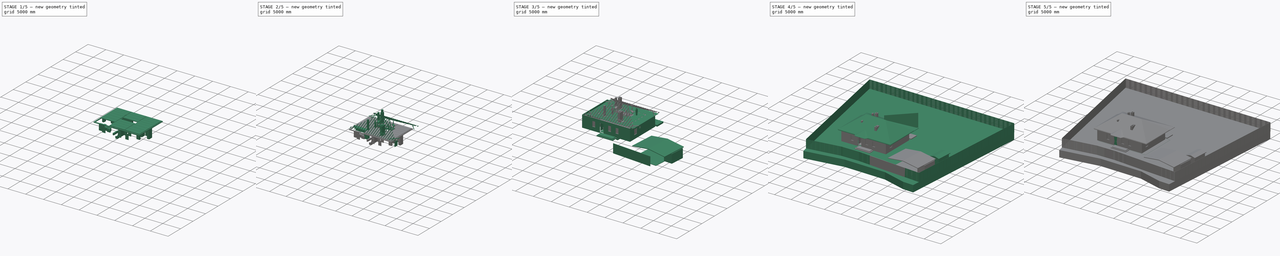
[diagram: build sequence overview — one tinted view per stage of 5, left to right]
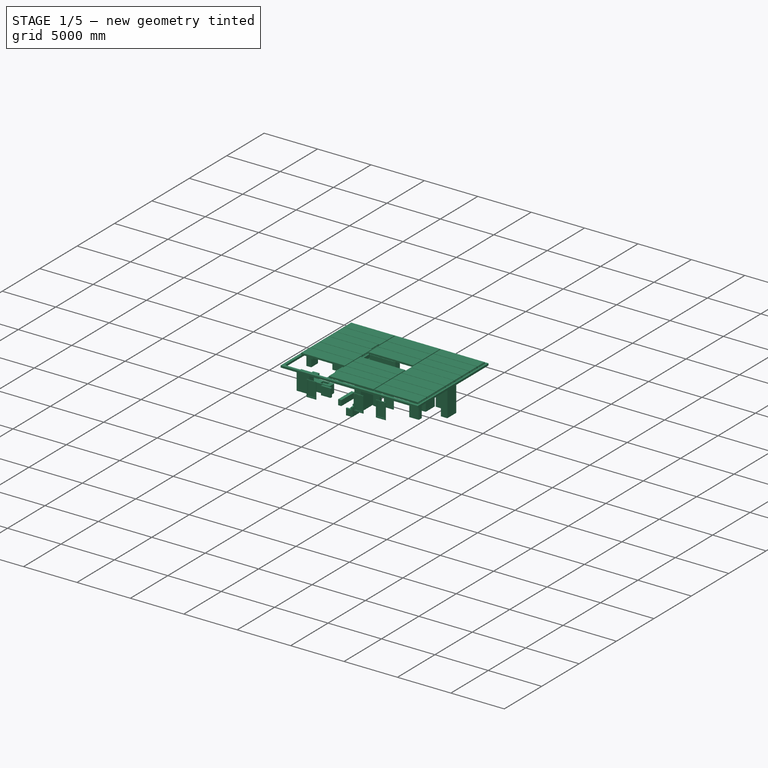
[diagram: stage 1 of 5 — iso view after this stage's code; geometry added in this stage tinted green]
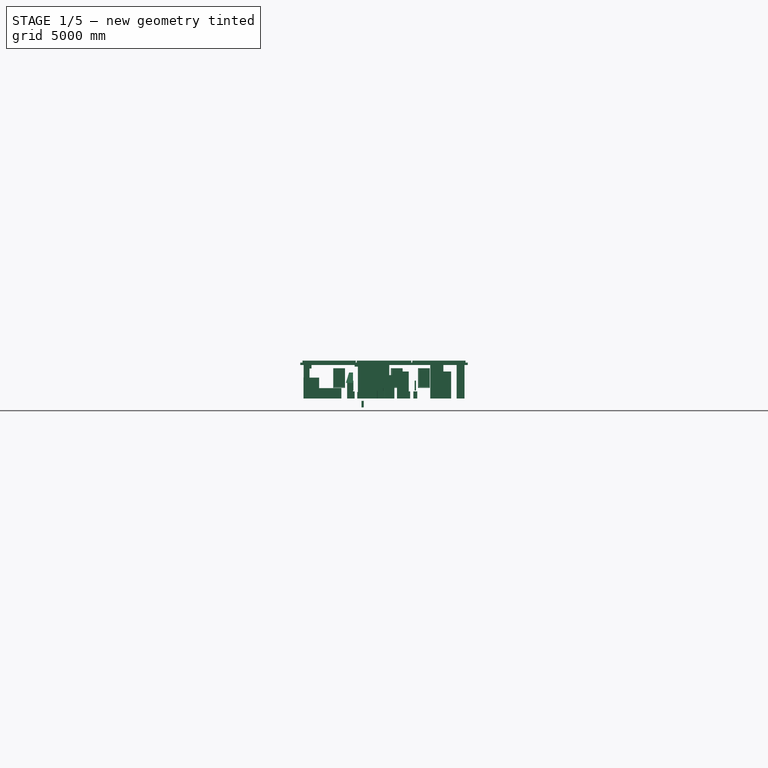
[diagram: stage 1 of 5 — front view after this stage's code; geometry added in this stage tinted green]
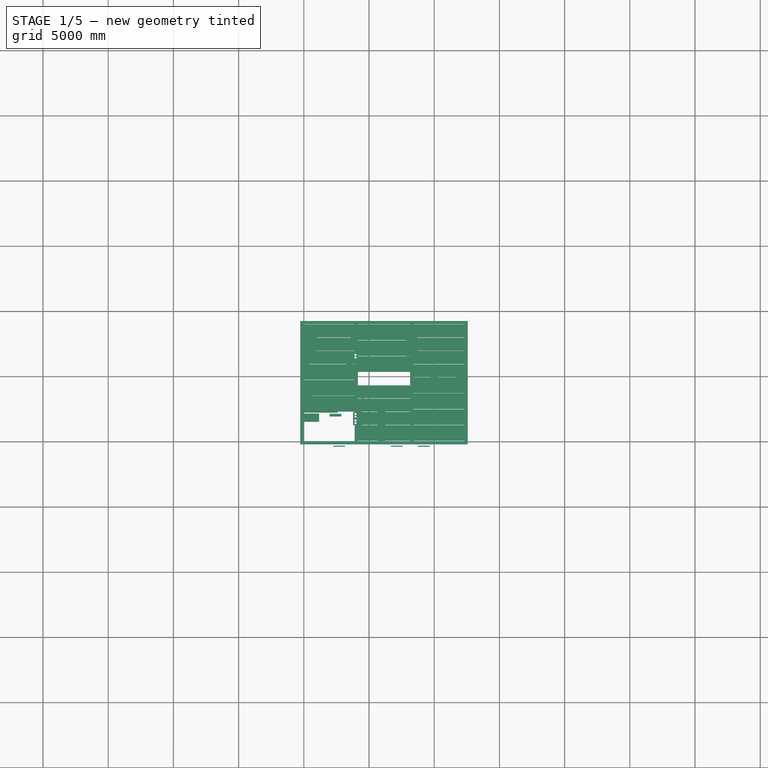
[diagram: stage 1 of 5 — top view after this stage's code; geometry added in this stage tinted green]
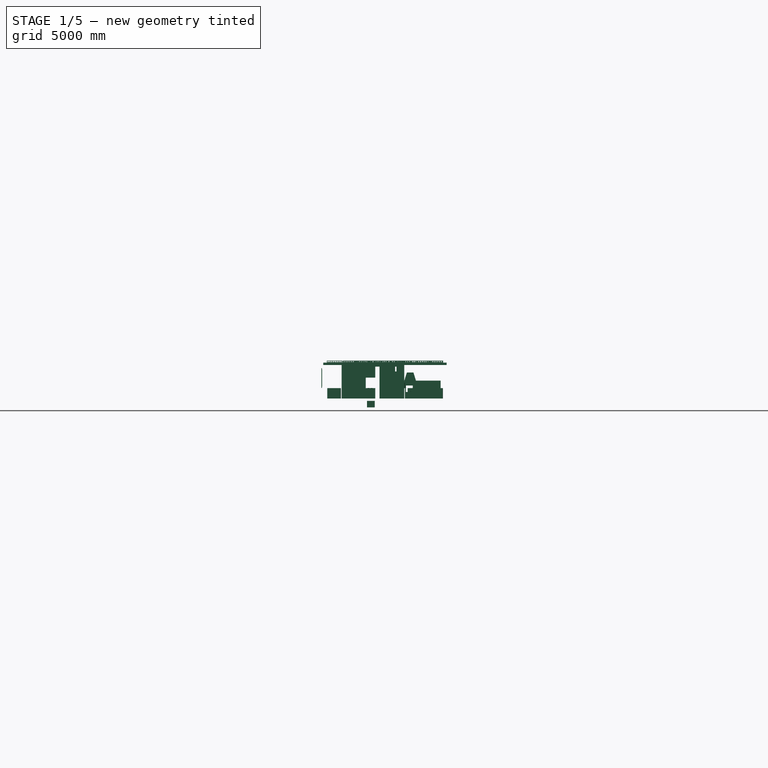
[diagram: stage 1 of 5 — right view after this stage's code; geometry added in this stage tinted green]
FCSTD DOCUMENT  (FreeCAD 0.18.4R)
Label: project_1fl_111m2_v2_121220
License: All rights reserved
LicenseURL: http://en.wikipedia.org/wiki/All_rights_reserved
objects: Part::Part2DObjectPython×702, Part::FeaturePython×269, Part::Feature×53, App::GeometryPython×42, Sketcher::SketchObject×39, Part::Box×32, Part::Extrusion×23, Part::MultiCommon×20, Part::Cut×13, App::FeaturePython×11, App::DocumentObjectGroup×8, Part::MultiFuse×7, Part::Loft×3, Part::Cylinder×2, Part::Mirroring×1, TechDraw::DrawSVGTemplate×1, Image::ImagePlane×1, TechDraw::DrawViewDraft×1, TechDraw::DrawPage×1
note: 1206 computed .brp shape members not serialized (recipe doc carries the construction recipe); baked Part::Feature solids carry a one-line shape summary decoded from their .brp

FEATURE [Part::FeaturePython] Wall012  label="балка продольная 001"  # Arch/BIM object (typed FeaturePython)
  Align = 2
  Base = -> Line1049
  BlockHeight = 0
  BlockLength = 0
  CountBroken = 0
  CountEntire = 0
  Face = 0
  Height = 180
  HorizontalArea = 2.365e+06
  IfcRole = 156
  Joint = 0
  Length = 9460
  MakeBlocks = false
  MoveWithHost = false
  Normal = (0,0,0)
  OffsetFirst = 0
  OffsetSecond = 0
  PerimeterLength = 19420
  Placement = pos=(0,0,2570) rot=(0,0,1;0rad)
  VerticalArea = 3495600
  Width = 250
FEATURE [Part::Part2DObjectPython] Rectangle2259  label="контур фундамента"  # Draft 2D object (typed FeaturePython)
  ChamferSize = 0
  Columns = 1
  FilletRadius = 0
  Height = 10910
  Length = 14420
  MakeFace = false
  Placement = pos=(-460,-455,0) rot=(0,0,1;0rad)
  Rows = 1
FEATURE [Sketcher::SketchObject] Sketch231  label="Профиль ПНО 120-8"
  Placement = pos=(0,0,0) rot=(1,0,0;1.5708rad)
  sketch-geometry (19):
    g0: LineSegment StartX=0 StartY=0 StartZ=0 EndX=1190 EndY=0 EndZ=0
    g1: LineSegment StartX=1190 StartY=0 StartZ=0 EndX=1190 EndY=160 EndZ=0
    g2: LineSegment StartX=1190 StartY=160 StartZ=0 EndX=0 EndY=160 EndZ=0
    g3: LineSegment StartX=0 StartY=160 StartZ=0 EndX=0 EndY=0 EndZ=0
    g4: Circle CenterX=100 CenterY=80 CenterZ=0 NormalX=0 NormalY=0 NormalZ=1 AngleXU=0 Radius=50
    g5: Circle CenterX=240 CenterY=80 CenterZ=0 NormalX=0 NormalY=0 NormalZ=1 AngleXU=0 Radius=50
    g6: LineSegment [constr] StartX=100 StartY=80 StartZ=0 EndX=240 EndY=80 EndZ=0
    g7: Circle CenterX=380 CenterY=80 CenterZ=0 NormalX=0 NormalY=0 NormalZ=1 AngleXU=0 Radius=50
    g8: LineSegment [constr] StartX=240 StartY=80 StartZ=0 EndX=380 EndY=80 EndZ=0
    g9: Circle CenterX=520 CenterY=80 CenterZ=0 NormalX=0 NormalY=0 NormalZ=1 AngleXU=0 Radius=50
    g10: LineSegment [constr] StartX=380 StartY=80 StartZ=0 EndX=520 EndY=80 EndZ=0
    g11: Circle CenterX=660 CenterY=80 CenterZ=0 NormalX=0 NormalY=0 NormalZ=1 AngleXU=0 Radius=50
    g12: LineSegment [constr] StartX=520 StartY=80 StartZ=0 EndX=660 EndY=80 EndZ=0
    g13: Circle CenterX=800 CenterY=80 CenterZ=0 NormalX=0 NormalY=0 NormalZ=1 AngleXU=0 Radius=50
    g14: LineSegment [constr] StartX=660 StartY=80 StartZ=0 EndX=800 EndY=80 EndZ=0
    g15: Circle CenterX=940 CenterY=80 CenterZ=0 NormalX=0 NormalY=0 NormalZ=1 AngleXU=0 Radius=50
    g16: LineSegment [constr] StartX=800 StartY=80 StartZ=0 EndX=940 EndY=80 EndZ=0
    g17: Circle CenterX=1080 CenterY=80 CenterZ=0 NormalX=0 NormalY=0 NormalZ=1 AngleXU=0 Radius=50
    g18: LineSegment [constr] StartX=940 StartY=80 StartZ=0 EndX=1080 EndY=80 EndZ=0
  constraints (49):
    c: Coincident(g0,g1)
    c: Coincident(g1,g2)
    c: Coincident(g2,g3)
    c: Coincident(g3,g0)
    c: Horizontal(g0)
    c: Horizontal(g2)
    c: Vertical(g1)
    c: Vertical(g3)
    c: Coincident(g0,g-1)
    c: DistanceY(g3,g3) = 160
    c: DistanceX(g2,g2) = 1190
    c: Diameter(g4) = 100
    c: DistanceY(g4,g2) = 80
    c: Diameter(g5) = 100
    c: Coincident(g4,g6)
    c: Coincident(g5,g6)
    c: Distance(g6) = 140
    c: Angle(g6) = 0
    c: Diameter(g7) = 100
    c: Coincident(g5,g8)
    c: Coincident(g7,g8)
    c: Equal(g6,g8)
    c: Parallel(g8,g6)
    c: Diameter(g9) = 100
    c: Coincident(g7,g10)
    c: Coincident(g9,g10)
    c: Equal(g6,g10)
    c: Parallel(g10,g6)
    c: Diameter(g11) = 100
    c: Coincident(g9,g12)
    c: Coincident(g11,g12)
    c: Equal(g6,g12)
    c: Parallel(g12,g6)
    c: Diameter(g13) = 100
    c: Coincident(g11,g14)
    c: Coincident(g13,g14)
    c: Equal(g6,g14)
    c: Parallel(g14,g6)
    c: Diameter(g15) = 100
    c: Coincident(g13,g16)
    c: Coincident(g15,g16)
    c: Equal(g6,g16)
    c: Parallel(g16,g6)
    c: Diameter(g17) = 100
    c: Coincident(g15,g18)
    c: Coincident(g17,g18)
    c: Equal(g6,g18)
    c: Parallel(g18,g6)
    c: DistanceX(g2,g4) = 100
FEATURE [Part::Extrusion] Extrude001  label="ПНО 41-12-8-001"
  Base = -> Sketch231
  Dir = (0,1,0)
  DirMode = 0
  FaceMakerClass = Part::FaceMakerBullseye
  LengthFwd = 4080
  LengthRev = 0
  Placement = pos=(3980,20,2750) rot=(0,0,1;1.5708rad)
  Solid = true
  Symmetric = false
FEATURE [Part::Part2DObjectPython] Wire450  # Draft 2D object (typed FeaturePython)
  ChamferSize = 0
  Closed = true
  End = (13500,5830,0)
  FilletRadius = 0
  Length = 13380
  MakeFace = true
  Placement = pos=(10540,6080,0) rot=(0,0,1;0rad)
  Points = (10) [(2960,-80,0),(2810,-80,0),(2810,20,0),(2960,20,0),(2960,3920,0),(990,3920,0),(990,4120,0),(3160,4120,0),(3160,-250,0),(2960,-250,0)]
  Start = (13500,6000,0)
  Subdivisions = 0
FEATURE [Part::Part2DObjectPython] Wire452  # Draft 2D object (typed FeaturePython)
  ChamferSize = 0
  Closed = true
  End = (8700,10000,0)
  FilletRadius = 0
  Length = 27250
  MakeFace = true
  Placement = pos=(7950,9940,0) rot=(0,0,1;0rad)
  Points = (20) [(-320,60,0),(-320,260,0),(2230,260,0),(2230,60,0),(950,60,0),(950,-3840,0),(1100,-3840,0),(1100,-3940,0),(950,-3940,0),(950,-4890,0),(750,-4890,0),+9 more]
  Start = (7630,10000,0)
  Subdivisions = 0
FEATURE [App::FeaturePython] Dimension002  # Draft dimension (typed FeaturePython)
  Diameter = false
  Dimline = (14200,-2000,0)
  Direction = (0,0,0)
  Distance = 14420
  End = (13960,-455,0)
  Normal = (0,0,1)
  Start = (-460,-455,0)
FEATURE [App::FeaturePython] Dimension003  # Draft dimension (typed FeaturePython)
  Diameter = false
  Dimline = (15500,-1000,0)
  Direction = (0,0,0)
  Distance = 10910
  End = (13960,10455,0)
  Normal = (0,0,1)
  Start = (13960,-455,0)
FEATURE [Part::Part2DObjectPython] Line1100  # Draft 2D object (typed FeaturePython)
  ChamferSize = 0
  Closed = false
  End = (8275,9210,0)
  FilletRadius = 0
  Length = 9460
  MakeFace = false
  Placement = pos=(20660,3850,0) rot=(0,0,1;0rad)
  Points = (2) [(-12385,-4100,0),(-12385,5360,0)]
  Start = (8275,-250,0)
  Subdivisions = 0
FEATURE [Part::Part2DObjectPython] Line1101  # Draft 2D object (typed FeaturePython)
  ChamferSize = 0
  Closed = false
  End = (4025,5910,0)
  FilletRadius = 0
  Length = 3680
  MakeFace = false
  Placement = pos=(4025,50,0) rot=(0,0,1;1.5708rad)
  Points = (2) [(2180,4.54747e-13,0),(5860,1.36424e-12,0)]
  Start = (4025,2230,0)
  Subdivisions = 0
FEATURE [Part::FeaturePython] Wall075  label="балка продольная 002"  # Arch/BIM object (typed FeaturePython)
  Align = 2
  Base = -> Line1101
  BlockHeight = 0
  BlockLength = 0
  CountBroken = 0
  CountEntire = 0
  Face = 0
  Height = 120
  HorizontalArea = 920000
  IfcRole = 156
  Joint = 0
  Length = 3680
  MakeBlocks = false
  MoveWithHost = false
  Normal = (0,0,-1)
  OffsetFirst = 0
  OffsetSecond = 0
  PerimeterLength = 7860
  Placement = pos=(0,0,2570) rot=(0,0,1;0rad)
  VerticalArea = 943200
  Width = 250
FEATURE [Part::FeaturePython] Wall125  label="балка продольная 003"  # Arch/BIM object (typed FeaturePython)
  Align = 2
  Base = -> Line1100
  BlockHeight = 0
  BlockLength = 0
  CountBroken = 0
  CountEntire = 0
  Face = 0
  Height = 180
  HorizontalArea = 2.365e+06
  IfcRole = 156
  Joint = 0
  Length = 9460
  MakeBlocks = false
  MoveWithHost = false
  Normal = (0,0,0)
  OffsetFirst = 0
  OffsetSecond = 0
  PerimeterLength = 19420
  Placement = pos=(0,0,2570) rot=(0,0,1;0rad)
  VerticalArea = 3495600
  Width = 250
FEATURE [Part::Part2DObjectPython] Rectangle2589  label="проём в перекрытии 005"  # Draft 2D object (typed FeaturePython)
  ChamferSize = 0
  Columns = 1
  FilletRadius = 0
  Height = 1000
  Length = 375
  MakeFace = false
  Placement = pos=(3775,1230,0) rot=(0,0,1;0rad)
  Rows = 1
FEATURE [Part::FeaturePython] Structure155  label="Вентстояк вычитаемы объём 001"  # Arch/BIM object (typed FeaturePython)
  Base = -> Rectangle2589
  FaceMaker = 0
  Height = 6750
  HorizontalArea = 375000
  IfcRole = 0
  Length = 0
  MoveWithHost = false
  Nodes = (2) [(3962.5,1730,0),(3962.5,1730,6750)]
  NodesOffset = 0
  Normal = (0,0,0)
  PerimeterLength = 2750
  Placement = pos=(0,0,-180) rot=(0,0,1;0rad)
  VerticalArea = 1.85625e+07
  Width = 100
FEATURE [Sketcher::SketchObject] Sketch262  label=" Вентстояк ГБ 375х500 001"
  Placement = pos=(-815.746,-5163.47,0) rot=(0,0,1;0rad)
  sketch-geometry (6):
    g0: LineSegment StartX=4590.75 StartY=6893.47 StartZ=0 EndX=4965.75 EndY=6893.47 EndZ=0
    g1: LineSegment StartX=4965.75 StartY=6893.47 StartZ=0 EndX=4965.75 EndY=7393.47 EndZ=0
    g2: LineSegment StartX=4965.75 StartY=7393.47 StartZ=0 EndX=4590.75 EndY=7393.47 EndZ=0
    g3: LineSegment StartX=4590.75 StartY=7393.47 StartZ=0 EndX=4590.75 EndY=6893.47 EndZ=0
    g4: Circle CenterX=4778.75 CenterY=7243.47 CenterZ=0 NormalX=0 NormalY=0 NormalZ=1 AngleXU=0 Radius=80
    g5: Circle CenterX=4778.75 CenterY=7043.47 CenterZ=0 NormalX=0 NormalY=0 NormalZ=1 AngleXU=0 Radius=80
  constraints (16):
    c: Coincident(g0,g1)
    c: Coincident(g1,g2)
    c: Coincident(g2,g3)
    c: Coincident(g3,g0)
    c: Horizontal(g0)
    c: Horizontal(g2)
    c: Vertical(g1)
    c: Vertical(g3)
    c: DistanceX(g2,g2) = 375
    c: DistanceY(g3,g3) = 500
    c: Equal(g4,g5)
    c: Diameter(g4) = 160
    c: DistanceX(g2,g4) = 188
    c: DistanceY(g4,g2) = 150
    c: DistanceY(g5,g4) = 200
    c: DistanceX(g4,g5) = 0
FEATURE [Sketcher::SketchObject] Sketch263  label=" Вентстояк ГБ 375х500 002"
  Placement = pos=(3934.25,-5393.47,0) rot=(0,0,1;0rad)
  sketch-geometry (6):
    g0: LineSegment StartX=4590.75 StartY=6893.47 StartZ=0 EndX=4965.75 EndY=6893.47 EndZ=0
    g1: LineSegment StartX=4965.75 StartY=6893.47 StartZ=0 EndX=4965.75 EndY=7393.47 EndZ=0
    g2: LineSegment StartX=4965.75 StartY=7393.47 StartZ=0 EndX=4590.75 EndY=7393.47 EndZ=0
    g3: LineSegment StartX=4590.75 StartY=7393.47 StartZ=0 EndX=4590.75 EndY=6893.47 EndZ=0
    g4: Circle CenterX=4778.75 CenterY=7243.47 CenterZ=0 NormalX=0 NormalY=0 NormalZ=1 AngleXU=0 Radius=80
    g5: Circle CenterX=4778.75 CenterY=7043.47 CenterZ=0 NormalX=0 NormalY=0 NormalZ=1 AngleXU=0 Radius=80
  constraints (16):
    c: Coincident(g0,g1)
    c: Coincident(g1,g2)
    c: Coincident(g2,g3)
    c: Coincident(g3,g0)
    c: Horizontal(g0)
    c: Horizontal(g2)
    c: Vertical(g1)
    c: Vertical(g3)
    c: DistanceX(g2,g2) = 375
    c: DistanceY(g3,g3) = 500
    c: Equal(g4,g5)
    c: Diameter(g4) = 160
    c: DistanceX(g2,g4) = 188
    c: DistanceY(g4,g2) = 150
    c: DistanceY(g5,g4) = 200
    c: DistanceX(g4,g5) = 0
FEATURE [Part::Extrusion] Extrude014  label="ПНО 40-10-6-002"
  Base = -> Sketch249
  Dir = (0,1,0)
  DirMode = 0
  FaceMakerClass = Part::FaceMakerBullseye
  LengthFwd = 3980
  LengthRev = 0
  Placement = pos=(3880,1240,2750) rot=(0,0,1;1.5708rad)
  Solid = true
  Symmetric = false
FEATURE [Part::Part2DObjectPython] Wire522  # Draft 2D object (typed FeaturePython)
  ChamferSize = 0
  Closed = false
  End = (7100,-3.1832e-12,0)
  FilletRadius = 0
  Length = 2243.91
  MakeFace = false
  Placement = pos=(7100,1800,0) rot=(0,0,1;0rad)
  Points = (5) [(0,0,0),(200,-4.54747e-13,0),(0,-900,0),(200,-900,0),(0,-1800,0)]
  Start = (7100,1800,0)
  Subdivisions = 0
FEATURE [Part::Part2DObjectPython] Rectangle2591  # Draft 2D object (typed FeaturePython)
  ChamferSize = 0
  Columns = 1
  FilletRadius = 0
  Height = 1800
  Length = 200
  MakeFace = false
  Placement = pos=(7100,-3.1832e-12,0) rot=(0,0,1;0rad)
  Rows = 1
FEATURE [Part::Part2DObjectPython] Line1210  label="Line1211"  # Draft 2D object (typed FeaturePython)
  ChamferSize = 0
  Closed = false
  End = (7000,-1.4779e-12,0)
  FilletRadius = 0
  Length = 670.82
  MakeFace = true
  Placement = pos=(6400,300,0) rot=(0,0,1;0rad)
  Points = (2) [(0,0,0),(600,-300,0)]
  Start = (6400,300,0)
  Subdivisions = 0
FEATURE [Part::Part2DObjectPython] Rectangle2590  # Draft 2D object (typed FeaturePython)
  ChamferSize = 0
  Columns = 1
  FilletRadius = 0
  Height = 300
  Length = 600
  MakeFace = false
  Placement = pos=(6400,-1.194e-12,0) rot=(0,0,1;0rad)
  Rows = 1
FEATURE [Sketcher::SketchObject] Sketch264  label=" Вентстояк ГБ 375х500 003"
  Placement = pos=(-165.746,441.129,0) rot=(0,0,1;0rad)
  sketch-geometry (6):
    g0: LineSegment StartX=4590.75 StartY=6158.87 StartZ=0 EndX=4965.75 EndY=6158.87 EndZ=0
    g1: LineSegment StartX=4965.75 StartY=6158.87 StartZ=0 EndX=4965.75 EndY=7158.87 EndZ=0
    g2: LineSegment StartX=4965.75 StartY=7158.87 StartZ=0 EndX=4590.75 EndY=7158.87 EndZ=0
    g3: LineSegment StartX=4590.75 StartY=7158.87 StartZ=0 EndX=4590.75 EndY=6158.87 EndZ=0
    g4: Circle CenterX=4778.75 CenterY=6858.87 CenterZ=0 NormalX=0 NormalY=0 NormalZ=1 AngleXU=0 Radius=80
    g5: Circle CenterX=4778.75 CenterY=6658.87 CenterZ=0 NormalX=0 NormalY=0 NormalZ=1 AngleXU=0 Radius=80
  constraints (16):
    c: Coincident(g0,g1)
    c: Coincident(g1,g2)
    c: Coincident(g2,g3)
    c: Coincident(g3,g0)
    c: Horizontal(g0)
    c: Horizontal(g2)
    c: Vertical(g1)
    c: Vertical(g3)
    c: DistanceX(g2,g2) = 375
    c: DistanceY(g3,g3) = 1000
    c: Equal(g4,g5)
    c: Diameter(g4) = 160
    c: DistanceX(g2,g4) = 188
    c: DistanceY(g4,g2) = 300
    c: DistanceY(g5,g4) = 200
    c: DistanceX(g4,g5) = 0
FEATURE [Part::Part2DObjectPython] Rectangle2597  label="проём в перекрытии 006"  # Draft 2D object (typed FeaturePython)
  ChamferSize = 0
  Columns = 1
  FilletRadius = 0
  Height = 1000
  Length = 375
  MakeFace = false
  Placement = pos=(3775,5910,0) rot=(0,0,1;0rad)
  Rows = 1
FEATURE [Part::FeaturePython] Structure158  label="Вентстояк вычитаемы объём 002"  # Arch/BIM object (typed FeaturePython)
  Base = -> Rectangle2597
  FaceMaker = 0
  Height = 6000
  HorizontalArea = 375000
  IfcRole = 0
  Length = 0
  MoveWithHost = false
  Nodes = (2) [(3962.5,6410,0),(3962.5,6410,6000)]
  NodesOffset = 0
  Normal = (0,0,0)
  PerimeterLength = 2750
  Placement = pos=(0,0,-180) rot=(0,0,1;0rad)
  VerticalArea = 16500000
  Width = 100
FEATURE [Part::FeaturePython] Wall011  label="армпояс детали"  # Arch/BIM object (typed FeaturePython)
  Additions = -> [Wall012,Wall075,Wall125]
  Align = 0
  Base = -> Rectangle2256
  BlockHeight = 0
  BlockLength = 0
  CountBroken = 0
  CountEntire = 0
  Face = 0
  Height = 180
  HorizontalArea = 1.156e+07
  IfcRole = 156
  Joint = 0
  Length = 42600
  MakeBlocks = false
  MoveWithHost = false
  Normal = (0,0,0)
  OffsetFirst = 0
  OffsetSecond = 0
  PerimeterLength = 48600
  Placement = pos=(0,0,2570) rot=(0,0,1;0rad)
  Subtractions = -> [Structure158,Structure155]
  VerticalArea = 2.2156e+07
  Width = 250
FEATURE [Part::Part2DObjectPython] Rectangle556  label="вытяжка осн мал"  # Draft 2D object (typed FeaturePython)
  ChamferSize = 0
  Columns = 1
  FilletRadius = 0
  Height = 400
  Length = 400
  MakeFace = false
  Placement = pos=(400,3500,1600) rot=(0,0,1;3.14159rad)
  Rows = 1
FEATURE [Part::Box] Box3144  label="тумба под ТВ"
  AttacherType = Attacher::AttachEngine3D
  Height = 550
  Length = 1800
  Placement = pos=(3600,8900,0) rot=(0,0,-1;1.5708rad)
  Width = 300
FEATURE [Part::Box] Box3145  label="ТВ"
  AttacherType = Attacher::AttachEngine3D
  Height = 750
  Length = 1500
  Placement = pos=(3700,8750,620) rot=(0,0,-1;1.5708rad)
  Width = 100
FEATURE [Part::Box] Box3143  label="шкаф книжн. 45"
  AttacherType = Attacher::AttachEngine3D
  Height = 2700
  Length = 900
  Placement = pos=(9800,2560,0) rot=(0,0,1;0rad)
  Width = 400
FEATURE [Part::Feature] Fillet001  label="стол обеденный"
  Placement = pos=(825,4144.44,0) rot=(0,0,1;0rad)
  shape: bbox 1500 x 750 x 750 mm, 30 faces (baked)
FEATURE [Part::Feature] Fusion013  label="стул005"
  Placement = pos=(825,4144.44,0) rot=(0,0,1;0rad)
  shape: bbox 480 x 520 x 910 mm, 35 faces (baked)
FEATURE [Part::Feature] Fusion014  label="стул006"
  Placement = pos=(825,4144.44,0) rot=(0,0,1;0rad)
  shape: bbox 480 x 520 x 910 mm, 35 faces (baked)
FEATURE [Part::Feature] Fusion015  label="стул007"
  Placement = pos=(825,4144.44,0) rot=(0,0,1;0rad)
  shape: bbox 480 x 520 x 910 mm, 35 faces (baked)
FEATURE [Part::Feature] Fusion016  label="стул008"
  Placement = pos=(825,4144.44,0) rot=(0,0,1;0rad)
  shape: bbox 480 x 520 x 910 mm, 35 faces (baked)
FEATURE [Part::Feature] Box  label="тумбочка 400х450 004"
  Placement = pos=(4200,8260,0) rot=(0,0,1;0rad)
  shape: bbox 500 x 400 x 650 mm, 6 faces (baked)
FEATURE [Part::Feature] Box3151  label="тумбочка 400х450 005"
  Placement = pos=(4200,6060,0) rot=(0,0,1;0rad)
  shape: bbox 500 x 400 x 650 mm, 6 faces (baked)
FEATURE [Part::Feature] Box3152  label="тумбочка 400х450 006"
  Placement = pos=(12250,6360,0) rot=(0,0,1;3.14159rad)
  shape: bbox 500 x 400 x 650 mm, 6 faces (baked)
FEATURE [Part::Feature] Box3153  label="тумбочка 400х450 007"
  Placement = pos=(12250,8560,0) rot=(0,0,1;3.14159rad)
  shape: bbox 500 x 400 x 650 mm, 6 faces (baked)
FEATURE [Part::Box] Box3154  label="шкаф 60 одежда 001"
  AttacherType = Attacher::AttachEngine3D
  Height = 2700
  Length = 1800
  Placement = pos=(6250,1160,0) rot=(0,0,1;1.5708rad)
  Width = 600
FEATURE [Part::Box] Box3155  label="шкаф 60 одежда 002"
  AttacherType = Attacher::AttachEngine3D
  Height = 2700
  Length = 1200
  Placement = pos=(10300,4060,0) rot=(0,0,1;1.5708rad)
  Width = 600
FEATURE [Part::Box] Box3156  label="шкаф 60 одежда 003"
  AttacherType = Attacher::AttachEngine3D
  Height = 2700
  Length = 1200
  Placement = pos=(12320,4060,0) rot=(0,0,1;1.5708rad)
  Width = 600
FEATURE [Part::Box] Box3157  label="шкаф 60 одежда 004"
  AttacherType = Attacher::AttachEngine3D
  Height = 2700
  Length = 2400
  Placement = pos=(4150,5360,0) rot=(0,0,1;0rad)
  Width = 600
FEATURE [Part::Box] Box3159  label="ТВ001"
  AttacherType = Attacher::AttachEngine3D
  Height = 750
  Length = 1300
  Placement = pos=(7950,8010,620) rot=(0,0,-1;1.5708rad)
  Width = 100
FEATURE [Part::Box] Box3160  label="тумба под ТВ001"
  AttacherType = Attacher::AttachEngine3D
  Height = 550
  Length = 1600
  Placement = pos=(7850,8160,0) rot=(0,0,-1;1.5708rad)
  Width = 300
FEATURE [Part::Box] Box3161  label="тумба под ТВ002"
  AttacherType = Attacher::AttachEngine3D
  Height = 550
  Length = 1600
  Placement = pos=(8400,8060,0) rot=(0,0,-1;1.5708rad)
  Width = 300
FEATURE [Part::Box] Box3162  label="ТВ002"
  AttacherType = Attacher::AttachEngine3D
  Height = 750
  Length = 1300
  Placement = pos=(8500,7910,620) rot=(0,0,-1;1.5708rad)
  Width = 100
FEATURE [Part::Box] Box3163  label="обувница"
  AttacherType = Attacher::AttachEngine3D
  Height = 500
  Length = 1800
  Placement = pos=(4400,1200,0) rot=(0,0,1;1.5708rad)
  Width = 300
FEATURE [Part::Box] Box3164  label="обувница001"
  AttacherType = Attacher::AttachEngine3D
  Height = 400
  Length = 1800
  Placement = pos=(4450,1160,2000) rot=(0,0,1;1.5708rad)
  Width = 300
FEATURE [Part::Box] Box3176  label="шкаф 60 кухонный 002"
  AttacherType = Attacher::AttachEngine3D
  Height = 800
  Length = 2600
  Placement = pos=(-10,2230,0) rot=(0,0,1;0rad)
  Width = 600
FEATURE [Part::Extrusion] Extrude057  label="мойка_вырез"
  Base = -> Rectangle2392
  Dir = (0,0,1)
  DirMode = 0
  FaceMakerClass = Part::FaceMakerBullseye
  LengthFwd = 150
  LengthRev = 0
  Placement = pos=(100,0,650) rot=(0,0,1;0rad)
  Solid = true
  Symmetric = false
FEATURE [Part::Cut] Cut011
  Base = -> Box3176
  Tool = -> Extrude057
FEATURE [Part::Extrusion] Extrude058
  Base = -> Array019
  Dir = (0,0,1)
  DirMode = 2
  FaceMakerClass = Part::FaceMakerBullseye
  LengthFwd = 50
  LengthRev = 0
  Placement = pos=(0,0,760) rot=(0,0,1;0rad)
  Solid = true
  Symmetric = false
FEATURE [Part::Feature] Fillet003  label="Столик журнальный"
  Placement = pos=(4871.97,648.932,0) rot=(0,0,1;0rad)
  shape: bbox 1000 x 1000 x 530 mm, 34 faces, 5 solids (baked)
FEATURE [Part::Box] Box3183  label="морозильник 60 см"
  AttacherType = Attacher::AttachEngine3D
  Height = 1600
  Length = 600
  Placement = pos=(-20,1530,0) rot=(0,0,1;0rad)
  Width = 600
FEATURE [Part::Box] Box3184  label="СМ"
  AttacherType = Attacher::AttachEngine3D
  Height = 800
  Length = 600
  Placement = pos=(580,1530,0) rot=(0,0,1;0rad)
  Width = 600
FEATURE [Part::Box] Box3185  label="СШМ"
  AttacherType = Attacher::AttachEngine3D
  Height = 800
  Length = 600
  Placement = pos=(580,1530,800) rot=(0,0,1;0rad)
  Width = 600
FEATURE [Part::Box] Box3186  label="полки 30см"
  AttacherType = Attacher::AttachEngine3D
  Height = 1800
  Length = 300
  Placement = pos=(6950,2660,0) rot=(0,0,1;1.5708rad)
  Width = 600
FEATURE [Part::Box] Box3187  label="Гребёнка пола и насосы"
  AttacherType = Attacher::AttachEngine3D
  Height = 800
  Length = 900
  Placement = pos=(1980,1930,0) rot=(0,0,1;0rad)
  Width = 200
FEATURE [Part::Feature] Fusion037  label="стул011"
  Placement = pos=(8091.57,304.09,0) rot=(0,0,-1;0.785398rad)
  shape: bbox 707.1 x 707.1 x 910 mm, 35 faces (baked)
FEATURE [Part::Part2DObjectPython] Rectangle2657  label="вытяжка осн мал001"  # Draft 2D object (typed FeaturePython)
  ChamferSize = 0
  Columns = 1
  FilletRadius = 0
  Height = 300
  Length = 500
  MakeFace = false
  Placement = pos=(3475,6660,2000) rot=(0,0,-1;1.5708rad)
  Rows = 1
FEATURE [Part::Part2DObjectPython] Rectangle2658  label="вытяжка осн бол001"  # Draft 2D object (typed FeaturePython)
  ChamferSize = 0
  Columns = 1
  FilletRadius = 0
  Height = 550
  Length = 1000
  MakeFace = false
  Placement = pos=(3225,6910,1200) rot=(0,0,-1;1.5708rad)
  Rows = 1
FEATURE [Part::Loft] Loft002  label="камин верх"
  Closed = false
  MaxDegree = 5
  Ruled = false
  Sections = -> [Rectangle2658,Rectangle2657]
  Solid = true
FEATURE [Part::Box] Box3188  label="камин топка"
  AttacherType = Attacher::AttachEngine3D
  Height = 500
  Length = 500
  Placement = pos=(3325,6085,500) rot=(0,0,1;0rad)
  Width = 650
FEATURE [Part::Box] Box3189  label="камин облицовка"
  AttacherType = Attacher::AttachEngine3D
  Height = 1200
  Length = 450
  Placement = pos=(3325,6010,0) rot=(0,0,1;0rad)
  Width = 800
FEATURE [Part::Cut] Cut012  label="камин низ"
  Base = -> Box3189
  Tool = -> Box3188
FEATURE [Part::MultiFuse] Fusion038  label="камин"
  Shapes = -> [Loft002,Cut012]
FEATURE [Part::Cylinder] Cylinder  label="бутыль воды"
  Angle = 360
  AttacherType = Attacher::AttachEngine3D
  Height = 500
  Placement = pos=(198.159,5914.61,800) rot=(0,0,1;0rad)
  Radius = 175
FEATURE [Part::Part2DObjectPython] Rectangle2659  # Draft 2D object (typed FeaturePython)
  ChamferSize = 0
  Columns = 1
  FilletRadius = 0
  Height = 400
  Length = 400
  MakeFace = false
  Placement = pos=(8300,8050,0) rot=(0,0,1;0rad)
  Rows = 1
FEATURE [Part::Part2DObjectPython] Rectangle2660  # Draft 2D object (typed FeaturePython)
  ChamferSize = 0
  Columns = 1
  FilletRadius = 0
  Height = 900
  Length = 400
  MakeFace = false
  Placement = pos=(8300,8450,0) rot=(0,0,1;0rad)
  Rows = 1
FEATURE [App::GeometryPython] BuildingPart046  label="Пылесборники"  # Arch/BIM object (typed FeaturePython)
  Area = 0
  Group = -> [Extrude059,Extrude060]
  Height = 0
  IfcRole = 0
  LevelOffset = 0
FEATURE [Part::Box] Box3192  label="кофеварка"
  AttacherType = Attacher::AttachEngine3D
  Height = 250
  Length = 200
  Placement = pos=(72.208,2321.25,800) rot=(0,0,1;0rad)
  Width = 250
FEATURE [Part::Cylinder] Cylinder001  label="чайник"
  Angle = 360
  AttacherType = Attacher::AttachEngine3D
  Height = 250
  Placement = pos=(224.714,2704.22,800) rot=(0,0,1;0rad)
  Radius = 75
FEATURE [Part::Part2DObjectPython] Rectangle2663  label="уширение фундамента 002"  # Draft 2D object (typed FeaturePython)
  ChamferSize = 0
  Columns = 1
  FilletRadius = 0
  Height = 600
  Length = 175
  MakeFace = false
  Placement = pos=(4425,3100,0) rot=(0,0,1;0rad)
  Rows = 1
FEATURE [Part::FeaturePython] Structure175  label="уширение фундамента002"  # Arch/BIM object (typed FeaturePython)
  Base = -> Rectangle2663
  FaceMaker = 0
  Height = 500
  HorizontalArea = 105000
  IfcRole = 0
  Length = 0
  MoveWithHost = false
  Nodes = (2) [(4512.5,3400,0),(4512.5,3400,-500)]
  NodesOffset = 0
  Normal = (0,0,-1)
  PerimeterLength = 1550
  Placement = pos=(0,0,-180) rot=(0,0,1;0rad)
  VerticalArea = 775000
  Width = 100
FEATURE [Part::Extrusion] Extrude017  label=" Вентстояк армпояс 008"
  Base = -> Sketch276
  Dir = (0,0,1)
  DirMode = 2
  FaceMakerClass = Part::FaceMakerBullseye
  LengthFwd = 180
  LengthRev = 0
  Placement = pos=(0,0,2750) rot=(0,0,1;0rad)
  Reversed = true
  Solid = true
  Symmetric = false
FEATURE [Part::Extrusion] Extrude016  label=" Вентстояк армпояс 001"
  Base = -> Sketch277
  Dir = (0,0,1)
  DirMode = 2
  FaceMakerClass = Part::FaceMakerBullseye
  LengthFwd = 180
  LengthRev = 0
  Placement = pos=(0,0,2750) rot=(0,0,1;0rad)
  Reversed = true
  Solid = true
  Symmetric = false
FEATURE [App::GeometryPython] BuildingPart  label="Вентстояки"  # Arch/BIM object (typed FeaturePython)
  Area = 0
  Group = -> [Extrude002,Extrude009,Extrude015]
  Height = 0
  IfcRole = 0
  LevelOffset = 0
FEATURE [Part::Extrusion] Extrude018  label=" Вентстояк армпояс 007"
  Base = -> Sketch278
  Dir = (0,0,1)
  DirMode = 2
  FaceMakerClass = Part::FaceMakerBullseye
  LengthFwd = 180
  LengthRev = 0
  Placement = pos=(0,0,2750) rot=(0,0,1;0rad)
  Reversed = true
  Solid = true
  Symmetric = false
FEATURE [Part::MultiFuse] Fusion043  label="армпояс_полный"
  Shapes = -> [Extrude017,Wall011,Extrude016,Extrude018]
FEATURE [App::GeometryPython] BuildingPart020  label="Утепление пола по грунту"  # Arch/BIM object (typed FeaturePython)
  Area = 0
  Group = -> [Wall049,Structure066,Structure067,Structure068,Structure069,Structure070,Structure071,Structure072,Wall127,Wall126]
  Height = 0
  IfcRole = 0
  LevelOffset = 0
FEATURE [App::GeometryPython] BuildingPart021  label="Пол по грунту стяжка"  # Arch/BIM object (typed FeaturePython)
  Area = 0
  Group = -> [Structure034,Structure035,Structure064,Structure063,Structure062,Structure154]
  Height = 0
  IfcRole = 0
  LevelOffset = 0
FEATURE [App::GeometryPython] BuildingPart014  label="Полы по грунту"  # Arch/BIM object (typed FeaturePython)
  Area = 0
  Group = -> [BuildingPart020,BuildingPart021]
  Height = 0
  IfcRole = 0
  LevelOffset = 0
FEATURE [Part::Part2DObjectPython] Line1256  label="Line1257"  # Draft 2D object (typed FeaturePython)
  ChamferSize = 0
  Closed = false
  End = (4150,1060,0)
  FilletRadius = 0
  Length = 900
  MakeFace = false
  Placement = pos=(5200,1060,0) rot=(0,0,-1;1.5708rad)
  Points = (2) [(0,-150,0),(0,-1050,0)]
  Start = (5050,1060,0)
  Subdivisions = 0
FEATURE [Part::Part2DObjectPython] Arc095  label="Arc098"  # Draft 2D object (typed FeaturePython)
  FirstAngle = 0
  LastAngle = 90
  MakeFace = false
  Placement = pos=(4150,1060,0) rot=(0,0,-1;1.5708rad)
  Radius = 900
FEATURE [Part::Feature] ShapeString147  label="надпись 150"
  Placement = pos=(711.881,1744.32,0) rot=(0,0,1;0rad)
  shape: bbox 283.8 x 188.9 x 2e-07 mm, 2 faces, 0 solids (baked)
FEATURE [Part::Part2DObjectPython] Rectangle2808  # Draft 2D object (typed FeaturePython)
  ChamferSize = 0
  Columns = 1
  FilletRadius = 0
  Height = 600
  Length = 600
  MakeFace = false
  Placement = pos=(580,1530,0) rot=(0,0,1;0rad)
  Rows = 1
FEATURE [Part::Feature] ShapeString149  label="надпись 152"
  Placement = pos=(111.881,1744.32,0) rot=(0,0,1;0rad)
  shape: bbox 283.8 x 188.9 x 2e-07 mm, 2 faces, 0 solids (baked)
FEATURE [Part::Part2DObjectPython] Rectangle2810  # Draft 2D object (typed FeaturePython)
  ChamferSize = 0
  Columns = 1
  FilletRadius = 0
  Height = 600
  Length = 600
  MakeFace = false
  Placement = pos=(-20,1530,0) rot=(0,0,1;0rad)
  Rows = 1
FEATURE [Part::Feature] ShapeString150  label="надпись 153"
  Placement = pos=(140.444,231.822,0) rot=(0,0,1;0rad)
  shape: bbox 295.7 x 188.9 x 2e-07 mm, 2 faces, 0 solids (baked)
FEATURE [Part::Part2DObjectPython] Rectangle2811  # Draft 2D object (typed FeaturePython)
  ChamferSize = 0
  Columns = 1
  FilletRadius = 0
  Height = 600
  Length = 600
  MakeFace = false
  Placement = pos=(-20,3.638e-12,0) rot=(0,0,1;0rad)
  Rows = 1
FEATURE [Part::Part2DObjectPython] Circle086  label="Circle088"  # Draft 2D object (typed FeaturePython)
  FirstAngle = 0
  LastAngle = 0
  MakeFace = false
  Placement = pos=(405,3305,0) rot=(0,0,1;0rad)
  Radius = 75
FEATURE [Part::FeaturePython] Array032  # Draft array (typed FeaturePython)
  Angle = 360
  ArrayType = 0
  Axis = (0,0,1)
  Base = -> Circle086
  Center = (0,0,0)
  Fuse = false
  IntervalAxis = (0,0,0)
  IntervalX = (250,0,0)
  IntervalY = (0,250,0)
  IntervalZ = (0,0,1)
  NumberPolar = 1
  NumberX = 2
  NumberY = 2
  NumberZ = 1
  Placement = pos=(-250,0,0) rot=(0,0,1;0rad)
FEATURE [Part::Feature] Ellipse055  label="Ellipse058"
  Placement = pos=(11100,2860,0) rot=(0,0,1;3.14159rad)
  shape: bbox 400 x 200 x 2e-07 mm, 0 faces, 0 solids (baked)
FEATURE [Part::Part2DObjectPython] Rectangle2815  label="Rectangle2813"  # Draft 2D object (typed FeaturePython)
  ChamferSize = 0
  Columns = 1
  FilletRadius = 0
  Height = 600
  Length = 400
  MakeFace = false
  Placement = pos=(11400,2660,0) rot=(0,0,1;1.5708rad)
  Rows = 1
FEATURE [Part::Part2DObjectPython] ShapeString151  label="надпись 154"  # Draft 2D object (typed FeaturePython)
  FontFile = <path>
  Placement = pos=(5205.45,3906.99,0) rot=(0,0,1;0rad)
  Size = 200
  String = общая: 110.6 м2
  Tracking = 0
FEATURE [Part::Part2DObjectPython] ShapeString152  label="надпись 155"  # Draft 2D object (typed FeaturePython)
  FontFile = <path>
  Placement = pos=(1610.76,900,0) rot=(0,0,1;0rad)
  Size = 200
  String = 8.3
  Tracking = 0
FEATURE [Part::Part2DObjectPython] ShapeString153  label="надпись 156"  # Draft 2D object (typed FeaturePython)
  FontFile = <path>
  Placement = pos=(1710.57,5862.31,0) rot=(0,0,1;0rad)
  Size = 200
  String = 26.6
  Tracking = 0
FEATURE [Part::Part2DObjectPython] ShapeString154  label="надпись 157"  # Draft 2D object (typed FeaturePython)
  FontFile = <path>
  Placement = pos=(6779.18,7275.43,0) rot=(0,0,1;0rad)
  Size = 200
  String = 14.7
  Tracking = 0
FEATURE [Part::Part2DObjectPython] ShapeString155  label="надпись 158"  # Draft 2D object (typed FeaturePython)
  FontFile = <path>
  Placement = pos=(10240.4,5912.37,0) rot=(0,0,1;0rad)
  Size = 200
  String = 17.5
  Tracking = 0
FEATURE [Part::Part2DObjectPython] ShapeString156  label="надпись 159"  # Draft 2D object (typed FeaturePython)
  FontFile = <path>
  Placement = pos=(6810.68,1375,0) rot=(0,0,1;0rad)
  Size = 200
  String = 5.3
  Tracking = 0
FEATURE [Part::Part2DObjectPython] ShapeString157  label="надпись 160"  # Draft 2D object (typed FeaturePython)
  FontFile = <path>
  Placement = pos=(9649.54,1717.82,0) rot=(0,0,1;0rad)
  Size = 200
  String = 11
  Tracking = 0
FEATURE [Part::Part2DObjectPython] ShapeString158  label="надпись 161"  # Draft 2D object (typed FeaturePython)
  FontFile = <path>
  Placement = pos=(10593.5,3419.87,0) rot=(0,0,1;0rad)
  Size = 200
  String = 2.9
  Tracking = 0
FEATURE [Part::Part2DObjectPython] ShapeString159  label="надпись 162"  # Draft 2D object (typed FeaturePython)
  FontFile = <path>
  Placement = pos=(8753.3,4107.81,0) rot=(0,0,1;0rad)
  Size = 200
  String = 2.6
  Tracking = 0
FEATURE [Part::Part2DObjectPython] ShapeString160  label="надпись 163"  # Draft 2D object (typed FeaturePython)
  FontFile = <path>
  Placement = pos=(4671.99,1292.01,0) rot=(0,0,1;0rad)
  Size = 200
  String = 6.2
  Tracking = 0
FEATURE [Part::Part2DObjectPython] ShapeString161  label="надпись 164"  # Draft 2D object (typed FeaturePython)
  FontFile = <path>
  Placement = pos=(6279.59,3459.91,0) rot=(0,0,1;0rad)
  Size = 200
  String = 8.8
  Tracking = 0
FEATURE [Part::Part2DObjectPython] Wire623  # Draft 2D object (typed FeaturePython)
  ChamferSize = 0
  Closed = true
  End = (9700,3060,0)
  FilletRadius = 0
  Length = 7840
  MakeFace = false
  Placement = pos=(9700,3960,0) rot=(0,0,1;0rad)
  Points = (6) [(0,0,0),(2620,2.27374e-12,0),(2620,-1300,0),(1100,-1300,0),(1100,-900,0),(-1.81899e-12,-900,0)]
  Start = (9700,3960,0)
  Subdivisions = 0
FEATURE [Part::Part2DObjectPython] Wire624  # Draft 2D object (typed FeaturePython)
  ChamferSize = 0
  Closed = true
  End = (8400,-6.8212e-12,0)
  FilletRadius = 0
  Length = 13760
  MakeFace = false
  Placement = pos=(8400,2960,0) rot=(0,0,1;0rad)
  Points = (6) [(0,0,0),(2300,-9.09495e-13,0),(2300,-400,0),(3920,-400,0),(3920,-2960,0),(0,-2960,0)]
  Start = (8400,2960,0)
  Subdivisions = 0
FEATURE [Part::Part2DObjectPython] Rectangle2816  label="Rectangle2814"  # Draft 2D object (typed FeaturePython)
  ChamferSize = 0
  Columns = 1
  FilletRadius = 0
  Height = 350
  Length = 150
  MakeFace = false
  Placement = pos=(9750,3685,0) rot=(0,0,1;3.14159rad)
  Rows = 1
FEATURE [Part::Part2DObjectPython] Rectangle2817  label="Rectangle2815"  # Draft 2D object (typed FeaturePython)
  ChamferSize = 0
  Columns = 1
  FilletRadius = 0
  Height = 800
  Length = 50
  MakeFace = false
  Placement = pos=(9750,3910,0) rot=(0,0,1;3.14159rad)
  Rows = 1
FEATURE [Part::Part2DObjectPython] Rectangle2818  label="Rectangle2816"  # Draft 2D object (typed FeaturePython)
  ChamferSize = 0
  Columns = 1
  FilletRadius = 0
  Height = 400
  Length = 500
  MakeFace = false
  Placement = pos=(9750,3310,0) rot=(0,0,1;0rad)
  Rows = 1
FEATURE [Part::Part2DObjectPython] Circle087  label="Circle089"  # Draft 2D object (typed FeaturePython)
  FirstAngle = 0
  LastAngle = 0
  MakeFace = false
  Placement = pos=(9950,3510,0) rot=(0,0,1;0rad)
  Radius = 100
FEATURE [Part::Part2DObjectPython] Wire625  # Draft 2D object (typed FeaturePython)
  ChamferSize = 0
  Closed = false
  End = (6400,2660,0)
  FilletRadius = 0
  Length = 2370.82
  MakeFace = true
  Placement = pos=(6350,2960,0) rot=(0,0,1;0rad)
  Points = (6) [(550,0,0),(0,0,0),(0,-300,0),(600,0,0),(600,-300,0),(50,-300,0)]
  Start = (6900,2960,0)
  Subdivisions = 0
FEATURE [Part::Part2DObjectPython] Wire626  # Draft 2D object (typed FeaturePython)
  ChamferSize = 0
  Closed = false
  End = (9850,2560,0)
  FilletRadius = 0
  Length = 3484.89
  MakeFace = true
  Placement = pos=(9800,2860,0) rot=(0,0,1;0rad)
  Points = (6) [(850,100,0),(0,100,0),(0,-300,0),(900,100,0),(900,-300,0),(50,-300,0)]
  Start = (10650,2960,0)
  Subdivisions = 0
FEATURE [Part::Part2DObjectPython] Rectangle2819  label="Rectangle2817"  # Draft 2D object (typed FeaturePython)
  ChamferSize = 0
  Columns = 1
  FilletRadius = 0
  Height = -300
  Length = 1600
  MakeFace = false
  Placement = pos=(8150,8160,0) rot=(0,0,-1;1.5708rad)
  Rows = 1
FEATURE [Part::Part2DObjectPython] Rectangle2820  label="Rectangle2818"  # Draft 2D object (typed FeaturePython)
  ChamferSize = 0
  Columns = 1
  FilletRadius = 0
  Height = 1200
  Length = 100
  MakeFace = false
  Placement = pos=(8050,7960,0) rot=(0,0,1;3.14159rad)
  Rows = 1
FEATURE [Part::Part2DObjectPython] Rectangle2821  label="Rectangle2819"  # Draft 2D object (typed FeaturePython)
  ChamferSize = 0
  Columns = 1
  FilletRadius = 0
  Height = 1200
  Length = 2620
  MakeFace = false
  Placement = pos=(9700,4060,0) rot=(0,0,1;0rad)
  Rows = 1
FEATURE [Part::Part2DObjectPython] Wire630  # Draft 2D object (typed FeaturePython)
  ChamferSize = 0
  Closed = false
  End = (4450,2410,0)
  FilletRadius = 0
  Length = 2370.82
  MakeFace = true
  Placement = pos=(4150,2360,0) rot=(0,0,1;1.5708rad)
  Points = (6) [(550,4.54747e-12,0),(0,0,0),(0,-300,0),(600,0,0),(600,-300,0),(50,-300,0)]
  Start = (4150,2910,0)
  Subdivisions = 0
FEATURE [Part::Part2DObjectPython] Wire631  # Draft 2D object (typed FeaturePython)
  ChamferSize = 0
  Closed = false
  End = (4450,1810,0)
  FilletRadius = 0
  Length = 2370.82
  MakeFace = true
  Placement = pos=(4150,1760,0) rot=(0,0,1;1.5708rad)
  Points = (6) [(550,1.00044e-11,0),(0,0,0),(0,-300,0),(600,0,0),(600,-300,0),(50,-300,0)]
  Start = (4150,2310,0)
  Subdivisions = 0
FEATURE [Part::Part2DObjectPython] Wire632  # Draft 2D object (typed FeaturePython)
  ChamferSize = 0
  Closed = false
  End = (4450,1210,0)
  FilletRadius = 0
  Length = 2370.82
  MakeFace = true
  Placement = pos=(4150,1160,0) rot=(0,0,1;1.5708rad)
  Points = (6) [(550,4.54747e-12,0),(0,0,0),(0,-300,0),(600,0,0),(600,-300,0),(50,-300,0)]
  Start = (4150,1710,0)
  Subdivisions = 0
FEATURE [Part::FeaturePython] Structure178  label="Проём-Д90-006"  # Arch/BIM object (typed FeaturePython)
  Base = -> Rectangle2783
  FaceMaker = 0
  Height = 2070
  HorizontalArea = 90000
  IfcRole = 0
  Length = 0
  MoveWithHost = false
  Nodes = (2) [(10150,5450,0),(10150,5450,2180)]
  NodesOffset = 0
  Normal = (0,0,0)
  PerimeterLength = 2000
  VerticalArea = 4.14e+06
  Width = 100
FEATURE [App::GeometryPython] BuildingPart005  label="Перегородки D600 100mm"  # Arch/BIM object (typed FeaturePython)
  Area = 0
  Group = -> [Wall013,Wall015,Wall014,Wall016,Wall018,Wall019,Wall020,Wall073,Wall100,Wall128]
  Height = 0
  IfcRole = 0
  LevelOffset = 0
FEATURE [App::DocumentObjectGroup] Group118  label="Контуры стен"
  Group = -> [Wire431,Rectangle2300,Rectangle2301,Wire430,Wire455,Rectangle2600,Rectangle2599,Wire456,Rectangle2297,Rectangle2298,Rectangle2598,Wire523,Wire524,Wire525,Wire452,Wire450,Wire526,Wire527,Wire528,Wire529,Wire530,Wire531]
FEATURE [Sketcher::SketchObject] Sketch279
  Placement = pos=(7150,2960,-180) rot=(1,0,0;1.5708rad)
  sketch-geometry (8):
    g0: LineSegment StartX=0 StartY=0 StartZ=0 EndX=900 EndY=0 EndZ=0
    g1: LineSegment StartX=900 StartY=0 StartZ=0 EndX=900 EndY=2070 EndZ=0
    g2: LineSegment StartX=900 StartY=2070 StartZ=0 EndX=0 EndY=2070 EndZ=0
    g3: LineSegment StartX=0 StartY=2070 StartZ=0 EndX=0 EndY=0 EndZ=0
    g4: LineSegment StartX=50 StartY=0 StartZ=0 EndX=850 EndY=0 EndZ=0
    g5: LineSegment StartX=850 StartY=0 StartZ=0 EndX=850 EndY=2020 EndZ=0
    g6: LineSegment StartX=850 StartY=2020 StartZ=0 EndX=50 EndY=2020 EndZ=0
    g7: LineSegment StartX=50 StartY=2020 StartZ=0 EndX=50 EndY=0 EndZ=0
  constraints (23):
    c: Coincident(g0,g1)
    c: Coincident(g1,g2)
    c: Coincident(g2,g3)
    c: Coincident(g3,g0)
    c: Horizontal(g0)
    c: Horizontal(g2)
    c: Vertical(g1)
    c: Vertical(g3)
    c: Coincident(g4,g5)
    c: Coincident(g5,g6)
    c: Coincident(g6,g7)
    c: Coincident(g7,g4)
    c: Horizontal(g4)
    c: Horizontal(g6)
    c: Vertical(g5)
    c: Vertical(g7)
    c: DistanceY(g1) = 2070  'Height'
    c: DistanceX(g0) = 900  'Width'
    c: DistanceY(g6,g2) = 50  'Frame1'
    c: DistanceX(g2,g6) = 50  'Frame2'
    c: DistanceX(g4,g0) = 50  'Frame3'
    c: DistanceY(g0,g4) = 0
    c: Coincident(g0,g-1)
FEATURE [Part::FeaturePython] Window033  label="Д-90-009"  # Arch/BIM object (typed FeaturePython)
  Area = 1863000
  Base = -> Sketch279
  Frame = 50
  Height = 2070
  HoleDepth = 0
  HoleWire = 0
  HorizontalArea = 0
  IfcRole = 42
  LouvreSpacing = 0
  LouvreWidth = 0
  MoveWithHost = true
  Normal = (0,1,-2e-16)
  Opening = 0
  PerimeterLength = 0
  Placement = pos=(0,0,180) rot=(0,0,1;0rad)
  Preset = 6
  SymbolElevation = false
  SymbolPlan = false
  VerticalArea = 0
  Width = 900
  WindowParts = OuterFrame | Frame | Wire0,Wire1 | 0.0+V | 0.00+V | Door | Solid panel | Wire1 | 50.0 | 0.0+V
FEATURE [Sketcher::SketchObject] Sketch280
  Placement = pos=(6675,-400,820) rot=(1,0,0;1.5708rad)
  sketch-geometry (16):
    g0: LineSegment StartX=0 StartY=0 StartZ=0 EndX=900 EndY=0 EndZ=0
    g1: LineSegment StartX=900 StartY=0 StartZ=0 EndX=900 EndY=1500 EndZ=0
    g2: LineSegment StartX=900 StartY=1500 StartZ=0 EndX=0 EndY=1500 EndZ=0
    g3: LineSegment StartX=0 StartY=1500 StartZ=0 EndX=0 EndY=0 EndZ=0
    g4: LineSegment StartX=50 StartY=50 StartZ=0 EndX=850 EndY=50 EndZ=0
    g5: LineSegment StartX=850 StartY=50 StartZ=0 EndX=850 EndY=1450 EndZ=0
    g6: LineSegment StartX=850 StartY=1450 StartZ=0 EndX=50 EndY=1450 EndZ=0
    g7: LineSegment StartX=50 StartY=1450 StartZ=0 EndX=50 EndY=50 EndZ=0
    g8: LineSegment StartX=55 StartY=55 StartZ=0 EndX=845 EndY=55 EndZ=0
    g9: LineSegment StartX=845 StartY=55 StartZ=0 EndX=845 EndY=1445 EndZ=0
    g10: LineSegment StartX=845 StartY=1445 StartZ=0 EndX=55 EndY=1445 EndZ=0
    g11: LineSegment StartX=55 StartY=1445 StartZ=0 EndX=55 EndY=55 EndZ=0
    g12: LineSegment StartX=105 StartY=105 StartZ=0 EndX=795 EndY=105 EndZ=0
    g13: LineSegment StartX=795 StartY=105 StartZ=0 EndX=795 EndY=1395 EndZ=0
    g14: LineSegment StartX=795 StartY=1395 StartZ=0 EndX=105 EndY=1395 EndZ=0
    g15: LineSegment StartX=105 StartY=1395 StartZ=0 EndX=105 EndY=105 EndZ=0
  constraints (47):
    c: Coincident(g0,g1)
    c: Coincident(g1,g2)
    c: Coincident(g2,g3)
    c: Coincident(g3,g0)
    c: Horizontal(g0)
    c: Horizontal(g2)
    c: Vertical(g1)
    c: Vertical(g3)
    c: Coincident(g4,g5)
    c: Coincident(g5,g6)
    c: Coincident(g6,g7)
    c: Coincident(g7,g4)
    c: Horizontal(g4)
    c: Horizontal(g6)
    c: Vertical(g5)
    c: Vertical(g7)
    c: DistanceY(g1) = 1500  'Height'
    c: DistanceX(g0) = 900  'Width'
    c: DistanceY(g6,g2) = 50  'Frame1'
    c: DistanceX(g2,g6) = 50  'Frame2'
    c: DistanceX(g4,g0) = 50  'Frame3'
    c: DistanceY(g0,g4) = 50  'Frame4'
    c: Coincident(g0,g-1)
    c: Coincident(g8,g9)
    c: Coincident(g9,g10)
    c: Coincident(g10,g11)
    c: Coincident(g11,g8)
    c: Horizontal(g8)
    c: Horizontal(g10)
    c: Vertical(g9)
    c: Vertical(g11)
    c: Coincident(g12,g13)
    c: Coincident(g13,g14)
    c: Coincident(g14,g15)
    c: Coincident(g15,g12)
    c: Horizontal(g12)
    c: Horizontal(g14)
    c: Vertical(g13)
    c: Vertical(g15)
    c: DistanceX(g8,g12) = 50  'Frame5'
    c: DistanceY(g8,g12) = 50  'Frame6'
    c: DistanceX(g14,g10) = 50  'Frame8'
    c: DistanceY(g14,g10) = 50  'Frame7'
    c: DistanceX(g4,g8) = 5
    c: DistanceY(g4,g8) = 5
    c: DistanceX(g10,g6) = 5
    c: DistanceY(g10,g6) = 5
FEATURE [Part::FeaturePython] Window034  label="ок-90-001"  # Arch/BIM object (typed FeaturePython)
  Area = 1350000
  Base = -> Sketch280
  Frame = 50
  Height = 1500
  HoleDepth = 0
  HoleWire = 0
  HorizontalArea = 0
  IfcRole = 160
  LouvreSpacing = 0
  LouvreWidth = 0
  MoveWithHost = true
  Normal = (0,1,-2e-16)
  Opening = 0
  PerimeterLength = 0
  Preset = 2
  SymbolElevation = false
  SymbolPlan = false
  VerticalArea = 0
  Width = 900
  WindowParts = OuterFrame | Frame | Wire0,Wire1 | 0.0+V | 0.00+V | InnerFrame | Frame | Wire2,Wire3 | 0.00+V | 0.0+V | InnerGlass | Glass panel | Wire3 | 10.0 | 50.0+V
FEATURE [Sketcher::SketchObject] Sketch281
  Placement = pos=(8755,-400,820) rot=(1,0,0;1.5708rad)
  sketch-geometry (16):
    g0: LineSegment StartX=0 StartY=0 StartZ=0 EndX=900 EndY=0 EndZ=0
    g1: LineSegment StartX=900 StartY=0 StartZ=0 EndX=900 EndY=1500 EndZ=0
    g2: LineSegment StartX=900 StartY=1500 StartZ=0 EndX=0 EndY=1500 EndZ=0
    g3: LineSegment StartX=0 StartY=1500 StartZ=0 EndX=0 EndY=0 EndZ=0
    g4: LineSegment StartX=50 StartY=50 StartZ=0 EndX=850 EndY=50 EndZ=0
    g5: LineSegment StartX=850 StartY=50 StartZ=0 EndX=850 EndY=1450 EndZ=0
    g6: LineSegment StartX=850 StartY=1450 StartZ=0 EndX=50 EndY=1450 EndZ=0
    g7: LineSegment StartX=50 StartY=1450 StartZ=0 EndX=50 EndY=50 EndZ=0
    g8: LineSegment StartX=55 StartY=55 StartZ=0 EndX=845 EndY=55 EndZ=0
    g9: LineSegment StartX=845 StartY=55 StartZ=0 EndX=845 EndY=1445 EndZ=0
    g10: LineSegment StartX=845 StartY=1445 StartZ=0 EndX=55 EndY=1445 EndZ=0
    g11: LineSegment StartX=55 StartY=1445 StartZ=0 EndX=55 EndY=55 EndZ=0
    g12: LineSegment StartX=105 StartY=105 StartZ=0 EndX=795 EndY=105 EndZ=0
    g13: LineSegment StartX=795 StartY=105 StartZ=0 EndX=795 EndY=1395 EndZ=0
    g14: LineSegment StartX=795 StartY=1395 StartZ=0 EndX=105 EndY=1395 EndZ=0
    g15: LineSegment StartX=105 StartY=1395 StartZ=0 EndX=105 EndY=105 EndZ=0
  constraints (47):
    c: Coincident(g0,g1)
    c: Coincident(g1,g2)
    c: Coincident(g2,g3)
    c: Coincident(g3,g0)
    c: Horizontal(g0)
    c: Horizontal(g2)
    c: Vertical(g1)
    c: Vertical(g3)
    c: Coincident(g4,g5)
    c: Coincident(g5,g6)
    c: Coincident(g6,g7)
    c: Coincident(g7,g4)
    c: Horizontal(g4)
    c: Horizontal(g6)
    c: Vertical(g5)
    c: Vertical(g7)
    c: DistanceY(g1) = 1500  'Height'
    c: DistanceX(g0) = 900  'Width'
    c: DistanceY(g6,g2) = 50  'Frame1'
    c: DistanceX(g2,g6) = 50  'Frame2'
    c: DistanceX(g4,g0) = 50  'Frame3'
    c: DistanceY(g0,g4) = 50  'Frame4'
    c: Coincident(g0,g-1)
    c: Coincident(g8,g9)
    c: Coincident(g9,g10)
    c: Coincident(g10,g11)
    c: Coincident(g11,g8)
    c: Horizontal(g8)
    c: Horizontal(g10)
    c: Vertical(g9)
    c: Vertical(g11)
    c: Coincident(g12,g13)
    c: Coincident(g13,g14)
    c: Coincident(g14,g15)
    c: Coincident(g15,g12)
    c: Horizontal(g12)
    c: Horizontal(g14)
    c: Vertical(g13)
    c: Vertical(g15)
    c: DistanceX(g8,g12) = 50  'Frame5'
    c: DistanceY(g8,g12) = 50  'Frame6'
    c: DistanceX(g14,g10) = 50  'Frame8'
    c: DistanceY(g14,g10) = 50  'Frame7'
    c: DistanceX(g4,g8) = 5
    c: DistanceY(g4,g8) = 5
    c: DistanceX(g10,g6) = 5
    c: DistanceY(g10,g6) = 5
FEATURE [Part::FeaturePython] Window035  label="ок-90-002"  # Arch/BIM object (typed FeaturePython)
  Area = 1350000
  Base = -> Sketch281
  Frame = 50
  Height = 1500
  HoleDepth = 0
  HoleWire = 0
  HorizontalArea = 0
  IfcRole = 160
  LouvreSpacing = 0
  LouvreWidth = 0
  MoveWithHost = true
  Normal = (0,1,-2e-16)
  Opening = 0
  PerimeterLength = 0
  Preset = 2
  SymbolElevation = false
  SymbolPlan = false
  VerticalArea = 0
  Width = 900
  WindowParts = OuterFrame | Frame | Wire0,Wire1 | 0.0+V | 0.00+V | InnerFrame | Frame | Wire2,Wire3 | 0.00+V | 0.0+V | InnerGlass | Glass panel | Wire3 | 10.0 | 50.0+V
FEATURE [Sketcher::SketchObject] Sketch282
  Placement = pos=(2255,-400,820) rot=(1,0,0;1.5708rad)
  sketch-geometry (16):
    g0: LineSegment StartX=0 StartY=0 StartZ=0 EndX=900 EndY=0 EndZ=0
    g1: LineSegment StartX=900 StartY=0 StartZ=0 EndX=900 EndY=1500 EndZ=0
    g2: LineSegment StartX=900 StartY=1500 StartZ=0 EndX=0 EndY=1500 EndZ=0
    g3: LineSegment StartX=0 StartY=1500 StartZ=0 EndX=0 EndY=0 EndZ=0
    g4: LineSegment StartX=50 StartY=50 StartZ=0 EndX=850 EndY=50 EndZ=0
    g5: LineSegment StartX=850 StartY=50 StartZ=0 EndX=850 EndY=1450 EndZ=0
    g6: LineSegment StartX=850 StartY=1450 StartZ=0 EndX=50 EndY=1450 EndZ=0
    g7: LineSegment StartX=50 StartY=1450 StartZ=0 EndX=50 EndY=50 EndZ=0
    g8: LineSegment StartX=55 StartY=55 StartZ=0 EndX=845 EndY=55 EndZ=0
    g9: LineSegment StartX=845 StartY=55 StartZ=0 EndX=845 EndY=1445 EndZ=0
    g10: LineSegment StartX=845 StartY=1445 StartZ=0 EndX=55 EndY=1445 EndZ=0
    g11: LineSegment StartX=55 StartY=1445 StartZ=0 EndX=55 EndY=55 EndZ=0
    g12: LineSegment StartX=105 StartY=105 StartZ=0 EndX=795 EndY=105 EndZ=0
    g13: LineSegment StartX=795 StartY=105 StartZ=0 EndX=795 EndY=1395 EndZ=0
    g14: LineSegment StartX=795 StartY=1395 StartZ=0 EndX=105 EndY=1395 EndZ=0
    g15: LineSegment StartX=105 StartY=1395 StartZ=0 EndX=105 EndY=105 EndZ=0
  constraints (47):
    c: Coincident(g0,g1)
    c: Coincident(g1,g2)
    c: Coincident(g2,g3)
    c: Coincident(g3,g0)
    c: Horizontal(g0)
    c: Horizontal(g2)
    c: Vertical(g1)
    c: Vertical(g3)
    c: Coincident(g4,g5)
    c: Coincident(g5,g6)
    c: Coincident(g6,g7)
    c: Coincident(g7,g4)
    c: Horizontal(g4)
    c: Horizontal(g6)
    c: Vertical(g5)
    c: Vertical(g7)
    c: DistanceY(g1) = 1500  'Height'
    c: DistanceX(g0) = 900  'Width'
    c: DistanceY(g6,g2) = 50  'Frame1'
    c: DistanceX(g2,g6) = 50  'Frame2'
    c: DistanceX(g4,g0) = 50  'Frame3'
    c: DistanceY(g0,g4) = 50  'Frame4'
    c: Coincident(g0,g-1)
    c: Coincident(g8,g9)
    c: Coincident(g9,g10)
    c: Coincident(g10,g11)
    c: Coincident(g11,g8)
    c: Horizontal(g8)
    c: Horizontal(g10)
    c: Vertical(g9)
    c: Vertical(g11)
    c: Coincident(g12,g13)
    c: Coincident(g13,g14)
    c: Coincident(g14,g15)
    c: Coincident(g15,g12)
    c: Horizontal(g12)
    c: Horizontal(g14)
    c: Vertical(g13)
    c: Vertical(g15)
    c: DistanceX(g8,g12) = 50  'Frame5'
    c: DistanceY(g8,g12) = 50  'Frame6'
    c: DistanceX(g14,g10) = 50  'Frame8'
    c: DistanceY(g14,g10) = 50  'Frame7'
    c: DistanceX(g4,g8) = 5
    c: DistanceY(g4,g8) = 5
    c: DistanceX(g10,g6) = 5
    c: DistanceY(g10,g6) = 5
FEATURE [Part::FeaturePython] Window036  label="ок-90-003"  # Arch/BIM object (typed FeaturePython)
  Area = 1350000
  Base = -> Sketch282
  Frame = 50
  Height = 1500
  HoleDepth = 0
  HoleWire = 0
  HorizontalArea = 0
  IfcRole = 160
  LouvreSpacing = 0
  LouvreWidth = 0
  MoveWithHost = true
  Normal = (0,1,-2e-16)
  Opening = 0
  PerimeterLength = 0
  Preset = 2
  SymbolElevation = false
  SymbolPlan = false
  VerticalArea = 0
  Width = 900
  WindowParts = OuterFrame | Frame | Wire0,Wire1 | 0.0+V | 0.00+V | InnerFrame | Frame | Wire2,Wire3 | 0.00+V | 0.0+V | InnerGlass | Glass panel | Wire3 | 10.0 | 50.0+V
FEATURE [App::GeometryPython] BuildingPart011  label="Окна и двери"  # Arch/BIM object (typed FeaturePython)
  Area = 0
  Group = -> [Window,Window002,Window009,Window011,Window018,Window019,Window020,Window021,Window022,Window026,Window027,Window028,Window033,Window034,Window035,Window036]
  Height = 0
  IfcRole = 0
  LevelOffset = 0
FEATURE [App::GeometryPython] BuildingPart004  label="Первый этаж"  # Arch/BIM object (typed FeaturePython)
  Area = 0
  Group = -> [BuildingPart002,Wall010,BuildingPart005,BuildingPart011,BuildingPart014,BuildingPart,BuildingPart037,BuildingPart039]
  Height = 0
  IfcRole = 15
  LevelOffset = 0
FEATURE [Part::Box] Box3197  label="шкаф 60 кухонный 005"
  AttacherType = Attacher::AttachEngine3D
  Height = 800
  Length = 600
  Placement = pos=(-10,2830,0) rot=(0,0,1;0rad)
  Width = 900
FEATURE [Part::MultiFuse] Fusion044
  Shapes = -> [Extrude058,Cut011,Box3197]
FEATURE [Part::Box] Box3198  label="шкаф 45 кухонный 004"
  AttacherType = Attacher::AttachEngine3D
  Height = 700
  Length = 450
  Placement = pos=(-10,2830,1600) rot=(0,0,1;0rad)
  Width = 900
FEATURE [Part::Box] Box3199  label="шкаф 45 кухонный 005"
  AttacherType = Attacher::AttachEngine3D
  Height = 400
  Length = 600
  Placement = pos=(-10,2830,2300) rot=(0,0,1;0rad)
  Width = 900
FEATURE [App::GeometryPython] BuildingPart045  label="Мебель кухонная"  # Arch/BIM object (typed FeaturePython)
  Area = 0
  Group = -> [Box3191,Cylinder,Fillet001,Fusion013,Fusion014,Fusion015,Fusion016,Fusion021,Fusion022,Box3175,Box3178,Box3179,Loft001,Box3111,Box3192,Cylinder001,Box3195,Box3196,Fusion044,Box3198,Box3199]
  Height = 0
  IfcRole = 0
  LevelOffset = 0
FEATURE [Part::FeaturePython] Array034  # Draft array (typed FeaturePython)
  Angle = 360
  ArrayType = 0
  Axis = (0,0,1)
  Base = -> Extrude001
  Center = (0,0,0)
  Fuse = false
  IntervalAxis = (0,0,0)
  IntervalX = (0,0,0)
  IntervalY = (0,1220,0)
  IntervalZ = (0,0,1)
  NumberPolar = 1
  NumberX = 1
  NumberY = 3
  NumberZ = 1
  Placement = pos=(0,2240,0) rot=(0,0,1;0rad)
FEATURE [Part::FeaturePython] Array036  # Draft array (typed FeaturePython)
  Angle = 360
  ArrayType = 0
  Axis = (0,0,1)
  Base = -> Extrude014
  Center = (0,0,0)
  Fuse = false
  IntervalAxis = (0,0,0)
  IntervalX = (0,0,0)
  IntervalY = (0,1000,0)
  IntervalZ = (0,0,1)
  NumberPolar = 1
  NumberX = 1
  NumberY = 1
  NumberZ = 1
  Placement = pos=(0,4680,0) rot=(0,0,1;0rad)
FEATURE [Part::Part2DObjectPython] Rectangle2822  # Draft 2D object (typed FeaturePython)
  ChamferSize = 0
  Columns = 1
  FilletRadius = 0
  Height = 520
  Length = 520
  MakeFace = true
  Placement = pos=(12320,8960,0) rot=(0,0,1;0rad)
  Rows = 1
FEATURE [Part::Part2DObjectPython] Rectangle2829  # Draft 2D object (typed FeaturePython)
  ChamferSize = 0
  Columns = 1
  FilletRadius = 0
  Height = 10000
  Length = 13380
  MakeFace = false
  Placement = pos=(-540,-520,0) rot=(0,0,1;0rad)
  Rows = 1
FEATURE [Part::Part2DObjectPython] Rectangle  label="контур по облицовке"  # Draft 2D object (typed FeaturePython)
  ChamferSize = 0
  Columns = 1
  FilletRadius = 0
  Height = 10000
  Length = 13380
  MakeFace = false
  Placement = pos=(-540,-520,0) rot=(0,0,1;0rad)
  Rows = 1
FEATURE [Part::Extrusion] Extrude061  label="ПНО 41-10-6-003"
  Base = -> Sketch249
  Dir = (0,1,0)
  DirMode = 0
  FaceMakerClass = Part::FaceMakerBullseye
  LengthFwd = 4080
  LengthRev = 0
  Placement = pos=(3980,7950,2750) rot=(0,0,1;1.5708rad)
  Solid = true
  Symmetric = false
FEATURE [Part::FeaturePython] Array037  # Draft array (typed FeaturePython)
  Angle = 360
  ArrayType = 0
  Axis = (0,0,1)
  Base = -> Extrude061
  Center = (0,0,0)
  Fuse = false
  IntervalAxis = (0,0,0)
  IntervalX = (0,0,0)
  IntervalY = (0,-1015,0)
  IntervalZ = (0,0,1)
  NumberPolar = 1
  NumberX = 1
  NumberY = 2
  NumberZ = 1
FEATURE [Part::Extrusion] Extrude062  label="ПНО 42-12-8-002"
  Base = -> Sketch231
  Dir = (0,1,0)
  DirMode = 0
  FaceMakerClass = Part::FaceMakerBullseye
  LengthFwd = 4180
  LengthRev = 0
  Placement = pos=(8240,20,2750) rot=(0,0,1;1.5708rad)
  Solid = true
  Symmetric = false
FEATURE [Part::FeaturePython] Array038  # Draft array (typed FeaturePython)
  Angle = 360
  ArrayType = 0
  Axis = (0,0,1)
  Base = -> Extrude062
  Center = (0,0,0)
  Fuse = false
  IntervalAxis = (0,0,0)
  IntervalX = (0,0,0)
  IntervalY = (0,1220,0)
  IntervalZ = (0,0,1)
  NumberPolar = 1
  NumberX = 1
  NumberY = 1
  NumberZ = 1
FEATURE [Part::Extrusion] Extrude063  label="ПНО 42-10-6-004"
  Base = -> Sketch249
  Dir = (0,1,0)
  DirMode = 0
  FaceMakerClass = Part::FaceMakerBullseye
  LengthFwd = 4180
  LengthRev = 0
  Placement = pos=(8240,7950,2750) rot=(0,0,1;1.5708rad)
  Solid = true
  Symmetric = false
FEATURE [Part::FeaturePython] Array039  # Draft array (typed FeaturePython)
  Angle = 360
  ArrayType = 0
  Axis = (0,0,1)
  Base = -> Extrude063
  Center = (0,0,0)
  Fuse = false
  IntervalAxis = (0,0,0)
  IntervalX = (0,0,0)
  IntervalY = (0,-1020,0)
  IntervalZ = (0,0,1)
  NumberPolar = 1
  NumberX = 1
  NumberY = 3
  NumberZ = 1
  Placement = pos=(0,-4670,0) rot=(0,0,1;0rad)
FEATURE [Part::FeaturePython] Array040  # Draft array (typed FeaturePython)
  Angle = 360
  ArrayType = 0
  Axis = (0,0,1)
  Base = -> Extrude062
  Center = (0,0,0)
  Fuse = false
  IntervalAxis = (0,0,0)
  IntervalX = (0,0,0)
  IntervalY = (0,1220,0)
  IntervalZ = (0,0,1)
  NumberPolar = 1
  NumberX = 1
  NumberY = 3
  NumberZ = 1
  Placement = pos=(0,5290,0) rot=(0,0,1;0rad)
FEATURE [Part::FeaturePython] Array041  # Draft array (typed FeaturePython)
  Angle = 360
  ArrayType = 0
  Axis = (0,0,1)
  Base = -> Extrude001
  Center = (0,0,0)
  Fuse = false
  IntervalAxis = (0,0,0)
  IntervalX = (0,0,0)
  IntervalY = (0,1220,0)
  IntervalZ = (0,0,1)
  NumberPolar = 1
  NumberX = 1
  NumberY = 4
  NumberZ = 1
  Placement = pos=(8420,5.151e-13,0) rot=(0,0,1;0rad)
FEATURE [Part::FeaturePython] Array042  # Draft array (typed FeaturePython)
  Angle = 360
  ArrayType = 0
  Axis = (0,0,1)
  Base = -> Extrude061
  Center = (0,0,0)
  Fuse = false
  IntervalAxis = (0,0,0)
  IntervalX = (0,0,0)
  IntervalY = (0,-1020,0)
  IntervalZ = (0,0,1)
  NumberPolar = 1
  NumberX = 1
  NumberY = 4
  NumberZ = 1
  Placement = pos=(8420,0,0) rot=(0,0,1;0rad)
FEATURE [App::GeometryPython] BuildingPart006  label="Перекрытие плитами ПНО"  # Arch/BIM object (typed FeaturePython)
  Area = 0
  Group = -> [Array006,Array029,Array034,Array036,Array037,Array038,Array039,Array040,Array041,Array042]
  Height = 0
  IfcRole = 0
  LevelOffset = 0
FEATURE [App::GeometryPython] BuildingPart016  label="Конструкции перекрытия"  # Arch/BIM object (typed FeaturePython)
  Area = 0
  Group = -> [BuildingPart006,Wall027,Wall054,Structure038,Structure046,Wall098,Wall099,Wall131,Wall132,BuildingPart040,Wall142]
  Height = 0
  IfcRole = 0
  LevelOffset = 0
FEATURE [Part::Part2DObjectPython] Rectangle2830  # Draft 2D object (typed FeaturePython)
  ChamferSize = 0
  Columns = 1
  FilletRadius = 0
  Height = 600
  Length = 650
  MakeFace = false
  Placement = pos=(2600,2230,0) rot=(0,0,1;0rad)
  Rows = 1
FEATURE [Part::Part2DObjectPython] Line1258  label="Line1259"  # Draft 2D object (typed FeaturePython)
  ChamferSize = 0
  Closed = false
  End = (3250,2830,0)
  FilletRadius = 0
  Length = 643.558
  MakeFace = false
  Placement = pos=(2733.33,3135.04,0) rot=(0,0,1;0rad)
  Points = (2) [(-50,7.77513e-05,0),(516.673,-305.039,0)]
  Start = (2683.33,3135.04,0)
  Subdivisions = 0
FEATURE [Part::Part2DObjectPython] Arc098  label="Arc100"  # Draft 2D object (typed FeaturePython)
  FirstAngle = 149.443
  LastAngle = 180
  MakeFace = false
  Placement = pos=(3200,2830,0) rot=(0,0,1;0rad)
  Radius = 600
FEATURE [App::DocumentObjectGroup] Group121  label="110.7 m2"
  Group = -> [Rectangle2805,Line1250,Arc091,Rectangle2795,Rectangle2791,Rectangle2796,Rectangle2794,Rectangle2793,Rectangle2798,Line1251,Arc092,Line1256,Rectangle2789,Rectangle2787,Sketch277,Array033,Rectangle2792,ShapeString147,Rectangle2790,Wire616,Wire615,Wire614,Line1253,Arc094,Polygon004,Line1254,Rectangle2810,ShapeString146,Rectangle2808,Arc095,Rectangle2807,Sketch278,ShapeString150,ShapeString155,+128 more]
FEATURE [Part::Part2DObjectPython] Rectangle2831  # Draft 2D object (typed FeaturePython)
  ChamferSize = 0
  Columns = 1
  FilletRadius = 0
  Height = 250
  Length = 250
  MakeFace = false
  Placement = pos=(-270,-250,0) rot=(0,0,1;0rad)
  Rows = 1
FEATURE [Part::Part2DObjectPython] Rectangle2832  # Draft 2D object (typed FeaturePython)
  ChamferSize = 0
  Columns = 1
  FilletRadius = 0
  Height = 250
  Length = 250
  MakeFace = false
  Placement = pos=(12320,-250,0) rot=(0,0,1;0rad)
  Rows = 1
FEATURE [Part::Part2DObjectPython] Rectangle2833  # Draft 2D object (typed FeaturePython)
  ChamferSize = 0
  Columns = 1
  FilletRadius = 0
  Height = 250
  Length = 250
  MakeFace = false
  Placement = pos=(12320,8960,0) rot=(0,0,1;0rad)
  Rows = 1
FEATURE [Part::Part2DObjectPython] Rectangle2834  # Draft 2D object (typed FeaturePython)
  ChamferSize = 0
  Columns = 1
  FilletRadius = 0
  Height = 250
  Length = 250
  MakeFace = false
  Placement = pos=(-270,8960,0) rot=(0,0,1;0rad)
  Rows = 1
FEATURE [Part::Part2DObjectPython] Rectangle2835  # Draft 2D object (typed FeaturePython)
  ChamferSize = 0
  Columns = 1
  FilletRadius = 0
  Height = 150
  Length = 150
  MakeFace = false
  Placement = pos=(-420,-400,0) rot=(0,0,1;0rad)
  Rows = 1
FEATURE [Part::Part2DObjectPython] Rectangle2836  # Draft 2D object (typed FeaturePython)
  ChamferSize = 0
  Columns = 1
  FilletRadius = 0
  Height = 150
  Length = 150
  MakeFace = false
  Placement = pos=(12570,9210,0) rot=(0,0,1;0rad)
  Rows = 1
FEATURE [App::DocumentObjectGroup] Construction
  Group = -> [Rectangle2265,Rectangle2266,Rectangle2272,Wire422,Line1079,Line1081,Rectangle2276,Line1082,Rectangle2279,mirror,Wire423,Wire424,Wire425,Wire426,Line1083,Rectangle2289,Polygon,Polygon001,Rectangle2243,Rectangle2237,Rectangle2238,Rectangle2239,Rectangle2242,Rectangle2241,Rectangle2240,Wire413,Wire414,Wire418,Line1098,Rectangle2356,Rectangle2357,Rectangle2358,Rectangle2359,Rectangle2360,+35 more]
FEATURE [Part::Part2DObjectPython] Rectangle544  # Draft 2D object (typed FeaturePython)
  ChamferSize = 0
  Columns = 1
  FilletRadius = 25
  Height = 300
  Length = 2700
  MakeFace = false
  Placement = pos=(30,8920,0) rot=(0,0,-1;1.5708rad)
  Rows = 1
FEATURE [Part::Part2DObjectPython] Rectangle545  # Draft 2D object (typed FeaturePython)
  ChamferSize = 0
  Columns = 1
  FilletRadius = 25
  Height = 950
  Length = 2700
  MakeFace = false
  Placement = pos=(30,8920,0) rot=(0,0,-1;1.5708rad)
  Rows = 1
  Support = -> [Rectangle544]
FEATURE [Part::Part2DObjectPython] Rectangle546  # Draft 2D object (typed FeaturePython)
  ChamferSize = 0
  Columns = 1
  FilletRadius = 25
  Height = 1800
  Length = 250
  MakeFace = false
  Placement = pos=(30,8920,0) rot=(0,0,-1;1.5708rad)
  Rows = 1
FEATURE [Part::FeaturePython] Structure277  label="Structure020"  # Arch/BIM object (typed FeaturePython)
  Base = -> Rectangle546
  FaceMaker = 0
  Height = 200
  HorizontalArea = 449463
  IfcRole = 0
  Length = 0
  MoveWithHost = false
  Nodes = (2) [(1656.58,7240.7,0),(1656.58,7240.7,200)]
  NodesOffset = 0
  Normal = (0,0,0)
  PerimeterLength = 4057.08
  Placement = pos=(0,0,400) rot=(0,0,1;0rad)
  VerticalArea = 811416
  Width = 100
FEATURE [Part::FeaturePython] Structure275  label="Structure018"  # Arch/BIM object (typed FeaturePython)
  Base = -> Rectangle544
  FaceMaker = 0
  Height = 400
  HorizontalArea = 809463
  IfcRole = 0
  Length = 0
  MoveWithHost = false
  Nodes = (2) [(182.895,-1383.89,0),(182.895,-1383.89,400)]
  NodesOffset = 0
  Normal = (0,0,0)
  PerimeterLength = 5957.08
  Placement = pos=(0,0,400) rot=(0,0,1;0rad)
  VerticalArea = 2.38283e+06
  Width = 100
FEATURE [Part::Part2DObjectPython] Rectangle547  # Draft 2D object (typed FeaturePython)
  ChamferSize = 0
  Columns = 1
  FilletRadius = 25
  Height = 950
  Length = 250
  MakeFace = false
  Placement = pos=(30,6470,0) rot=(0,0,-1;1.5708rad)
  Rows = 1
FEATURE [Part::FeaturePython] Structure278  label="Structure021"  # Arch/BIM object (typed FeaturePython)
  Base = -> Rectangle547
  FaceMaker = 0
  Height = 200
  HorizontalArea = 236963
  IfcRole = 0
  Length = 0
  MoveWithHost = false
  Nodes = (2) [(156.577,7240.7,0),(156.577,7240.7,200)]
  NodesOffset = 0
  Normal = (0,0,0)
  PerimeterLength = 2357.08
  Placement = pos=(0,0,400) rot=(0,0,1;0rad)
  VerticalArea = 471416
  Width = 100
FEATURE [Part::FeaturePython] Structure276  label="Structure019"  # Arch/BIM object (typed FeaturePython)
  Base = -> Rectangle545
  FaceMaker = 0
  Height = 400
  HorizontalArea = 2.56446e+06
  IfcRole = 0
  Length = 0
  MoveWithHost = false
  Nodes = (2) [(906.577,7240.7,0),(906.577,7240.7,400)]
  NodesOffset = 0
  Normal = (0,0,0)
  PerimeterLength = 7257.08
  VerticalArea = 2.90283e+06
  Width = 100
FEATURE [Part::Part2DObjectPython] Rectangle2837  # Draft 2D object (typed FeaturePython)
  ChamferSize = 0
  Columns = 1
  FilletRadius = 25
  Height = 850
  Length = 900
  MakeFace = false
  Placement = pos=(980,8920,0) rot=(0,0,-1;1.5708rad)
  Rows = 1
FEATURE [Part::FeaturePython] Structure279  label="Structure143"  # Arch/BIM object (typed FeaturePython)
  Base = -> Rectangle2837
  FaceMaker = 0
  Height = 400
  HorizontalArea = 764463
  IfcRole = 0
  Length = 0
  MoveWithHost = false
  Nodes = (2) [(906.577,7240.7,0),(906.577,7240.7,400)]
  NodesOffset = 0
  Normal = (0,0,0)
  PerimeterLength = 3457.08
  VerticalArea = 1.38283e+06
  Width = 100
FEATURE [App::GeometryPython] BuildingPart065  label="Диван "  # Arch/BIM object (typed FeaturePython)
  Area = 0
  Group = -> [Structure275,Structure278,Structure276,Structure277,Structure279]
  Height = 0
  IfcRole = 0
  LevelOffset = 0
FEATURE [Part::Part2DObjectPython] Rectangle2840  # Draft 2D object (typed FeaturePython)
  ChamferSize = 0
  Columns = 1
  FilletRadius = 25
  Height = 600
  Length = 150
  MakeFace = false
  Placement = pos=(6225,50,0) rot=(0,0,1;1.5708rad)
  Rows = 1
FEATURE [Part::Part2DObjectPython] Rectangle2841  # Draft 2D object (typed FeaturePython)
  ChamferSize = 0
  Columns = 1
  FilletRadius = 25
  Height = 600
  Length = 150
  MakeFace = false
  Placement = pos=(6225,950,0) rot=(0,0,1;1.5708rad)
  Rows = 1
FEATURE [Part::FeaturePython] Structure280  label="Structure144"  # Arch/BIM object (typed FeaturePython)
  Base = -> Rectangle2841
  FaceMaker = 0
  Height = 200
  HorizontalArea = 89463.5
  IfcRole = 0
  Length = 0
  MoveWithHost = false
  Nodes = (2) [(156.577,7240.7,0),(156.577,7240.7,200)]
  NodesOffset = 0
  Normal = (0,0,0)
  PerimeterLength = 1457.08
  Placement = pos=(0,0,400) rot=(0,0,1;0rad)
  VerticalArea = 291416
  Width = 100
FEATURE [Part::FeaturePython] Structure284  label="Structure148"  # Arch/BIM object (typed FeaturePython)
  Base = -> Rectangle2840
  FaceMaker = 0
  Height = 200
  HorizontalArea = 89463.5
  IfcRole = 0
  Length = 0
  MoveWithHost = false
  Nodes = (2) [(1656.58,7240.7,0),(1656.58,7240.7,200)]
  NodesOffset = 0
  Normal = (0,0,0)
  PerimeterLength = 1457.08
  Placement = pos=(0,0,400) rot=(0,0,1;0rad)
  VerticalArea = 291416
  Width = 100
FEATURE [Part::Part2DObjectPython] Rectangle2842  # Draft 2D object (typed FeaturePython)
  ChamferSize = 0
  Columns = 1
  FilletRadius = 25
  Height = 150
  Length = 1050
  MakeFace = false
  Placement = pos=(6225,50,0) rot=(0,0,1;1.5708rad)
  Rows = 1
FEATURE [Part::Part2DObjectPython] Rectangle2838  # Draft 2D object (typed FeaturePython)
  ChamferSize = 0
  Columns = 1
  FilletRadius = 25
  Height = 600
  Length = 1050
  MakeFace = false
  Placement = pos=(6225,50,0) rot=(0,0,1;1.5708rad)
  Rows = 1
  Support = -> [Rectangle2842]
FEATURE [Part::FeaturePython] Structure282  label="Structure146"  # Arch/BIM object (typed FeaturePython)
  Base = -> Rectangle2842
  FaceMaker = 0
  Height = 400
  HorizontalArea = 156963
  IfcRole = 0
  Length = 0
  MoveWithHost = false
  Nodes = (2) [(182.895,-1383.89,0),(182.895,-1383.89,400)]
  NodesOffset = 0
  Normal = (0,0,0)
  PerimeterLength = 2357.08
  Placement = pos=(0,0,400) rot=(0,0,1;0rad)
  VerticalArea = 942832
  Width = 100
FEATURE [Part::FeaturePython] Structure283  label="Structure147"  # Arch/BIM object (typed FeaturePython)
  Base = -> Rectangle2838
  FaceMaker = 0
  Height = 400
  HorizontalArea = 629463
  IfcRole = 0
  Length = 0
  MoveWithHost = false
  Nodes = (2) [(906.577,7240.7,0),(906.577,7240.7,400)]
  NodesOffset = 0
  Normal = (0,0,0)
  PerimeterLength = 3257.08
  VerticalArea = 1.30283e+06
  Width = 100
FEATURE [App::GeometryPython] BuildingPart066  label="Диван прихожая"  # Arch/BIM object (typed FeaturePython)
  Area = 0
  Group = -> [Structure282,Structure280,Structure283,Structure284]
  Height = 0
  IfcRole = 0
  LevelOffset = 0
FEATURE [App::GeometryPython] BuildingPart047  label="Мебель другая"  # Arch/BIM object (typed FeaturePython)
  Area = 0
  Group = -> [Fusion038,Box3156,Box3144,Box3143,Box3145,Box,Box3151,Box3152,Box3153,Box3154,Box3155,Box3157,Box3159,Box3160,Box3161,Box3162,Box3163,Box3164,Fusion019,Fusion020,Fusion024,Fusion027,Fillet003,Box3183,Box3184,Box3185,Box3186,Fusion037,BuildingPart065,BuildingPart066]
  Height = 0
  IfcRole = 0
  LevelOffset = 0
FEATURE [App::GeometryPython] BuildingPart049  label="Обстановка"  # Arch/BIM object (typed FeaturePython)
  Area = 0
  Group = -> [BuildingPart045,BuildingPart047,BuildingPart048]
  Height = 0
  IfcRole = 0
  LevelOffset = 0
FEATURE [App::GeometryPython] BuildingPart003  label="Одноэтажный жилой дом"  # Arch/BIM object (typed FeaturePython)
  Area = 0
  BuildingType = 0
  Group = -> [BuildingPart004,BuildingPart010,BuildingPart016,BuildingPart007,BuildingPart035,BuildingPart036,Stairs,BuildingPart041,BuildingPart049]
  Height = 0
  IfcRole = 11
  LevelOffset = 0
FEATURE [Part::FeaturePython] Site  label="Местоположение"  # Arch/BIM object (typed FeaturePython)
  AdditionVolume = 0
  Area = 0
  Declination = 0
  Elevation = 0
  ExtrusionVector = (0,0,-100000)
  Group = -> [BuildingPart003,BuildingPart032,BuildingPart033]
  Height = 0
  IfcRole = 115
  Latitude = 0
  Longitude = 0
  OriginOffset = (0,0,0)
  Perimeter = 0
  ProjectedArea = 0
  RemoveSplitter = false
  SubtractionVolume = 0
note: 41 file-system paths scrubbed to <path> (originals preserved in the JSON sidecar)
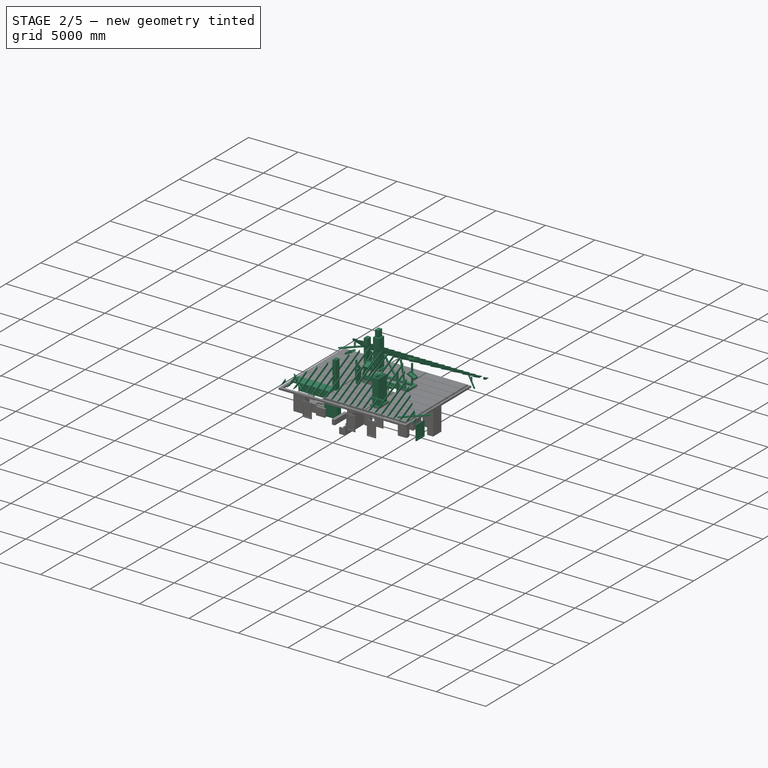
[diagram: stage 2 of 5 — iso view after this stage's code; geometry added in this stage tinted green]
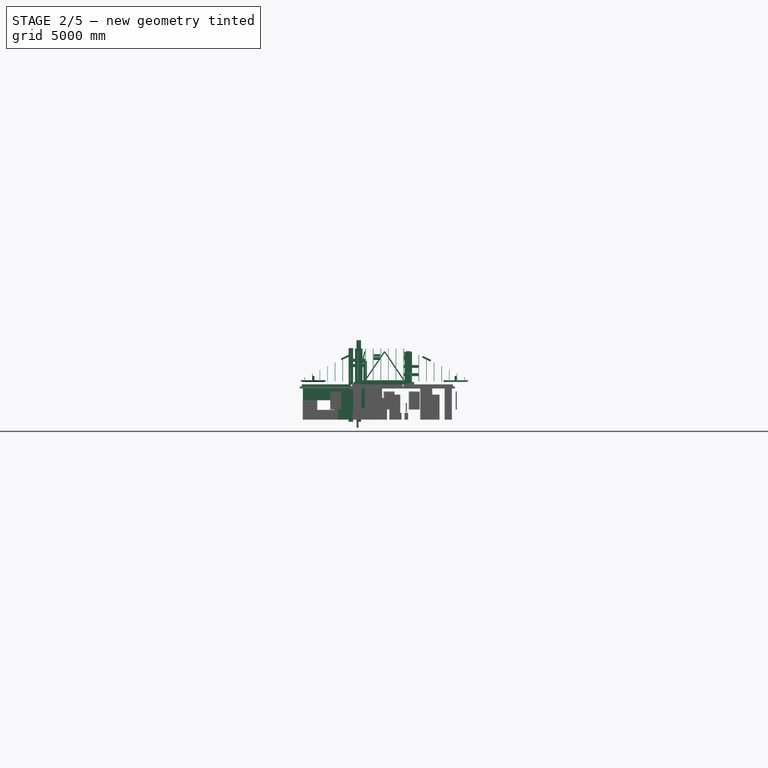
[diagram: stage 2 of 5 — front view after this stage's code; geometry added in this stage tinted green]
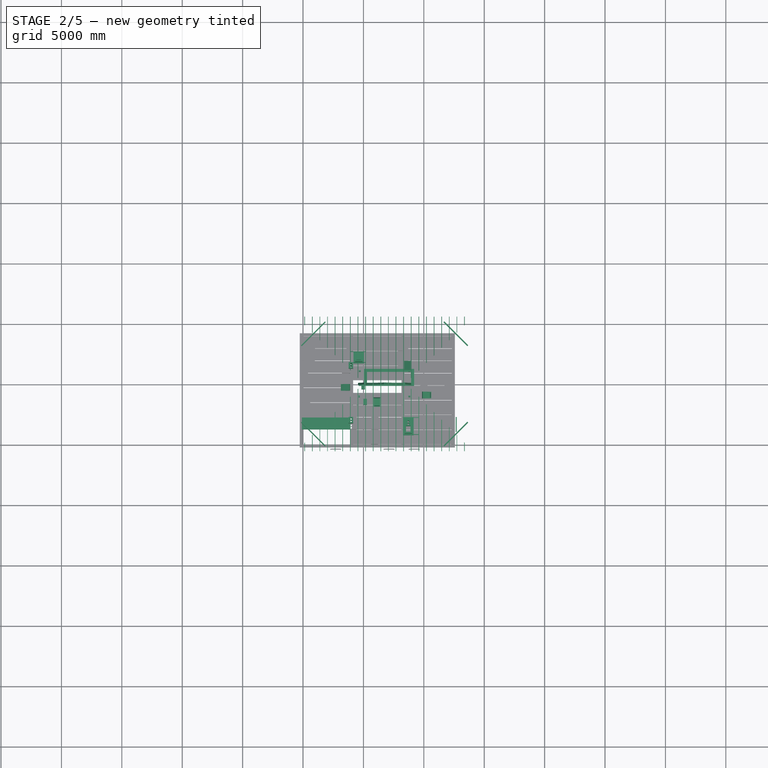
[diagram: stage 2 of 5 — top view after this stage's code; geometry added in this stage tinted green]
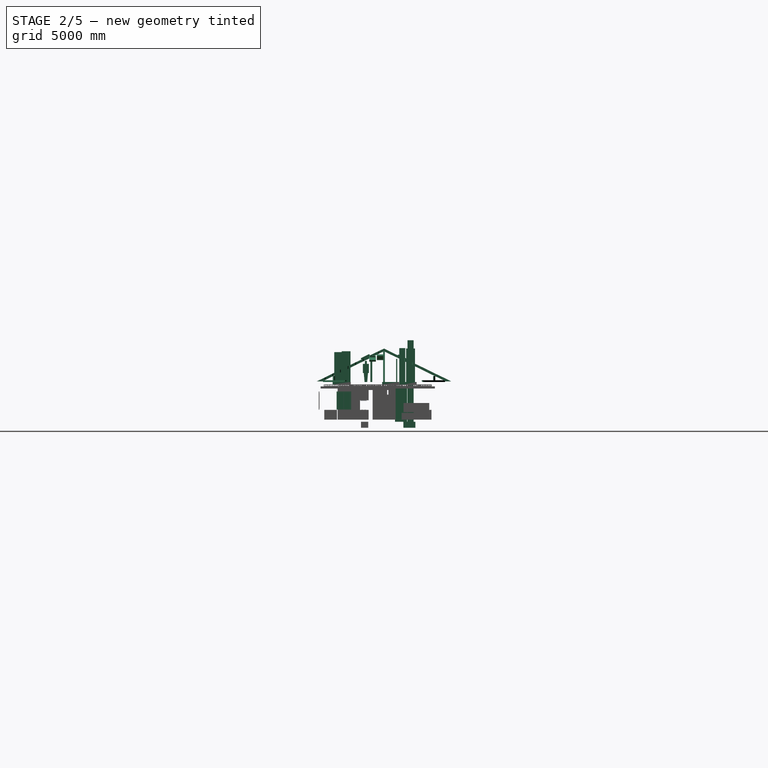
[diagram: stage 2 of 5 — right view after this stage's code; geometry added in this stage tinted green]
FEATURE [Part::Part2DObjectPython] Line1076  # Draft 2D object (typed FeaturePython)
  ChamferSize = 0
  Closed = false
  End = (-20,-4.9e-15,0)
  FilletRadius = 0
  Length = 3920
  MakeFace = false
  Placement = pos=(12080,9.09e-13,0) rot=(0,0,1;0rad)
  Points = (2) [(-8180,-3.35583e-12,0),(-12100,-9.13899e-13,0)]
  Start = (3900,-2.4468e-12,0)
  Subdivisions = 0
FEATURE [Part::Part2DObjectPython] Circle071  # Draft 2D object (typed FeaturePython)
  FirstAngle = 0
  LastAngle = 0
  MakeFace = false
  Placement = pos=(8500,900,0) rot=(0,0,1;0rad)
  Radius = 580
FEATURE [Part::Part2DObjectPython] Circle072  # Draft 2D object (typed FeaturePython)
  FirstAngle = 0
  LastAngle = 0
  MakeFace = false
  Placement = pos=(8500,900,0) rot=(0,0,1;0rad)
  Radius = 500
FEATURE [Part::Part2DObjectPython] Circle073  label="люк_контур 001"  # Draft 2D object (typed FeaturePython)
  FirstAngle = 0
  LastAngle = 0
  MakeFace = false
  Placement = pos=(8500,1000,0) rot=(0,0,1;0rad)
  Radius = 350
FEATURE [Part::Part2DObjectPython] Rectangle2269  label="проём в перекрытии 002"  # Draft 2D object (typed FeaturePython)
  ChamferSize = 0
  Columns = 1
  FilletRadius = 0
  Height = 1000
  Length = 375
  MakeFace = false
  Placement = pos=(8525,1000,0) rot=(0,0,1;0rad)
  Rows = 1
FEATURE [Part::FeaturePython] Structure037  label="проём в перекрытии 004"  # Arch/BIM object (typed FeaturePython)
  Base = -> Rectangle1992
  FaceMaker = 0
  Height = 4500
  HorizontalArea = 3.285e+06
  IfcRole = 0
  Length = 0
  MoveWithHost = false
  Nodes = (2) [(7125,5550,0),(7125,5550,4500)]
  NodesOffset = 0
  Normal = (0,0,0)
  PerimeterLength = 9100
  VerticalArea = 4.095e+07
  Width = 100
FEATURE [App::GeometryPython] BuildingPart017  label="Опциональная мансарда"  # Arch/BIM object (typed FeaturePython)
  Area = 0
  Group = -> [Loft]
  Height = 0
  IfcRole = 0
  LevelOffset = 0
FEATURE [Part::FeaturePython] Wall057  label="мауэрлат"  # Arch/BIM object (typed FeaturePython)
  Align = 0
  Base = -> Rectangle2265
  BlockHeight = 0
  BlockLength = 0
  CountBroken = 0
  CountEntire = 0
  Face = 0
  Height = 50
  HorizontalArea = 7.2e+06
  IfcRole = 156
  Joint = 0
  Length = 47000
  MakeBlocks = false
  MoveWithHost = false
  Normal = (0,0,0)
  Offset = 50
  OffsetFirst = 0
  OffsetSecond = 0
  PerimeterLength = 48600
  Placement = pos=(0,0,3110) rot=(0,0,1;0rad)
  VerticalArea = 4800000
  Width = 150
FEATURE [Part::FeaturePython] Structure047  label="Плоскость стропила"  # Arch/BIM object (typed FeaturePython)
  FaceMaker = 0
  Height = 5000
  HorizontalArea = 700000
  IfcRole = 8
  Length = 14000
  MoveWithHost = false
  Nodes = (2) [(0,1.81899e-16,-8.88178e-15),(0,1.81899e-16,14000)]
  NodesOffset = 0
  Normal = (0,0,0)
  PerimeterLength = 28100
  Placement = pos=(135,-2000,4500) rot=(0,0,1;1.5708rad)
  VerticalArea = 140500000
  Width = 50
FEATURE [Part::Part2DObjectPython] Wire423  # Draft 2D object (typed FeaturePython)
  ChamferSize = 0
  Closed = true
  End = (5000,5000,0)
  FilletRadius = 0
  Length = 35970.6
  MakeFace = false
  Placement = pos=(-1160,8830,0) rot=(0,0,1;0rad)
  Points = (4) [(160,2170,0),(15660,2170,0),(9660,-3830,0),(6160,-3830,0)]
  Start = (-1000,11000,0)
  Subdivisions = 0
FEATURE [Part::Part2DObjectPython] Wire424  # Draft 2D object (typed FeaturePython)
  ChamferSize = 0
  Closed = true
  End = (-1000,-1000,0)
  FilletRadius = 0
  Length = 28970.6
  MakeFace = false
  Placement = pos=(-1160,8830,0) rot=(0,0,1;0rad)
  Points = (3) [(160,2170,0),(6160,-3830,0),(160,-9830,0)]
  Start = (-1000,11000,0)
  Subdivisions = 0
FEATURE [Part::FeaturePython] Structure048  label="вычитаемый объём 001"  # Arch/BIM object (typed FeaturePython)
  Base = -> Wire423
  FaceMaker = 0
  Height = 4000
  HorizontalArea = 57000000
  IfcRole = 0
  Length = 0
  MoveWithHost = false
  Nodes = (2) [(6750,8631.58,0),(6750,8631.58,4000)]
  NodesOffset = 0
  Normal = (0,0,1)
  PerimeterLength = 35970.6
  Placement = pos=(0,0,3160) rot=(0,0,1;0rad)
  VerticalArea = 1.43882e+08
  Width = 100
FEATURE [Part::Part2DObjectPython] Wire425  # Draft 2D object (typed FeaturePython)
  ChamferSize = 0
  Closed = true
  End = (14500,-1000,0)
  FilletRadius = 0
  Length = 35970.6
  MakeFace = false
  Placement = pos=(-1160,-1170,0) rot=(0,0,1;0rad)
  Points = (4) [(160,170,0),(6160,6170,0),(9660,6170,0),(15660,170,0)]
  Start = (-1000,-1000,0)
  Subdivisions = 0
  Support = -> [Structure048]
FEATURE [Part::Part2DObjectPython] Wire426  # Draft 2D object (typed FeaturePython)
  ChamferSize = 0
  Closed = true
  End = (14500,-1000,0)
  FilletRadius = 0
  Length = 28970.6
  MakeFace = false
  Placement = pos=(9680,3830,0) rot=(0,0,1;0rad)
  Points = (3) [(-1180,1170,0),(4820,7170,0),(4820,-4830,0)]
  Start = (8500,5000,0)
  Subdivisions = 0
FEATURE [Part::FeaturePython] Structure050  label="вычитаемый объём 004"  # Arch/BIM object (typed FeaturePython)
  Base = -> Wire425
  FaceMaker = 0
  Height = 4000
  HorizontalArea = 57000000
  IfcRole = 0
  Length = 0
  MoveWithHost = false
  Nodes = (2) [(6040,886.738,0),(6040,886.738,4000)]
  NodesOffset = 0
  Normal = (0,0,1)
  PerimeterLength = 35970.6
  Placement = pos=(0,0,3160) rot=(0,0,1;0rad)
  VerticalArea = 1.43882e+08
  Width = 100
FEATURE [Part::FeaturePython] Array013  # Draft array (typed FeaturePython)
  Angle = 360
  ArrayType = 0
  Axis = (0,0,1)
  Base = -> Structure047
  Center = (0,0,0)
  Fuse = false
  IntervalAxis = (0,0,0)
  IntervalX = (630,0,0)
  IntervalY = (0,1,0)
  IntervalZ = (0,0,1)
  NumberPolar = 1
  NumberX = 22
  NumberY = 1
  NumberZ = 1
FEATURE [Part::MultiCommon] Common
  Shapes = -> [Array013,Structure048]
FEATURE [Part::MultiCommon] Common003
  Shapes = -> [Array013,Structure050]
FEATURE [Part::Part2DObjectPython] Wire459  label="контур кровли"  # Draft 2D object (typed FeaturePython)
  ChamferSize = 0
  Closed = true
  End = (-1000,11000,0)
  FilletRadius = 0
  Length = 55000
  MakeFace = false
  Placement = pos=(-1000,-1000,0) rot=(0,0,1;0rad)
  Points = (4) [(0,0,0),(15500,1.13687e-13,0),(15500,12000,0),(0,12000,0)]
  Start = (-1000,-1000,0)
  Subdivisions = 0
FEATURE [Part::FeaturePython] Roof005  label="Крыша объём стропильной системы"  # Arch/BIM object (typed FeaturePython)
  Angles = [26,26,26,26]
  Base = -> Wire459
  BorderLength = 55000
  Face = 0
  Flip = false
  Heights = [2926.4,2926.4,2926.4,2926.4]
  HorizontalArea = 186000000
  IdRel = [0,0,0,0]
  IfcRole = 111
  MoveWithHost = false
  Overhang = [0,0,0,0]
  PerimeterLength = 0
  Placement = pos=(0,0,2730) rot=(0,0,1;0rad)
  RidgeLength = 39402.9
  Runs = [6000,6000,6000,6000]
  Thickness = [200,200,200,200]
  VerticalArea = 1.22386e+07
FEATURE [Part::MultiCommon] Common004
  Shapes = -> [Common,Roof005]
FEATURE [Part::MultiCommon] Common005
  Shapes = -> [Roof005,Common003]
FEATURE [Part::Cut] Cut001
  Base = -> Common005
  Tool = -> Wall057
FEATURE [Part::Cut] Cut003  label="стропильная система 011"
  Base = -> Common004
  Tool = -> Wall057
FEATURE [Part::Part2DObjectPython] Line1202  label="Line1203"  # Draft 2D object (typed FeaturePython)
  ChamferSize = 0
  Closed = false
  End = (5000,5000,0)
  FilletRadius = 0
  Length = 8485.28
  MakeFace = true
  Placement = pos=(-1000,11000,0) rot=(0,0,1;0rad)
  Points = (2) [(0,0,0),(6000,-6000,0)]
  Start = (-1000,11000,0)
  Subdivisions = 0
FEATURE [Part::Part2DObjectPython] Line1203  label="Line1204"  # Draft 2D object (typed FeaturePython)
  ChamferSize = 0
  Closed = false
  End = (8500,5000,0)
  FilletRadius = 0
  Length = 8485.28
  MakeFace = true
  Placement = pos=(14500,11000,0) rot=(0,0,1;0rad)
  Points = (2) [(0,0,0),(-6000,-6000,0)]
  Start = (14500,11000,0)
  Subdivisions = 0
FEATURE [Part::Part2DObjectPython] Line1204  label="Line1205"  # Draft 2D object (typed FeaturePython)
  ChamferSize = 0
  Closed = false
  End = (8500,5000,0)
  FilletRadius = 0
  Length = 8485.28
  MakeFace = true
  Placement = pos=(14500,-1000,0) rot=(0,0,1;0rad)
  Points = (2) [(0,0,0),(-6000,6000,0)]
  Start = (14500,-1000,0)
  Subdivisions = 0
FEATURE [Part::Part2DObjectPython] Line1205  label="Line1206"  # Draft 2D object (typed FeaturePython)
  ChamferSize = 0
  Closed = false
  End = (5000,5000,0)
  FilletRadius = 0
  Length = 8485.28
  MakeFace = true
  Placement = pos=(-1000,-1000,0) rot=(0,0,1;0rad)
  Points = (2) [(0,0,0),(6000,6000,0)]
  Start = (-1000,-1000,0)
  Subdivisions = 0
FEATURE [Part::Part2DObjectPython] Line1206  label="Line1207"  # Draft 2D object (typed FeaturePython)
  ChamferSize = 0
  Closed = false
  End = (2250,5000,0)
  FilletRadius = 0
  Length = 3250
  MakeFace = true
  Placement = pos=(-1000,5000,0) rot=(0,0,1;0rad)
  Points = (2) [(0,0,0),(3250,0,0)]
  Start = (-1000,5000,0)
  Subdivisions = 0
FEATURE [Part::Part2DObjectPython] Rectangle2586  # Draft 2D object (typed FeaturePython)
  ChamferSize = 0
  Columns = 1
  FilletRadius = 0
  Height = 3250
  Length = 3250
  MakeFace = false
  Placement = pos=(-1000,-1000,0) rot=(0,0,1;0rad)
  Rows = 1
FEATURE [Part::Part2DObjectPython] Rectangle2587  # Draft 2D object (typed FeaturePython)
  ChamferSize = 0
  Columns = 1
  FilletRadius = 0
  Height = 3250
  Length = 3250
  MakeFace = false
  Placement = pos=(11250,7750,0) rot=(0,0,1;0rad)
  Rows = 1
FEATURE [Part::Extrusion] Extrude012  label="Габарит человека 003"
  Base = -> Sketch250
  Dir = (0,-1,2e-16)
  DirMode = 2
  FaceMakerClass = Part::FaceMakerBullseye
  LengthFwd = 290
  LengthRev = 0
  Placement = pos=(4832.07,4819.38,950) rot=(0,0,1;1.5708rad)
  Solid = true
  Symmetric = false
FEATURE [Part::FeaturePython] Wall134  label="вичитаемый объём 001"  # Arch/BIM object (typed FeaturePython)
  Align = 1
  Base = -> Rectangle2269
  BlockHeight = 200
  BlockLength = 625
  CountBroken = 3
  CountEntire = 0
  Face = 0
  Height = 200
  HorizontalArea = 937500
  IfcRole = 156
  Joint = 0
  Length = 2750
  MakeBlocks = false
  MoveWithHost = false
  Normal = (0,0,-1)
  OffsetFirst = 250
  OffsetSecond = 0
  PerimeterLength = 4750
  Placement = pos=(0,0,3110) rot=(0,0,1;0rad)
  Subtractions = -> [Structure037]
  VerticalArea = 1500000
  Width = 250
FEATURE [Part::Part2DObjectPython] Line1208  label="Line1209"  # Draft 2D object (typed FeaturePython)
  ChamferSize = 0
  Closed = false
  End = (8900,5000,3110)
  FilletRadius = 0
  Length = 4300
  MakeFace = true
  Placement = pos=(5050,5000,0) rot=(0,0,1;0rad)
  Points = (2) [(-450,0,3110),(3850,0,3110)]
  Start = (4600,5000,3110)
  Subdivisions = 0
FEATURE [Part::FeaturePython] Wall135  label="опорная доска стоек конька"  # Arch/BIM object (typed FeaturePython)
  Align = 2
  Base = -> Line1208
  BlockHeight = 0
  BlockLength = 0
  CountBroken = 0
  CountEntire = 0
  Face = 0
  Height = 150
  HorizontalArea = 645000
  IfcRole = 156
  Joint = 0
  Length = 4300
  MakeBlocks = false
  MoveWithHost = false
  Normal = (0,0,0)
  OffsetFirst = 0
  OffsetSecond = 0
  PerimeterLength = 8900
  VerticalArea = 1335000
  Width = 150
FEATURE [Part::Part2DObjectPython] Rectangle2588  label="Проём в стропилной системе 001"  # Draft 2D object (typed FeaturePython)
  ChamferSize = 0
  Columns = 1
  FilletRadius = 0
  Height = 1340
  Length = 715
  MakeFace = false
  Placement = pos=(8355,830,0) rot=(0,0,1;0rad)
  Rows = 1
FEATURE [Part::FeaturePython] Structure036  label="проём в перекрытии 003"  # Arch/BIM object (typed FeaturePython)
  Base = -> Rectangle2588
  FaceMaker = 0
  Height = 6750
  HorizontalArea = 958100
  IfcRole = 0
  Length = 0
  MoveWithHost = false
  Nodes = (2) [(8450,1450,0),(8450,1450,6750)]
  NodesOffset = 0
  Normal = (0,0,0)
  PerimeterLength = 4110
  VerticalArea = 27742500
  Width = 100
FEATURE [Part::FeaturePython] Wall133  label="вичитаемый объём 002"  # Arch/BIM object (typed FeaturePython)
  Align = 1
  Base = -> Rectangle1992
  BlockHeight = 200
  BlockLength = 625
  CountBroken = 4
  CountEntire = 11
  Face = 0
  Height = 200
  HorizontalArea = 2525000
  IfcRole = 156
  Joint = 0
  Length = 9100
  MakeBlocks = false
  MoveWithHost = false
  Normal = (0,0,-1)
  OffsetFirst = 250
  OffsetSecond = 0
  PerimeterLength = 11100
  Placement = pos=(0,0,3110) rot=(0,0,1;0rad)
  Subtractions = -> [Structure036,Structure037]
  VerticalArea = 4040000
  Width = 250
FEATURE [Part::Part2DObjectPython] Line1209  label="Line1210"  # Draft 2D object (typed FeaturePython)
  ChamferSize = 0
  Closed = false
  End = (9560,2170,0)
  FilletRadius = 0
  Length = 1210
  MakeFace = true
  Placement = pos=(8430,2170,0) rot=(0,0,1;0rad)
  Points = (2) [(-80,-4.54747e-13,0),(1130,0,0)]
  Start = (8350,2170,0)
  Subdivisions = 0
FEATURE [Part::FeaturePython] Wall  label="Wall008"  # Arch/BIM object (typed FeaturePython)
  Align = 1
  Base = -> Line1209
  BlockHeight = 0
  BlockLength = 0
  CountBroken = 0
  CountEntire = 0
  Face = 0
  Height = 6000
  HorizontalArea = 60500
  IfcRole = 156
  Joint = 0
  Length = 1210
  MakeBlocks = false
  MoveWithHost = false
  Normal = (0,0,0)
  OffsetFirst = 0
  OffsetSecond = 0
  PerimeterLength = 2520
  VerticalArea = 1.512e+07
  Width = 50
FEATURE [Part::FeaturePython] Array027  # Draft array (typed FeaturePython)
  Angle = 360
  ArrayType = 0
  Axis = (0,0,1)
  Base = -> Wall
  Center = (0,0,0)
  Fuse = false
  IntervalAxis = (0,0,0)
  IntervalX = (1,0,0)
  IntervalY = (0,-1390,0)
  IntervalZ = (0,0,1)
  NumberPolar = 1
  NumberX = 1
  NumberY = 2
  NumberZ = 1
FEATURE [Part::MultiCommon] Common018  label="Поперечины 001"
  Shapes = -> [Array027,Roof005]
FEATURE [Part::FeaturePython] Array029  # Draft array (typed FeaturePython)
  Angle = 360
  ArrayType = 0
  Axis = (0,0,1)
  Base = -> Extrude014
  Center = (0,0,0)
  Fuse = false
  IntervalAxis = (0,0,0)
  IntervalX = (0,0,0)
  IntervalY = (0,1000,0)
  IntervalZ = (0,0,1)
  NumberPolar = 1
  NumberX = 1
  NumberY = 1
  NumberZ = 1
FEATURE [Sketcher::SketchObject] Sketch265  label=" Вентстояк ГБ 375х500 004"
  Placement = pos=(-815.746,-633.466,0) rot=(0,0,1;0rad)
  sketch-geometry (6):
    g0: LineSegment StartX=4590.75 StartY=6893.47 StartZ=0 EndX=4965.75 EndY=6893.47 EndZ=0
    g1: LineSegment StartX=4965.75 StartY=6893.47 StartZ=0 EndX=4965.75 EndY=7393.47 EndZ=0
    g2: LineSegment StartX=4965.75 StartY=7393.47 StartZ=0 EndX=4590.75 EndY=7393.47 EndZ=0
    g3: LineSegment StartX=4590.75 StartY=7393.47 StartZ=0 EndX=4590.75 EndY=6893.47 EndZ=0
    g4: Circle CenterX=4778.75 CenterY=7243.47 CenterZ=0 NormalX=0 NormalY=0 NormalZ=1 AngleXU=0 Radius=80
    g5: Circle CenterX=4778.75 CenterY=7043.47 CenterZ=0 NormalX=0 NormalY=0 NormalZ=1 AngleXU=0 Radius=80
  constraints (16):
    c: Coincident(g0,g1)
    c: Coincident(g1,g2)
    c: Coincident(g2,g3)
    c: Coincident(g3,g0)
    c: Horizontal(g0)
    c: Horizontal(g2)
    c: Vertical(g1)
    c: Vertical(g3)
    c: DistanceX(g2,g2) = 375
    c: DistanceY(g3,g3) = 500
    c: Equal(g4,g5)
    c: Diameter(g4) = 160
    c: DistanceX(g2,g4) = 188
    c: DistanceY(g4,g2) = 150
    c: DistanceY(g5,g4) = 200
    c: DistanceX(g4,g5) = 0
FEATURE [Part::Extrusion] Extrude019  label=" Вентстояк верхняя часть 001"
  Base = -> Sketch262
  Dir = (0,0,1)
  DirMode = 2
  FaceMakerClass = Part::FaceMakerBullseye
  LengthFwd = 2750
  LengthRev = 0
  Placement = pos=(0,0,2910) rot=(0,0,1;0rad)
  Solid = true
  Symmetric = false
FEATURE [Part::Extrusion] Extrude020  label=" Вентстояк верхняя часть 002"
  Base = -> Sketch263
  Dir = (0,0,1)
  DirMode = 2
  FaceMakerClass = Part::FaceMakerBullseye
  LengthFwd = 2750
  LengthRev = 0
  Placement = pos=(0,0,2910) rot=(0,0,1;0rad)
  Solid = true
  Symmetric = false
FEATURE [Part::Extrusion] Extrude021  label=" Вентстояк верхняя часть 003"
  Base = -> Sketch265
  Dir = (0,0,1)
  DirMode = 2
  FaceMakerClass = Part::FaceMakerBullseye
  LengthFwd = 3000
  LengthRev = 0
  Placement = pos=(0,0,2910) rot=(0,0,1;0rad)
  Solid = true
  Symmetric = false
FEATURE [Part::Cut] Cut004  label="стропильная система 012"
  Base = -> Cut001
  Tool = -> Structure036
FEATURE [Sketcher::SketchObject] Sketch266
  Placement = pos=(12720,1075,820) rot=(0.57735,0.57735,0.57735;2.0944rad)
  sketch-geometry (24):
    g0: LineSegment StartX=0 StartY=0 StartZ=0 EndX=1200 EndY=0 EndZ=0
    g1: LineSegment StartX=1200 StartY=0 StartZ=0 EndX=1200 EndY=1500 EndZ=0
    g2: LineSegment StartX=1200 StartY=1500 StartZ=0 EndX=0 EndY=1500 EndZ=0
    g3: LineSegment StartX=0 StartY=1500 StartZ=0 EndX=0 EndY=0 EndZ=0
    g4: LineSegment StartX=50 StartY=50 StartZ=0 EndX=1150 EndY=50 EndZ=0
    g5: LineSegment StartX=1150 StartY=50 StartZ=0 EndX=1150 EndY=1450 EndZ=0
    g6: LineSegment StartX=1150 StartY=1450 StartZ=0 EndX=50 EndY=1450 EndZ=0
    g7: LineSegment StartX=50 StartY=1450 StartZ=0 EndX=50 EndY=50 EndZ=0
    g8: LineSegment StartX=55 StartY=55 StartZ=0 EndX=597.5 EndY=55 EndZ=0
    g9: LineSegment StartX=597.5 StartY=55 StartZ=0 EndX=597.5 EndY=1445 EndZ=0
    g10: LineSegment StartX=597.5 StartY=1445 StartZ=0 EndX=55 EndY=1445 EndZ=0
    g11: LineSegment StartX=55 StartY=1445 StartZ=0 EndX=55 EndY=55 EndZ=0
    g12: LineSegment StartX=105 StartY=105 StartZ=0 EndX=547.5 EndY=105 EndZ=0
    g13: LineSegment StartX=547.5 StartY=105 StartZ=0 EndX=547.5 EndY=1395 EndZ=0
    g14: LineSegment StartX=547.5 StartY=1395 StartZ=0 EndX=105 EndY=1395 EndZ=0
    g15: LineSegment StartX=105 StartY=1395 StartZ=0 EndX=105 EndY=105 EndZ=0
    g16: LineSegment StartX=602.5 StartY=55 StartZ=0 EndX=1145 EndY=55 EndZ=0
    g17: LineSegment StartX=1145 StartY=55 StartZ=0 EndX=1145 EndY=1445 EndZ=0
    g18: LineSegment StartX=1145 StartY=1445 StartZ=0 EndX=602.5 EndY=1445 EndZ=0
    g19: LineSegment StartX=602.5 StartY=1445 StartZ=0 EndX=602.5 EndY=55 EndZ=0
    g20: LineSegment StartX=652.5 StartY=105 StartZ=0 EndX=1095 EndY=105 EndZ=0
    g21: LineSegment StartX=1095 StartY=105 StartZ=0 EndX=1095 EndY=1395 EndZ=0
    g22: LineSegment StartX=1095 StartY=1395 StartZ=0 EndX=652.5 EndY=1395 EndZ=0
    g23: LineSegment StartX=652.5 StartY=1395 StartZ=0 EndX=652.5 EndY=105 EndZ=0
  constraints (71):
    c: Coincident(g0,g1)
    c: Coincident(g1,g2)
    c: Coincident(g2,g3)
    c: Coincident(g3,g0)
    c: Horizontal(g0)
    c: Horizontal(g2)
    c: Vertical(g1)
    c: Vertical(g3)
    c: Coincident(g4,g5)
    c: Coincident(g5,g6)
    c: Coincident(g6,g7)
    c: Coincident(g7,g4)
    c: Horizontal(g4)
    c: Horizontal(g6)
    c: Vertical(g5)
    c: Vertical(g7)
    c: DistanceY(g1) = 1500  'Height'
    c: DistanceX(g0) = 1200  'Width'
    c: DistanceY(g6,g2) = 50  'Frame1'
    c: DistanceX(g2,g6) = 50  'Frame2'
    c: DistanceX(g4,g0) = 50  'Frame3'
    c: DistanceY(g0,g4) = 50  'Frame4'
    c: Coincident(g0,g-1)
    c: Coincident(g8,g9)
    c: Coincident(g9,g10)
    c: Coincident(g10,g11)
    c: Coincident(g11,g8)
    c: Horizontal(g8)
    c: Horizontal(g10)
    c: Vertical(g9)
    c: Vertical(g11)
    c: Coincident(g12,g13)
    c: Coincident(g13,g14)
    c: Coincident(g14,g15)
    c: Coincident(g15,g12)
    c: Horizontal(g12)
    c: Horizontal(g14)
    c: Vertical(g13)
    c: Vertical(g15)
    c: Coincident(g16,g17)
    c: Coincident(g17,g18)
    c: Coincident(g18,g19)
    c: Coincident(g19,g16)
    c: Horizontal(g16)
    c: Horizontal(g18)
    c: Vertical(g17)
    c: Vertical(g19)
    c: Coincident(g20,g21)
    c: Coincident(g21,g22)
    c: Coincident(g22,g23)
    c: Coincident(g23,g20)
    c: Horizontal(g20)
    c: Horizontal(g22)
    c: Vertical(g21)
    c: Vertical(g23)
    c: DistanceY(g8,g12) = 50  'Frame5'
    c: DistanceX(g8,g12) = 50  'Frame6'
    c: DistanceX(g21,g17) = 50  'Frame7'
    c: DistanceY(g21,g17) = 50  'Frame8'
    c: DistanceX(g16,g20) = 50  'Frame9'
    c: DistanceX(g14,g10) = 50  'Frame10'
    c: Equal(g22,g14)
    c: DistanceY(g8,g16) = 0
    c: DistanceY(g10,g18) = 0
    c: DistanceX(g4,g8) = 5
    c: DistanceY(g4,g8) = 5
    c: DistanceX(g6,g18) = -5
    c: DistanceY(g6,g18) = -5
    c: DistanceX(g9,g19) = 5
    c: PointOnObject(g13,g22)
    c: PointOnObject(g20,g12)
FEATURE [Part::FeaturePython] Window028  label="ОК-110-01"  # Arch/BIM object (typed FeaturePython)
  Area = 1800000
  Base = -> Sketch266
  Frame = 50
  Height = 1500
  HoleDepth = 0
  HoleWire = 0
  HorizontalArea = 0
  IfcRole = 160
  LouvreSpacing = 0
  LouvreWidth = 0
  MoveWithHost = true
  Normal = (-1,0,0)
  Opening = 0
  PerimeterLength = 0
  Preset = 3
  SymbolElevation = false
  SymbolPlan = false
  VerticalArea = 0
  Width = 1200
  WindowParts = <same value as first occurrence — deduplicated (x3 in doc)>
FEATURE [Part::FeaturePython] Wall140  label="Облицовка_вентстояка_01"  # Arch/BIM object (typed FeaturePython)
  Align = 1
  Base = -> Rectangle2588
  BlockHeight = 65
  BlockLength = 250
  CountBroken = 51
  CountEntire = 0
  Face = 0
  Height = 2475
  HorizontalArea = 387600
  IfcRole = 156
  Joint = 8
  Length = 4110
  MakeBlocks = false
  MoveWithHost = false
  Normal = (0,0,0)
  Offset = 50
  OffsetFirst = 0
  OffsetSecond = 130
  PerimeterLength = 3710
  Placement = pos=(0,0,3110) rot=(0,0,1;0rad)
  VerticalArea = 15988500
  Width = 120
FEATURE [Part::Part2DObjectPython] Circle080  label="Circle081"  # Draft 2D object (typed FeaturePython)
  FirstAngle = 0
  LastAngle = 0
  MakeFace = false
  Placement = pos=(12150,4405,0) rot=(0,0,1;0rad)
  Radius = 60
FEATURE [Part::Part2DObjectPython] Rectangle2598  label="Rectangle2595"  # Draft 2D object (typed FeaturePython)
  ChamferSize = 0
  Columns = 1
  FilletRadius = 0
  Height = 120
  Length = 2070
  MakeFace = true
  Placement = pos=(8380,-455,0) rot=(0,0,1;0rad)
  Rows = 1
FEATURE [Part::Part2DObjectPython] Rectangle2599  label="Rectangle2596"  # Draft 2D object (typed FeaturePython)
  ChamferSize = 0
  Columns = 1
  FilletRadius = 0
  Height = 2070
  Length = 120
  MakeFace = true
  Placement = pos=(-460,2275,0) rot=(0,0,1;0rad)
  Rows = 1
FEATURE [Part::Part2DObjectPython] Rectangle2600  label="Rectangle2597"  # Draft 2D object (typed FeaturePython)
  ChamferSize = 0
  Columns = 1
  FilletRadius = 0
  Height = 2070
  Length = 120
  MakeFace = true
  Placement = pos=(-460,5395,0) rot=(0,0,1;0rad)
  Rows = 1
FEATURE [Part::Part2DObjectPython] Wire523  # Draft 2D object (typed FeaturePython)
  ChamferSize = 0
  Closed = true
  End = (4600,10000,0)
  FilletRadius = 0
  Length = 6700
  MakeFace = true
  Placement = pos=(3850,9940,0) rot=(0,0,1;0rad)
  Points = (8) [(-640,60,0),(-640,260,0),(1910,260,0),(1910,60,0),(950,60,0),(950,-540,0),(750,-540,0),(750,60,0)]
  Start = (3210,10000,0)
  Subdivisions = 0
FEATURE [Part::Part2DObjectPython] Wire524  # Draft 2D object (typed FeaturePython)
  ChamferSize = 0
  Closed = true
  End = (-200,10200,0)
  FilletRadius = 0
  Length = 6930
  MakeFace = true
  Placement = pos=(-950,9940,0) rot=(0,0,1;0rad)
  Points = (6) [(2810,260,0),(2810,60,0),(950,60,0),(950,-1145,0),(750,-1145,0),(750,260,0)]
  Start = (1860,10200,0)
  Subdivisions = 0
FEATURE [Part::Part2DObjectPython] Wire525  # Draft 2D object (typed FeaturePython)
  ChamferSize = 0
  Closed = true
  End = (-200,7445,0)
  FilletRadius = 0
  Length = 4450
  MakeFace = true
  Placement = pos=(-950,6565,0) rot=(0,0,1;0rad)
  Points = (4) [(950,880,0),(950,-1145,0),(750,-1145,0),(750,880,0)]
  Start = (0,7445,0)
  Subdivisions = 0
FEATURE [Part::Part2DObjectPython] Wire526  # Draft 2D object (typed FeaturePython)
  ChamferSize = 0
  Closed = true
  End = (-200,4320,0)
  FilletRadius = 0
  Length = 15550
  MakeFace = true
  Placement = pos=(-950,3440,0) rot=(0,0,1;0rad)
  Points = (12) [(950,880,0),(950,-340,0),(5375,-340,0),(5375,260,0),(5750,260,0),(5750,-590,0),(5550,-590,0),(5550,-440,0),(950,-440,0),(950,-1145,0),(750,-1145,0),+1 more]
  Start = (-3.411e-13,4320,0)
  Subdivisions = 0
FEATURE [Part::Part2DObjectPython] Wire527  # Draft 2D object (typed FeaturePython)
  ChamferSize = 0
  Closed = true
  End = (0,-3.9222e-12,0)
  FilletRadius = 0
  Length = 6390
  MakeFace = true
  Placement = pos=(-960,-260,0) rot=(0,0,1;0rad)
  Points = (6) [(2810,260,0),(2810,60,0),(760,60,0),(760,1205,0),(960,1205,0),(960,260,0)]
  Start = (1850,-7.958e-13,0)
  Subdivisions = 0
FEATURE [Part::Part2DObjectPython] Wire528  # Draft 2D object (typed FeaturePython)
  ChamferSize = 0
  Closed = true
  End = (5275,-200,0)
  FilletRadius = 0
  Length = 9050
  MakeFace = true
  Placement = pos=(3840,-260,0) rot=(0,0,1;0rad)
  Points = (12) [(-640,60,0),(-640,260,0),(760,260,0),(760,2210,0),(960,2210,0),(960,2060,0),(1260,2060,0),(1260,1960,0),(960,1960,0),(960,260,0),(1435,260,0),+1 more]
  Start = (3200,-200,0)
  Subdivisions = 0
FEATURE [Part::Part2DObjectPython] Wire529  # Draft 2D object (typed FeaturePython)
  ChamferSize = 0
  Closed = true
  End = (13700,-200,0)
  FilletRadius = 0
  Length = 34200
  MakeFace = true
  Placement = pos=(12740,-260,0) rot=(0,0,1;0rad)
  Points = (30) [(-960,60,0),(-960,260,0),(760,260,0),(760,3860,0),(-2790,3860,0),(-2790,3960,0),(-2640,3960,0),(-2640,5310,0),(-2540,5310,0),(-2540,3960,0),+20 more]
  Start = (11780,-200,0)
  Subdivisions = 0
FEATURE [Part::Part2DObjectPython] Wire530  # Draft 2D object (typed FeaturePython)
  ChamferSize = 0
  Closed = true
  End = (10430,-200,0)
  FilletRadius = 0
  Length = 14300
  MakeFace = true
  Placement = pos=(7940,-260,0) rot=(0,0,1;0rad)
  Points = (20) [(415,60,0),(415,260,0),(760,260,0),(760,1260,0),(585,1260,0),(585,2260,0),(760,2260,0),(760,3860,0),(60,3860,0),(60,3960,0),(760,3960,0),(760,4110,0),+8 more]
  Start = (8355,-200,0)
  Subdivisions = 0
FEATURE [Part::Part2DObjectPython] Wire531  # Draft 2D object (typed FeaturePython)
  ChamferSize = 0
  Closed = true
  End = (7355,-200,0)
  FilletRadius = 0
  Length = 13560
  MakeFace = true
  Placement = pos=(6240,-260,0) rot=(0,0,1;0rad)
  Points = (18) [(35,60,0),(35,260,0),(760,260,0),(760,1960,0),(-140,1960,0),(-140,2060,0),(560,2060,0),(560,3860,0),(-40,3860,0),(-40,3960,0),(960,3960,0),+7 more]
  Start = (6275,-200,0)
  Subdivisions = 0
FEATURE [Part::Part2DObjectPython] Rectangle2601  # Draft 2D object (typed FeaturePython)
  ChamferSize = 0
  Columns = 1
  FilletRadius = 0
  Height = 800
  Length = 50
  MakeFace = false
  Placement = pos=(11650,5200,0) rot=(0,0,1;0rad)
  Rows = 1
FEATURE [Part::Part2DObjectPython] Rectangle2602  # Draft 2D object (typed FeaturePython)
  ChamferSize = 0
  Columns = 1
  FilletRadius = 0
  Height = 800
  Length = 50
  MakeFace = false
  Placement = pos=(11800,4600,0) rot=(0,0,1;0rad)
  Rows = 1
FEATURE [Part::Part2DObjectPython] Rectangle2603  label="Проём в стропилной системе 002"  # Draft 2D object (typed FeaturePython)
  ChamferSize = 0
  Columns = 1
  FilletRadius = 0
  Height = 840
  Length = 715
  MakeFace = false
  Placement = pos=(4255,6780,0) rot=(0,0,1;0rad)
  Rows = 1
FEATURE [Part::FeaturePython] Wall141  label="Облицовка_вентстояка_002"  # Arch/BIM object (typed FeaturePython)
  Align = 1
  Base = -> Rectangle2603
  BlockHeight = 65
  BlockLength = 250
  CountBroken = 58
  CountEntire = 0
  Face = 0
  Height = 2775
  HorizontalArea = 267600
  IfcRole = 156
  Joint = 8
  Length = 3110
  MakeBlocks = false
  MoveWithHost = false
  Normal = (0,0,0)
  Offset = 50
  OffsetFirst = 0
  OffsetSecond = 130
  PerimeterLength = 2710
  Placement = pos=(0,0,3110) rot=(0,0,1;0rad)
  VerticalArea = 12376500
  Width = 120
FEATURE [App::GeometryPython] BuildingPart040  label="Вентстояки верх.часть"  # Arch/BIM object (typed FeaturePython)
  Area = 0
  Group = -> [Extrude019,Extrude020,Extrude021,Wall141,Wall140]
  Height = 0
  IfcRole = 0
  LevelOffset = 0
FEATURE [Part::Part2DObjectPython] Rectangle2604  label="проём в перекрытии 007"  # Draft 2D object (typed FeaturePython)
  ChamferSize = 0
  Columns = 1
  FilletRadius = 0
  Height = 500
  Length = 375
  MakeFace = false
  Placement = pos=(4425,6950,0) rot=(0,0,1;0rad)
  Rows = 1
FEATURE [Part::FeaturePython] Structure165  label="Вентстояк вычитаемы объём 003"  # Arch/BIM object (typed FeaturePython)
  Base = -> Rectangle2604
  FaceMaker = 0
  Height = 6750
  HorizontalArea = 187500
  IfcRole = 0
  Length = 0
  MoveWithHost = false
  Nodes = (2) [(4612.5,7200,0),(4612.5,7200,6750)]
  NodesOffset = 0
  Normal = (0,0,0)
  PerimeterLength = 1750
  Placement = pos=(0,0,-180) rot=(0,0,1;0rad)
  VerticalArea = 11812500
  Width = 100
FEATURE [Part::FeaturePython] Wall142  label="опорный ряд ГБ003"  # Arch/BIM object (typed FeaturePython)
  Align = 1
  Base = -> Rectangle2604
  BlockHeight = 200
  BlockLength = 625
  CountBroken = 2
  CountEntire = 0
  Face = 0
  Height = 200
  HorizontalArea = 687500
  IfcRole = 156
  Joint = 0
  Length = 1750
  MakeBlocks = true
  MoveWithHost = false
  Normal = (0,0,-1)
  OffsetFirst = 250
  OffsetSecond = 0
  PerimeterLength = 3750
  Placement = pos=(0,0,3110) rot=(0,0,1;0rad)
  VerticalArea = 1300000
  Width = 250
FEATURE [Part::FeaturePython] Wall143  label="вичитаемый объём 003"  # Arch/BIM object (typed FeaturePython)
  Align = 1
  Base = -> Rectangle2604
  BlockHeight = 200
  BlockLength = 625
  CountBroken = 3
  CountEntire = 0
  Face = 0
  Height = 200
  HorizontalArea = 687500
  IfcRole = 156
  Joint = 0
  Length = 1750
  MakeBlocks = false
  MoveWithHost = false
  Normal = (0,0,-1)
  OffsetFirst = 250
  OffsetSecond = 0
  PerimeterLength = 3750
  Placement = pos=(0,0,3110) rot=(0,0,1;0rad)
  VerticalArea = 1.1e+06
  Width = 250
FEATURE [Part::FeaturePython] Structure166  label="проём в перекрытии 008"  # Arch/BIM object (typed FeaturePython)
  Base = -> Rectangle2603
  FaceMaker = 0
  Height = 6750
  HorizontalArea = 600600
  IfcRole = 0
  Length = 0
  MoveWithHost = false
  Nodes = (2) [(8450,1450,0),(8450,1450,6750)]
  NodesOffset = 0
  Normal = (0,0,0)
  PerimeterLength = 3110
  VerticalArea = 2.09925e+07
  Width = 100
FEATURE [Part::Cut] Cut010  label="стропильная система 013"
  Base = -> Cut003
  Tool = -> Structure166
FEATURE [Part::Part2DObjectPython] Line1213  label="Line1214"  # Draft 2D object (typed FeaturePython)
  ChamferSize = 0
  Closed = false
  End = (5150,7620,0)
  FilletRadius = 0
  Length = 1210
  MakeFace = true
  Placement = pos=(4020,7620,0) rot=(0,0,1;0rad)
  Points = (2) [(-80,0,0),(1130,0,0)]
  Start = (3940,7620,0)
  Subdivisions = 0
FEATURE [Part::FeaturePython] Wall144  label="Wall009"  # Arch/BIM object (typed FeaturePython)
  Align = 1
  Base = -> Line1213
  BlockHeight = 0
  BlockLength = 0
  CountBroken = 0
  CountEntire = 0
  Face = 0
  Height = 6000
  HorizontalArea = 60500
  IfcRole = 156
  Joint = 0
  Length = 1210
  MakeBlocks = false
  MoveWithHost = false
  Normal = (0,0,0)
  OffsetFirst = 0
  OffsetSecond = 0
  PerimeterLength = 2520
  VerticalArea = 1.512e+07
  Width = 50
FEATURE [Part::FeaturePython] Array030  # Draft array (typed FeaturePython)
  Angle = 360
  ArrayType = 0
  Axis = (0,0,1)
  Base = -> Wall144
  Center = (0,0,0)
  Fuse = false
  IntervalAxis = (0,0,0)
  IntervalX = (1,0,0)
  IntervalY = (0,-890,0)
  IntervalZ = (0,0,1)
  NumberPolar = 1
  NumberX = 1
  NumberY = 2
  NumberZ = 1
FEATURE [Part::MultiCommon] Common019  label="Поперечины 002"
  Shapes = -> [Array030,Roof005]
FEATURE [Part::Part2DObjectPython] Rectangle2151  label="Д90-003"  # Draft 2D object (typed FeaturePython)
  ChamferSize = 0
  Columns = 1
  FilletRadius = 0
  Height = 900
  Length = 100
  MakeFace = true
  Placement = pos=(4950,5200,3110) rot=(0,0,1;0rad)
  Rows = 1
FEATURE [Part::Feature] ShapeString093  label="надпись 095"
  Placement = pos=(5181.88,3755.56,3110) rot=(0,0,1;0rad)
  shape: bbox 283.8 x 188.9 x 2e-07 mm, 2 faces, 0 solids (baked)
FEATURE [Part::Feature] Ellipse041  label="Ellipse042"
  Placement = pos=(10550,4100,3110) rot=(0,0,-1;1.5708rad)
  shape: bbox 600 x 1400 x 2e-07 mm, 0 faces, 0 solids (baked)
FEATURE [Part::Feature] ShapeString091  label="надпись 093"
  Placement = pos=(5268.05,4453.05,3110) rot=(0,0,1;0rad)
  shape: bbox 140.3 x 188.9 x 2e-07 mm, 1 faces, 0 solids (baked)
FEATURE [Part::Feature] Ellipse042  label="Ellipse043"
  Placement = pos=(11850,2700,3110) rot=(0,0,1;1.5708rad)
  shape: bbox 200 x 400 x 2e-07 mm, 0 faces, 0 solids (baked)
FEATURE [Part::Feature] ShapeString094  label="надпись 096"
  Placement = pos=(6577.36,3587.77,3110) rot=(0,0,1;0rad)
  shape: bbox 390.5 x 188.9 x 2e-07 mm, 3 faces, 0 solids (baked)
FEATURE [Part::Feature] ShapeString090  label="надпись 092"
  Placement = pos=(5788.34,7955.56,3110) rot=(0,0,1;0rad)
  shape: bbox 273.1 x 188.9 x 2e-07 mm, 2 faces, 0 solids (baked)
FEATURE [Part::Feature] ShapeString092  label="надпись 094"
  Placement = pos=(5119.33,3160.94,3110) rot=(0,0,1;0rad)
  shape: bbox 444.9 x 188.9 x 2e-07 mm, 3 faces, 0 solids (baked)
FEATURE [Part::Part2DObjectPython] Rectangle1994  label="Rectangle1993"  # Draft 2D object (typed FeaturePython)
  ChamferSize = 0
  Columns = 1
  FilletRadius = 0
  Height = 1500
  Length = 100
  MakeFace = false
  Placement = pos=(11350,7290,3110) rot=(0,0,1;0rad)
  Rows = 1
FEATURE [Part::Part2DObjectPython] Rectangle1997  label="Rectangle1996"  # Draft 2D object (typed FeaturePython)
  ChamferSize = 0
  Columns = 1
  FilletRadius = 50
  Height = 900
  Length = 900
  MakeFace = false
  Placement = pos=(9110,6690,3110) rot=(0,0,1;0rad)
  Rows = 1
FEATURE [Part::Part2DObjectPython] Rectangle1996  label="Rectangle1995"  # Draft 2D object (typed FeaturePython)
  ChamferSize = 0
  Columns = 1
  FilletRadius = 50
  Height = 900
  Length = 900
  MakeFace = false
  Placement = pos=(9110,7590,3110) rot=(0,0,1;0rad)
  Rows = 1
FEATURE [Part::Part2DObjectPython] Rectangle1993  label="Rectangle1992"  # Draft 2D object (typed FeaturePython)
  ChamferSize = 0
  Columns = 1
  FilletRadius = 0
  Height = 1800
  Length = 300
  MakeFace = false
  Placement = pos=(11250,7140,3110) rot=(0,0,1;0rad)
  Rows = 1
FEATURE [Part::Part2DObjectPython] Rectangle2089  label="Rectangle2072"  # Draft 2D object (typed FeaturePython)
  ChamferSize = 0
  Columns = 1
  FilletRadius = 0
  Height = 300
  Length = 500
  MakeFace = false
  Placement = pos=(8250,8550,3110) rot=(0,0,-1;1.5708rad)
  Rows = 1
FEATURE [Part::Part2DObjectPython] Rectangle2091  label="Rectangle2074"  # Draft 2D object (typed FeaturePython)
  ChamferSize = 0
  Columns = 1
  FilletRadius = 0
  Height = 300
  Length = 500
  MakeFace = false
  Placement = pos=(8100,7900,3110) rot=(0,0,1;3.14159rad)
  Rows = 1
FEATURE [Part::Part2DObjectPython] Rectangle2092  label="Rectangle2075"  # Draft 2D object (typed FeaturePython)
  ChamferSize = 0
  Columns = 1
  FilletRadius = 100
  Height = 800
  Length = 1400
  MakeFace = false
  Placement = pos=(7450,9300,3110) rot=(0,0,-1;1.5708rad)
  Rows = 1
FEATURE [Part::Part2DObjectPython] Rectangle2227  # Draft 2D object (typed FeaturePython)
  ChamferSize = 0
  Columns = 1
  FilletRadius = 0
  Height = 2700
  Length = 300
  MakeFace = true
  Placement = pos=(9750,2250,3110) rot=(0,0,1;0rad)
  Rows = 1
FEATURE [Part::Part2DObjectPython] Rectangle2090  label="Rectangle2073"  # Draft 2D object (typed FeaturePython)
  ChamferSize = 0
  Columns = 1
  FilletRadius = 0
  Height = 300
  Length = 500
  MakeFace = false
  Placement = pos=(8250,9150,3110) rot=(0,0,-1;1.5708rad)
  Rows = 1
FEATURE [Part::Part2DObjectPython] Rectangle2161  # Draft 2D object (typed FeaturePython)
  ChamferSize = 0
  Columns = 1
  FilletRadius = 0
  Height = 600
  Length = 950
  MakeFace = true
  Placement = pos=(7450,4350,3110) rot=(0,0,1;0rad)
  Rows = 1
FEATURE [Part::Part2DObjectPython] Rectangle2160  # Draft 2D object (typed FeaturePython)
  ChamferSize = 0
  Columns = 1
  FilletRadius = 0
  Height = 1500
  Length = 500
  MakeFace = true
  Placement = pos=(7450,2850,3110) rot=(0,0,1;0rad)
  Rows = 1
FEATURE [Part::Part2DObjectPython] Rectangle2163  # Draft 2D object (typed FeaturePython)
  ChamferSize = 0
  Columns = 1
  FilletRadius = 0
  Height = 600
  Length = 800
  MakeFace = false
  Placement = pos=(6250,6450,3110) rot=(0,0,1;0rad)
  Rows = 1
FEATURE [Part::Part2DObjectPython] Rectangle2170  # Draft 2D object (typed FeaturePython)
  ChamferSize = 0
  Columns = 1
  FilletRadius = 50
  Height = 353.553
  Length = 400
  MakeFace = false
  Placement = pos=(6123.22,7350,3110) rot=(0,0,1;1.5708rad)
  Rows = 1
FEATURE [Part::Part2DObjectPython] Circle067  # Draft 2D object (typed FeaturePython)
  FirstAngle = 0
  LastAngle = 0
  MakeFace = false
  Placement = pos=(6085,8890,3110) rot=(0,0,1;0rad)
  Radius = 75
FEATURE [Part::Part2DObjectPython] Rectangle2194  # Draft 2D object (typed FeaturePython)
  ChamferSize = 0
  Columns = 1
  FilletRadius = 0
  Height = 300
  Length = 500
  MakeFace = false
  Placement = pos=(8100,9600,3110) rot=(0,0,1;3.14159rad)
  Rows = 1
FEATURE [Part::Part2DObjectPython] Rectangle2224  # Draft 2D object (typed FeaturePython)
  ChamferSize = 0
  Columns = 1
  FilletRadius = 0
  Height = 600
  Length = 400
  MakeFace = false
  Placement = pos=(4350,2950,3110) rot=(0,0,-1;1.5708rad)
  Rows = 1
FEATURE [Part::Part2DObjectPython] Rectangle2197  # Draft 2D object (typed FeaturePython)
  ChamferSize = 0
  Columns = 1
  FilletRadius = 0
  Height = 800
  Length = 600
  MakeFace = false
  Placement = pos=(5050,4150,3110) rot=(0,0,1;0rad)
  Rows = 1
FEATURE [Part::Part2DObjectPython] Rectangle2196  # Draft 2D object (typed FeaturePython)
  ChamferSize = 0
  Columns = 1
  FilletRadius = 0
  Height = 600
  Length = 600
  MakeFace = false
  Placement = pos=(5050,3550,3110) rot=(0,0,1;0rad)
  Rows = 1
FEATURE [Sketcher::SketchObject] Sketch229  label="стол угловой009"
  Placement = pos=(3087.5,4925,3110) rot=(0,0,1;0rad)
  sketch-geometry (9):
    g0: LineSegment StartX=1400 StartY=0 StartZ=0 EndX=0 EndY=0 EndZ=0
    g1: LineSegment StartX=0 StartY=0 StartZ=0 EndX=0 EndY=1500 EndZ=0
    g2: LineSegment StartX=0 StartY=1500 StartZ=0 EndX=450 EndY=1500 EndZ=0
    g3: LineSegment StartX=550 StartY=1400 StartZ=0 EndX=550 EndY=850 EndZ=0
    g4: LineSegment StartX=1400 StartY=0 StartZ=0 EndX=1400 EndY=450 EndZ=0
    g5: LineSegment StartX=1300 StartY=550 StartZ=0 EndX=850 EndY=550 EndZ=0
    g6: ArcOfCircle CenterX=850 CenterY=850 CenterZ=0 NormalX=0 NormalY=0 NormalZ=1 AngleXU=0 Radius=300 StartAngle=3.14159 EndAngle=4.71239
    g7: ArcOfCircle CenterX=1300 CenterY=450 CenterZ=0 NormalX=0 NormalY=0 NormalZ=1 AngleXU=0 Radius=100 StartAngle=1e-16 EndAngle=1.5708
    g8: ArcOfCircle CenterX=450 CenterY=1400 CenterZ=0 NormalX=0 NormalY=0 NormalZ=1 AngleXU=0 Radius=100 StartAngle=0 EndAngle=1.5708
  constraints (25):
    c: Horizontal(g0)
    c: Coincident(g0,g1)
    c: Vertical(g1)
    c: Coincident(g1,g2)
    c: Horizontal(g2)
    c: Coincident(g0,g4)
    c: Horizontal(g5)
    c: Coincident(g6,g3)
    c: Coincident(g6,g5)
    c: Parallel(g3,g1)
    c: Distance(g1) = 1500
    c: Distance(g0) = 1400
    c: Vertical(g4)
    c: Coincident(g0,g-1)
    c: Radius(g6) = 300
    c: DistanceY(g5,g6) = 300
    c: DistanceY(g6,g3) = 0
    c: Tangent(g5,g7) = -1.5708
    c: Tangent(g4,g7) = -1.5708
    c: Radius(g7) = 100
    c: DistanceY(g0,g5) = 550
    c: Tangent(g2,g8) = 1.5708
    c: Tangent(g3,g8) = 1.5708
    c: Radius(g8) = 100
    c: DistanceX(g1,g3) = 550
FEATURE [Part::Part2DObjectPython] Rectangle2195  # Draft 2D object (typed FeaturePython)
  ChamferSize = 0
  Columns = 1
  FilletRadius = 0
  Height = 600
  Length = 600
  MakeFace = false
  Placement = pos=(5050,2950,3110) rot=(0,0,1;0rad)
  Rows = 1
FEATURE [Part::Part2DObjectPython] Rectangle2198  # Draft 2D object (typed FeaturePython)
  ChamferSize = 0
  Columns = 1
  FilletRadius = 0
  Height = 400
  Length = 500
  MakeFace = false
  Placement = pos=(6550,3450,3110) rot=(0,0,1;0rad)
  Rows = 1
FEATURE [Part::Part2DObjectPython] Line1032  # Draft 2D object (typed FeaturePython)
  ChamferSize = 0
  Closed = false
  End = (5950,6100,3110)
  FilletRadius = 0
  Length = 900
  MakeFace = false
  Placement = pos=(5050,6100,3110) rot=(0,0,1;0rad)
  Points = (2) [(0,0,0),(900,0,0)]
  Start = (5050,6100,3110)
  Subdivisions = 0
FEATURE [Part::Part2DObjectPython] Rectangle2201  # Draft 2D object (typed FeaturePython)
  ChamferSize = 0
  Columns = 1
  FilletRadius = 0
  Height = 1200
  Length = 100
  MakeFace = false
  Placement = pos=(5450,8750,3110) rot=(0,0,1;3.14159rad)
  Rows = 1
FEATURE [Part::Part2DObjectPython] Circle069  # Draft 2D object (typed FeaturePython)
  FirstAngle = 0
  LastAngle = 0
  MakeFace = false
  Placement = pos=(4550,2750,3110) rot=(0,0,-1;1.5708rad)
  Radius = 100
FEATURE [Part::Part2DObjectPython] Rectangle2202  # Draft 2D object (typed FeaturePython)
  ChamferSize = 0
  Columns = 1
  FilletRadius = 0
  Height = -300
  Length = 2660
  MakeFace = false
  Placement = pos=(12950,10110,3110) rot=(0,0,-1;1.5708rad)
  Rows = 1
FEATURE [Part::Part2DObjectPython] Rectangle2204  # Draft 2D object (typed FeaturePython)
  ChamferSize = 0
  Columns = 1
  FilletRadius = 0
  Height = 600
  Length = 2110
  MakeFace = true
  Placement = pos=(13850,5050,3110) rot=(0,0,1;0rad)
  Rows = 1
FEATURE [Part::Part2DObjectPython] Rectangle2207  # Draft 2D object (typed FeaturePython)
  ChamferSize = 0
  Columns = 1
  FilletRadius = 0
  Height = 1600
  Length = 2100
  MakeFace = false
  Placement = pos=(4400,8950,3110) rot=(0,0,1;3.14159rad)
  Rows = 1
FEATURE [Part::Part2DObjectPython] Rectangle2203  # Draft 2D object (typed FeaturePython)
  ChamferSize = 0
  Columns = 1
  FilletRadius = 0
  Height = 600
  Length = 500
  MakeFace = true
  Placement = pos=(13850,5650,3110) rot=(0,0,1;0rad)
  Rows = 1
FEATURE [Part::Part2DObjectPython] Line1041  # Draft 2D object (typed FeaturePython)
  ChamferSize = 0
  Closed = false
  End = (11950,4050,3110)
  FilletRadius = 0
  Length = 900
  MakeFace = false
  Placement = pos=(11950,4950,3110) rot=(0,0,1;0rad)
  Points = (2) [(0,0,0),(0,-900,0)]
  Start = (11950,4950,3110)
  Subdivisions = 0
FEATURE [Part::Part2DObjectPython] Line1035  # Draft 2D object (typed FeaturePython)
  ChamferSize = 0
  Closed = false
  End = (9605,4950,3110)
  FilletRadius = 0
  Length = 1000
  MakeFace = false
  Placement = pos=(9605,3950,3110) rot=(0,0,1;0rad)
  Points = (2) [(0,0,0),(0,1000,0)]
  Start = (9605,3950,3110)
  Subdivisions = 0
FEATURE [Part::Part2DObjectPython] Line1031  # Draft 2D object (typed FeaturePython)
  ChamferSize = 0
  Closed = false
  End = (12750,4950,3110)
  FilletRadius = 0
  Length = 900
  MakeFace = false
  Placement = pos=(12750,4050,3110) rot=(0,0,1;0rad)
  Points = (2) [(0,0,0),(0,900,0)]
  Start = (12750,4050,3110)
  Subdivisions = 0
FEATURE [Part::Part2DObjectPython] Rectangle2208  # Draft 2D object (typed FeaturePython)
  ChamferSize = 0
  Columns = 1
  FilletRadius = 0
  Height = 400
  Length = 400
  MakeFace = false
  Placement = pos=(2700,7300,3110) rot=(0,0,1;3.14159rad)
  Rows = 1
FEATURE [Part::Part2DObjectPython] Rectangle2209  # Draft 2D object (typed FeaturePython)
  ChamferSize = 0
  Columns = 1
  FilletRadius = 0
  Height = 400
  Length = 400
  MakeFace = false
  Placement = pos=(2700,9400,3110) rot=(0,0,1;3.14159rad)
  Rows = 1
FEATURE [Part::Feature] ShapeString095  label="надпись 097"
  Placement = pos=(6556.02,6661.36,3110) rot=(0,0,1;0rad)
  shape: bbox 140.3 x 188.9 x 2e-07 mm, 1 faces, 0 solids (baked)
FEATURE [Part::Part2DObjectPython] Rectangle2211  # Draft 2D object (typed FeaturePython)
  ChamferSize = 0
  Columns = 1
  FilletRadius = 0
  Height = 1600
  Length = 2100
  MakeFace = false
  Placement = pos=(13820,7350,3110) rot=(0,0,1;0rad)
  Rows = 1
FEATURE [Part::Part2DObjectPython] Rectangle2212  # Draft 2D object (typed FeaturePython)
  ChamferSize = 0
  Columns = 1
  FilletRadius = 0
  Height = 400
  Length = 400
  MakeFace = false
  Placement = pos=(15520,9000,3110) rot=(0,0,1;0rad)
  Rows = 1
FEATURE [Part::Part2DObjectPython] Rectangle2213  # Draft 2D object (typed FeaturePython)
  ChamferSize = 0
  Columns = 1
  FilletRadius = 0
  Height = 400
  Length = 400
  MakeFace = false
  Placement = pos=(15520,6900,3110) rot=(0,0,1;0rad)
  Rows = 1
FEATURE [Part::Part2DObjectPython] Arc049  # Draft 2D object (typed FeaturePython)
  FirstAngle = 90
  LastAngle = 180
  MakeFace = true
  Placement = pos=(12750,6450,3110) rot=(0,0,-1;1.5708rad)
  Radius = 900
FEATURE [Part::Part2DObjectPython] Rectangle2218  # Draft 2D object (typed FeaturePython)
  ChamferSize = 0
  Columns = 1
  FilletRadius = 0
  Height = 1500
  Length = 2100
  MakeFace = false
  Placement = pos=(15750,2800,3110) rot=(0,0,1;1.5708rad)
  Rows = 1
FEATURE [Part::Part2DObjectPython] Rectangle2222  # Draft 2D object (typed FeaturePython)
  ChamferSize = 0
  Columns = 1
  FilletRadius = 0
  Height = 800
  Length = 1800
  MakeFace = false
  Placement = pos=(10150,4950,3110) rot=(0,0,-1;1.5708rad)
  Rows = 1
FEATURE [Part::Part2DObjectPython] Rectangle2219  # Draft 2D object (typed FeaturePython)
  ChamferSize = 0
  Columns = 1
  FilletRadius = 0
  Height = 450
  Length = 1200
  MakeFace = true
  Placement = pos=(12150,4950,3110) rot=(0,0,-1;1.5708rad)
  Rows = 1
FEATURE [Sketcher::SketchObject] Sketch230  label="кресло 45'009"
  Placement = pos=(3840.01,5727.51,3110) rot=(0,0,-1;0.785398rad)
  sketch-geometry (11):
    g0: LineSegment StartX=-280 StartY=-350 StartZ=0 EndX=280 EndY=-350 EndZ=0
    g1: LineSegment StartX=330 StartY=-300 StartZ=0 EndX=330 EndY=300 EndZ=0
    g2: LineSegment StartX=280 StartY=350 StartZ=0 EndX=-280 EndY=350 EndZ=0
    g3: LineSegment StartX=-330 StartY=300 StartZ=0 EndX=-330 EndY=-300 EndZ=0
    g4: ArcOfCircle CenterX=-280 CenterY=300 CenterZ=0 NormalX=0 NormalY=0 NormalZ=1 AngleXU=0 Radius=50 StartAngle=1.5708 EndAngle=3.14159
    g5: ArcOfCircle CenterX=280 CenterY=300 CenterZ=0 NormalX=0 NormalY=0 NormalZ=1 AngleXU=0 Radius=50 StartAngle=-9e-16 EndAngle=1.5708
    g6: ArcOfCircle CenterX=280 CenterY=-300 CenterZ=0 NormalX=0 NormalY=0 NormalZ=1 AngleXU=0 Radius=50 StartAngle=4.71239 EndAngle=6.28319
    g7: ArcOfCircle CenterX=-280 CenterY=-300 CenterZ=0 NormalX=0 NormalY=0 NormalZ=1 AngleXU=0 Radius=50 StartAngle=3.14159 EndAngle=4.71239
    g8: LineSegment StartX=-330 StartY=200 StartZ=0 EndX=330 EndY=200 EndZ=0
    g9: LineSegment StartX=-230 StartY=200 StartZ=0 EndX=-230 EndY=-350 EndZ=0
    g10: LineSegment StartX=230 StartY=200 StartZ=0 EndX=230 EndY=-350 EndZ=0
  constraints (29):
    c: Horizontal(g0)
    c: Vertical(g1)
    c: Vertical(g3)
    c: Tangent(g2,g4) = -1.5708
    c: Tangent(g3,g4) = -1.5708
    c: Tangent(g2,g5) = -1.5708
    c: Tangent(g1,g5) = -1.5708
    c: Tangent(g0,g6) = -1.5708
    c: Tangent(g1,g6) = -1.5708
    c: Tangent(g3,g7) = -1.5708
    c: Tangent(g0,g7) = -1.5708
    c: DistanceY(g0,g2) = 700
    c: DistanceX(g3,g1) = 660
    c: Equal(g4,g5)
    c: Equal(g7,g6)
    c: Radius(g5) = 50
    c: Symmetric(g2,g2,g-2)
    c: Symmetric(g2,g0,g-1)
    c: PointOnObject(g8,g3)
    c: PointOnObject(g8,g1)
    c: Horizontal(g8)
    c: DistanceY(g8,g2) = 150
    c: PointOnObject(g9,g8)
    c: PointOnObject(g9,g0)
    c: Vertical(g9)
    c: PointOnObject(g10,g0)
    c: Vertical(g10)
    c: DistanceX(g10,g8) = 100
    c: Symmetric(g10,g9,g-2)
FEATURE [Part::Part2DObjectPython] Rectangle2217  # Draft 2D object (typed FeaturePython)
  ChamferSize = 0
  Columns = 1
  FilletRadius = 0
  Height = 1800
  Length = 900
  MakeFace = false
  Placement = pos=(15900,4000,3110) rot=(0,0,1;1.5708rad)
  Rows = 1
FEATURE [Part::Part2DObjectPython] Arc051  # Draft 2D object (typed FeaturePython)
  FirstAngle = -180
  LastAngle = -90
  MakeFace = true
  Placement = pos=(5050,6100,3110) rot=(0,0,1;1.5708rad)
  Radius = 900
FEATURE [Part::Part2DObjectPython] Rectangle2223  # Draft 2D object (typed FeaturePython)
  ChamferSize = 0
  Columns = 1
  FilletRadius = 0
  Height = 600
  Length = 400
  MakeFace = false
  Placement = pos=(11650,2400,3110) rot=(0,0,1;0rad)
  Rows = 1
FEATURE [Part::Part2DObjectPython] Line1033  # Draft 2D object (typed FeaturePython)
  ChamferSize = 0
  Closed = false
  End = (12750,6450,3110)
  FilletRadius = 0
  Length = 900
  MakeFace = false
  Placement = pos=(12750,7350,3110) rot=(0,0,1;0rad)
  Points = (2) [(0,0,0),(0,-900,0)]
  Start = (12750,7350,3110)
  Subdivisions = 0
FEATURE [Part::Part2DObjectPython] Arc052  # Draft 2D object (typed FeaturePython)
  FirstAngle = 90
  LastAngle = 180
  MakeFace = false
  Placement = pos=(9605,4950,3110) rot=(0,0,1;1.5708rad)
  Radius = 1000
FEATURE [Part::Part2DObjectPython] Wire397  # Draft 2D object (typed FeaturePython)
  ChamferSize = 0
  Closed = false
  End = (12150,3750,3110)
  FilletRadius = 0
  Length = 3013.2
  MakeFace = false
  Placement = pos=(12150,2550,3110) rot=(0,0,1;1.5708rad)
  Points = (4) [(1200,-450,0),(2400,0,0),(2400,-450,0),(1200,0,0)]
  Start = (12600,3750,3110)
  Subdivisions = 0
FEATURE [Part::Part2DObjectPython] Arc050  # Draft 2D object (typed FeaturePython)
  FirstAngle = -90
  LastAngle = 0
  MakeFace = true
  Placement = pos=(12750,4950,3110) rot=(0,0,1;0rad)
  Radius = 900
FEATURE [Part::Part2DObjectPython] Arc054  # Draft 2D object (typed FeaturePython)
  FirstAngle = 90
  LastAngle = 180
  MakeFace = false
  Placement = pos=(11950,4950,3110) rot=(0,0,1;1.5708rad)
  Radius = 900
FEATURE [Part::Part2DObjectPython] ShapeString106  label="надпись 108"  # Draft 2D object (typed FeaturePython)
  FontFile = <path>
  Placement = pos=(3366.43,3221.55,3110) rot=(0,0,1;0rad)
  Size = 200
  String = 4.9 м2
  Tracking = 0
FEATURE [Part::Part2DObjectPython] Arc055  # Draft 2D object (typed FeaturePython)
  FirstAngle = -90
  LastAngle = 0
  MakeFace = false
  Placement = pos=(4550,4150,3110) rot=(0,0,1;3.14159rad)
  Radius = 900
FEATURE [Part::Part2DObjectPython] Line1038  # Draft 2D object (typed FeaturePython)
  ChamferSize = 0
  Closed = false
  End = (4550,5050,3110)
  FilletRadius = 0
  Length = 900
  MakeFace = false
  Placement = pos=(4550,4150,3110) rot=(0,0,1;1.5708rad)
  Points = (2) [(0,0,0),(900,3.63798e-12,0)]
  Start = (4550,4150,3110)
  Subdivisions = 0
FEATURE [Part::Part2DObjectPython] ShapeString096  label="надпись 098"  # Draft 2D object (typed FeaturePython)
  FontFile = <path>
  Placement = pos=(10987.2,3662.87,3110) rot=(0,0,1;0rad)
  Size = 200
  String = 5.1 м2
  Tracking = 0
FEATURE [Part::Part2DObjectPython] ShapeString097  label="надпись 099"  # Draft 2D object (typed FeaturePython)
  FontFile = <path>
  Placement = pos=(7223.09,5694.44,3110) rot=(0,0,1;0rad)
  Size = 200
  String = общая: 107.8 м2
  Tracking = 0
FEATURE [Part::Part2DObjectPython] ShapeString101  label="надпись 103"  # Draft 2D object (typed FeaturePython)
  FontFile = <path>
  Placement = pos=(3291.75,9287.33,3110) rot=(0,0,1;0rad)
  Size = 200
  String = 12.1 м2
  Tracking = 0
FEATURE [Part::Part2DObjectPython] ShapeString099  label="надпись 101"  # Draft 2D object (typed FeaturePython)
  FontFile = <path>
  Placement = pos=(5805.72,4101.92,3110) rot=(0,0,1;0rad)
  Size = 200
  String = 6.2 м2
  Tracking = 0
FEATURE [Part::Part2DObjectPython] ShapeString098  label="надпись 100"  # Draft 2D object (typed FeaturePython)
  FontFile = <path>
  Placement = pos=(8593.3,3541.96,3110) rot=(0,0,1;0rad)
  Size = 200
  String = 7.0 м2
  Tracking = 0
FEATURE [Part::Part2DObjectPython] ShapeString100  label="надпись 102"  # Draft 2D object (typed FeaturePython)
  FontFile = <path>
  Placement = pos=(13668.1,9362.37,3110) rot=(0,0,1;0rad)
  Size = 200
  String = 12.1 м2
  Tracking = 0
FEATURE [Part::Part2DObjectPython] ShapeString103  label="надпись 105"  # Draft 2D object (typed FeaturePython)
  FontFile = <path>
  Placement = pos=(3642.65,5264.29,3110) rot=(0,0,1;0rad)
  Size = 200
  String = 5.7 м2
  Tracking = 0
FEATURE [Part::Part2DObjectPython] ShapeString102  label="надпись 104"  # Draft 2D object (typed FeaturePython)
  FontFile = <path>
  Placement = pos=(8947.13,9630.93,3110) rot=(0,0,1;0rad)
  Size = 200
  String = 25.2 м2
  Tracking = 0
FEATURE [Part::Part2DObjectPython] ShapeString104  label="надпись 106"  # Draft 2D object (typed FeaturePython)
  FontFile = <path>
  Placement = pos=(12875.1,3660.33,3110) rot=(0,0,1;0rad)
  Size = 200
  String = 10.3 м2
  Tracking = 0
FEATURE [Part::Part2DObjectPython] Rectangle2232  label="Rectangle2230"  # Draft 2D object (typed FeaturePython)
  ChamferSize = 0
  Columns = 1
  FilletRadius = 50
  Height = 900
  Length = 900
  MakeFace = false
  Placement = pos=(9110,8490,3110) rot=(0,0,1;0rad)
  Rows = 1
FEATURE [Part::Part2DObjectPython] Rectangle2386  # Draft 2D object (typed FeaturePython)
  ChamferSize = 0
  Columns = 1
  FilletRadius = 0
  Height = 600
  Length = 600
  MakeFace = false
  Placement = pos=(5650,9510,3110) rot=(0,0,1;0rad)
  Rows = 1
FEATURE [Part::Part2DObjectPython] Circle075  # Draft 2D object (typed FeaturePython)
  FirstAngle = 0
  LastAngle = 0
  MakeFace = false
  Placement = pos=(6075.44,6757.31,3110) rot=(0,0,1;0.785398rad)
  Radius = 100
FEATURE [Part::Feature] Ellipse  label="Ellipse044"
  Placement = pos=(4750,3700,3110) rot=(0,0,1;1.5708rad)
  shape: bbox 200 x 400 x 2e-07 mm, 0 faces, 0 solids (baked)
FEATURE [Part::Part2DObjectPython] Rectangle2309  # Draft 2D object (typed FeaturePython)
  ChamferSize = 0
  Columns = 1
  FilletRadius = 0
  Height = 600
  Length = 950
  MakeFace = true
  Placement = pos=(7450,2250,3110) rot=(0,0,1;0rad)
  Rows = 1
FEATURE [Part::Part2DObjectPython] Rectangle2314  # Draft 2D object (typed FeaturePython)
  ChamferSize = 0
  Columns = 1
  FilletRadius = 0
  Height = 400
  Length = 600
  MakeFace = false
  Placement = pos=(10150,2500,3110) rot=(0,0,1;0rad)
  Rows = 1
FEATURE [Part::Part2DObjectPython] Circle  label="Circle073"  # Draft 2D object (typed FeaturePython)
  FirstAngle = 0
  LastAngle = 0
  MakeFace = false
  Placement = pos=(10550,2700,3110) rot=(0,0,1;0rad)
  Radius = 100
FEATURE [Part::Part2DObjectPython] Rectangle2318  # Draft 2D object (typed FeaturePython)
  ChamferSize = 0
  Columns = 1
  FilletRadius = 0
  Height = 2700
  Length = 3810
  MakeFace = false
  Placement = pos=(12150,2250,3110) rot=(0,0,1;0rad)
  Rows = 1
FEATURE [Part::Part2DObjectPython] Rectangle2320  # Draft 2D object (typed FeaturePython)
  ChamferSize = 0
  Columns = 1
  FilletRadius = 0
  Height = 1200
  Length = 2110
  MakeFace = false
  Placement = pos=(13850,5050,3110) rot=(0,0,1;0rad)
  Rows = 1
FEATURE [Part::Part2DObjectPython] Rectangle2324  # Draft 2D object (typed FeaturePython)
  ChamferSize = 0
  Columns = 1
  FilletRadius = 0
  Height = 1200
  Length = 8700
  MakeFace = false
  Placement = pos=(5050,5050,3110) rot=(0,0,1;0rad)
  Rows = 1
FEATURE [Part::Part2DObjectPython] Rectangle2325  # Draft 2D object (typed FeaturePython)
  ChamferSize = 0
  Columns = 1
  FilletRadius = 0
  Height = 3660
  Length = 3310
  MakeFace = false
  Placement = pos=(12650,6450,3110) rot=(0,0,1;0rad)
  Rows = 1
FEATURE [Part::Part2DObjectPython] Rectangle2328  # Draft 2D object (typed FeaturePython)
  ChamferSize = 0
  Columns = 1
  FilletRadius = 0
  Height = 3660
  Length = 600
  MakeFace = false
  Placement = pos=(5650,6450,3110) rot=(0,0,1;0rad)
  Rows = 1
FEATURE [Part::Part2DObjectPython] Rectangle2334  # Draft 2D object (typed FeaturePython)
  ChamferSize = 0
  Columns = 1
  FilletRadius = 0
  Height = 1800
  Length = 2700
  MakeFace = false
  Placement = pos=(2250,2250,3110) rot=(0,0,1;0rad)
  Rows = 1
FEATURE [Part::Part2DObjectPython] Rectangle2335  # Draft 2D object (typed FeaturePython)
  ChamferSize = 0
  Columns = 1
  FilletRadius = 0
  Height = 2100
  Length = 2700
  MakeFace = false
  Placement = pos=(2250,4150,3110) rot=(0,0,1;0rad)
  Rows = 1
FEATURE [Part::Part2DObjectPython] Rectangle2336  # Draft 2D object (typed FeaturePython)
  ChamferSize = 0
  Columns = 1
  FilletRadius = 0
  Height = 600
  Length = 400
  MakeFace = false
  Placement = pos=(4550,3400,3110) rot=(0,0,1;0rad)
  Rows = 1
FEATURE [Part::Part2DObjectPython] Rectangle2338  # Draft 2D object (typed FeaturePython)
  ChamferSize = 0
  Columns = 1
  FilletRadius = 0
  Height = 1200
  Length = 100
  MakeFace = false
  Placement = pos=(12850,8750,3110) rot=(0,0,1;3.14159rad)
  Rows = 1
FEATURE [Part::Part2DObjectPython] Rectangle2339  # Draft 2D object (typed FeaturePython)
  ChamferSize = 0
  Columns = 1
  FilletRadius = 0
  Height = -300
  Length = 3660
  MakeFace = false
  Placement = pos=(5550,10110,3110) rot=(0,0,-1;1.5708rad)
  Rows = 1
FEATURE [Part::Part2DObjectPython] Rectangle2340  # Draft 2D object (typed FeaturePython)
  ChamferSize = 0
  Columns = 1
  FilletRadius = 0
  Height = 2700
  Length = 2300
  MakeFace = false
  Placement = pos=(5050,2250,3110) rot=(0,0,1;0rad)
  Rows = 1
FEATURE [Part::Part2DObjectPython] Rectangle2345  # Draft 2D object (typed FeaturePython)
  ChamferSize = 0
  Columns = 1
  FilletRadius = 0
  Height = 50
  Length = 800
  MakeFace = false
  Placement = pos=(10150,3100,3110) rot=(0,0,1;0rad)
  Rows = 1
FEATURE [Part::Part2DObjectPython] Rectangle2346  # Draft 2D object (typed FeaturePython)
  ChamferSize = 0
  Columns = 1
  FilletRadius = 0
  Height = 900
  Length = 300
  MakeFace = true
  Placement = pos=(4650,4150,3110) rot=(0,0,1;0rad)
  Rows = 1
FEATURE [Part::Part2DObjectPython] Rectangle2347  # Draft 2D object (typed FeaturePython)
  ChamferSize = 0
  Columns = 1
  FilletRadius = 0
  Height = 2100
  Length = 100
  MakeFace = false
  Placement = pos=(3450,4150,3110) rot=(0,0,1;0rad)
  Rows = 1
FEATURE [Part::Part2DObjectPython] Rectangle2348  # Draft 2D object (typed FeaturePython)
  ChamferSize = 0
  Columns = 1
  FilletRadius = 0
  Height = 2700
  Length = 100
  MakeFace = false
  Placement = pos=(8400,2250,3110) rot=(0,0,1;0rad)
  Rows = 1
FEATURE [Part::Part2DObjectPython] Circle074  # Draft 2D object (typed FeaturePython)
  FirstAngle = 0
  LastAngle = 0
  MakeFace = false
  Placement = pos=(5350,2550,3110) rot=(0,0,1;0rad)
  Radius = 250
FEATURE [Part::Part2DObjectPython] Rectangle2349  # Draft 2D object (typed FeaturePython)
  ChamferSize = 0
  Columns = 1
  FilletRadius = 0
  Height = 500
  Length = 1600
  MakeFace = false
  Placement = pos=(5750,2250,3110) rot=(0,0,1;0rad)
  Rows = 1
FEATURE [Part::Part2DObjectPython] Wire441  # Draft 2D object (typed FeaturePython)
  ChamferSize = 0
  Closed = false
  End = (8400,2850,3110)
  FilletRadius = 0
  Length = 11056.7
  MakeFace = false
  Placement = pos=(8400,4350,3110) rot=(0,0,1;0rad)
  Points = (10) [(0,0,0),(-950,600,0),(0,600,0),(-950,-2.27374e-13,0),(-450,-1500,0),(-450,0,0),(-950,-1500,0),(0,-2100,0),(-950,-2100,0),(0,-1500,0)]
  Start = (8400,4350,3110)
  Subdivisions = 0
FEATURE [Part::Part2DObjectPython] Wire442  # Draft 2D object (typed FeaturePython)
  ChamferSize = 0
  Closed = false
  End = (10050,4950,3110)
  FilletRadius = 0
  Length = 5733.23
  MakeFace = false
  Placement = pos=(9750,4950,3110) rot=(0,0,1;0rad)
  Points = (4) [(0,0,0),(300,-2700,0),(0,-2700,0),(300,-1.81899e-12,0)]
  Start = (9750,4950,3110)
  Subdivisions = 0
FEATURE [Part::Part2DObjectPython] Wire443  # Draft 2D object (typed FeaturePython)
  ChamferSize = 0
  Closed = true
  End = (4950,4150,3110)
  FilletRadius = 0
  Length = 2497.37
  MakeFace = false
  Placement = pos=(4650,5050,3110) rot=(0,0,1;0rad)
  Points = (4) [(0,0,0),(300,0,0),(0,-900,0),(300,-900,0)]
  Start = (4650,5050,3110)
  Subdivisions = 0
FEATURE [Part::Part2DObjectPython] Rectangle2351  # Draft 2D object (typed FeaturePython)
  ChamferSize = 0
  Columns = 1
  FilletRadius = 0
  Height = 800
  Length = 1800
  MakeFace = false
  Placement = pos=(2250,4050,3110) rot=(0,0,-1;1.5708rad)
  Rows = 1
FEATURE [Part::Feature] Ellipse043  label="Ellipse045"
  Placement = pos=(2650,3200,3110) rot=(0,0,-1;1.5708rad)
  shape: bbox 600 x 1400 x 2e-07 mm, 0 faces, 0 solids (baked)
FEATURE [Part::Part2DObjectPython] Wire453  # Draft 2D object (typed FeaturePython)
  ChamferSize = 0
  Closed = false
  End = (2850,4150,3110)
  FilletRadius = 0
  Length = 13092.2
  MakeFace = true
  Placement = pos=(3450,5750,3110) rot=(0,0,1;0rad)
  Points = (13) [(0,0,0),(-600,500,0),(0,500,0),(-600,0,0),(-600,500,0),(-1200,-1600,0),(-600,-1600,0),(-1200,500,0),(-1200,-1600,0),(4.54747e-13,-1600,0),+3 more]
  Start = (3450,5750,3110)
  Subdivisions = 0
FEATURE [Part::Part2DObjectPython] Rectangle2355  # Draft 2D object (typed FeaturePython)
  ChamferSize = 0
  Columns = 1
  FilletRadius = 0
  Height = 600
  Length = 500
  MakeFace = true
  Placement = pos=(15460,5650,3110) rot=(0,0,1;0rad)
  Rows = 1
FEATURE [Part::Part2DObjectPython] Wire454  # Draft 2D object (typed FeaturePython)
  ChamferSize = 0
  Closed = false
  End = (15460,5650,3110)
  FilletRadius = 0
  Length = 10721.4
  MakeFace = true
  Placement = pos=(13850,6250,3110) rot=(0,0,1;0rad)
  Points = (10) [(0,0,0),(500,-600,0),(500,0,0),(0,-600,0),(2110,-1200,0),(0,-1200,0),(2110,-600,0),(1610,0,0),(2110,0,0),(1610,-600,0)]
  Start = (13850,6250,3110)
  Subdivisions = 0
FEATURE [Part::Part2DObjectPython] Line1121  # Draft 2D object (typed FeaturePython)
  ChamferSize = 0
  Closed = false
  End = (6250,5950,3110)
  FilletRadius = 0
  Length = 900
  MakeFace = true
  Placement = pos=(6250,5050,3110) rot=(0,0,1;0rad)
  Points = (2) [(0,0,0),(0,900,0)]
  Start = (6250,5050,3110)
  Subdivisions = 0
FEATURE [Part::Part2DObjectPython] Arc  # Draft 2D object (typed FeaturePython)
  FirstAngle = 0
  LastAngle = 90
  MakeFace = true
  Placement = pos=(6250,5050,3110) rot=(0,0,1;0rad)
  Radius = 900
FEATURE [Part::Part2DObjectPython] Line1122  # Draft 2D object (typed FeaturePython)
  ChamferSize = 0
  Closed = false
  End = (11850,6100,3110)
  FilletRadius = 0
  Length = 900
  MakeFace = false
  Placement = pos=(10950,6100,3110) rot=(0,0,1;0rad)
  Points = (2) [(0,0,0),(900,0,0)]
  Start = (10950,6100,3110)
  Subdivisions = 0
FEATURE [Part::Part2DObjectPython] Arc056  # Draft 2D object (typed FeaturePython)
  FirstAngle = -180
  LastAngle = -90
  MakeFace = true
  Placement = pos=(10950,6100,3110) rot=(0,0,1;1.5708rad)
  Radius = 900
FEATURE [Part::Part2DObjectPython] Rectangle2384  label="Rectangle2382"  # Draft 2D object (typed FeaturePython)
  ChamferSize = 0
  Columns = 1
  FilletRadius = 0
  Height = 300
  Length = 500
  MakeFace = false
  Placement = pos=(7150,9150,3110) rot=(0,0,-1;1.5708rad)
  Rows = 1
FEATURE [Part::Part2DObjectPython] Rectangle2385  label="Rectangle2383"  # Draft 2D object (typed FeaturePython)
  ChamferSize = 0
  Columns = 1
  FilletRadius = 0
  Height = 300
  Length = 500
  MakeFace = false
  Placement = pos=(7150,8550,3110) rot=(0,0,-1;1.5708rad)
  Rows = 1
FEATURE [Part::Part2DObjectPython] ShapeString107  label="надпись 109"  # Draft 2D object (typed FeaturePython)
  FontFile = <path>
  Placement = pos=(5799.23,9741.21,3110) rot=(0,0,1;0rad)
  Size = 200
  String = Дш
  Tracking = 0
FEATURE [Part::Part2DObjectPython] Rectangle2387  # Draft 2D object (typed FeaturePython)
  ChamferSize = 0
  Columns = 1
  FilletRadius = 25
  Height = 250
  Length = 250
  MakeFace = false
  Placement = pos=(5828.43,6695,3110) rot=(0,0,1;0.785398rad)
  Rows = 1
FEATURE [App::DocumentObjectGroup] Group114  label="планировка и размещение мебели"
  Group = -> [Rectangle2151,Rectangle2160,Rectangle2161,Rectangle2163,Rectangle2170,ShapeString090,Rectangle2194,Rectangle2195,Rectangle2196,Rectangle2197,ShapeString091,ShapeString092,ShapeString093,Rectangle2198,ShapeString094,Rectangle2201,Rectangle2202,Rectangle2203,Rectangle2204,Rectangle2207,Rectangle2208,Rectangle2209,Rectangle2211,Rectangle2212,Rectangle2213,Arc049,ShapeString095,Sketch229,Sketch230,+81 more]
FEATURE [TechDraw::DrawViewDraft] DraftView
  Direction = (0,0,1)
  FontSize = 12
  LineSpacing = 1
  LineStyle = Solid
  LineWidth = 0.35
  LockPosition = false
  Rotation = 0
  Scale = 0.02
  ScaleType = 2
  Source = -> Group114
  Symbol = <blob: 115791 chars omitted>
  X = 254.569
  Y = 261.148
FEATURE [TechDraw::DrawPage] Page  label="лист 1 - планировка"
  KeepUpdated = true
  ProjectionType = 0
  Scale = 0.02
  Template = -> Template
  Views = -> [DraftView]
FEATURE [Part::Part2DObjectPython] Line1214  label="Line1215"  # Draft 2D object (typed FeaturePython)
  ChamferSize = 0
  Closed = false
  End = (8450,5000,3110)
  FilletRadius = 0
  Length = 3400
  MakeFace = true
  Placement = pos=(5500,5000,0) rot=(0,0,1;0rad)
  Points = (2) [(-450,0,3110),(2950,0,3110)]
  Start = (5050,5000,3110)
  Subdivisions = 0
FEATURE [Part::FeaturePython] Wall137  label="стойки конька"  # Arch/BIM object (typed FeaturePython)
  Align = 2
  Base = -> Line1214
  BlockHeight = 2500
  BlockLength = 100
  CountBroken = 3
  CountEntire = 0
  Face = 0
  Height = 2460
  HorizontalArea = 45000
  IfcRole = 156
  Joint = 1550
  Length = 3400
  MakeBlocks = true
  MoveWithHost = false
  Normal = (0,0,0)
  OffsetFirst = 100
  OffsetSecond = 0
  PerimeterLength = 7360
  Placement = pos=(0,0,50) rot=(0,0,1;0rad)
  VerticalArea = 3690000
  Width = 150
FEATURE [Part::Part2DObjectPython] Rectangle2605  label="Rectangle2603"  # Draft 2D object (typed FeaturePython)
  ChamferSize = 0
  Columns = 1
  FilletRadius = 0
  Height = 600
  Length = 800
  MakeFace = false
  Placement = pos=(5850,6100,0) rot=(0,0,1;0rad)
  Rows = 1
FEATURE [Part::Part2DObjectPython] Rectangle2609  # Draft 2D object (typed FeaturePython)
  ChamferSize = 0
  Columns = 1
  FilletRadius = 0
  Height = 5500
  Length = 9000
  MakeFace = false
  Placement = pos=(2250,2250,0) rot=(0,0,1;0rad)
  Rows = 1
FEATURE [Part::Part2DObjectPython] Rectangle2610  # Draft 2D object (typed FeaturePython)
  ChamferSize = 0
  Columns = 1
  FilletRadius = 0
  Height = 740
  Length = 615
  MakeFace = false
  Placement = pos=(4305,6830,0) rot=(0,0,1;0rad)
  Rows = 1
FEATURE [Part::Part2DObjectPython] Rectangle2611  # Draft 2D object (typed FeaturePython)
  ChamferSize = 0
  Columns = 1
  FilletRadius = 0
  Height = 900
  Length = 3385.29
  MakeFace = false
  Placement = pos=(5300,5100,0) rot=(0,0,1;0rad)
  Rows = 1
FEATURE [Part::Part2DObjectPython] Rectangle2612  # Draft 2D object (typed FeaturePython)
  ChamferSize = 0
  Columns = 1
  FilletRadius = 0
  Height = 100
  Length = 4300
  MakeFace = false
  Placement = pos=(4600,5000,0) rot=(0,0,1;0rad)
  Rows = 1
  Support = -> [Rectangle2609]
FEATURE [Part::Part2DObjectPython] Rectangle2613  # Draft 2D object (typed FeaturePython)
  ChamferSize = 0
  Columns = 1
  FilletRadius = 0
  Height = 950
  Length = 100
  MakeFace = true
  Placement = pos=(5200,6800,0) rot=(0,0,1;0rad)
  Rows = 1
FEATURE [Part::Part2DObjectPython] Rectangle2615  # Draft 2D object (typed FeaturePython)
  ChamferSize = 0
  Columns = 1
  FilletRadius = 0
  Height = 1200
  Length = 1250
  MakeFace = false
  Placement = pos=(8950,4900,0) rot=(0,0,1;0rad)
  Rows = 1
FEATURE [Part::Part2DObjectPython] Rectangle2617  # Draft 2D object (typed FeaturePython)
  ChamferSize = 0
  Columns = 1
  FilletRadius = 0
  Height = 100
  Length = 950
  MakeFace = true
  Placement = pos=(10300,5000,0) rot=(0,0,1;0rad)
  Rows = 1
FEATURE [Part::Part2DObjectPython] Line1216  label="Line1217"  # Draft 2D object (typed FeaturePython)
  ChamferSize = 0
  Closed = false
  End = (7800,5600,0)
  FilletRadius = 0
  Length = 2300
  MakeFace = false
  Placement = pos=(5100,5600,0) rot=(0,0,1;0rad)
  Points = (2) [(400,1.81899e-12,0),(2700,0,0)]
  Start = (5500,5600,0)
  Subdivisions = 0
FEATURE [Part::Part2DObjectPython] Polygon003  # Draft 2D object (typed FeaturePython)
  ChamferSize = 0
  DrawMode = 0
  FacesNumber = 3
  FilletRadius = 0
  MakeFace = false
  Placement = pos=(7800,5600,0) rot=(0,0,1;0rad)
  Radius = 141.421
FEATURE [Part::Part2DObjectPython] Rectangle2621  # Draft 2D object (typed FeaturePython)
  ChamferSize = 0
  Columns = 1
  FilletRadius = 0
  Height = 1000
  Length = 900
  MakeFace = false
  Placement = pos=(4700,3100,0) rot=(0,0,1;0rad)
  Rows = 1
FEATURE [Part::Part2DObjectPython] Rectangle2622  # Draft 2D object (typed FeaturePython)
  ChamferSize = 0
  Columns = 1
  FilletRadius = 0
  Height = 400
  Length = 600
  MakeFace = false
  Placement = pos=(5750,3100,0) rot=(0,0,1;0rad)
  Rows = 1
FEATURE [Part::Part2DObjectPython] Rectangle2623  # Draft 2D object (typed FeaturePython)
  ChamferSize = 0
  Columns = 1
  FilletRadius = 0
  Height = 400
  Length = 600
  MakeFace = false
  Placement = pos=(6500,3550,0) rot=(0,0,1;0rad)
  Rows = 1
FEATURE [Part::Part2DObjectPython] Rectangle2625  # Draft 2D object (typed FeaturePython)
  ChamferSize = 0
  Columns = 1
  FilletRadius = 0
  Height = 1900
  Length = 2400
  MakeFace = false
  Placement = pos=(4700,3100,0) rot=(0,0,1;0rad)
  Rows = 1
FEATURE [Part::Part2DObjectPython] Rectangle2626  label="Д70-014"  # Draft 2D object (typed FeaturePython)
  ChamferSize = 0
  Columns = 1
  FilletRadius = 0
  Height = 700
  Length = 100
  MakeFace = true
  Placement = pos=(4600,4200,0) rot=(0,0,1;0rad)
  Rows = 1
FEATURE [Part::Part2DObjectPython] Line1218  label="Line1219"  # Draft 2D object (typed FeaturePython)
  ChamferSize = 0
  Closed = false
  End = (5400,4900,0)
  FilletRadius = 0
  Length = 700
  MakeFace = false
  Placement = pos=(4700,5050,0) rot=(0,0,1;0rad)
  Points = (2) [(0,-150,0),(700,-150,0)]
  Start = (4700,4900,0)
  Subdivisions = 0
FEATURE [Part::Part2DObjectPython] Arc081  label="Arc082"  # Draft 2D object (typed FeaturePython)
  FirstAngle = -90
  LastAngle = 0
  MakeFace = false
  Placement = pos=(4700,4900,0) rot=(0,0,1;0rad)
  Radius = 700
FEATURE [Part::Part2DObjectPython] Rectangle2627  label="Rectangle2626"  # Draft 2D object (typed FeaturePython)
  ChamferSize = 0
  Columns = 1
  FilletRadius = 0
  Height = 1950
  Length = 100
  MakeFace = true
  Placement = pos=(4600,2250,0) rot=(0,0,1;0rad)
  Rows = 1
FEATURE [Part::Part2DObjectPython] Rectangle2628  label="Rectangle2627"  # Draft 2D object (typed FeaturePython)
  ChamferSize = 0
  Columns = 1
  FilletRadius = 0
  Height = 1950
  Length = 100
  MakeFace = true
  Placement = pos=(7100,2250,0) rot=(0,0,1;0rad)
  Rows = 1
FEATURE [Part::Part2DObjectPython] Rectangle2629  label="Д70-013"  # Draft 2D object (typed FeaturePython)
  ChamferSize = 0
  Columns = 1
  FilletRadius = 0
  Height = 700
  Length = 100
  MakeFace = true
  Placement = pos=(7100,4200,0) rot=(0,0,1;0rad)
  Rows = 1
FEATURE [Part::Part2DObjectPython] Line1219  label="Line1220"  # Draft 2D object (typed FeaturePython)
  ChamferSize = 0
  Closed = false
  End = (7100,4900,0)
  FilletRadius = 0
  Length = 700
  MakeFace = false
  Placement = pos=(6400,5050,0) rot=(0,0,1;0rad)
  Points = (2) [(0,-150,0),(700,-150,0)]
  Start = (6400,4900,0)
  Subdivisions = 0
FEATURE [Part::Part2DObjectPython] Arc082  label="Arc083"  # Draft 2D object (typed FeaturePython)
  FirstAngle = -90
  LastAngle = 0
  MakeFace = false
  Placement = pos=(7100,4900,0) rot=(0,0,-1;1.5708rad)
  Radius = 700
FEATURE [Part::Part2DObjectPython] Wire532  # Draft 2D object (typed FeaturePython)
  ChamferSize = 0
  Closed = false
  End = (5350,7000,0)
  FilletRadius = 0
  Length = 3148.53
  MakeFace = true
  Placement = pos=(5300,7600,0) rot=(0,0,1;0rad)
  Points = (6) [(550,0,0),(0,0,0),(0,-600,0),(600,0,0),(600,-600,0),(50,-600,0)]
  Start = (5850,7600,0)
  Subdivisions = 0
FEATURE [Part::Extrusion] Extrude022  label="Габарит человека 004"
  Base = -> Sketch250
  Dir = (0,-1,2e-16)
  DirMode = 2
  FaceMakerClass = Part::FaceMakerBullseye
  LengthFwd = 290
  LengthRev = 0
  Placement = pos=(4994.3,3500,3110) rot=(0,0,1;1.5708rad)
  Solid = true
  Symmetric = false
FEATURE [App::GeometryPython] BuildingPart036  label="Эргономика"  # Arch/BIM object (typed FeaturePython)
  Area = 0
  Group = -> [Extrude007,Extrude008,Extrude012,Extrude022]
  Height = 0
  IfcRole = 0
  LevelOffset = 0
FEATURE [Part::Part2DObjectPython] Wire534  # Draft 2D object (typed FeaturePython)
  ChamferSize = 0
  Closed = false
  End = (5950,7000,0)
  FilletRadius = 0
  Length = 3148.53
  MakeFace = true
  Placement = pos=(5900,7600,0) rot=(0,0,1;0rad)
  Points = (6) [(550,0,0),(0,0,0),(0,-600,0),(600,0,0),(600,-600,0),(50,-600,0)]
  Start = (6450,7600,0)
  Subdivisions = 0
FEATURE [Part::Part2DObjectPython] Wire535  # Draft 2D object (typed FeaturePython)
  ChamferSize = 0
  Closed = false
  End = (6550,7000,0)
  FilletRadius = 0
  Length = 3148.53
  MakeFace = true
  Placement = pos=(6500,7600,0) rot=(0,0,1;0rad)
  Points = (6) [(550,0,0),(0,0,0),(0,-600,0),(600,0,0),(600,-600,0),(50,-600,0)]
  Start = (7050,7600,0)
  Subdivisions = 0
FEATURE [Part::Part2DObjectPython] Wire536  # Draft 2D object (typed FeaturePython)
  ChamferSize = 0
  Closed = false
  End = (7150,7000,0)
  FilletRadius = 0
  Length = 3148.53
  MakeFace = true
  Placement = pos=(7100,7600,0) rot=(0,0,1;0rad)
  Points = (6) [(550,0,0),(0,0,0),(0,-600,0),(600,0,0),(600,-600,0),(50,-600,0)]
  Start = (7650,7600,0)
  Subdivisions = 0
FEATURE [Part::Part2DObjectPython] Wire537  # Draft 2D object (typed FeaturePython)
  ChamferSize = 0
  Closed = false
  End = (7750,7000,0)
  FilletRadius = 0
  Length = 3148.53
  MakeFace = true
  Placement = pos=(7700,7600,0) rot=(0,0,1;0rad)
  Points = (6) [(550,0,0),(0,0,0),(0,-600,0),(600,0,0),(600,-600,0),(50,-600,0)]
  Start = (8250,7600,0)
  Subdivisions = 0
FEATURE [Part::Part2DObjectPython] Wire538  # Draft 2D object (typed FeaturePython)
  ChamferSize = 0
  Closed = false
  End = (8350,7000,0)
  FilletRadius = 0
  Length = 3148.53
  MakeFace = true
  Placement = pos=(8300,7600,0) rot=(0,0,1;0rad)
  Points = (6) [(550,0,0),(0,0,0),(0,-600,0),(600,0,0),(600,-600,0),(50,-600,0)]
  Start = (8850,7600,0)
  Subdivisions = 0
FEATURE [Part::Part2DObjectPython] Wire539  # Draft 2D object (typed FeaturePython)
  ChamferSize = 0
  Closed = false
  End = (8950,7000,0)
  FilletRadius = 0
  Length = 3148.53
  MakeFace = true
  Placement = pos=(8900,7600,0) rot=(0,0,1;0rad)
  Points = (6) [(550,0,0),(0,0,0),(0,-600,0),(600,0,0),(600,-600,0),(50,-600,0)]
  Start = (9450,7600,0)
  Subdivisions = 0
FEATURE [Part::Part2DObjectPython] Wire540  # Draft 2D object (typed FeaturePython)
  ChamferSize = 0
  Closed = false
  End = (9550,7000,0)
  FilletRadius = 0
  Length = 3148.53
  MakeFace = true
  Placement = pos=(9500,7600,0) rot=(0,0,1;0rad)
  Points = (6) [(550,0,0),(0,0,0),(0,-600,0),(600,0,0),(600,-600,0),(50,-600,0)]
  Start = (10050,7600,0)
  Subdivisions = 0
FEATURE [Part::Part2DObjectPython] Wire541  # Draft 2D object (typed FeaturePython)
  ChamferSize = 0
  Closed = false
  End = (10150,7000,0)
  FilletRadius = 0
  Length = 3148.53
  MakeFace = true
  Placement = pos=(10100,7600,0) rot=(0,0,1;0rad)
  Points = (6) [(550,0,0),(0,0,0),(0,-600,0),(600,0,0),(600,-600,0),(50,-600,0)]
  Start = (10650,7600,0)
  Subdivisions = 0
FEATURE [Part::Part2DObjectPython] Wire542  # Draft 2D object (typed FeaturePython)
  ChamferSize = 0
  Closed = false
  End = (10550,6400,0)
  FilletRadius = 0
  Length = 3148.53
  MakeFace = true
  Placement = pos=(10500,7000,0) rot=(0,0,1;0rad)
  Points = (6) [(550,0,0),(0,0,0),(0,-600,0),(600,0,0),(600,-600,0),(50,-600,0)]
  Start = (11050,7000,0)
  Subdivisions = 0
FEATURE [Part::Part2DObjectPython] Wire543  # Draft 2D object (typed FeaturePython)
  ChamferSize = 0
  Closed = false
  End = (10550,5800,0)
  FilletRadius = 0
  Length = 3148.53
  MakeFace = true
  Placement = pos=(10500,6400,0) rot=(0,0,1;0rad)
  Points = (6) [(550,0,0),(0,0,0),(0,-600,0),(600,0,0),(600,-600,0),(50,-600,0)]
  Start = (11050,6400,0)
  Subdivisions = 0
FEATURE [Part::Part2DObjectPython] Wire544  # Draft 2D object (typed FeaturePython)
  ChamferSize = 0
  Closed = false
  End = (10550,5200,0)
  FilletRadius = 0
  Length = 3148.53
  MakeFace = true
  Placement = pos=(10500,5800,0) rot=(0,0,1;0rad)
  Points = (6) [(550,0,0),(0,0,0),(0,-600,0),(600,0,0),(600,-600,0),(50,-600,0)]
  Start = (11050,5800,0)
  Subdivisions = 0
FEATURE [Part::Part2DObjectPython] Circle081  label="Circle082"  # Draft 2D object (typed FeaturePython)
  FirstAngle = 0
  LastAngle = 0
  MakeFace = false
  Placement = pos=(6700,3750,0) rot=(0,0,1;0rad)
  Radius = 100
  Support = -> [Extrude012]
FEATURE [Part::Part2DObjectPython] Rectangle2631  # Draft 2D object (typed FeaturePython)
  ChamferSize = 0
  Columns = 1
  FilletRadius = 0
  Height = 900
  Length = 600
  MakeFace = false
  Placement = pos=(7200,3100,0) rot=(0,0,1;0rad)
  Rows = 1
FEATURE [Part::Part2DObjectPython] Rectangle2633  # Draft 2D object (typed FeaturePython)
  ChamferSize = 0
  Columns = 1
  FilletRadius = 0
  Height = 1200
  Length = 2000
  MakeFace = false
  Placement = pos=(9100,2400,0) rot=(0,0,1;0rad)
  Rows = 1
FEATURE [Part::Part2DObjectPython] Wire545  # Draft 2D object (typed FeaturePython)
  ChamferSize = 0
  Closed = false
  End = (10550,3700,0)
  FilletRadius = 0
  Length = 3148.53
  MakeFace = true
  Placement = pos=(10500,4300,0) rot=(0,0,1;0rad)
  Points = (6) [(550,0,0),(0,0,0),(0,-600,0),(600,0,0),(600,-600,0),(50,-600,0)]
  Start = (11050,4300,0)
  Subdivisions = 0
FEATURE [Part::Part2DObjectPython] Wire546  # Draft 2D object (typed FeaturePython)
  ChamferSize = 0
  Closed = false
  End = (10550,4300,0)
  FilletRadius = 0
  Length = 3148.53
  MakeFace = true
  Placement = pos=(10500,4900,0) rot=(0,0,1;0rad)
  Points = (6) [(550,0,0),(0,0,0),(0,-600,0),(600,0,0),(600,-600,0),(50,-600,0)]
  Start = (11050,4900,0)
  Subdivisions = 0
FEATURE [Part::Part2DObjectPython] Wire548  # Draft 2D object (typed FeaturePython)
  ChamferSize = 0
  Closed = false
  End = (7850,2400,0)
  FilletRadius = 0
  Length = 3148.53
  MakeFace = true
  Placement = pos=(7800,3000,0) rot=(0,0,1;0rad)
  Points = (6) [(550,0,0),(0,0,0),(0,-600,0),(600,0,0),(600,-600,0),(50,-600,0)]
  Start = (8350,3000,0)
  Subdivisions = 0
FEATURE [Part::Part2DObjectPython] Wire549  # Draft 2D object (typed FeaturePython)
  ChamferSize = 0
  Closed = false
  End = (7250,2400,0)
  FilletRadius = 0
  Length = 3148.53
  MakeFace = true
  Placement = pos=(7200,3000,0) rot=(0,0,1;0rad)
  Points = (6) [(550,0,0),(0,0,0),(0,-600,0),(600,0,0),(600,-600,0),(50,-600,0)]
  Start = (7750,3000,0)
  Subdivisions = 0
FEATURE [Part::Part2DObjectPython] Rectangle2634  # Draft 2D object (typed FeaturePython)
  ChamferSize = 0
  Columns = 1
  FilletRadius = 0
  Height = 900
  Length = 600
  MakeFace = false
  Placement = pos=(4000,3100,0) rot=(0,0,1;0rad)
  Rows = 1
FEATURE [Part::Part2DObjectPython] Wire553  # Draft 2D object (typed FeaturePython)
  ChamferSize = 0
  Closed = false
  End = (2850,2400,0)
  FilletRadius = 0
  Length = 3148.53
  MakeFace = true
  Placement = pos=(2800,3000,0) rot=(0,0,1;0rad)
  Points = (6) [(550,0,0),(0,0,0),(0,-600,0),(600,0,0),(600,-600,0),(50,-600,0)]
  Start = (3350,3000,0)
  Subdivisions = 0
FEATURE [Part::Part2DObjectPython] Wire554  # Draft 2D object (typed FeaturePython)
  ChamferSize = 0
  Closed = false
  End = (3450,2400,0)
  FilletRadius = 0
  Length = 3148.53
  MakeFace = true
  Placement = pos=(3400,3000,0) rot=(0,0,1;0rad)
  Points = (6) [(550,0,0),(0,0,0),(0,-600,0),(600,0,0),(600,-600,0),(50,-600,0)]
  Start = (3950,3000,0)
  Subdivisions = 0
FEATURE [Part::Part2DObjectPython] Wire555  # Draft 2D object (typed FeaturePython)
  ChamferSize = 0
  Closed = false
  End = (4050,2400,0)
  FilletRadius = 0
  Length = 3148.53
  MakeFace = true
  Placement = pos=(4000,3000,0) rot=(0,0,1;0rad)
  Points = (6) [(550,0,0),(0,0,0),(0,-600,0),(600,0,0),(600,-600,0),(50,-600,0)]
  Start = (4550,3000,0)
  Subdivisions = 0
FEATURE [Part::Part2DObjectPython] Wire556  # Draft 2D object (typed FeaturePython)
  ChamferSize = 0
  Closed = false
  End = (2450,4200,0)
  FilletRadius = 0
  Length = 3148.53
  MakeFace = true
  Placement = pos=(2400,4800,0) rot=(0,0,1;0rad)
  Points = (6) [(550,0,0),(0,0,0),(0,-600,0),(600,0,0),(600,-600,0),(50,-600,0)]
  Start = (2950,4800,0)
  Subdivisions = 0
FEATURE [Part::Part2DObjectPython] Wire557  # Draft 2D object (typed FeaturePython)
  ChamferSize = 0
  Closed = false
  End = (2450,3600,0)
  FilletRadius = 0
  Length = 3148.53
  MakeFace = true
  Placement = pos=(2400,4200,0) rot=(0,0,1;0rad)
  Points = (6) [(550,0,0),(0,0,0),(0,-600,0),(600,0,0),(600,-600,0),(50,-600,0)]
  Start = (2950,4200,0)
  Subdivisions = 0
FEATURE [Part::Part2DObjectPython] Wire558  # Draft 2D object (typed FeaturePython)
  ChamferSize = 0
  Closed = false
  End = (2450,3000,0)
  FilletRadius = 0
  Length = 3148.53
  MakeFace = true
  Placement = pos=(2400,3600,0) rot=(0,0,1;0rad)
  Points = (6) [(550,0,0),(0,0,0),(0,-600,0),(600,0,0),(600,-600,0),(50,-600,0)]
  Start = (2950,3600,0)
  Subdivisions = 0
FEATURE [Sketcher::SketchObject] Sketch267  label="кресло 45'011"
  Placement = pos=(7997.49,3552.51,0) rot=(0,0,-1;1.5708rad)
  sketch-geometry (11):
    g0: LineSegment StartX=-280 StartY=-350 StartZ=0 EndX=280 EndY=-350 EndZ=0
    g1: LineSegment StartX=330 StartY=-300 StartZ=0 EndX=330 EndY=300 EndZ=0
    g2: LineSegment StartX=280 StartY=350 StartZ=0 EndX=-280 EndY=350 EndZ=0
    g3: LineSegment StartX=-330 StartY=300 StartZ=0 EndX=-330 EndY=-300 EndZ=0
    g4: ArcOfCircle CenterX=-280 CenterY=300 CenterZ=0 NormalX=0 NormalY=0 NormalZ=1 AngleXU=0 Radius=50 StartAngle=1.5708 EndAngle=3.14159
    g5: ArcOfCircle CenterX=280 CenterY=300 CenterZ=0 NormalX=0 NormalY=0 NormalZ=1 AngleXU=0 Radius=50 StartAngle=-9e-16 EndAngle=1.5708
    g6: ArcOfCircle CenterX=280 CenterY=-300 CenterZ=0 NormalX=0 NormalY=0 NormalZ=1 AngleXU=0 Radius=50 StartAngle=4.71239 EndAngle=6.28319
    g7: ArcOfCircle CenterX=-280 CenterY=-300 CenterZ=0 NormalX=0 NormalY=0 NormalZ=1 AngleXU=0 Radius=50 StartAngle=3.14159 EndAngle=4.71239
    g8: LineSegment StartX=-330 StartY=200 StartZ=0 EndX=330 EndY=200 EndZ=0
    g9: LineSegment StartX=-230 StartY=200 StartZ=0 EndX=-230 EndY=-350 EndZ=0
    g10: LineSegment StartX=230 StartY=200 StartZ=0 EndX=230 EndY=-350 EndZ=0
  constraints (29):
    c: Horizontal(g0)
    c: Vertical(g1)
    c: Vertical(g3)
    c: Tangent(g2,g4) = -1.5708
    c: Tangent(g3,g4) = -1.5708
    c: Tangent(g2,g5) = -1.5708
    c: Tangent(g1,g5) = -1.5708
    c: Tangent(g0,g6) = -1.5708
    c: Tangent(g1,g6) = -1.5708
    c: Tangent(g3,g7) = -1.5708
    c: Tangent(g0,g7) = -1.5708
    c: DistanceY(g0,g2) = 700
    c: DistanceX(g3,g1) = 660
    c: Equal(g4,g5)
    c: Equal(g7,g6)
    c: Radius(g5) = 50
    c: Symmetric(g2,g2,g-2)
    c: Symmetric(g2,g0,g-1)
    c: PointOnObject(g8,g3)
    c: PointOnObject(g8,g1)
    c: Horizontal(g8)
    c: DistanceY(g8,g2) = 150
    c: PointOnObject(g9,g8)
    c: PointOnObject(g9,g0)
    c: Vertical(g9)
    c: PointOnObject(g10,g0)
    c: Vertical(g10)
    c: DistanceX(g10,g8) = 100
    c: Symmetric(g10,g9,g-2)
FEATURE [Sketcher::SketchObject] Sketch  label="кресло 45'012"
  Placement = pos=(3850,3575,0) rot=(0,0,1;1.5708rad)
  sketch-geometry (11):
    g0: LineSegment StartX=-280 StartY=-350 StartZ=0 EndX=280 EndY=-350 EndZ=0
    g1: LineSegment StartX=330 StartY=-300 StartZ=0 EndX=330 EndY=300 EndZ=0
    g2: LineSegment StartX=280 StartY=350 StartZ=0 EndX=-280 EndY=350 EndZ=0
    g3: LineSegment StartX=-330 StartY=300 StartZ=0 EndX=-330 EndY=-300 EndZ=0
    g4: ArcOfCircle CenterX=-280 CenterY=300 CenterZ=0 NormalX=0 NormalY=0 NormalZ=1 AngleXU=0 Radius=50 StartAngle=1.5708 EndAngle=3.14159
    g5: ArcOfCircle CenterX=280 CenterY=300 CenterZ=0 NormalX=0 NormalY=0 NormalZ=1 AngleXU=0 Radius=50 StartAngle=-9e-16 EndAngle=1.5708
    g6: ArcOfCircle CenterX=280 CenterY=-300 CenterZ=0 NormalX=0 NormalY=0 NormalZ=1 AngleXU=0 Radius=50 StartAngle=4.71239 EndAngle=6.28319
    g7: ArcOfCircle CenterX=-280 CenterY=-300 CenterZ=0 NormalX=0 NormalY=0 NormalZ=1 AngleXU=0 Radius=50 StartAngle=3.14159 EndAngle=4.71239
    g8: LineSegment StartX=-330 StartY=200 StartZ=0 EndX=330 EndY=200 EndZ=0
    g9: LineSegment StartX=-230 StartY=200 StartZ=0 EndX=-230 EndY=-350 EndZ=0
    g10: LineSegment StartX=230 StartY=200 StartZ=0 EndX=230 EndY=-350 EndZ=0
  constraints (29):
    c: Horizontal(g0)
    c: Vertical(g1)
    c: Vertical(g3)
    c: Tangent(g2,g4) = -1.5708
    c: Tangent(g3,g4) = -1.5708
    c: Tangent(g2,g5) = -1.5708
    c: Tangent(g1,g5) = -1.5708
    c: Tangent(g0,g6) = -1.5708
    c: Tangent(g1,g6) = -1.5708
    c: Tangent(g3,g7) = -1.5708
    c: Tangent(g0,g7) = -1.5708
    c: DistanceY(g0,g2) = 700
    c: DistanceX(g3,g1) = 660
    c: Equal(g4,g5)
    c: Equal(g7,g6)
    c: Radius(g5) = 50
    c: Symmetric(g2,g2,g-2)
    c: Symmetric(g2,g0,g-1)
    c: PointOnObject(g8,g3)
    c: PointOnObject(g8,g1)
    c: Horizontal(g8)
    c: DistanceY(g8,g2) = 150
    c: PointOnObject(g9,g8)
    c: PointOnObject(g9,g0)
    c: Vertical(g9)
    c: PointOnObject(g10,g0)
    c: Vertical(g10)
    c: DistanceX(g10,g8) = 100
    c: Symmetric(g10,g9,g-2)
FEATURE [Part::Part2DObjectPython] Line1220  label="Line1221"  # Draft 2D object (typed FeaturePython)
  ChamferSize = 0
  Closed = false
  End = (6000,6800,0)
  FilletRadius = 0
  Length = 700
  MakeFace = false
  Placement = pos=(5300,6950,0) rot=(0,0,1;0rad)
  Points = (2) [(0,-150,0),(700,-150,0)]
  Start = (5300,6800,0)
  Subdivisions = 0
FEATURE [Part::Part2DObjectPython] Arc083  label="Arc084"  # Draft 2D object (typed FeaturePython)
  FirstAngle = -90
  LastAngle = 0
  MakeFace = false
  Placement = pos=(5300,6800,0) rot=(0,0,1;0rad)
  Radius = 700
FEATURE [Part::Part2DObjectPython] Rectangle2636  label="Д70-015"  # Draft 2D object (typed FeaturePython)
  ChamferSize = 0
  Columns = 1
  FilletRadius = 0
  Height = 700
  Length = 100
  MakeFace = true
  Placement = pos=(5200,6100,0) rot=(0,0,1;0rad)
  Rows = 1
FEATURE [Part::Part2DObjectPython] Line1221  label="Line1222"  # Draft 2D object (typed FeaturePython)
  ChamferSize = 0
  Closed = false
  End = (10300,5100,0)
  FilletRadius = 0
  Length = 700
  MakeFace = false
  Placement = pos=(10450,5800,0) rot=(0,0,-1;1.5708rad)
  Points = (2) [(0,-150,0),(700,-150,0)]
  Start = (10300,5800,0)
  Subdivisions = 0
FEATURE [Part::Part2DObjectPython] Arc084  label="Arc085"  # Draft 2D object (typed FeaturePython)
  FirstAngle = -90
  LastAngle = 0
  MakeFace = false
  Placement = pos=(10300,5100,0) rot=(0,0,1;3.14159rad)
  Radius = 700
FEATURE [Part::Part2DObjectPython] Rectangle2637  label="Д70-016"  # Draft 2D object (typed FeaturePython)
  ChamferSize = 0
  Columns = 1
  FilletRadius = 0
  Height = 700
  Length = 100
  MakeFace = true
  Placement = pos=(9600,5100,0) rot=(0,0,-1;1.5708rad)
  Rows = 1
FEATURE [Part::Feature] Ellipse051  label="Ellipse054"
  Placement = pos=(6050,3300,0) rot=(0,0,1;3.14159rad)
  shape: bbox 400 x 200 x 2e-07 mm, 0 faces, 0 solids (baked)
FEATURE [Part::Part2DObjectPython] Rectangle2638  # Draft 2D object (typed FeaturePython)
  ChamferSize = 0
  Columns = 1
  FilletRadius = 0
  Height = 100
  Length = 2400
  MakeFace = true
  Placement = pos=(4700,3000,0) rot=(0,0,1;0rad)
  Rows = 1
FEATURE [Sketcher::SketchObject] Sketch268  label=" Вентстояк ГБ 375х500 005"
  Placement = pos=(3934.25,-5393.47,0) rot=(0,0,1;0rad)
  sketch-geometry (6):
    g0: LineSegment StartX=4590.75 StartY=6893.47 StartZ=0 EndX=4965.75 EndY=6893.47 EndZ=0
    g1: LineSegment StartX=4965.75 StartY=6893.47 StartZ=0 EndX=4965.75 EndY=7393.47 EndZ=0
    g2: LineSegment StartX=4965.75 StartY=7393.47 StartZ=0 EndX=4590.75 EndY=7393.47 EndZ=0
    g3: LineSegment StartX=4590.75 StartY=7393.47 StartZ=0 EndX=4590.75 EndY=6893.47 EndZ=0
    g4: Circle CenterX=4778.75 CenterY=7243.47 CenterZ=0 NormalX=0 NormalY=0 NormalZ=1 AngleXU=0 Radius=80
    g5: Circle CenterX=4778.75 CenterY=7043.47 CenterZ=0 NormalX=0 NormalY=0 NormalZ=1 AngleXU=0 Radius=80
  constraints (16):
    c: Coincident(g0,g1)
    c: Coincident(g1,g2)
    c: Coincident(g2,g3)
    c: Coincident(g3,g0)
    c: Horizontal(g0)
    c: Horizontal(g2)
    c: Vertical(g1)
    c: Vertical(g3)
    c: DistanceX(g2,g2) = 375
    c: DistanceY(g3,g3) = 500
    c: Equal(g4,g5)
    c: Diameter(g4) = 160
    c: DistanceX(g2,g4) = 188
    c: DistanceY(g4,g2) = 150
    c: DistanceY(g5,g4) = 200
    c: DistanceX(g4,g5) = 0
FEATURE [Part::Part2DObjectPython] ShapeString126  label="надпись 129"  # Draft 2D object (typed FeaturePython)
  FontFile = <path>
  Placement = pos=(9564.44,2947.23,0) rot=(0,0,1;0rad)
  Size = 200
  String = 200x120
  Tracking = 0
FEATURE [Part::Part2DObjectPython] ShapeString127  label="надпись 130"  # Draft 2D object (typed FeaturePython)
  FontFile = <path>
  Placement = pos=(5398.61,4205.64,0) rot=(0,0,1;0rad)
  Size = 200
  String = 4.5 м2
  Tracking = 0
FEATURE [Part::Part2DObjectPython] ShapeString128  label="надпись 131"  # Draft 2D object (typed FeaturePython)
  FontFile = <path>
  Placement = pos=(3952.42,6324.67,0) rot=(0,0,1;0rad)
  Size = 200
  String = 12.5 м2
  Tracking = 0
FEATURE [Sketcher::SketchObject] Sketch269  label=" Вентстояк ГБ 375х500 006"
  Placement = pos=(-165.746,56.5335,0) rot=(0,0,1;0rad)
  sketch-geometry (6):
    g0: LineSegment StartX=4590.75 StartY=6893.47 StartZ=0 EndX=4965.75 EndY=6893.47 EndZ=0
    g1: LineSegment StartX=4965.75 StartY=6893.47 StartZ=0 EndX=4965.75 EndY=7393.47 EndZ=0
    g2: LineSegment StartX=4965.75 StartY=7393.47 StartZ=0 EndX=4590.75 EndY=7393.47 EndZ=0
    g3: LineSegment StartX=4590.75 StartY=7393.47 StartZ=0 EndX=4590.75 EndY=6893.47 EndZ=0
    g4: Circle CenterX=4778.75 CenterY=7243.47 CenterZ=0 NormalX=0 NormalY=0 NormalZ=1 AngleXU=0 Radius=80
    g5: Circle CenterX=4778.75 CenterY=7043.47 CenterZ=0 NormalX=0 NormalY=0 NormalZ=1 AngleXU=0 Radius=80
  constraints (16):
    c: Coincident(g0,g1)
    c: Coincident(g1,g2)
    c: Coincident(g2,g3)
    c: Coincident(g3,g0)
    c: Horizontal(g0)
    c: Horizontal(g2)
    c: Vertical(g1)
    c: Vertical(g3)
    c: DistanceX(g2,g2) = 375
    c: DistanceY(g3,g3) = 500
    c: Equal(g4,g5)
    c: Diameter(g4) = 160
    c: DistanceX(g2,g4) = 188
    c: DistanceY(g4,g2) = 150
    c: DistanceY(g5,g4) = 200
    c: DistanceX(g4,g5) = 0
FEATURE [Part::Part2DObjectPython] Wire559  # Draft 2D object (typed FeaturePython)
  ChamferSize = 0
  Closed = true
  End = (5600,3100,0)
  FilletRadius = 0
  Length = 4490.72
  MakeFace = false
  Placement = pos=(4700,4100,0) rot=(0,0,1;0rad)
  Points = (4) [(0,0,0),(900,0,0),(0,-1000,0),(900,-1000,0)]
  Start = (4700,4100,0)
  Subdivisions = 0
FEATURE [Part::Part2DObjectPython] Rectangle2639  # Draft 2D object (typed FeaturePython)
  ChamferSize = 0
  Columns = 1
  FilletRadius = 0
  Height = 1240
  Length = 615
  MakeFace = false
  Placement = pos=(8405,880,0) rot=(0,0,1;0rad)
  Rows = 1
FEATURE [Part::Part2DObjectPython] Wire560  # Draft 2D object (typed FeaturePython)
  ChamferSize = 0
  Closed = true
  End = (4700,4900,0)
  FilletRadius = 0
  Length = 12600
  MakeFace = true
  Placement = pos=(5240,4940,0) rot=(0,0,1;0rad)
  Points = (14) [(-640,-40,0),(-640,160,0),(-40,160,0),(-40,1160,0),(60,1160,0),(60,160,0),(4360,160,0),(4360,60,0),(1960,60,0),(1960,-40,0),(1860,-40,0),(1860,60,0),+2 more]
  Start = (4600,4900,0)
  Subdivisions = 0
FEATURE [Part::Part2DObjectPython] Rectangle2640  # Draft 2D object (typed FeaturePython)
  ChamferSize = 0
  Columns = 1
  FilletRadius = 0
  Height = 2000
  Length = 1200
  MakeFace = false
  Placement = pos=(2400,4900,0) rot=(0,0,1;0rad)
  Rows = 1
FEATURE [Part::Part2DObjectPython] ShapeString129  label="надпись 132"  # Draft 2D object (typed FeaturePython)
  FontFile = <path>
  Placement = pos=(9148.73,4330.34,0) rot=(0,0,1;0rad)
  Size = 200
  String = 11.1 м2
  Tracking = 0
FEATURE [Part::Part2DObjectPython] ShapeString130  label="надпись 133"  # Draft 2D object (typed FeaturePython)
  FontFile = <path>
  Placement = pos=(3068.31,5428.9,0) rot=(0,0,1;1.5708rad)
  Size = 200
  String = 200x120
  Tracking = 0
FEATURE [Sketcher::SketchObject] Sketch270
  Placement = pos=(5846.08,3081.83,5079.85) rot=(1,0,0;0.453786rad)
  sketch-geometry (8):
    g0: LineSegment StartX=0 StartY=0 StartZ=0 EndX=550 EndY=0 EndZ=0
    g1: LineSegment StartX=550 StartY=0 StartZ=0 EndX=550 EndY=780 EndZ=0
    g2: LineSegment StartX=550 StartY=780 StartZ=0 EndX=0 EndY=780 EndZ=0
    g3: LineSegment StartX=0 StartY=780 StartZ=0 EndX=0 EndY=0 EndZ=0
    g4: LineSegment StartX=50 StartY=50 StartZ=0 EndX=500 EndY=50 EndZ=0
    g5: LineSegment StartX=500 StartY=50 StartZ=0 EndX=500 EndY=730 EndZ=0
    g6: LineSegment StartX=500 StartY=730 StartZ=0 EndX=50 EndY=730 EndZ=0
    g7: LineSegment StartX=50 StartY=730 StartZ=0 EndX=50 EndY=50 EndZ=0
  constraints (23):
    c: Coincident(g0,g1)
    c: Coincident(g1,g2)
    c: Coincident(g2,g3)
    c: Coincident(g3,g0)
    c: Horizontal(g0)
    c: Horizontal(g2)
    c: Vertical(g1)
    c: Vertical(g3)
    c: Coincident(g4,g5)
    c: Coincident(g5,g6)
    c: Coincident(g6,g7)
    c: Coincident(g7,g4)
    c: Horizontal(g4)
    c: Horizontal(g6)
    c: Vertical(g5)
    c: Vertical(g7)
    c: DistanceY(g1) = 780  'Height'
    c: DistanceX(g0) = 550  'Width'
    c: DistanceY(g6,g2) = 50  'Frame1'
    c: DistanceX(g2,g6) = 50  'Frame2'
    c: DistanceX(g4,g0) = 50  'Frame3'
    c: DistanceY(g0,g4) = 50  'Frame4'
    c: Coincident(g0,g-1)
FEATURE [Part::FeaturePython] Window029  label="Window"  # Arch/BIM object (typed FeaturePython)
  Area = 429000
  Base = -> Sketch270
  Frame = 50
  Height = 780
  HoleDepth = 0
  HoleWire = 0
  HorizontalArea = 0
  IfcRole = 160
  LouvreSpacing = 0
  LouvreWidth = 0
  MoveWithHost = true
  Normal = (0,0.438371,-0.898794)
  Opening = 0
  PerimeterLength = 0
  Preset = 1
  SymbolElevation = false
  SymbolPlan = false
  VerticalArea = 0
  Width = 550
  WindowParts = OuterFrame | Frame | Wire0,Wire1 | 100.0+V | 0.00+V | Glass | Glass panel | Wire1 | 20.0 | 100.0+V
FEATURE [Sketcher::SketchObject] Sketch271
  Placement = pos=(8368.43,6176.35,5391.66) rot=(-1,0,0;0.453786rad)
  sketch-geometry (8):
    g0: LineSegment StartX=0 StartY=0 StartZ=0 EndX=550 EndY=0 EndZ=0
    g1: LineSegment StartX=550 StartY=0 StartZ=0 EndX=550 EndY=780 EndZ=0
    g2: LineSegment StartX=550 StartY=780 StartZ=0 EndX=0 EndY=780 EndZ=0
    g3: LineSegment StartX=0 StartY=780 StartZ=0 EndX=0 EndY=0 EndZ=0
    g4: LineSegment StartX=50 StartY=50 StartZ=0 EndX=500 EndY=50 EndZ=0
    g5: LineSegment StartX=500 StartY=50 StartZ=0 EndX=500 EndY=730 EndZ=0
    g6: LineSegment StartX=500 StartY=730 StartZ=0 EndX=50 EndY=730 EndZ=0
    g7: LineSegment StartX=50 StartY=730 StartZ=0 EndX=50 EndY=50 EndZ=0
  constraints (23):
    c: Coincident(g0,g1)
    c: Coincident(g1,g2)
    c: Coincident(g2,g3)
    c: Coincident(g3,g0)
    c: Horizontal(g0)
    c: Horizontal(g2)
    c: Vertical(g1)
    c: Vertical(g3)
    c: Coincident(g4,g5)
    c: Coincident(g5,g6)
    c: Coincident(g6,g7)
    c: Coincident(g7,g4)
    c: Horizontal(g4)
    c: Horizontal(g6)
    c: Vertical(g5)
    c: Vertical(g7)
    c: DistanceY(g1) = 780  'Height'
    c: DistanceX(g0) = 550  'Width'
    c: DistanceY(g6,g2) = 50  'Frame1'
    c: DistanceX(g2,g6) = 50  'Frame2'
    c: DistanceX(g4,g0) = 50  'Frame3'
    c: DistanceY(g0,g4) = 50  'Frame4'
    c: Coincident(g0,g-1)
FEATURE [Part::FeaturePython] Window030  label="Window001"  # Arch/BIM object (typed FeaturePython)
  Area = 429000
  Base = -> Sketch271
  Frame = 50
  Height = 780
  HoleDepth = 0
  HoleWire = 0
  HorizontalArea = 0
  IfcRole = 160
  LouvreSpacing = 0
  LouvreWidth = 0
  MoveWithHost = true
  Normal = (0,-0.438371,-0.898794)
  Opening = 0
  PerimeterLength = 0
  Preset = 1
  SymbolElevation = false
  SymbolPlan = false
  VerticalArea = 0
  Width = 550
  WindowParts = OuterFrame | Frame | Wire0,Wire1 | 100.0+V | 0.00+V | Glass | Glass panel | Wire1 | 20.0 | 100.0+V
FEATURE [Sketcher::SketchObject] Sketch272
  Placement = pos=(9913.11,3776.09,5276.19) rot=(0,1,0;0.453786rad)
  sketch-geometry (8):
    g0: LineSegment StartX=0 StartY=0 StartZ=0 EndX=780 EndY=0 EndZ=0
    g1: LineSegment StartX=780 StartY=0 StartZ=0 EndX=780 EndY=550 EndZ=0
    g2: LineSegment StartX=780 StartY=550 StartZ=0 EndX=0 EndY=550 EndZ=0
    g3: LineSegment StartX=0 StartY=550 StartZ=0 EndX=0 EndY=0 EndZ=0
    g4: LineSegment StartX=50 StartY=50 StartZ=0 EndX=730 EndY=50 EndZ=0
    g5: LineSegment StartX=730 StartY=50 StartZ=0 EndX=730 EndY=500 EndZ=0
    g6: LineSegment StartX=730 StartY=500 StartZ=0 EndX=50 EndY=500 EndZ=0
    g7: LineSegment StartX=50 StartY=500 StartZ=0 EndX=50 EndY=50 EndZ=0
  constraints (23):
    c: Coincident(g0,g1)
    c: Coincident(g1,g2)
    c: Coincident(g2,g3)
    c: Coincident(g3,g0)
    c: Horizontal(g0)
    c: Horizontal(g2)
    c: Vertical(g1)
    c: Vertical(g3)
    c: Coincident(g4,g5)
    c: Coincident(g5,g6)
    c: Coincident(g6,g7)
    c: Coincident(g7,g4)
    c: Horizontal(g4)
    c: Horizontal(g6)
    c: Vertical(g5)
    c: Vertical(g7)
    c: DistanceY(g1) = 550  'Height'
    c: DistanceX(g0) = 780  'Width'
    c: DistanceY(g6,g2) = 50  'Frame1'
    c: DistanceX(g2,g6) = 50  'Frame2'
    c: DistanceX(g4,g0) = 50  'Frame3'
    c: DistanceY(g0,g4) = 50  'Frame4'
    c: Coincident(g0,g-1)
FEATURE [Part::FeaturePython] Window031  label="Window002"  # Arch/BIM object (typed FeaturePython)
  Area = 429000
  Base = -> Sketch272
  Frame = 50
  Height = 550
  HoleDepth = 0
  HoleWire = 0
  HorizontalArea = 0
  IfcRole = 160
  LouvreSpacing = 0
  LouvreWidth = 0
  MoveWithHost = true
  Normal = (-0.438371,0,-0.898794)
  Opening = 0
  PerimeterLength = 0
  Preset = 1
  SymbolElevation = false
  SymbolPlan = false
  VerticalArea = 0
  Width = 780
  WindowParts = OuterFrame | Frame | Wire0,Wire1 | 100.0+V | 0.00+V | Glass | Glass panel | Wire1 | 20.0 | 100.0+V
FEATURE [Sketcher::SketchObject] Sketch273
  Placement = pos=(3128.99,4406.49,5052.85) rot=(0,-1,0;0.453786rad)
  sketch-geometry (8):
    g0: LineSegment StartX=0 StartY=0 StartZ=0 EndX=780 EndY=0 EndZ=0
    g1: LineSegment StartX=780 StartY=0 StartZ=0 EndX=780 EndY=550 EndZ=0
    g2: LineSegment StartX=780 StartY=550 StartZ=0 EndX=0 EndY=550 EndZ=0
    g3: LineSegment StartX=0 StartY=550 StartZ=0 EndX=0 EndY=0 EndZ=0
    g4: LineSegment StartX=50 StartY=50 StartZ=0 EndX=730 EndY=50 EndZ=0
    g5: LineSegment StartX=730 StartY=50 StartZ=0 EndX=730 EndY=500 EndZ=0
    g6: LineSegment StartX=730 StartY=500 StartZ=0 EndX=50 EndY=500 EndZ=0
    g7: LineSegment StartX=50 StartY=500 StartZ=0 EndX=50 EndY=50 EndZ=0
  constraints (23):
    c: Coincident(g0,g1)
    c: Coincident(g1,g2)
    c: Coincident(g2,g3)
    c: Coincident(g3,g0)
    c: Horizontal(g0)
    c: Horizontal(g2)
    c: Vertical(g1)
    c: Vertical(g3)
    c: Coincident(g4,g5)
    c: Coincident(g5,g6)
    c: Coincident(g6,g7)
    c: Coincident(g7,g4)
    c: Horizontal(g4)
    c: Horizontal(g6)
    c: Vertical(g5)
    c: Vertical(g7)
    c: DistanceY(g1) = 550  'Height'
    c: DistanceX(g0) = 780  'Width'
    c: DistanceY(g6,g2) = 50  'Frame1'
    c: DistanceX(g2,g6) = 50  'Frame2'
    c: DistanceX(g4,g0) = 50  'Frame3'
    c: DistanceY(g0,g4) = 50  'Frame4'
    c: Coincident(g0,g-1)
FEATURE [Part::FeaturePython] Window032  label="Window003"  # Arch/BIM object (typed FeaturePython)
  Area = 429000
  Base = -> Sketch273
  Frame = 50
  Height = 550
  HoleDepth = 0
  HoleWire = 0
  HorizontalArea = 0
  IfcRole = 160
  LouvreSpacing = 0
  LouvreWidth = 0
  MoveWithHost = true
  Normal = (0.438371,0,-0.898794)
  Opening = 0
  PerimeterLength = 0
  Preset = 1
  SymbolElevation = false
  SymbolPlan = false
  VerticalArea = 0
  Width = 780
  WindowParts = OuterFrame | Frame | Wire0,Wire1 | 100.0+V | 0.00+V | Glass | Glass panel | Wire1 | 20.0 | 100.0+V
FEATURE [App::GeometryPython] BuildingPart041  label="Мансардные окна 550х780 Velux"  # Arch/BIM object (typed FeaturePython)
  Area = 0
  Group = -> [Window029,Window032,Window030,Window031]
  Height = 0
  IfcRole = 0
  LevelOffset = 0
FEATURE [Part::Part2DObjectPython] Rectangle2641  label="табуретка001"  # Draft 2D object (typed FeaturePython)
  ChamferSize = 0
  Columns = 1
  FilletRadius = 0
  Height = 2000
  Length = 5500
  MakeFace = false
  Placement = pos=(4000,4000,0) rot=(0,0,1;0rad)
  Rows = 1
FEATURE [Part::FeaturePython] Wall145  label="табуретка"  # Arch/BIM object (typed FeaturePython)
  Align = 0
  Base = -> Rectangle2641
  BlockHeight = 0
  BlockLength = 0
  CountBroken = 0
  CountEntire = 0
  Face = 0
  Height = 150
  HorizontalArea = 1540000
  IfcRole = 156
  Joint = 0
  Length = 15000
  MakeBlocks = false
  MoveWithHost = false
  Normal = (0,0,0)
  OffsetFirst = 0
  OffsetSecond = 0
  PerimeterLength = 15800
  Placement = pos=(0,0,5020) rot=(0,0,1;0rad)
  VerticalArea = 4620000
  Width = 100
FEATURE [Part::Part2DObjectPython] Rectangle2642  label="стойки табуретки 001"  # Draft 2D object (typed FeaturePython)
  ChamferSize = 0
  Columns = 1
  FilletRadius = 0
  Height = 150
  Length = 100
  MakeFace = true
  Placement = pos=(4600,3875,0) rot=(0,0,1;0rad)
  Rows = 1
  Support = -> [Wall145]
FEATURE [Part::Part2DObjectPython] Rectangle2643  label="стойки табуретки 012"  # Draft 2D object (typed FeaturePython)
  ChamferSize = 0
  Columns = 1
  FilletRadius = 0
  Height = 100
  Length = 150
  MakeFace = true
  Placement = pos=(4625,6000,0) rot=(0,0,1;0rad)
  Rows = 1
  Support = -> [Wall145]
FEATURE [Part::Part2DObjectPython] Rectangle2644  label="стойки табуретки 010"  # Draft 2D object (typed FeaturePython)
  ChamferSize = 0
  Columns = 1
  FilletRadius = 0
  Height = 100
  Length = 150
  MakeFace = true
  Placement = pos=(8725,6000,0) rot=(0,0,1;0rad)
  Rows = 1
  Support = -> [Wall145]
FEATURE [Part::Part2DObjectPython] Rectangle2645  label="стойки табуретки 011"  # Draft 2D object (typed FeaturePython)
  ChamferSize = 0
  Columns = 1
  FilletRadius = 0
  Height = 100
  Length = 150
  MakeFace = true
  Placement = pos=(8725,3900,0) rot=(0,0,1;0rad)
  Rows = 1
  Support = -> [Wall145]
FEATURE [App::DocumentObjectGroup] Group119  label="Планировка мансарды 49.5m2"
  Group = -> [Rectangle2609,Rectangle2610,Rectangle2611,Rectangle2612,Line1216,Polygon003,Rectangle2617,Rectangle2613,Rectangle2627,Rectangle2621,Rectangle2622,Rectangle2623,Circle081,Rectangle2625,Rectangle2628,Wire532,Wire534,Wire535,Wire536,Wire537,Wire538,Wire539,Wire540,Wire541,Wire542,Wire543,Wire544,Rectangle2629,Line1219,Arc082,Line1218,Arc081,Rectangle2626,Rectangle2631,Rectangle2636,Wire558,Wire555,+35 more]
FEATURE [Part::FeaturePython] Structure167  label="Structure139"  # Arch/BIM object (typed FeaturePython)
  Base = -> Rectangle2642
  FaceMaker = 0
  Height = 1910
  HorizontalArea = 15000
  IfcRole = 0
  Length = 0
  MoveWithHost = false
  Nodes = (2) [(4650,3950,0),(4650,3950,1910)]
  NodesOffset = 0
  Normal = (0,0,0)
  PerimeterLength = 500
  Placement = pos=(0,0,3110) rot=(0,0,1;0rad)
  VerticalArea = 955000
  Width = 100
FEATURE [Part::FeaturePython] Structure168  label="Structure140"  # Arch/BIM object (typed FeaturePython)
  Base = -> Rectangle2644
  FaceMaker = 0
  Height = 1910
  HorizontalArea = 15000
  IfcRole = 0
  Length = 0
  MoveWithHost = false
  Nodes = (2) [(8800,6050,0),(8800,6050,1910)]
  NodesOffset = 0
  Normal = (0,0,0)
  PerimeterLength = 500
  Placement = pos=(0,0,3110) rot=(0,0,1;0rad)
  VerticalArea = 955000
  Width = 100
FEATURE [Part::FeaturePython] Structure169  label="Structure141"  # Arch/BIM object (typed FeaturePython)
  Base = -> Rectangle2645
  FaceMaker = 0
  Height = 1910
  HorizontalArea = 15000
  IfcRole = 0
  Length = 0
  MoveWithHost = false
  Nodes = (2) [(8800,3950,0),(8800,3950,1910)]
  NodesOffset = 0
  Normal = (0,0,0)
  PerimeterLength = 500
  Placement = pos=(0,0,3110) rot=(0,0,1;0rad)
  VerticalArea = 955000
  Width = 100
FEATURE [Part::FeaturePython] Structure170  label="Structure142"  # Arch/BIM object (typed FeaturePython)
  Base = -> Rectangle2643
  FaceMaker = 0
  Height = 1910
  HorizontalArea = 15000
  IfcRole = 0
  Length = 0
  MoveWithHost = false
  Nodes = (2) [(4700,6050,0),(4700,6050,1910)]
  NodesOffset = 0
  Normal = (0,0,0)
  PerimeterLength = 500
  Placement = pos=(0,0,3110) rot=(0,0,1;0rad)
  VerticalArea = 955000
  Width = 100
FEATURE [App::GeometryPython] BuildingPart042  label="Табуретка кровельная"  # Arch/BIM object (typed FeaturePython)
  Area = 0
  Group = -> [Structure167,Structure170,Structure168,Structure169,Wall145]
  Height = 0
  IfcRole = 0
  LevelOffset = 0
FEATURE [Part::Part2DObjectPython] Line1222  label="Line1223"  # Draft 2D object (typed FeaturePython)
  ChamferSize = 0
  Closed = false
  End = (8400,5000,5620)
  FilletRadius = 0
  Length = 2559.32
  MakeFace = false
  Placement = pos=(8900,5000,3110) rot=(0.57735,0.57735,0.57735;2.0944rad)
  Points = (2) [(0,0,0),(0,2510,-500)]
  Start = (8900,5000,3110)
  Subdivisions = 0
FEATURE [Part::Part2DObjectPython] Line1223  label="Line1224"  # Draft 2D object (typed FeaturePython)
  ChamferSize = 0
  Closed = false
  End = (5100,5000,5620)
  FilletRadius = 0
  Length = 2559.32
  MakeFace = false
  Placement = pos=(4600,5000,3110) rot=(0,0,1;0rad)
  Points = (2) [(0,0,0),(500,0,2510)]
  Start = (4600,5000,3110)
  Subdivisions = 0
  Support = -> [Wall137]
FEATURE [Part::Part2DObjectPython] Line1224  label="Line1225"  # Draft 2D object (typed FeaturePython)
  ChamferSize = 0
  Closed = false
  End = (5050,5000,3110)
  FilletRadius = 0
  Length = 3031.52
  MakeFace = false
  Placement = pos=(6750,5300,3160) rot=(0,0,1;0rad)
  Points = (2) [(0,-300,2460),(-1700,-300,-50)]
  Start = (6750,5000,5620)
  Subdivisions = 0
FEATURE [Part::Part2DObjectPython] Line1225  label="Line1226"  # Draft 2D object (typed FeaturePython)
  ChamferSize = 0
  Closed = false
  End = (6750,5000,5620)
  FilletRadius = 0
  Length = 3031.52
  MakeFace = false
  Placement = pos=(6750,5300,3160) rot=(0,0,1;0rad)
  Points = (2) [(1700,-300,-50),(0,-300,2460)]
  Start = (8450,5000,3110)
  Subdivisions = 0
  Support = -> [Wall137]
FEATURE [Part::Part2DObjectPython] Rectangle2646  label="профиль"  # Draft 2D object (typed FeaturePython)
  ChamferSize = 0
  Columns = 1
  FilletRadius = 0
  Height = 150
  Length = 100
  MakeFace = false
  Placement = pos=(6700,4925,5620) rot=(0,0,1;0rad)
  Rows = 1
FEATURE [Part::FeaturePython] Pipe  # Arch/BIM object (typed FeaturePython)
  Base = -> Line1222
  Diameter = 50
  HorizontalArea = 0
  IfcRole = 98
  Length = 2559.32
  MoveWithHost = false
  OffsetEnd = 0
  OffsetStart = 0
  PerimeterLength = 0
  Profile = -> Rectangle2646
  VerticalArea = 0
FEATURE [Part::FeaturePython] Pipe001  # Arch/BIM object (typed FeaturePython)
  Base = -> Line1225
  Diameter = 50
  HorizontalArea = 0
  IfcRole = 98
  Length = 3031.52
  MoveWithHost = false
  OffsetEnd = 0
  OffsetStart = 0
  PerimeterLength = 0
  Profile = -> Rectangle2646
  VerticalArea = 0
FEATURE [Part::FeaturePython] Pipe002  # Arch/BIM object (typed FeaturePython)
  Base = -> Line1224
  Diameter = 50
  HorizontalArea = 0
  IfcRole = 98
  Length = 3031.52
  MoveWithHost = false
  OffsetEnd = 0
  OffsetStart = 0
  PerimeterLength = 0
  Profile = -> Rectangle2646
  VerticalArea = 0
FEATURE [Part::FeaturePython] Pipe003  # Arch/BIM object (typed FeaturePython)
  Base = -> Line1223
  Diameter = 50
  HorizontalArea = 0
  IfcRole = 98
  Length = 2559.32
  MoveWithHost = false
  OffsetEnd = 0
  OffsetStart = 0
  PerimeterLength = 0
  Profile = -> Rectangle2646
  VerticalArea = 0
FEATURE [Part::Part2DObjectPython] Rectangle2647  # Draft 2D object (typed FeaturePython)
  ChamferSize = 0
  Columns = 1
  FilletRadius = 0
  Height = 850
  Length = 850
  MakeFace = false
  Placement = pos=(0,7.96e-13,0) rot=(0,0,1;0rad)
  Rows = 1
FEATURE [Part::Part2DObjectPython] Line1226  label="Line1227"  # Draft 2D object (typed FeaturePython)
  ChamferSize = 0
  Closed = false
  End = (1839.95,-139.949,0)
  FilletRadius = 0
  Length = 2800
  MakeFace = false
  Placement = pos=(-139.949,1839.95,0) rot=(0,0,1;0rad)
  Points = (2) [(0,0,0),(1979.9,-1979.9,0)]
  Start = (-139.949,1839.95,0)
  Subdivisions = 0
FEATURE [Part::FeaturePython] Wall146  label="Wall010"  # Arch/BIM object (typed FeaturePython)
  Align = 2
  Base = -> Line1226
  BlockHeight = 0
  BlockLength = 0
  CountBroken = 0
  CountEntire = 0
  Face = 0
  Height = 150
  HorizontalArea = 280000
  IfcRole = 156
  Joint = 0
  Length = 2800
  MakeBlocks = false
  MoveWithHost = true
  Normal = (0,0,0)
  OffsetFirst = 0
  OffsetSecond = 0
  PerimeterLength = 5800
  Placement = pos=(0,0,3110) rot=(0,0,1;0rad)
  VerticalArea = 870000
  Width = 100
FEATURE [Part::Part2DObjectPython] Line1227  label="Line1228"  # Draft 2D object (typed FeaturePython)
  ChamferSize = 0
  Closed = false
  End = (850,850,0)
  FilletRadius = 0
  Length = 1202.08
  MakeFace = false
  Placement = pos=(0,7.96e-13,0) rot=(0,0,1;0rad)
  Points = (2) [(0,0,0),(850,850,0)]
  Start = (0,7.96e-13,0)
  Subdivisions = 0
FEATURE [Part::Part2DObjectPython] Line1228  label="Line1229"  # Draft 2D object (typed FeaturePython)
  ChamferSize = 0
  Closed = false
  End = (903.033,796.967,0)
  FilletRadius = 0
  Length = 150
  MakeFace = false
  Placement = pos=(796.967,903.033,0) rot=(0,0,1;0rad)
  Points = (2) [(0,0,0),(106.066,-106.066,0)]
  Start = (796.967,903.033,0)
  Subdivisions = 0
FEATURE [Part::FeaturePython] Wall147  label="шпренгель 001"  # Arch/BIM object (typed FeaturePython)
  Additions = -> [Wall146]
  Align = 2
  Base = -> Line1228
  BlockHeight = 0
  BlockLength = 0
  CountBroken = 0
  CountEntire = 0
  Face = 0
  Height = 500
  HorizontalArea = 280000
  IfcRole = 156
  Joint = 0
  Length = 150
  MakeBlocks = false
  MoveWithHost = false
  Normal = (0,0,0)
  OffsetFirst = 0
  OffsetSecond = 0
  PerimeterLength = 500
  Placement = pos=(0,0,3110) rot=(0,0,1;0rad)
  Subtractions = -> [Wall057]
  VerticalArea = 1.0237e+06
  Width = 100
FEATURE [Part::Part2DObjectPython] Rectangle2648  # Draft 2D object (typed FeaturePython)
  ChamferSize = 0
  Columns = 1
  FilletRadius = 0
  Height = 850
  Length = 850
  MakeFace = false
  Placement = pos=(1.819e-12,9150,0) rot=(0,0,1;0rad)
  Rows = 1
FEATURE [Part::Part2DObjectPython] Rectangle2649  # Draft 2D object (typed FeaturePython)
  ChamferSize = 0
  Columns = 1
  FilletRadius = 0
  Height = 850
  Length = 850
  MakeFace = false
  Placement = pos=(12650,9150,0) rot=(0,0,1;0rad)
  Rows = 1
FEATURE [Part::Part2DObjectPython] Rectangle2650  # Draft 2D object (typed FeaturePython)
  ChamferSize = 0
  Columns = 1
  FilletRadius = 0
  Height = 850
  Length = 850
  MakeFace = false
  Placement = pos=(12650,0,0) rot=(0,0,1;0rad)
  Rows = 1
FEATURE [Part::Part2DObjectPython] Line1229  label="Line1230"  # Draft 2D object (typed FeaturePython)
  ChamferSize = 0
  Closed = false
  End = (12703,9096.97,0)
  FilletRadius = 0
  Length = 150
  MakeFace = false
  Placement = pos=(12597,9203.03,0) rot=(0,0,1;0rad)
  Points = (2) [(0,0,0),(106.066,-106.066,0)]
  Start = (12597,9203.03,0)
  Subdivisions = 0
FEATURE [Part::Part2DObjectPython] Line1230  label="Line1231"  # Draft 2D object (typed FeaturePython)
  ChamferSize = 0
  Closed = false
  End = (13639.9,8160.05,0)
  FilletRadius = 0
  Length = 2800
  MakeFace = false
  Placement = pos=(11660.1,10139.9,0) rot=(0,0,1;0rad)
  Points = (2) [(0,0,0),(1979.9,-1979.9,0)]
  Start = (11660.1,10139.9,0)
  Subdivisions = 0
FEATURE [Part::FeaturePython] Wall149  label="Wall012"  # Arch/BIM object (typed FeaturePython)
  Align = 2
  Base = -> Line1230
  BlockHeight = 0
  BlockLength = 0
  CountBroken = 0
  CountEntire = 0
  Face = 0
  Height = 150
  HorizontalArea = 280000
  IfcRole = 156
  Joint = 0
  Length = 2800
  MakeBlocks = false
  MoveWithHost = true
  Normal = (0,0,0)
  OffsetFirst = 0
  OffsetSecond = 0
  PerimeterLength = 5800
  Placement = pos=(0,0,3110) rot=(0,0,1;0rad)
  VerticalArea = 870000
  Width = 100
FEATURE [Part::FeaturePython] Wall150  label="шпренгель 010"  # Arch/BIM object (typed FeaturePython)
  Additions = -> [Wall149]
  Align = 2
  Base = -> Line1229
  BlockHeight = 0
  BlockLength = 0
  CountBroken = 0
  CountEntire = 0
  Face = 0
  Height = 500
  HorizontalArea = 280000
  IfcRole = 156
  Joint = 0
  Length = 150
  MakeBlocks = false
  MoveWithHost = false
  Normal = (0,0,0)
  OffsetFirst = 0
  OffsetSecond = 0
  PerimeterLength = 500
  Placement = pos=(0,0,3110) rot=(0,0,1;0rad)
  Subtractions = -> [Wall057]
  VerticalArea = 1.0237e+06
  Width = 100
FEATURE [Part::Part2DObjectPython] Line1231  label="Line1232"  # Draft 2D object (typed FeaturePython)
  ChamferSize = 0
  Closed = false
  End = (903.033,9203.03,0)
  FilletRadius = 0
  Length = 150
  MakeFace = false
  Placement = pos=(796.967,9096.97,0) rot=(0,0,1;1.5708rad)
  Points = (2) [(0,0,0),(106.066,-106.066,0)]
  Start = (796.967,9096.97,0)
  Subdivisions = 0
FEATURE [Part::Part2DObjectPython] Line1232  label="Line1233"  # Draft 2D object (typed FeaturePython)
  ChamferSize = 0
  Closed = false
  End = (1839.95,10139.9,0)
  FilletRadius = 0
  Length = 2800
  MakeFace = false
  Placement = pos=(-139.949,8160.05,0) rot=(0,0,1;1.5708rad)
  Points = (2) [(0,0,0),(1979.9,-1979.9,0)]
  Start = (-139.949,8160.05,0)
  Subdivisions = 0
FEATURE [Part::FeaturePython] Wall152  label="Wall014"  # Arch/BIM object (typed FeaturePython)
  Align = 2
  Base = -> Line1232
  BlockHeight = 0
  BlockLength = 0
  CountBroken = 0
  CountEntire = 0
  Face = 0
  Height = 150
  HorizontalArea = 280000
  IfcRole = 156
  Joint = 0
  Length = 2800
  MakeBlocks = false
  MoveWithHost = true
  Normal = (0,0,0)
  OffsetFirst = 0
  OffsetSecond = 0
  PerimeterLength = 5800
  Placement = pos=(0,0,3110) rot=(0,0,1;0rad)
  VerticalArea = 870000
  Width = 100
FEATURE [Part::FeaturePython] Wall153  label="шпренгель 011"  # Arch/BIM object (typed FeaturePython)
  Additions = -> [Wall152]
  Align = 2
  Base = -> Line1231
  BlockHeight = 0
  BlockLength = 0
  CountBroken = 0
  CountEntire = 0
  Face = 0
  Height = 500
  HorizontalArea = 280000
  IfcRole = 156
  Joint = 0
  Length = 150
  MakeBlocks = false
  MoveWithHost = false
  Normal = (0,0,0)
  OffsetFirst = 0
  OffsetSecond = 0
  PerimeterLength = 500
  Placement = pos=(0,0,3110) rot=(0,0,1;0rad)
  Subtractions = -> [Wall057]
  VerticalArea = 1.0237e+06
  Width = 100
FEATURE [Part::Part2DObjectPython] Line1233  label="Line1234"  # Draft 2D object (typed FeaturePython)
  ChamferSize = 0
  Closed = false
  End = (12703,903.033,0)
  FilletRadius = 0
  Length = 150
  MakeFace = false
  Placement = pos=(12597,796.967,0) rot=(0,0,1;1.5708rad)
  Points = (2) [(0,0,0),(106.066,-106.066,0)]
  Start = (12597,796.967,0)
  Subdivisions = 0
FEATURE [Part::Part2DObjectPython] Line1234  label="Line1235"  # Draft 2D object (typed FeaturePython)
  ChamferSize = 0
  Closed = false
  End = (13639.9,1839.95,0)
  FilletRadius = 0
  Length = 2800
  MakeFace = false
  Placement = pos=(11660.1,-139.949,0) rot=(0,0,1;1.5708rad)
  Points = (2) [(0,0,0),(1979.9,-1979.9,0)]
  Start = (11660.1,-139.949,0)
  Subdivisions = 0
FEATURE [Part::FeaturePython] Wall155  label="Wall016"  # Arch/BIM object (typed FeaturePython)
  Align = 2
  Base = -> Line1234
  BlockHeight = 0
  BlockLength = 0
  CountBroken = 0
  CountEntire = 0
  Face = 0
  Height = 150
  HorizontalArea = 280000
  IfcRole = 156
  Joint = 0
  Length = 2800
  MakeBlocks = false
  MoveWithHost = true
  Normal = (0,0,0)
  OffsetFirst = 0
  OffsetSecond = 0
  PerimeterLength = 5800
  Placement = pos=(0,0,3110) rot=(0,0,1;0rad)
  VerticalArea = 870000
  Width = 100
FEATURE [Part::FeaturePython] Wall156  label="шпренгель 012"  # Arch/BIM object (typed FeaturePython)
  Additions = -> [Wall155]
  Align = 2
  Base = -> Line1233
  BlockHeight = 0
  BlockLength = 0
  CountBroken = 0
  CountEntire = 0
  Face = 0
  Height = 500
  HorizontalArea = 280000
  IfcRole = 156
  Joint = 0
  Length = 150
  MakeBlocks = false
  MoveWithHost = false
  Normal = (0,0,0)
  OffsetFirst = 0
  OffsetSecond = 0
  PerimeterLength = 500
  Placement = pos=(0,0,3110) rot=(0,0,1;0rad)
  Subtractions = -> [Wall057]
  VerticalArea = 1.0237e+06
  Width = 100
FEATURE [App::GeometryPython] BuildingPart044  label="Шпренгельные стойки"  # Arch/BIM object (typed FeaturePython)
  Area = 0
  Group = -> [Wall147,Wall153,Wall156,Wall150]
  Height = 0
  IfcRole = 0
  LevelOffset = 0
FEATURE [App::GeometryPython] BuildingPart018  label="Стропильная система"  # Arch/BIM object (typed FeaturePython)
  Area = 0
  Group = -> [Cut,Cut002,Common013,Common015,Wall057,Cut007,Cut008,Wall064,Common018,Cut004,Cut010,Common019,BuildingPart044]
  Height = 0
  IfcRole = 0
  LevelOffset = 0
FEATURE [App::GeometryPython] BuildingPart007  label="Чердак и кровля"  # Arch/BIM object (typed FeaturePython)
  Area = 0
  Group = -> [Roof008,BuildingPart018,BuildingPart042]
  Height = 0
  IfcRole = 15
  LevelOffset = 0
FEATURE [Part::Part2DObjectPython] Line1235  label="Line1236"  # Draft 2D object (typed FeaturePython)
  ChamferSize = 0
  Closed = false
  End = (5200,5100,0)
  FilletRadius = 0
  Length = 600
  MakeFace = false
  Placement = pos=(4600,5100,0) rot=(0,0,1;0rad)
  Points = (2) [(0,0,0),(600,0,0)]
  Start = (4600,5100,0)
  Subdivisions = 0
FEATURE [Part::FeaturePython] Wall157  label="опорный ряд ГБ004"  # Arch/BIM object (typed FeaturePython)
  Align = 1
  Base = -> Line1235
  BlockHeight = 200
  BlockLength = 625
  CountBroken = 1
  CountEntire = 0
  Face = 0
  Height = 200
  HorizontalArea = 150000
  IfcRole = 156
  Joint = 0
  Length = 600
  MakeBlocks = true
  MoveWithHost = false
  Normal = (0,0,-1)
  OffsetFirst = 250
  OffsetSecond = 0
  PerimeterLength = 1700
  Placement = pos=(0,0,3110) rot=(0,0,1;0rad)
  VerticalArea = 340000
  Width = 250
FEATURE [Part::Part2DObjectPython] Line1236  label="Line1237"  # Draft 2D object (typed FeaturePython)
  ChamferSize = 0
  Closed = false
  End = (8900,5100,0)
  FilletRadius = 0
  Length = 600
  MakeFace = false
  Placement = pos=(8300,5100,0) rot=(0,0,1;0rad)
  Points = (2) [(0,0,0),(600,0,0)]
  Start = (8300,5100,0)
  Subdivisions = 0
FEATURE [Part::FeaturePython] Wall158  label="опорный ряд ГБ005"  # Arch/BIM object (typed FeaturePython)
  Align = 1
  Base = -> Line1236
  BlockHeight = 200
  BlockLength = 625
  CountBroken = 1
  CountEntire = 0
  Face = 0
  Height = 200
  HorizontalArea = 150000
  IfcRole = 156
  Joint = 0
  Length = 600
  MakeBlocks = true
  MoveWithHost = false
  Normal = (0,0,-1)
  OffsetFirst = 250
  OffsetSecond = 0
  PerimeterLength = 1700
  Placement = pos=(0,0,3110) rot=(0,0,1;0rad)
  VerticalArea = 340000
  Width = 250
FEATURE [App::GeometryPython] BuildingPart043  label="Коньковая ферма"  # Arch/BIM object (typed FeaturePython)
  Area = 0
  Group = -> [Pipe,Pipe003,Pipe002,Pipe001,Wall137,Wall135,Wall157,Wall158]
  Height = 0
  IfcRole = 0
  LevelOffset = 0
FEATURE [App::GeometryPython] BuildingPart019  label="Ненужное"  # Arch/BIM object (typed FeaturePython)
  Area = 0
  Group = -> [BuildingPart008,BuildingPart009,Structure044,BuildingPart015,BuildingPart017,Cut009,Common017,Common016,BuildingPart043]
  Height = 0
  IfcRole = 0
  LevelOffset = 0
FEATURE [Part::Part2DObjectPython] Rectangle2651  label="уширение фундамента 001"  # Draft 2D object (typed FeaturePython)
  ChamferSize = 0
  Columns = 1
  FilletRadius = 0
  Height = 1000
  Length = 175
  MakeFace = false
  Placement = pos=(4425,6600,0) rot=(0,0,1;0rad)
  Rows = 1
FEATURE [Part::FeaturePython] Structure172  label="уширение фундамента001"  # Arch/BIM object (typed FeaturePython)
  Base = -> Rectangle2651
  FaceMaker = 0
  Height = 500
  HorizontalArea = 175000
  IfcRole = 0
  Length = 0
  MoveWithHost = false
  Nodes = (2) [(4512.5,7100,0),(4512.5,7100,-500)]
  NodesOffset = 0
  Normal = (0,0,-1)
  PerimeterLength = 2350
  Placement = pos=(0,0,-180) rot=(0,0,1;0rad)
  VerticalArea = 1.175e+06
  Width = 100
FEATURE [Part::Part2DObjectPython] Rectangle555  label="вытяжка осн бол"  # Draft 2D object (typed FeaturePython)
  ChamferSize = 0
  Columns = 1
  FilletRadius = 0
  Height = 600
  Length = 500
  MakeFace = false
  Placement = pos=(500,3600,1550) rot=(0,0,1;3.14159rad)
  Rows = 1
FEATURE [Part::Box] Box3111  label="холодильник"
  AttacherType = Attacher::AttachEngine3D
  Height = 1600
  Length = 650
  Placement = pos=(3240,2230,0) rot=(0,0,1;0rad)
  Width = 600
FEATURE [Part::Loft] Loft001  label="вытяжка"
  Closed = false
  MaxDegree = 5
  Ruled = false
  Sections = -> [Rectangle555,Rectangle556]
  Solid = true
FEATURE [Part::Feature] Fusion019  label="кровать 2 спальная 210х170 002"
  Placement = pos=(9700,9660,0) rot=(0,0,-1;1.5708rad)
  shape: bbox 2100 x 1700 x 800 mm, 53 faces (baked)
FEATURE [Part::Feature] Fusion020  label="кровать 2 спальная 210х170 001"
  Placement = pos=(6750,4960,0) rot=(0,0,1;1.5708rad)
  shape: bbox 2100 x 1700 x 800 mm, 53 faces (baked)
FEATURE [Part::Feature] Fusion021  label="стул009"
  Placement = pos=(1959.98,4503.31,0) rot=(0,0,1;1.5708rad)
  shape: bbox 520 x 480 x 910 mm, 35 faces (baked)
FEATURE [Part::Feature] Fusion022  label="стул010"
  Placement = pos=(1209.53,5308.78,0) rot=(0,0,-1;1.5708rad)
  shape: bbox 520 x 480 x 910 mm, 35 faces (baked)
FEATURE [Part::Feature] Fusion024  label="стол угловой"
  Placement = pos=(8400,4600,0) rot=(0,0,-1;1.5708rad)
  shape: bbox 1400 x 1500 x 740 mm, 36 faces (baked)
FEATURE [Part::Feature] Fusion027  label="Диван кабинет"
  Placement = pos=(12700,3050,0) rot=(0,0,1;3.14159rad)
  shape: bbox 1950 x 950 x 800 mm, 23 faces (baked)
FEATURE [Part::Box] Box3175  label="шкаф 60 кухонный 001"
  AttacherType = Attacher::AttachEngine3D
  Height = 2700
  Length = 650
  Placement = pos=(2590,2230,0) rot=(0,0,1;0rad)
  Width = 600
FEATURE [Part::Box] Box3178  label="шкаф 45 кухонный 002"
  AttacherType = Attacher::AttachEngine3D
  Height = 700
  Length = 2600
  Placement = pos=(-10,2230,1600) rot=(0,0,1;0rad)
  Width = 450
FEATURE [Part::Box] Box3179  label="шкаф 60 кухонный 003"
  AttacherType = Attacher::AttachEngine3D
  Height = 700
  Length = 650
  Placement = pos=(3240,2230,1600) rot=(0,0,1;0rad)
  Width = 600
FEATURE [Part::Feature] Cut015  label="Ванна001"
  Placement = pos=(5150,4050,0) rot=(0,0,-1;1.5708rad)
  shape: bbox 1800 x 800 x 650 mm, 8 faces (baked)
FEATURE [Part::Feature] Cut017  label="Умывальник 35х60 001"
  Placement = pos=(9200,7560,0) rot=(0,0,-1;1.5708rad)
  shape: bbox 600 x 353.2 x 800 mm, 15 faces (baked)
FEATURE [Part::Feature] Cut018  label="Умывальник 35х60 008"
  Placement = pos=(3430,-2770,0) rot=(0,0,1;1.5708rad)
  shape: bbox 600 x 353.2 x 800 mm, 15 faces (baked)
FEATURE [Part::Feature] Cut019  label="Умывальник 35х60 007"
  Placement = pos=(3250,-674.751,0) rot=(0,0,1;0rad)
  shape: bbox 353.2 x 600 x 800 mm, 15 faces (baked)
FEATURE [Part::Feature] Fusion041  label="унитаз с инсталляцией 002"
  Placement = pos=(18150,7610,0) rot=(0,0,1;3.14159rad)
  shape: bbox 700 x 400 x 1150 mm, 15 faces (baked)
FEATURE [Part::Feature] Fusion042  label="унитаз с инсталляцией 001"
  Placement = pos=(21500,9110,0) rot=(0,0,1;3.14159rad)
  shape: bbox 700 x 400 x 1150 mm, 15 faces (baked)
FEATURE [Part::Part2DObjectPython] Wire561  # Draft 2D object (typed FeaturePython)
  ChamferSize = 0
  Closed = false
  End = (12109,6160.34,0)
  FilletRadius = 50
  Length = 4579.98
  MakeFace = true
  Placement = pos=(12109,9960.34,0) rot=(0,0,1;0rad)
  Points = (39) [(0,0,0),(100,-100,0),(0,-200,0),(100,-300,0),(0,-400,0),(100,-500,0),(0,-600,0),(100,-700,0),(0,-800,0),(100,-900,0),(0,-1000,0),(100,-1100,0),+27 more]
  Start = (12109,9960.34,0)
  Subdivisions = 0
FEATURE [Part::Extrusion] Extrude059  label="Гардина 001"
  Base = -> Wire561
  Dir = (0,0,1)
  DirMode = 2
  FaceMakerClass = Part::FaceMakerBullseye
  LengthFwd = 2750
  LengthRev = 0
  Solid = false
  Symmetric = false
FEATURE [Part::Part2DObjectPython] Wire562  # Draft 2D object (typed FeaturePython)
  ChamferSize = 0
  Closed = false
  End = (12219.9,75.6267,0)
  FilletRadius = 50
  Length = 4220.1
  MakeFace = true
  Placement = pos=(12119.9,3575.63,0) rot=(0,0,1;0rad)
  Points = (36) [(0,0,0),(100,-100,0),(0,-200,0),(100,-300,0),(0,-400,0),(100,-500,0),(0,-600,0),(100,-700,0),(0,-800,0),(100,-900,0),(0,-1000,0),(100,-1100,0),+24 more]
  Start = (12119.9,3575.63,0)
  Subdivisions = 0
FEATURE [Part::Extrusion] Extrude060  label="Гардина 002"
  Base = -> Wire562
  Dir = (0,0,1)
  DirMode = 2
  FaceMakerClass = Part::FaceMakerBullseye
  LengthFwd = 2750
  LengthRev = 0
  Solid = false
  Symmetric = false
FEATURE [Part::Box] Box3191  label="кулер"
  AttacherType = Attacher::AttachEngine3D
  Height = 800
  Length = 400
  Placement = pos=(-1.84067,5714.61,0) rot=(0,0,1;0rad)
  Width = 400
FEATURE [App::GeometryPython] BuildingPart048  label="Сантехника"  # Arch/BIM object (typed FeaturePython)
  Area = 0
  Group = -> [Cut015,Box3187,Cut017,Cut018,Cut019,Fusion041,Fusion042]
  Height = 0
  IfcRole = 0
  LevelOffset = 0
FEATURE [Part::Part2DObjectPython] Rectangle2661  # Draft 2D object (typed FeaturePython)
  ChamferSize = 0
  Columns = 1
  FilletRadius = 0
  Height = 650
  Length = 600
  MakeFace = false
  Placement = pos=(8100,9350,0) rot=(0,0,1;0rad)
  Rows = 1
FEATURE [Part::Box] Box3195  label="шкаф 45 кухонный 003"
  AttacherType = Attacher::AttachEngine3D
  Height = 400
  Length = 2600
  Placement = pos=(-10,2230,2300) rot=(0,0,1;0rad)
  Width = 600
FEATURE [Part::Box] Box3196  label="шкаф 60 кухонный 004"
  AttacherType = Attacher::AttachEngine3D
  Height = 400
  Length = 650
  Placement = pos=(3240,2230,2300) rot=(0,0,1;0rad)
  Width = 600
FEATURE [Part::Part2DObjectPython] Rectangle2790  # Draft 2D object (typed FeaturePython)
  ChamferSize = 0
  Columns = 1
  FilletRadius = 0
  Height = 900
  Length = 250
  MakeFace = false
  Placement = pos=(3900,4360,0) rot=(0,0,1;0rad)
  Rows = 1
FEATURE [Part::FeaturePython] Array033  # Draft array (typed FeaturePython)
  Angle = 360
  ArrayType = 0
  Axis = (0,0,1)
  Base = -> Rectangle2790
  Center = (0,0,0)
  Fuse = false
  IntervalAxis = (0,0,0)
  IntervalX = (250,0,0)
  IntervalY = (0,1,0)
  IntervalZ = (0,0,1)
  NumberPolar = 1
  NumberX = 17
  NumberY = 1
  NumberZ = 1
FEATURE [Part::Part2DObjectPython] Rectangle2791  # Draft 2D object (typed FeaturePython)
  ChamferSize = 0
  Columns = 1
  FilletRadius = 0
  Height = 600
  Length = 3320
  MakeFace = false
  Placement = pos=(580,2230,0) rot=(0,0,1;0rad)
  Rows = 1
FEATURE [Part::Part2DObjectPython] Rectangle2792  # Draft 2D object (typed FeaturePython)
  ChamferSize = 0
  Columns = 1
  FilletRadius = 0
  Height = 1500
  Length = 600
  MakeFace = false
  Placement = pos=(-20,2230,0) rot=(0,0,1;0rad)
  Rows = 1
FEATURE [Part::Part2DObjectPython] Rectangle2793  label="Каминокомплект «Лира 600» + «Эльба 609»002"  # Draft 2D object (typed FeaturePython)
  ChamferSize = 0
  Columns = 1
  FilletRadius = 0
  Height = 1000
  Length = 550
  MakeFace = false
  Placement = pos=(3225,5910,0) rot=(0,0,1;0rad)
  Rows = 1
FEATURE [Part::Part2DObjectPython] Rectangle2794  # Draft 2D object (typed FeaturePython)
  ChamferSize = 0
  Columns = 1
  FilletRadius = 0
  Height = 500
  Length = 300
  MakeFace = false
  Placement = pos=(3475,6160,0) rot=(0,0,1;0rad)
  Rows = 1
FEATURE [Sketcher::SketchObject] Sketch277  label=" Вентстояк ГБ 375х500 012"
  Placement = pos=(-815.746,-248.871,0) rot=(0,0,1;0rad)
  sketch-geometry (6):
    g0: LineSegment StartX=4590.75 StartY=6158.87 StartZ=0 EndX=4965.75 EndY=6158.87 EndZ=0
    g1: LineSegment StartX=4965.75 StartY=6158.87 StartZ=0 EndX=4965.75 EndY=7158.87 EndZ=0
    g2: LineSegment StartX=4965.75 StartY=7158.87 StartZ=0 EndX=4590.75 EndY=7158.87 EndZ=0
    g3: LineSegment StartX=4590.75 StartY=7158.87 StartZ=0 EndX=4590.75 EndY=6158.87 EndZ=0
    g4: Circle CenterX=4778.75 CenterY=6858.87 CenterZ=0 NormalX=0 NormalY=0 NormalZ=1 AngleXU=0 Radius=80
    g5: Circle CenterX=4778.75 CenterY=6658.87 CenterZ=0 NormalX=0 NormalY=0 NormalZ=1 AngleXU=0 Radius=80
  constraints (16):
    c: Coincident(g0,g1)
    c: Coincident(g1,g2)
    c: Coincident(g2,g3)
    c: Coincident(g3,g0)
    c: Horizontal(g0)
    c: Horizontal(g2)
    c: Vertical(g1)
    c: Vertical(g3)
    c: DistanceX(g2,g2) = 375
    c: DistanceY(g3,g3) = 1000
    c: Equal(g4,g5)
    c: Diameter(g4) = 160
    c: DistanceX(g2,g4) = 188
    c: DistanceY(g4,g2) = 300
    c: DistanceY(g5,g4) = 200
    c: DistanceX(g4,g5) = 0
FEATURE [Part::Extrusion] Extrude015  label=" Вентстояк 003"
  Base = -> Sketch277
  Dir = (0,0,1)
  DirMode = 2
  FaceMakerClass = Part::FaceMakerBullseye
  LengthFwd = 2750
  LengthRev = 0
  Placement = pos=(0,0,-180) rot=(0,0,1;0rad)
  Solid = true
  Symmetric = false
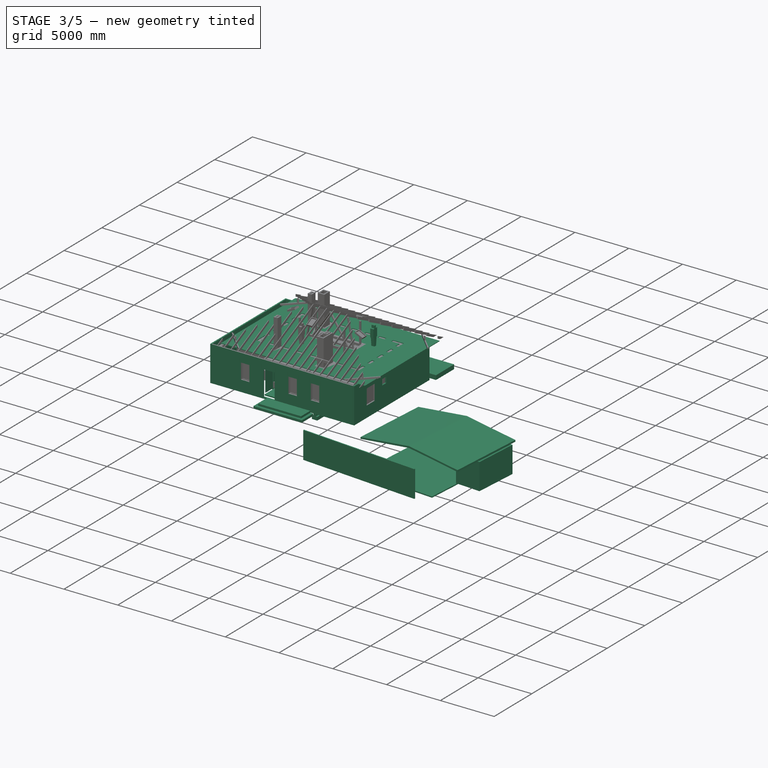
[diagram: stage 3 of 5 — iso view after this stage's code; geometry added in this stage tinted green]
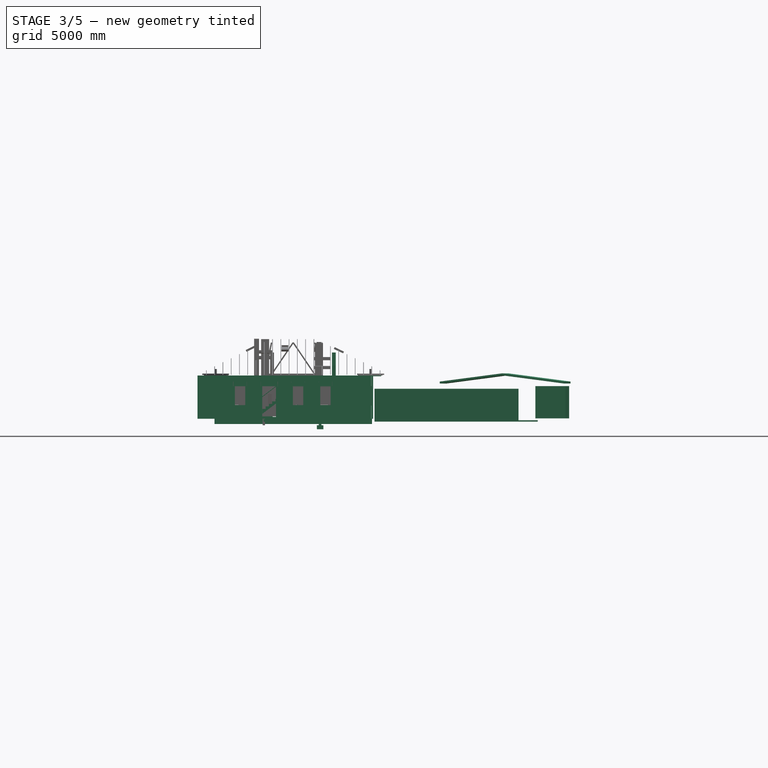
[diagram: stage 3 of 5 — front view after this stage's code; geometry added in this stage tinted green]
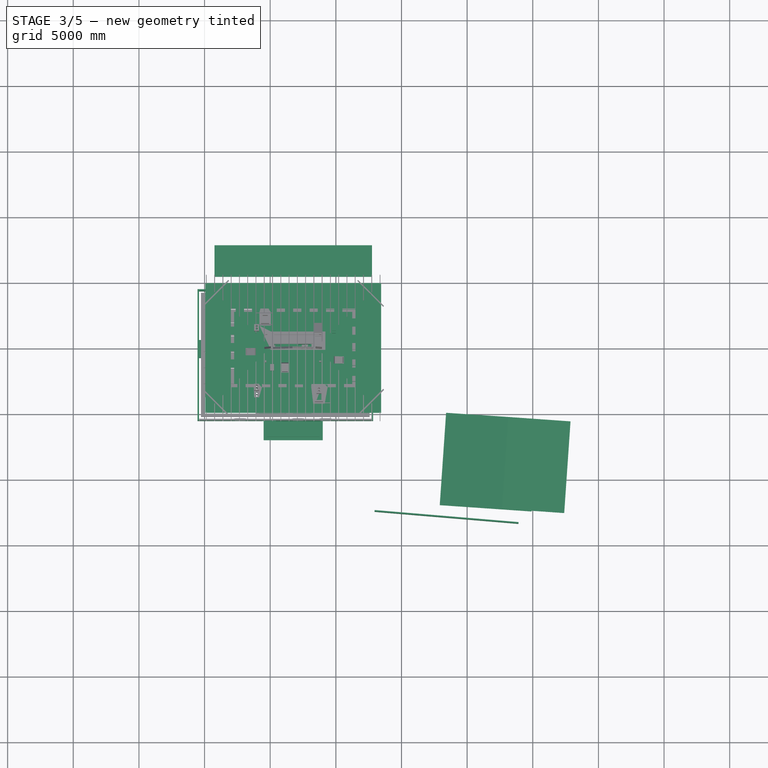
[diagram: stage 3 of 5 — top view after this stage's code; geometry added in this stage tinted green]
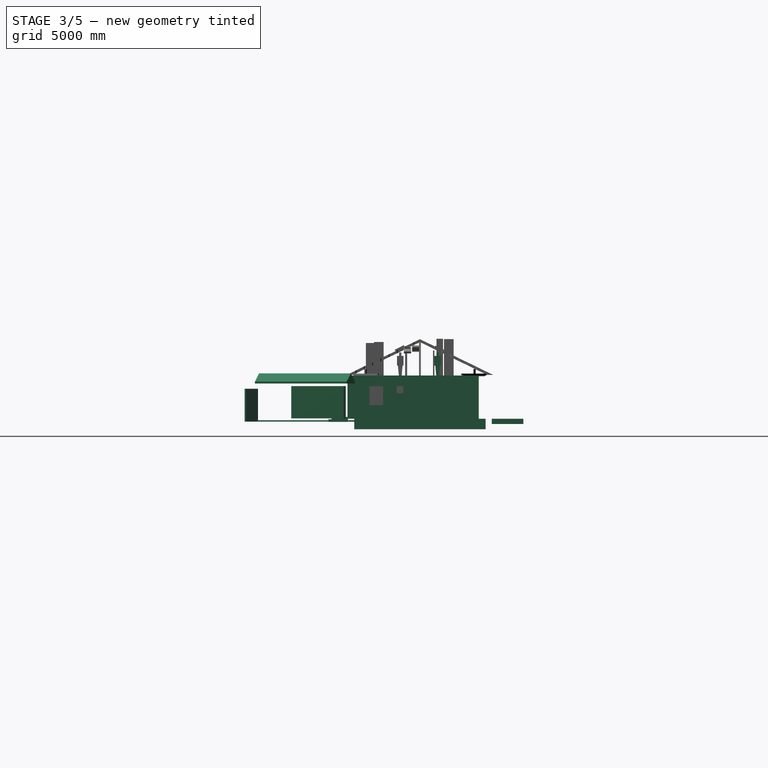
[diagram: stage 3 of 5 — right view after this stage's code; geometry added in this stage tinted green]
FEATURE [App::DocumentObjectGroup] Group115  label="Элементы баня"
  Group = -> [Wire462,Rectangle2373,Rectangle2370,Rectangle2372,Rectangle2368]
FEATURE [Part::FeaturePython] Structure132  label="парковка"  # Arch/BIM object (typed FeaturePython)
  Base = -> Rectangle2365
  FaceMaker = 0
  Height = 100
  HorizontalArea = 4.9e+07
  IfcRole = 0
  Length = 0
  MoveWithHost = false
  Nodes = (2) [(21648.9,-3667.68,0),(21648.9,-3667.68,-100)]
  NodesOffset = 0
  Normal = (0,0,-1)
  PerimeterLength = 28000
  Placement = pos=(0,0,-300) rot=(0,0,1;0rad)
  VerticalArea = 2.8e+06
  Width = 100
FEATURE [App::GeometryPython] BuildingPart032  label="Баня (перевозная)"  # Arch/BIM object (typed FeaturePython)
  Area = 0
  BuildingType = 0
  Group = -> [Wall094,Roof010,Wall096]
  Height = 0
  IfcRole = 11
  LevelOffset = 0
FEATURE [Part::Part2DObjectPython] Wire464  label="мауэрлат003"  # Draft 2D object (typed FeaturePython)
  ChamferSize = 0
  Closed = true
  End = (18397.7,64.633,0)
  FilletRadius = 0
  Length = 33000
  MakeFace = false
  Placement = pos=(25199.8,-4643.63,0) rot=(0,0,-1;1.63959rad)
  Points = (4) [(2770.46,-7109.62,0),(2770.46,2390.38,0),(-4229.54,2390.38,0),(-4229.54,-7109.62,0)]
  Start = (17916.6,-6918.81,0)
  Subdivisions = 0
FEATURE [Part::Part2DObjectPython] Rectangle2375  # Draft 2D object (typed FeaturePython)
  ChamferSize = 0
  Columns = 1
  FilletRadius = 0
  Height = 150
  Length = 800
  MakeFace = true
  Placement = pos=(25395.7,-1800.37,0) rot=(0,0,-1;1.63959rad)
  Rows = 1
FEATURE [Part::Part2DObjectPython] Rectangle2376  # Draft 2D object (typed FeaturePython)
  ChamferSize = 0
  Columns = 1
  FilletRadius = 0
  Height = 150
  Length = 500
  MakeFace = true
  Placement = pos=(25296,-3246.94,0) rot=(0,0,-1;1.63959rad)
  Rows = 1
FEATURE [Part::Part2DObjectPython] Rectangle2377  # Draft 2D object (typed FeaturePython)
  ChamferSize = 0
  Columns = 1
  FilletRadius = 0
  Height = 2300
  Length = 4000
  MakeFace = false
  Placement = pos=(25474.8,-653.093,0) rot=(0,0,-1;1.63959rad)
  Rows = 1
FEATURE [Part::FeaturePython] Roof011  label="Крыша002"  # Arch/BIM object (typed FeaturePython)
  Angles = [90,7.5,90,7.5]
  Base = -> Wire464
  BorderLength = 33163.9
  Face = 0
  Flip = false
  Heights = [0,658.262,0,658.262]
  HorizontalArea = 6.65e+07
  IdRel = [0,0,0,0]
  IfcRole = 111
  MoveWithHost = false
  Overhang = [0,0,0,0]
  PerimeterLength = 33000
  Placement = pos=(0,0,2500) rot=(0,0,1;0rad)
  RidgeLength = 7000
  Runs = [250,5000,250,5000]
  Thickness = [150,150,150,150]
  VerticalArea = 4.99271e+06
FEATURE [Part::FeaturePython] Structure135  label="Structure134"  # Arch/BIM object (typed FeaturePython)
  Base = -> Rectangle2375
  FaceMaker = 0
  Height = 1800
  HorizontalArea = 120000
  IfcRole = 0
  Length = 0
  MoveWithHost = false
  Nodes = (2) [(-35.6948,-25773.1,0),(-35.6948,-25773.1,1800)]
  NodesOffset = 0
  Normal = (0,0,0)
  PerimeterLength = 1900
  VerticalArea = 3.42e+06
  Width = 100
FEATURE [Part::FeaturePython] Structure136  label="Structure135"  # Arch/BIM object (typed FeaturePython)
  Base = -> Rectangle2376
  FaceMaker = 0
  Height = 600
  HorizontalArea = 75000
  IfcRole = 0
  Length = 0
  MoveWithHost = false
  Nodes = (2) [(1351.07,-25965.1,0),(1351.07,-25965.1,600)]
  NodesOffset = 0
  Normal = (0,0,0)
  PerimeterLength = 1300
  Placement = pos=(0,-4e-15,1240) rot=(0,0,1;0rad)
  VerticalArea = 780000
  Width = 100
FEATURE [Part::FeaturePython] Wall097  label="Wall007"  # Arch/BIM object (typed FeaturePython)
  Align = 1
  Base = -> Rectangle2377
  BlockHeight = 0
  BlockLength = 0
  CountBroken = 0
  CountEntire = 0
  Face = 0
  Height = 2450
  HorizontalArea = 1.995e+06
  IfcRole = 156
  Joint = 0
  Length = 12600
  MakeBlocks = false
  MoveWithHost = false
  Normal = (0,0,0)
  OffsetFirst = 0
  OffsetSecond = 0
  PerimeterLength = 12600
  Placement = pos=(0,0,-150) rot=(0,0,1;0rad)
  Subtractions = -> [Structure136,Structure135]
  VerticalArea = 5.604e+07
  Width = 150
FEATURE [App::GeometryPython] BuildingPart033  label="хозблок (бытовка)"  # Arch/BIM object (typed FeaturePython)
  Area = 0
  BuildingType = 0
  Group = -> [Roof011,Wall097,Structure132]
  Height = 0
  IfcRole = 11
  LevelOffset = 0
FEATURE [Part::Part2DObjectPython] Rectangle2378  # Draft 2D object (typed FeaturePython)
  ChamferSize = 0
  Columns = 1
  FilletRadius = 0
  Height = 7000
  Length = 9500
  MakeFace = false
  Placement = pos=(17916.6,-6918.81,0) rot=(0,0,-1;0.068796rad)
  Rows = 1
FEATURE [Part::Part2DObjectPython] Rectangle2379  # Draft 2D object (typed FeaturePython)
  ChamferSize = 0
  Columns = 1
  FilletRadius = 0
  Height = 100
  Length = 5500
  MakeFace = false
  Placement = pos=(18428,-7890.57,0) rot=(0,0,-1;0.083489rad)
  Rows = 1
FEATURE [Part::FeaturePython] Structure137  label="проём ворот"  # Arch/BIM object (typed FeaturePython)
  Base = -> Rectangle2379
  FaceMaker = 0
  Height = 2500
  HorizontalArea = 550000
  IfcRole = 0
  Length = 0
  MoveWithHost = false
  Nodes = (2) [(21172.6,-8270.08,0),(21172.6,-8270.08,2500)]
  NodesOffset = 0
  Normal = (0,0,0)
  PerimeterLength = 11200
  Placement = pos=(0,0,-400) rot=(0,0,1;0rad)
  VerticalArea = 2.8e+07
  Width = 100
FEATURE [Part::FeaturePython] Structure138  label="зона отката ворот ворот"  # Arch/BIM object (typed FeaturePython)
  Base = -> Rectangle2379
  FaceMaker = 0
  Height = 2500
  HorizontalArea = 550000
  IfcRole = 0
  Length = 0
  MoveWithHost = false
  Nodes = (2) [(21172.6,-8270.08,0),(21172.6,-8270.08,2500)]
  NodesOffset = 0
  Normal = (0,0,0)
  PerimeterLength = 11200
  Placement = pos=(-5480.84,458.658,-400) rot=(0,0,1;0rad)
  VerticalArea = 2.8e+07
  Width = 100
FEATURE [Part::Part2DObjectPython] Rectangle2380  # Draft 2D object (typed FeaturePython)
  ChamferSize = 0
  Columns = 1
  FilletRadius = 0
  Height = 50
  Length = 5500
  MakeFace = false
  Placement = pos=(18428,-7890.57,0) rot=(0,0,-1;0.083489rad)
  Rows = 1
FEATURE [Part::FeaturePython] Structure139  label="створка ворот"  # Arch/BIM object (typed FeaturePython)
  Base = -> Rectangle2380
  FaceMaker = 0
  Height = 2500
  HorizontalArea = 275000
  IfcRole = 0
  Length = 0
  MoveWithHost = false
  Nodes = (2) [(21172.6,-8270.08,0),(21172.6,-8270.08,2500)]
  NodesOffset = 0
  Normal = (0,0,0)
  PerimeterLength = 11100
  Placement = pos=(0,0,-400) rot=(0,0,1;0rad)
  VerticalArea = 2.775e+07
  Width = 100
FEATURE [App::GeometryPython] BuildingPart034  label="ворота откатные"  # Arch/BIM object (typed FeaturePython)
  Area = 0
  Group = -> [Structure138,Structure139]
  Height = 0
  IfcRole = 0
  LevelOffset = 0
FEATURE [Sketcher::SketchObject] Sketch250  label="Габарит человека"
  Placement = pos=(0,0,0) rot=(1,0,0;1.5708rad)
  sketch-geometry (21):
    g0: LineSegment [constr] StartX=-250 StartY=0 StartZ=0 EndX=250 EndY=0 EndZ=0
    g1: LineSegment [constr] StartX=250 StartY=0 StartZ=0 EndX=250 EndY=1750 EndZ=0
    g2: LineSegment [constr] StartX=250 StartY=1750 StartZ=0 EndX=-250 EndY=1750 EndZ=0
    g3: LineSegment [constr] StartX=-250 StartY=1750 StartZ=0 EndX=-250 EndY=0 EndZ=0
    g4: LineSegment StartX=85 StartY=1500 StartZ=0 EndX=85 EndY=1750 EndZ=0
    g5: LineSegment StartX=85 StartY=1750 StartZ=0 EndX=-85 EndY=1750 EndZ=0
    g6: LineSegment StartX=-85 StartY=1750 StartZ=0 EndX=-85 EndY=1500 EndZ=0
    g7: LineSegment StartX=250 StartY=750 StartZ=0 EndX=250 EndY=1500 EndZ=0
    g8: LineSegment StartX=-250 StartY=1500 StartZ=0 EndX=-250 EndY=750 EndZ=0
    g9: LineSegment StartX=-110 StartY=0 StartZ=0 EndX=110 EndY=0 EndZ=0
    g10: LineSegment StartX=110 StartY=0 StartZ=0 EndX=175 EndY=750 EndZ=0
    g11: LineSegment StartX=-175 StartY=750 StartZ=0 EndX=-110 EndY=0 EndZ=0
    g12: GeomPoint X=0 Y=750 Z=0
    g13: GeomPoint X=-110 Y=0 Z=0
    g14: GeomPoint X=110 Y=0 Z=0
    g15: GeomPoint X=175 Y=750 Z=0
    g16: GeomPoint X=-175 Y=750 Z=0
    g17: LineSegment StartX=-250 StartY=1500 StartZ=0 EndX=-85 EndY=1500 EndZ=0
    g18: LineSegment StartX=85 StartY=1500 StartZ=0 EndX=250 EndY=1500 EndZ=0
    g19: LineSegment StartX=-250 StartY=750 StartZ=0 EndX=-175 EndY=750 EndZ=0
    g20: LineSegment StartX=175 StartY=750 StartZ=0 EndX=250 EndY=750 EndZ=0
  constraints (50):
    c: Coincident(g0,g1)
    c: Coincident(g1,g2)
    c: Coincident(g2,g3)
    c: Coincident(g3,g0)
    c: Horizontal(g0)
    c: Horizontal(g2)
    c: Vertical(g1)
    c: Vertical(g3)
    c: Symmetric(g0,g0,g-1)
    c: DistanceX(g2,g2) = 500
    c: DistanceY(g1,g1) = 1750
    c: Coincident(g4,g5)
    c: Coincident(g5,g6)
    c: Horizontal(g5)
    c: Vertical(g4)
    c: Vertical(g6)
    c: Vertical(g7)
    c: Vertical(g8)
    c: Coincident(g9,g10)
    c: DistanceX(g5,g5) = 170
    c: DistanceY(g4,g4) = 250
    c: PointOnObject(g4,g2)
    c: Symmetric(g6,g4,g-2)
    c: PointOnObject(g8,g3)
    c: PointOnObject(g7,g1)
    c: Coincident(g9,g11)
    c: DistanceX(g9,g9) = 220
    c: DistanceY(g0,g7) = 750
    c: PointOnObject(g12,g-2)
    c: Coincident(g13,g9)
    c: Coincident(g14,g9)
    c: Symmetric(g13,g14,g-2)
    c: PointOnObject(g14,g0)
    c: Coincident(g15,g10)
    c: Symmetric(g15,g16,g-2)
    c: DistanceX(g16,g15) = 350
    c: Coincident(g17,g8)
    c: Coincident(g17,g6)
    c: Horizontal(g17)
    c: Coincident(g18,g4)
    c: Coincident(g18,g7)
    c: Horizontal(g18)
    c: Coincident(g19,g8)
    c: Coincident(g19,g11)
    c: Horizontal(g19)
    c: Coincident(g20,g10)
    c: Coincident(g20,g7)
    c: Horizontal(g20)
    c: Equal(g19,g20)
    c: Equal(g11,g10)
FEATURE [Part::Extrusion] Extrude007  label="Габарит человека 001"
  Base = -> Sketch250
  Dir = (0,-1,2e-16)
  DirMode = 2
  FaceMakerClass = Part::FaceMakerBullseye
  LengthFwd = 290
  LengthRev = 0
  Placement = pos=(9704.56,6349.25,3110) rot=(0,0,1;1.5708rad)
  Solid = true
  Symmetric = false
FEATURE [Part::Extrusion] Extrude008  label="Габарит человека 002"
  Base = -> Sketch250
  Dir = (0,-1,2e-16)
  DirMode = 2
  FaceMakerClass = Part::FaceMakerBullseye
  LengthFwd = 290
  LengthRev = 0
  Placement = pos=(6302.6,8800.29,0) rot=(0,0,1;0rad)
  Solid = true
  Symmetric = false
FEATURE [Part::Part2DObjectPython] Rectangle2381  # Draft 2D object (typed FeaturePython)
  ChamferSize = 0
  Columns = 1
  FilletRadius = 0
  Height = 1250
  Length = 4000
  MakeFace = false
  Placement = pos=(4750,-1725,0) rot=(0,0,1;0rad)
  Rows = 1
FEATURE [Part::FeaturePython] Structure140  label="габарит крыльца001"  # Arch/BIM object (typed FeaturePython)
  Base = -> Rectangle2381
  FaceMaker = 0
  Height = 200
  HorizontalArea = 5e+06
  IfcRole = 0
  Length = 0
  MoveWithHost = false
  Nodes = (2) [(5975,-1250,0),(5975,-1250,-350)]
  NodesOffset = 0
  Normal = (0,0,-1)
  PerimeterLength = 10500
  Placement = pos=(0,0,-40) rot=(0,0,1;0rad)
  VerticalArea = 2.1e+06
  Width = 100
FEATURE [Part::FeaturePython] Structure029  label="габарит крыльца"  # Arch/BIM object (typed FeaturePython)
  Additions = -> [Structure140]
  Base = -> Rectangle2234
  FaceMaker = 0
  Height = 200
  HorizontalArea = 6750000
  IfcRole = 0
  Length = 0
  MoveWithHost = false
  Nodes = (2) [(5975,-1250,0),(5975,-1250,-350)]
  NodesOffset = 0
  Normal = (0,0,-1)
  PerimeterLength = 9000
  Placement = pos=(0,0,-220) rot=(0,0,1;0rad)
  VerticalArea = 4290000
  Width = 100
FEATURE [Part::Part2DObjectPython] Line1119  # Draft 2D object (typed FeaturePython)
  ChamferSize = 0
  Closed = false
  End = (28578.1,-8689.8,0)
  FilletRadius = 0
  Length = 85.5324
  MakeFace = true
  Placement = pos=(28492.8,-8682.66,0) rot=(0,0,1;0rad)
  Points = (2) [(0,0,0),(85.2344,-7.13275,0)]
  Start = (28492.8,-8682.66,0)
  Subdivisions = 0
FEATURE [Part::Part2DObjectPython] Line1120  # Draft 2D object (typed FeaturePython)
  ChamferSize = 0
  Closed = false
  End = (-5669.15,-8573.08,0)
  FilletRadius = 0
  Length = 198.212
  MakeFace = true
  Placement = pos=(-5473.19,-8543.29,0) rot=(0,0,1;0rad)
  Points = (2) [(0,0,0),(-195.961,-29.787,0)]
  Start = (-5473.19,-8543.29,0)
  Subdivisions = 0
FEATURE [Part::FeaturePython] Wall099  label="опорный ряд ГБ"  # Arch/BIM object (typed FeaturePython)
  Align = 1
  Base = -> Rectangle2286
  BlockHeight = 200
  BlockLength = 625
  CountBroken = 4
  CountEntire = 17
  Face = 0
  Height = 200
  HorizontalArea = 5.778e+06
  IfcRole = 156
  Joint = 625
  Length = 29000
  MakeBlocks = true
  MoveWithHost = false
  Normal = (0,0,-1)
  OffsetFirst = 250
  OffsetSecond = 0
  PerimeterLength = 55500
  Subtractions = -> [Structure037]
  VerticalArea = 11716000
  Width = 250
FEATURE [Part::Part2DObjectPython] Rectangle2382  label="террасса"  # Draft 2D object (typed FeaturePython)
  ChamferSize = 0
  Columns = 1
  FilletRadius = 0
  Height = 2400
  Length = 12000
  MakeFace = false
  Placement = pos=(755,10475,0) rot=(0,0,1;0rad)
  Rows = 1
FEATURE [Part::FeaturePython] Structure028  label="габарит терассы"  # Arch/BIM object (typed FeaturePython)
  Base = -> Rectangle2382
  FaceMaker = 0
  Height = 400
  HorizontalArea = 28800000
  IfcRole = 0
  Length = 0
  MoveWithHost = false
  Nodes = (2) [(6755,9400,0),(6755,9400,-400)]
  NodesOffset = 0
  Normal = (0,0,-1)
  PerimeterLength = 28800
  Placement = pos=(0,0,-180) rot=(0,0,1;0rad)
  VerticalArea = 11520000
  Width = 100
FEATURE [App::GeometryPython] BuildingPart035  label="Внешние элементы"  # Arch/BIM object (typed FeaturePython)
  Area = 0
  Group = -> [Structure028,Structure029]
  Height = 0
  IfcRole = 0
  LevelOffset = 0
FEATURE [Image::ImagePlane] ImagePlane  label="План участка"
  Placement = pos=(6252.32,18787.3,-450) rot=(0,0,1;3.14159rad)
  XSize = 103541
  YSize = 98696.8
FEATURE [Part::Part2DObjectPython] Rectangle2383  label="Д80-008"  # Draft 2D object (typed FeaturePython)
  ChamferSize = 0
  Columns = 1
  FilletRadius = 0
  Height = 800
  Length = 100
  MakeFace = true
  Placement = pos=(10100,5050,0) rot=(0,0,1;0rad)
  Rows = 1
FEATURE [Part::Part2DObjectPython] Line1123  # Draft 2D object (typed FeaturePython)
  ChamferSize = 0
  Closed = false
  End = (10700,2660,0)
  FilletRadius = 0
  Length = 1620
  MakeFace = false
  Placement = pos=(12400,2660,0) rot=(0,0,-1;1.5708rad)
  Points = (2) [(-6.36646e-12,-80,0),(0,-1700,0)]
  Start = (12320,2660,0)
  Subdivisions = 0
FEATURE [Part::FeaturePython] Wall100  label="перегородка 038"  # Arch/BIM object (typed FeaturePython)
  Align = 1
  Base = -> Line1123
  BlockHeight = 250
  BlockLength = 625
  CountBroken = 16
  CountEntire = 22
  Face = 0
  Height = 2750
  HorizontalArea = 162000
  IfcRole = 156
  Joint = 0
  Length = 1620
  MakeBlocks = false
  MoveWithHost = false
  Normal = (0,0,0)
  OffsetFirst = 0
  OffsetSecond = 300
  PerimeterLength = 3440
  VerticalArea = 9460000
  Width = 100
FEATURE [Sketcher::SketchObject] Sketch251
  Placement = pos=(3900,160,-180) rot=(0.57735,0.57735,0.57735;2.0944rad)
  sketch-geometry (8):
    g0: LineSegment StartX=0 StartY=0 StartZ=0 EndX=900 EndY=0 EndZ=0
    g1: LineSegment StartX=900 StartY=0 StartZ=0 EndX=900 EndY=2070 EndZ=0
    g2: LineSegment StartX=900 StartY=2070 StartZ=0 EndX=0 EndY=2070 EndZ=0
    g3: LineSegment StartX=0 StartY=2070 StartZ=0 EndX=0 EndY=0 EndZ=0
    g4: LineSegment StartX=50 StartY=0 StartZ=0 EndX=850 EndY=0 EndZ=0
    g5: LineSegment StartX=850 StartY=0 StartZ=0 EndX=850 EndY=2020 EndZ=0
    g6: LineSegment StartX=850 StartY=2020 StartZ=0 EndX=50 EndY=2020 EndZ=0
    g7: LineSegment StartX=50 StartY=2020 StartZ=0 EndX=50 EndY=0 EndZ=0
  constraints (23):
    c: Coincident(g0,g1)
    c: Coincident(g1,g2)
    c: Coincident(g2,g3)
    c: Coincident(g3,g0)
    c: Horizontal(g0)
    c: Horizontal(g2)
    c: Vertical(g1)
    c: Vertical(g3)
    c: Coincident(g4,g5)
    c: Coincident(g5,g6)
    c: Coincident(g6,g7)
    c: Coincident(g7,g4)
    c: Horizontal(g4)
    c: Horizontal(g6)
    c: Vertical(g5)
    c: Vertical(g7)
    c: DistanceY(g1) = 2070  'Height'
    c: DistanceX(g0) = 900  'Width'
    c: DistanceY(g6,g2) = 50  'Frame1'
    c: DistanceX(g2,g6) = 50  'Frame2'
    c: DistanceX(g4,g0) = 50  'Frame3'
    c: DistanceY(g0,g4) = 0
    c: Coincident(g0,g-1)
FEATURE [Part::FeaturePython] Window021  label="Д-90-008"  # Arch/BIM object (typed FeaturePython)
  Area = 1863000
  Base = -> Sketch251
  Frame = 50
  Height = 2070
  HoleDepth = 0
  HoleWire = 0
  HorizontalArea = 0
  IfcRole = 42
  LouvreSpacing = 0
  LouvreWidth = 0
  MoveWithHost = true
  Normal = (1,0,0)
  Offset = 200
  Opening = 0
  PerimeterLength = 0
  Placement = pos=(0,0,180) rot=(0,0,1;0rad)
  Preset = 6
  SymbolElevation = false
  SymbolPlan = false
  VerticalArea = 0
  Width = 900
  WindowParts = OuterFrame | Frame | Wire0,Wire1 | 0.0+V | 0.00+V | Door | Solid panel | Wire1 | 50.0 | 0.0+V
FEATURE [Part::Part2DObjectPython] Rectangle2469  # Draft 2D object (typed FeaturePython)
  ChamferSize = 0
  Columns = 1
  FilletRadius = 0
  Height = 600
  Length = 3900
  MakeFace = false
  Placement = pos=(4800,6100,0) rot=(0,0,1;0rad)
  Rows = 1
FEATURE [Part::Feature] ShapeString  label="надпись 126"
  Placement = pos=(5180.03,6304.95,0) rot=(0,0,1;0rad)
  shape: bbox 140.3 x 188.9 x 2e-07 mm, 1 faces, 0 solids (baked)
FEATURE [Part::Part2DObjectPython] Rectangle2473  label="Кабинет 01"  # Draft 2D object (typed FeaturePython)
  ChamferSize = 0
  Columns = 1
  FilletRadius = 0
  Height = 3000
  Length = 4600
  MakeFace = false
  Placement = pos=(0,-3.638e-12,0) rot=(0,0,1;0rad)
  Rows = 1
FEATURE [Part::Part2DObjectPython] Line1149  label="Line1150"  # Draft 2D object (typed FeaturePython)
  ChamferSize = 0
  Closed = false
  End = (8800,-1000,0)
  FilletRadius = 0
  Length = 12000
  MakeFace = false
  Placement = pos=(8800,5450,0) rot=(0,0,1;0rad)
  Points = (2) [(0,5550,0),(0,-6450,0)]
  Start = (8800,11000,0)
  Subdivisions = 0
FEATURE [Part::Part2DObjectPython] Line1150  label="Line1151"  # Draft 2D object (typed FeaturePython)
  ChamferSize = 0
  Closed = false
  End = (8700,10000,0)
  FilletRadius = 0
  Length = 4950
  MakeFace = false
  Placement = pos=(8700,5550,0) rot=(0,0,1;0rad)
  Points = (2) [(0,-500,0),(0,4450,0)]
  Start = (8700,5050,0)
  Subdivisions = 0
FEATURE [Part::Part2DObjectPython] Line1151  label="Line1152"  # Draft 2D object (typed FeaturePython)
  ChamferSize = 0
  Closed = false
  End = (8700,9.095e-13,0)
  FilletRadius = 0
  Length = 4150
  MakeFace = false
  Placement = pos=(8700,4150,0) rot=(0,0,1;0rad)
  Points = (2) [(0,0,0),(0,-4150,0)]
  Start = (8700,4150,0)
  Subdivisions = 0
FEATURE [Part::Part2DObjectPython] Rectangle2481  # Draft 2D object (typed FeaturePython)
  ChamferSize = 0
  Columns = 1
  FilletRadius = 0
  Height = 600
  Length = 200
  MakeFace = false
  Placement = pos=(4600,9400,0) rot=(0,0,1;0rad)
  Rows = 1
FEATURE [Part::Part2DObjectPython] Rectangle2482  label="Д90-012"  # Draft 2D object (typed FeaturePython)
  ChamferSize = 0
  Columns = 1
  FilletRadius = 0
  Height = 200
  Length = 900
  MakeFace = true
  Placement = pos=(4800,1950,0) rot=(0,0,1;1.5708rad)
  Rows = 1
FEATURE [Part::Part2DObjectPython] Line1154  label="Line1155"  # Draft 2D object (typed FeaturePython)
  ChamferSize = 0
  Closed = false
  End = (4700,-1000,0)
  FilletRadius = 0
  Length = 12000
  MakeFace = false
  Placement = pos=(4700,5450,0) rot=(0,0,1;0rad)
  Points = (2) [(0,5550,0),(0,-6450,0)]
  Start = (4700,11000,0)
  Subdivisions = 0
FEATURE [Part::Part2DObjectPython] Rectangle2487  # Draft 2D object (typed FeaturePython)
  ChamferSize = 0
  Columns = 1
  FilletRadius = 0
  Height = 900
  Length = 4250
  MakeFace = false
  Placement = pos=(4450,5100,0) rot=(0,0,1;0rad)
  Rows = 1
FEATURE [Part::Part2DObjectPython] Line1155  label="Line1156"  # Draft 2D object (typed FeaturePython)
  ChamferSize = 0
  Closed = false
  End = (7800,5600,0)
  FilletRadius = 0
  Length = 2700
  MakeFace = false
  Placement = pos=(5100,5600,0) rot=(0,0,1;0rad)
  Points = (2) [(0,0,0),(2700,0,0)]
  Start = (5100,5600,0)
  Subdivisions = 0
FEATURE [Part::Part2DObjectPython] Polygon002  # Draft 2D object (typed FeaturePython)
  ChamferSize = 0
  DrawMode = 0
  FacesNumber = 3
  FilletRadius = 0
  MakeFace = false
  Placement = pos=(7800,5600,0) rot=(0,0,1;0rad)
  Radius = 141.421
FEATURE [Part::Part2DObjectPython] Rectangle2488  # Draft 2D object (typed FeaturePython)
  ChamferSize = 0
  Columns = 1
  FilletRadius = 0
  Height = 0
  Length = 200
  MakeFace = false
  Placement = pos=(4600,7000,0) rot=(0,0,1;0rad)
  Rows = 1
FEATURE [Part::Part2DObjectPython] Rectangle2493  # Draft 2D object (typed FeaturePython)
  ChamferSize = 0
  Columns = 1
  FilletRadius = 0
  Height = 1600
  Length = 200
  MakeFace = false
  Placement = pos=(4600,6000,0) rot=(0,0,1;0rad)
  Rows = 1
FEATURE [Part::Part2DObjectPython] Rectangle2496  # Draft 2D object (typed FeaturePython)
  ChamferSize = 0
  Columns = 1
  FilletRadius = 0
  Height = 1800
  Length = 300
  MakeFace = false
  Placement = pos=(710,3450,0) rot=(0,0,-1;1.5708rad)
  Rows = 1
FEATURE [Part::Part2DObjectPython] Rectangle2497  # Draft 2D object (typed FeaturePython)
  ChamferSize = 0
  Columns = 1
  FilletRadius = 0
  Height = 1500
  Length = 100
  MakeFace = false
  Placement = pos=(860,3350,0) rot=(0,0,-1;1.5708rad)
  Rows = 1
FEATURE [Part::Part2DObjectPython] Rectangle2498  # Draft 2D object (typed FeaturePython)
  ChamferSize = 0
  Columns = 1
  FilletRadius = 50
  Height = 900
  Length = 900
  MakeFace = false
  Placement = pos=(1900,6100,0) rot=(0,0,-1;1.5708rad)
  Rows = 1
FEATURE [Part::Part2DObjectPython] Rectangle2499  # Draft 2D object (typed FeaturePython)
  ChamferSize = 0
  Columns = 1
  FilletRadius = 50
  Height = 900
  Length = 900
  MakeFace = false
  Placement = pos=(1000,6100,0) rot=(0,0,-1;1.5708rad)
  Rows = 1
FEATURE [Part::Part2DObjectPython] Rectangle2500  # Draft 2D object (typed FeaturePython)
  ChamferSize = 0
  Columns = 1
  FilletRadius = 50
  Height = 900
  Length = 900
  MakeFace = false
  Placement = pos=(100,5200,0) rot=(0,0,-1;1.5708rad)
  Rows = 1
FEATURE [Part::Part2DObjectPython] Rectangle2501  # Draft 2D object (typed FeaturePython)
  ChamferSize = 0
  Columns = 1
  FilletRadius = 0
  Height = 3700
  Length = 200
  MakeFace = false
  Placement = pos=(4600,-3.638e-12,0) rot=(0,0,1;0rad)
  Rows = 1
FEATURE [Part::Part2DObjectPython] Line1158  label="Line1159"  # Draft 2D object (typed FeaturePython)
  ChamferSize = 0
  Closed = false
  End = (4600,3100,0)
  FilletRadius = 0
  Length = 4600
  MakeFace = false
  Placement = pos=(-100,3100,0) rot=(0,0,1;0rad)
  Points = (2) [(100,-1.81899e-12,0),(4700,0,0)]
  Start = (0,3100,0)
  Subdivisions = 0
FEATURE [Part::Part2DObjectPython] Rectangle2502  # Draft 2D object (typed FeaturePython)
  ChamferSize = 0
  Columns = 1
  FilletRadius = 50
  Height = 900
  Length = 800
  MakeFace = false
  Placement = pos=(983.306,8469.31,0) rot=(0,0,1;0.788807rad)
  Rows = 1
FEATURE [Part::Part2DObjectPython] Rectangle2503  # Draft 2D object (typed FeaturePython)
  ChamferSize = 0
  Columns = 1
  FilletRadius = 0
  Height = 700
  Length = 500
  MakeFace = false
  Placement = pos=(1089.01,8575.74,0) rot=(0,0,1;0.788807rad)
  Rows = 1
FEATURE [Part::Part2DObjectPython] Rectangle2504  # Draft 2D object (typed FeaturePython)
  ChamferSize = 0
  Columns = 1
  FilletRadius = 50
  Height = 900
  Length = 800
  MakeFace = false
  Placement = pos=(1547.91,7257.28,0) rot=(0,0,1;2.3596rad)
  Rows = 1
FEATURE [Part::Part2DObjectPython] Rectangle2505  # Draft 2D object (typed FeaturePython)
  ChamferSize = 0
  Columns = 1
  FilletRadius = 0
  Height = 700
  Length = 500
  MakeFace = false
  Placement = pos=(1341.49,7262.98,0) rot=(0,0,1;2.3596rad)
  Rows = 1
FEATURE [Part::Part2DObjectPython] Rectangle2510  # Draft 2D object (typed FeaturePython)
  ChamferSize = 0
  Columns = 1
  FilletRadius = 200
  Height = 1000
  Length = 1000
  MakeFace = false
  Placement = pos=(1900,7400,0) rot=(0,0,1;0.785398rad)
  Rows = 1
FEATURE [Part::Part2DObjectPython] Rectangle2511  label="Каминокомплект «Лира 600» + «Эльба 609»"  # Draft 2D object (typed FeaturePython)
  ChamferSize = 0
  Columns = 1
  FilletRadius = 0
  Height = 1000
  Length = 550
  MakeFace = false
  Placement = pos=(3875,6600,0) rot=(0,0,1;0rad)
  Rows = 1
FEATURE [Part::Part2DObjectPython] Rectangle2512  # Draft 2D object (typed FeaturePython)
  ChamferSize = 0
  Columns = 1
  FilletRadius = 0
  Height = 500
  Length = 300
  MakeFace = false
  Placement = pos=(4125,6850,0) rot=(0,0,1;0rad)
  Rows = 1
FEATURE [Part::Part2DObjectPython] Line1159  label="Line1160"  # Draft 2D object (typed FeaturePython)
  ChamferSize = 0
  Closed = false
  End = (4600,2850,0)
  FilletRadius = 0
  Length = 900
  MakeFace = false
  Placement = pos=(3700,2850,0) rot=(0,0,1;1.5708rad)
  Points = (2) [(0,0,0),(3.18323e-12,-900,0)]
  Start = (3700,2850,0)
  Subdivisions = 0
FEATURE [Part::Part2DObjectPython] Arc072  label="Arc073"  # Draft 2D object (typed FeaturePython)
  FirstAngle = -180
  LastAngle = -90
  MakeFace = false
  Placement = pos=(4600,2850,0) rot=(0,0,1;0rad)
  Radius = 900
FEATURE [Part::Part2DObjectPython] Rectangle2514  # Draft 2D object (typed FeaturePython)
  ChamferSize = 0
  Columns = 1
  FilletRadius = 50
  Height = 900
  Length = 900
  MakeFace = false
  Placement = pos=(100,6100,0) rot=(0,0,-1;1.5708rad)
  Rows = 1
FEATURE [Part::Part2DObjectPython] Wire503  # Draft 2D object (typed FeaturePython)
  ChamferSize = 0
  Closed = false
  End = (6250,1800,0)
  FilletRadius = 0
  Length = 3148.53
  MakeFace = true
  Placement = pos=(6200,2400,0) rot=(0,0,1;0rad)
  Points = (6) [(550,0,0),(0,0,0),(0,-600,0),(600,0,0),(600,-600,0),(50,-600,0)]
  Start = (6750,2400,0)
  Subdivisions = 0
FEATURE [Part::Part2DObjectPython] Wire504  # Draft 2D object (typed FeaturePython)
  ChamferSize = 0
  Closed = false
  End = (6250,2400,0)
  FilletRadius = 0
  Length = 3148.53
  MakeFace = true
  Placement = pos=(6200,3000,0) rot=(0,0,1;0rad)
  Points = (6) [(550,0,0),(0,0,0),(0,-600,0),(600,0,0),(600,-600,0),(50,-600,0)]
  Start = (6750,3000,0)
  Subdivisions = 0
FEATURE [Part::Part2DObjectPython] Wire505  # Draft 2D object (typed FeaturePython)
  ChamferSize = 0
  Closed = false
  End = (6250,3000,0)
  FilletRadius = 0
  Length = 3148.53
  MakeFace = true
  Placement = pos=(6200,3600,0) rot=(0,0,1;0rad)
  Points = (6) [(550,0,0),(0,0,0),(0,-600,0),(600,0,0),(600,-600,0),(50,-600,0)]
  Start = (6750,3600,0)
  Subdivisions = 0
FEATURE [Part::Part2DObjectPython] Rectangle2519  label="Прихожая"  # Draft 2D object (typed FeaturePython)
  ChamferSize = 0
  Columns = 1
  FilletRadius = 0
  Height = 1700
  Length = 2200
  MakeFace = false
  Placement = pos=(4800,-1.592e-12,0) rot=(0,0,1;0rad)
  Rows = 1
FEATURE [Part::Part2DObjectPython] Line1161  label="Line1162"  # Draft 2D object (typed FeaturePython)
  ChamferSize = 0
  Closed = false
  End = (6800,1800,0)
  FilletRadius = 0
  Length = 2000
  MakeFace = false
  Placement = pos=(4800,1800,0) rot=(0,0,1;0rad)
  Points = (2) [(0,0,0),(2000,1.81899e-12,0)]
  Start = (4800,1800,0)
  Subdivisions = 0
FEATURE [Part::Part2DObjectPython] Rectangle2522  label="Д100-004"  # Draft 2D object (typed FeaturePython)
  ChamferSize = 0
  Columns = 1
  FilletRadius = 0
  Height = 100
  Length = 1000
  MakeFace = true
  Placement = pos=(5100,1700,0) rot=(0,0,1;0rad)
  Rows = 1
FEATURE [Part::Part2DObjectPython] Line1162  label="Line1163"  # Draft 2D object (typed FeaturePython)
  ChamferSize = 0
  Closed = false
  End = (6100,2800,0)
  FilletRadius = 0
  Length = 1000
  MakeFace = false
  Placement = pos=(6100,1800,0) rot=(0,0,1;0rad)
  Points = (2) [(0,0,0),(0,1000,0)]
  Start = (6100,1800,0)
  Subdivisions = 0
FEATURE [Part::Part2DObjectPython] Arc073  label="Arc074"  # Draft 2D object (typed FeaturePython)
  FirstAngle = 90
  LastAngle = 180
  MakeFace = false
  Placement = pos=(6100,1800,0) rot=(0,0,1;0rad)
  Radius = 1000
FEATURE [Part::Part2DObjectPython] Rectangle2524  # Draft 2D object (typed FeaturePython)
  ChamferSize = 0
  Columns = 1
  FilletRadius = 0
  Height = 1600
  Length = 300
  MakeFace = false
  Placement = pos=(4800,50,0) rot=(0,0,1;0rad)
  Rows = 1
FEATURE [Part::Part2DObjectPython] Rectangle2528  label="Спальня 01"  # Draft 2D object (typed FeaturePython)
  ChamferSize = 0
  Columns = 1
  FilletRadius = 0
  Height = 3900
  Length = 4600
  MakeFace = false
  Placement = pos=(8900,6100,0) rot=(0,0,1;0rad)
  Rows = 1
FEATURE [Part::Part2DObjectPython] Rectangle2442  # Draft 2D object (typed FeaturePython)
  ChamferSize = 0
  Columns = 1
  FilletRadius = 0
  Height = 600
  Length = 600
  MakeFace = false
  Placement = pos=(12900,9400,0) rot=(0,0,1;0rad)
  Rows = 1
FEATURE [Part::Part2DObjectPython] Wire511  # Draft 2D object (typed FeaturePython)
  ChamferSize = 0
  Closed = false
  End = (12950,7300,0)
  FilletRadius = 0
  Length = 2370.82
  MakeFace = true
  Placement = pos=(12900,7600,0) rot=(0,0,1;0rad)
  Points = (6) [(550,0,0),(0,0,0),(0,-300,0),(600,0,0),(600,-300,0),(50,-300,0)]
  Start = (13450,7600,0)
  Subdivisions = 0
FEATURE [Part::Part2DObjectPython] Rectangle2529  # Draft 2D object (typed FeaturePython)
  ChamferSize = 0
  Columns = 1
  FilletRadius = 50
  Height = 900
  Length = 800
  MakeFace = false
  Placement = pos=(2179.45,9000.67,0) rot=(0,0,-1;0.781989rad)
  Rows = 1
FEATURE [Part::Part2DObjectPython] Rectangle2530  # Draft 2D object (typed FeaturePython)
  ChamferSize = 0
  Columns = 1
  FilletRadius = 0
  Height = 700
  Length = 500
  MakeFace = false
  Placement = pos=(2285.88,8894.97,0) rot=(0,0,-1;0.781989rad)
  Rows = 1
FEATURE [Part::Part2DObjectPython] Line1166  label="Line1167"  # Draft 2D object (typed FeaturePython)
  ChamferSize = 0
  Closed = false
  End = (5275,-1200,0)
  FilletRadius = 0
  Length = 1000
  MakeFace = false
  Placement = pos=(5275,-200,0) rot=(0,0,1;0rad)
  Points = (2) [(0,0,0),(0,-1000,0)]
  Start = (5275,-200,0)
  Subdivisions = 0
FEATURE [Part::Part2DObjectPython] Arc076  label="Arc077"  # Draft 2D object (typed FeaturePython)
  FirstAngle = -90
  LastAngle = 0
  MakeFace = false
  Placement = pos=(5275,-200,0) rot=(0,0,1;0rad)
  Radius = 1000
FEATURE [Part::Part2DObjectPython] Rectangle2533  # Draft 2D object (typed FeaturePython)
  ChamferSize = 0
  Columns = 1
  FilletRadius = 0
  Height = 900
  Length = 250
  MakeFace = false
  Placement = pos=(4450,5100,0) rot=(0,0,1;0rad)
  Rows = 1
FEATURE [Part::FeaturePython] Array018  # Draft array (typed FeaturePython)
  Angle = 360
  ArrayType = 0
  Axis = (0,0,1)
  Base = -> Rectangle2533
  Center = (0,0,0)
  Fuse = false
  IntervalAxis = (0,0,0)
  IntervalX = (250,0,0)
  IntervalY = (0,1,0)
  IntervalZ = (0,0,1)
  NumberPolar = 1
  NumberX = 17
  NumberY = 1
  NumberZ = 1
FEATURE [Part::Part2DObjectPython] Wire515  # Draft 2D object (typed FeaturePython)
  ChamferSize = 0
  Closed = false
  End = (50,3100,0)
  FilletRadius = 0
  Length = 3148.53
  MakeFace = true
  Placement = pos=(0,3700,0) rot=(0,0,1;0rad)
  Points = (6) [(550,0,0),(0,0,0),(0,-600,0),(600,0,0),(600,-600,0),(50,-600,0)]
  Start = (550,3700,0)
  Subdivisions = 0
FEATURE [Part::Part2DObjectPython] Wire516  # Draft 2D object (typed FeaturePython)
  ChamferSize = 0
  Closed = false
  End = (8700,3700,0)
  FilletRadius = 0
  Length = 2600
  MakeFace = true
  Placement = pos=(6200,3600,0) rot=(0,0,1;0rad)
  Points = (3) [(0,0,0),(0,100,0),(2500,100,0)]
  Start = (6200,3600,0)
  Subdivisions = 0
FEATURE [Part::Part2DObjectPython] Wire517  # Draft 2D object (typed FeaturePython)
  ChamferSize = 0
  Closed = true
  End = (6900,1800,0)
  FilletRadius = 0
  Length = 10800
  MakeFace = false
  Placement = pos=(6900,3600,0) rot=(0,0,1;0rad)
  Points = (7) [(0,0,0),(1800,0,0),(1800,0,0),(1800,-3600,0),(200,-3600,0),(200,-1800,0),(0,-1800,0)]
  Start = (6900,3600,0)
  Subdivisions = 0
FEATURE [Part::Part2DObjectPython] Line1170  label="Line1183"  # Draft 2D object (typed FeaturePython)
  ChamferSize = 0
  Closed = false
  End = (8000,4500,0)
  FilletRadius = 0
  Length = 800
  MakeFace = true
  Placement = pos=(8000,3700,0) rot=(0,0,1;0rad)
  Points = (2) [(0,0,0),(0,800,0)]
  Start = (8000,3700,0)
  Subdivisions = 0
FEATURE [Part::Part2DObjectPython] Arc077  label="Arc078"  # Draft 2D object (typed FeaturePython)
  FirstAngle = 90
  LastAngle = 180
  MakeFace = true
  Placement = pos=(8000,3700,0) rot=(0,0,1;0rad)
  Radius = 800
FEATURE [Part::Part2DObjectPython] Rectangle2534  label="Д80-006"  # Draft 2D object (typed FeaturePython)
  ChamferSize = 0
  Columns = 1
  FilletRadius = 0
  Height = 100
  Length = 800
  MakeFace = true
  Placement = pos=(7200,3600,0) rot=(0,0,1;0rad)
  Rows = 1
FEATURE [Part::Part2DObjectPython] Rectangle2535  label="Rectangle2534"  # Draft 2D object (typed FeaturePython)
  ChamferSize = 0
  Columns = 1
  FilletRadius = 0
  Height = 1100
  Length = 300
  MakeFace = false
  Placement = pos=(6900,2450,0) rot=(0,0,1;0rad)
  Rows = 1
FEATURE [Part::Part2DObjectPython] Rectangle2537  # Draft 2D object (typed FeaturePython)
  ChamferSize = 0
  Columns = 1
  FilletRadius = 50
  Height = 1250
  Length = 600
  MakeFace = false
  Placement = pos=(6350,400,0) rot=(0,0,1;0rad)
  Rows = 1
FEATURE [Part::Part2DObjectPython] Rectangle2538  # Draft 2D object (typed FeaturePython)
  ChamferSize = 0
  Columns = 1
  FilletRadius = 0
  Height = 950
  Length = 450
  MakeFace = false
  Placement = pos=(6350,550,0) rot=(0,0,1;0rad)
  Rows = 1
FEATURE [Part::Part2DObjectPython] Rectangle2539  # Draft 2D object (typed FeaturePython)
  ChamferSize = 0
  Columns = 1
  FilletRadius = 0
  Height = 600
  Length = 400
  MakeFace = false
  Placement = pos=(6900,1800,0) rot=(0,0,1;0rad)
  Rows = 1
FEATURE [Part::Feature] Ellipse050  label="Ellipse053"
  Placement = pos=(7100,2100,0) rot=(0,0,1;1.5708rad)
  shape: bbox 200 x 400 x 2e-07 mm, 0 faces, 0 solids (baked)
FEATURE [Part::Part2DObjectPython] ShapeString124  label="надпись 127"  # Draft 2D object (typed FeaturePython)
  FontFile = <path>
  Placement = pos=(8260.44,2631.82,0) rot=(0,0,1;0rad)
  Size = 200
  String = MK
  Tracking = 0
FEATURE [Part::Part2DObjectPython] Wire519  # Draft 2D object (typed FeaturePython)
  ChamferSize = 0
  Closed = false
  End = (6900,2450,0)
  FilletRadius = 0
  Length = 1553
  MakeFace = false
  Placement = pos=(7200,3550,0) rot=(0,0,1;0rad)
  Points = (4) [(0,0,0),(-300,-550,0),(0,-550,0),(-300,-1100,0)]
  Start = (7200,3550,0)
  Subdivisions = 0
FEATURE [Part::Part2DObjectPython] Wire520  # Draft 2D object (typed FeaturePython)
  ChamferSize = 0
  Closed = false
  End = (4800,50,0)
  FilletRadius = 0
  Length = 2008.8
  MakeFace = false
  Placement = pos=(5100,1650,0) rot=(0,0,1;0rad)
  Points = (4) [(0,0,0),(-300,-800,0),(0,-800,0),(-300,-1600,0)]
  Start = (5100,1650,0)
  Subdivisions = 0
FEATURE [Part::Part2DObjectPython] Rectangle2540  # Draft 2D object (typed FeaturePython)
  ChamferSize = 0
  Columns = 1
  FilletRadius = 0
  Height = -300
  Length = 1600
  MakeFace = false
  Placement = pos=(9200,2600,0) rot=(0,0,-1;1.5708rad)
  Rows = 1
FEATURE [Part::Part2DObjectPython] ShapeString125  label="надпись 128"  # Draft 2D object (typed FeaturePython)
  FontFile = <path>
  Placement = pos=(10472,4796.6,0) rot=(0,0,1;0rad)
  Size = 200
  String = 3.7
  Tracking = 0
FEATURE [Part::Part2DObjectPython] Line1171  # Draft 2D object (typed FeaturePython)
  ChamferSize = 0
  Closed = false
  End = (2180,-520,0)
  FilletRadius = 0
  Length = 1050
  MakeFace = true
  Placement = pos=(3230,-520,0) rot=(0,0,1;3.14159rad)
  Points = (2) [(0,0,0),(1050,0,0)]
  Start = (3230,-520,0)
  Subdivisions = 0
FEATURE [Part::Part2DObjectPython] Line1172  # Draft 2D object (typed FeaturePython)
  ChamferSize = 0
  Closed = false
  End = (4260,-520,0)
  FilletRadius = 0
  Length = 1310
  MakeFace = true
  Placement = pos=(5570,-515,0) rot=(0,0,1;3.14159rad)
  Points = (2) [(0,5,0),(1310,5,0)]
  Start = (5570,-520,0)
  Subdivisions = 0
FEATURE [Part::FeaturePython] Wall106  label="вычет перемычки облицовки 009"  # Arch/BIM object (typed FeaturePython)
  Align = 1
  Base = -> Line1172
  BlockHeight = 0
  BlockLength = 0
  CountBroken = 23
  CountEntire = 19
  Face = 0
  Height = 365
  HorizontalArea = 157200
  IfcRole = 156
  Joint = 0
  Length = 1310
  MakeBlocks = false
  MoveWithHost = false
  Normal = (0,0,-1)
  OffsetFirst = 0
  OffsetSecond = 0
  PerimeterLength = 2860
  Placement = pos=(0,0,2660) rot=(0,0,1;0rad)
  VerticalArea = 1043900
  Width = 120
FEATURE [Part::FeaturePython] Wall108  label="вычет перемычки облицовки 011"  # Arch/BIM object (typed FeaturePython)
  Align = 1
  Base = -> Line1171
  BlockHeight = 0
  BlockLength = 0
  CountBroken = 23
  CountEntire = 19
  Face = 0
  Height = 365
  HorizontalArea = 126000
  IfcRole = 156
  Joint = 0
  Length = 1050
  MakeBlocks = false
  MoveWithHost = false
  Normal = (0,0,-1)
  OffsetFirst = 0
  OffsetSecond = 0
  PerimeterLength = 2340
  Placement = pos=(0,0,2660) rot=(0,0,1;0rad)
  VerticalArea = 854100
  Width = 120
FEATURE [Part::Part2DObjectPython] Line1173  # Draft 2D object (typed FeaturePython)
  ChamferSize = 0
  Closed = false
  End = (12840,2340,0)
  FilletRadius = 0
  Length = 1310
  MakeFace = true
  Placement = pos=(12840,1030,0) rot=(0,0,1;1.5708rad)
  Points = (2) [(0,0,0),(1310,-1.81899e-12,0)]
  Start = (12840,1030,0)
  Subdivisions = 0
FEATURE [Part::FeaturePython] Wall109  label="вычет перемычки облицовки 012"  # Arch/BIM object (typed FeaturePython)
  Align = 0
  Base = -> Line1173
  BlockHeight = 0
  BlockLength = 0
  CountBroken = 23
  CountEntire = 19
  Face = 0
  Height = 365
  HorizontalArea = 157200
  IfcRole = 156
  Joint = 0
  Length = 1310
  MakeBlocks = false
  MoveWithHost = false
  Normal = (0,0,-1)
  OffsetFirst = 0
  OffsetSecond = 0
  PerimeterLength = 2860
  Placement = pos=(0,0,2660) rot=(0,0,1;0rad)
  VerticalArea = 1.0439e+06
  Width = 120
FEATURE [Part::Part2DObjectPython] Line1174  # Draft 2D object (typed FeaturePython)
  ChamferSize = 0
  Closed = false
  End = (3500,9480,0)
  FilletRadius = 0
  Length = 1580
  MakeFace = true
  Placement = pos=(1920,9480,0) rot=(0,0,1;0rad)
  Points = (2) [(0,0,0),(1580,0,0)]
  Start = (1920,9480,0)
  Subdivisions = 0
FEATURE [Part::Part2DObjectPython] Line1175  # Draft 2D object (typed FeaturePython)
  ChamferSize = 0
  Closed = false
  End = (10260,9480,0)
  FilletRadius = 0
  Length = 1580
  MakeFace = true
  Placement = pos=(8680,9480,0) rot=(0,0,1;0rad)
  Points = (2) [(0,0,0),(1580,0,0)]
  Start = (8680,9480,0)
  Subdivisions = 0
FEATURE [Part::FeaturePython] Wall110  label="вычет перемычки облицовки 013"  # Arch/BIM object (typed FeaturePython)
  Align = 1
  Base = -> Line1175
  BlockHeight = 0
  BlockLength = 0
  CountBroken = 23
  CountEntire = 19
  Face = 0
  Height = 365
  HorizontalArea = 189600
  IfcRole = 156
  Joint = 0
  Length = 1580
  MakeBlocks = false
  MoveWithHost = false
  Normal = (0,0,-1)
  OffsetFirst = 0
  OffsetSecond = 0
  PerimeterLength = 3400
  Placement = pos=(0,0,2660) rot=(0,0,1;0rad)
  VerticalArea = 1.241e+06
  Width = 120
FEATURE [Part::Part2DObjectPython] Line1176  # Draft 2D object (typed FeaturePython)
  ChamferSize = 0
  Closed = false
  End = (6600,-520,0)
  FilletRadius = 0
  Length = 1050
  MakeFace = true
  Placement = pos=(7650,-520,0) rot=(0,0,1;3.14159rad)
  Points = (2) [(0,0,0),(1050,1.13687e-13,0)]
  Start = (7650,-520,0)
  Subdivisions = 0
FEATURE [Part::FeaturePython] Wall111  label="вычет перемычки облицовки 014"  # Arch/BIM object (typed FeaturePython)
  Align = 1
  Base = -> Line1176
  BlockHeight = 0
  BlockLength = 0
  CountBroken = 23
  CountEntire = 19
  Face = 0
  Height = 365
  HorizontalArea = 126000
  IfcRole = 156
  Joint = 0
  Length = 1050
  MakeBlocks = false
  MoveWithHost = false
  Normal = (0,0,-1)
  OffsetFirst = 0
  OffsetSecond = 0
  PerimeterLength = 2340
  Placement = pos=(0,0,2660) rot=(0,0,1;0rad)
  VerticalArea = 854100
  Width = 120
FEATURE [Part::Part2DObjectPython] Rectangle2575  label="четверть_790_011"  # Draft 2D object (typed FeaturePython)
  ChamferSize = 0
  Columns = 1
  FilletRadius = 0
  Height = 120
  Length = 1050
  MakeFace = true
  Placement = pos=(12720,2200,0) rot=(0,0,-1;1.5708rad)
  Rows = 1
FEATURE [Part::FeaturePython] Structure145  label="Проём_четв._028"  # Arch/BIM object (typed FeaturePython)
  Base = -> Rectangle2575
  FaceMaker = 0
  Height = 1435
  HorizontalArea = 126000
  IfcRole = 0
  Length = 0
  MoveWithHost = false
  Nodes = (2) [(1035,460,0),(1035,460,535)]
  NodesOffset = 0
  Normal = (0,0,0)
  PerimeterLength = 2340
  Placement = pos=(0,0,860) rot=(0,0,1;0rad)
  VerticalArea = 3357900
  Width = 100
FEATURE [Part::FeaturePython] Wall112  label="вычет перемычки облицовки 015"  # Arch/BIM object (typed FeaturePython)
  Align = 1
  Base = -> Line1174
  BlockHeight = 0
  BlockLength = 0
  CountBroken = 23
  CountEntire = 19
  Face = 0
  Height = 365
  HorizontalArea = 189600
  IfcRole = 156
  Joint = 0
  Length = 1580
  MakeBlocks = false
  MoveWithHost = false
  Normal = (0,0,-1)
  OffsetFirst = 0
  OffsetSecond = 0
  PerimeterLength = 3400
  Placement = pos=(0,0,2660) rot=(0,0,1;0rad)
  VerticalArea = 1.241e+06
  Width = 120
FEATURE [Part::Part2DObjectPython] Line1177  # Draft 2D object (typed FeaturePython)
  ChamferSize = 0
  Closed = false
  End = (7140,9480,0)
  FilletRadius = 0
  Length = 2100
  MakeFace = true
  Placement = pos=(5040,9480,0) rot=(0,0,1;0rad)
  Points = (2) [(0,0,0),(2100,0,0)]
  Start = (5040,9480,0)
  Subdivisions = 0
FEATURE [Part::FeaturePython] Wall107  label="вычет перемычки облицовки 010"  # Arch/BIM object (typed FeaturePython)
  Align = 1
  Base = -> Line1177
  BlockHeight = 0
  BlockLength = 0
  CountBroken = 23
  CountEntire = 19
  Face = 0
  Height = 365
  HorizontalArea = 252000
  IfcRole = 156
  Joint = 0
  Length = 2100
  MakeBlocks = false
  MoveWithHost = false
  Normal = (0,0,-1)
  OffsetFirst = 0
  OffsetSecond = 0
  PerimeterLength = 4440
  Placement = pos=(0,0,2660) rot=(0,0,1;0rad)
  VerticalArea = 1620600
  Width = 120
FEATURE [Part::Part2DObjectPython] Line1178  label="облицовка_стены_028"  # Draft 2D object (typed FeaturePython)
  ChamferSize = 0
  Closed = false
  End = (12710,9480,0)
  FilletRadius = 0
  Length = 13250
  MakeFace = false
  Placement = pos=(-540,9480,0) rot=(0,0,1;0rad)
  Points = (2) [(0,0,0),(13250,0,0)]
  Start = (-540,9480,0)
  Subdivisions = 0
FEATURE [Part::Part2DObjectPython] Line1179  label="облицовка_стены_029"  # Draft 2D object (typed FeaturePython)
  ChamferSize = 0
  Closed = false
  End = (12840,-520,0)
  FilletRadius = 0
  Length = 10000
  MakeFace = false
  Placement = pos=(12840,8180,0) rot=(0,0,1;0rad)
  Points = (2) [(0,1300,0),(0,-8700,0)]
  Start = (12840,9480,0)
  Subdivisions = 0
FEATURE [Part::Part2DObjectPython] Rectangle2568  label="четверть_1310_004"  # Draft 2D object (typed FeaturePython)
  ChamferSize = 0
  Columns = 1
  FilletRadius = 0
  Height = 120
  Length = 1830
  MakeFace = true
  Placement = pos=(5180,9360,0) rot=(0,0,1;0rad)
  Rows = 1
FEATURE [Part::FeaturePython] Structure143  label="Проём_четв._026"  # Arch/BIM object (typed FeaturePython)
  Base = -> Rectangle2568
  FaceMaker = 0
  Height = 2335
  HorizontalArea = 219600
  IfcRole = 0
  Length = 0
  MoveWithHost = false
  Nodes = (2) [(6695,10395,0),(6695,10395,2335)]
  NodesOffset = 0
  Normal = (0,0,0)
  PerimeterLength = 3900
  Placement = pos=(0,0,-40) rot=(0,0,1;0rad)
  VerticalArea = 9.1065e+06
  Width = 100
FEATURE [Part::Part2DObjectPython] Rectangle2570  label="четверть_1310_006"  # Draft 2D object (typed FeaturePython)
  ChamferSize = 0
  Columns = 1
  FilletRadius = 0
  Height = 120
  Length = 1310
  MakeFace = true
  Placement = pos=(2060,9360,0) rot=(0,0,1;0rad)
  Rows = 1
FEATURE [Part::FeaturePython] Structure144  label="Проём_четв._027"  # Arch/BIM object (typed FeaturePython)
  Base = -> Rectangle2570
  FaceMaker = 0
  Height = 2335
  HorizontalArea = 157200
  IfcRole = 0
  Length = 0
  MoveWithHost = false
  Nodes = (2) [(2535,10395,0),(2535,10395,2335)]
  NodesOffset = 0
  Normal = (0,0,0)
  PerimeterLength = 2860
  Placement = pos=(0,0,-40) rot=(0,0,1;0rad)
  VerticalArea = 6678100
  Width = 100
FEATURE [Part::Part2DObjectPython] Rectangle2573  label="четверть_790_009"  # Draft 2D object (typed FeaturePython)
  ChamferSize = 0
  Columns = 1
  FilletRadius = 0
  Height = 120
  Length = 790
  MakeFace = true
  Placement = pos=(2310,-520,0) rot=(0,0,1;0rad)
  Rows = 1
FEATURE [Part::Part2DObjectPython] Rectangle2571  label="четверть_1050_002"  # Draft 2D object (typed FeaturePython)
  ChamferSize = 0
  Columns = 1
  FilletRadius = 0
  Height = 120
  Length = 1050
  MakeFace = true
  Placement = pos=(4390,-520,0) rot=(0,0,1;0rad)
  Rows = 1
FEATURE [Part::FeaturePython] Structure148  label="Проём_четв._031"  # Arch/BIM object (typed FeaturePython)
  Base = -> Rectangle2571
  FaceMaker = 0
  Height = 2335
  HorizontalArea = 126000
  IfcRole = 0
  Length = 0
  MoveWithHost = false
  Nodes = (2) [(5775,-395,0),(5775,-395,2335)]
  NodesOffset = 0
  Normal = (0,0,0)
  PerimeterLength = 2340
  Placement = pos=(0,0,-40) rot=(0,0,1;0rad)
  VerticalArea = 5463900
  Width = 100
FEATURE [Part::Part2DObjectPython] Rectangle2572  label="четверть_790_008"  # Draft 2D object (typed FeaturePython)
  ChamferSize = 0
  Columns = 1
  FilletRadius = 0
  Height = 120
  Length = 790
  MakeFace = true
  Placement = pos=(6730,-520,0) rot=(0,0,1;0rad)
  Rows = 1
FEATURE [Part::FeaturePython] Structure147  label="Проём_четв._030"  # Arch/BIM object (typed FeaturePython)
  Base = -> Rectangle2572
  FaceMaker = 0
  Height = 1435
  HorizontalArea = 94800
  IfcRole = 0
  Length = 0
  MoveWithHost = false
  Nodes = (2) [(11105,-395,0),(11105,-395,1435)]
  NodesOffset = 0
  Normal = (0,0,0)
  PerimeterLength = 1820
  Placement = pos=(0,0,860) rot=(0,0,1;0rad)
  VerticalArea = 2.6117e+06
  Width = 100
FEATURE [Part::Part2DObjectPython] Rectangle2569  label="четверть_1310_005"  # Draft 2D object (typed FeaturePython)
  ChamferSize = 0
  Columns = 1
  FilletRadius = 0
  Height = 120
  Length = 1310
  MakeFace = true
  Placement = pos=(8820,9360,0) rot=(0,0,1;0rad)
  Rows = 1
FEATURE [Part::FeaturePython] Structure142  label="Проём_четв._025"  # Arch/BIM object (typed FeaturePython)
  Base = -> Rectangle2569
  FaceMaker = 0
  Height = 2335
  HorizontalArea = 157200
  IfcRole = 0
  Length = 0
  MoveWithHost = false
  Nodes = (2) [(10855,10395,0),(10855,10395,2335)]
  NodesOffset = 0
  Normal = (0,0,0)
  PerimeterLength = 2860
  Placement = pos=(0,0,-40) rot=(0,0,1;0rad)
  VerticalArea = 6678100
  Width = 100
FEATURE [Part::FeaturePython] Wall103  label="облицовка 014"  # Arch/BIM object (typed FeaturePython)
  Align = 0
  Base = -> Line1178
  BlockHeight = 65
  BlockLength = 250
  CountBroken = 199
  CountEntire = 1491
  Face = 0
  Height = 3290
  HorizontalArea = 2264400
  IfcRole = 156
  Joint = 10
  Length = 13250
  MakeBlocks = false
  MoveWithHost = false
  Normal = (0,0,0)
  OffsetFirst = 0
  OffsetSecond = 120
  PerimeterLength = 29060
  Placement = pos=(0,0,-180) rot=(0,0,1;0rad)
  Subtractions = -> [Structure142,Structure143,Structure144,Wall110,Wall112,Wall107]
  VerticalArea = 76572900
  Width = 120
FEATURE [Part::FeaturePython] Structure149  label="Проём_четв._032"  # Arch/BIM object (typed FeaturePython)
  Base = -> Rectangle2573
  FaceMaker = 0
  Height = 1435
  HorizontalArea = 94800
  IfcRole = 0
  Length = 0
  MoveWithHost = false
  Nodes = (2) [(2705,-460,0),(2705,-460,1435)]
  NodesOffset = 0
  Normal = (0,0,0)
  PerimeterLength = 1820
  Placement = pos=(0,0,860) rot=(0,0,1;0rad)
  VerticalArea = 2.6117e+06
  Width = 100
FEATURE [Part::Part2DObjectPython] Line1180  label="облицовка_стены_030"  # Draft 2D object (typed FeaturePython)
  ChamferSize = 0
  Closed = false
  End = (-410,-520,0)
  FilletRadius = 0
  Length = 13120
  MakeFace = false
  Placement = pos=(12590,-520,0) rot=(0,0,1;0rad)
  Points = (2) [(120,-1.36424e-12,0),(-13000,-1.36424e-12,0)]
  Start = (12710,-520,0)
  Subdivisions = 0
FEATURE [Part::Part2DObjectPython] Line1181  label="облицовка_стены_031"  # Draft 2D object (typed FeaturePython)
  ChamferSize = 0
  Closed = false
  End = (-540,9350,0)
  FilletRadius = 0
  Length = 9870
  MakeFace = false
  Placement = pos=(-540,-520,0) rot=(0,0,1;0rad)
  Points = (2) [(0,0,0),(0,9870,0)]
  Start = (-540,-520,0)
  Subdivisions = 0
FEATURE [Part::Part2DObjectPython] Line1182  label="Line1188"  # Draft 2D object (typed FeaturePython)
  ChamferSize = 0
  Closed = false
  End = (12840,3900,0)
  FilletRadius = 0
  Length = 790
  MakeFace = true
  Placement = pos=(12840,3110,0) rot=(0,0,1;1.5708rad)
  Points = (2) [(0,0,0),(790,0,0)]
  Start = (12840,3110,0)
  Subdivisions = 0
FEATURE [Part::FeaturePython] Wall093  label="вычет перемычки облицовки 016"  # Arch/BIM object (typed FeaturePython)
  Align = 0
  Base = -> Line1182
  BlockHeight = 0
  BlockLength = 0
  CountBroken = 23
  CountEntire = 19
  Face = 0
  Height = 365
  HorizontalArea = 94800
  IfcRole = 156
  Joint = 0
  Length = 790
  MakeBlocks = false
  MoveWithHost = false
  Normal = (0,0,-1)
  OffsetFirst = 0
  OffsetSecond = 0
  PerimeterLength = 1820
  Placement = pos=(0,0,2660) rot=(0,0,1;0rad)
  VerticalArea = 664300
  Width = 120
FEATURE [Part::Part2DObjectPython] Rectangle2579  label="четверть_790_014"  # Draft 2D object (typed FeaturePython)
  ChamferSize = 0
  Columns = 1
  FilletRadius = 0
  Height = 120
  Length = 530
  MakeFace = true
  Placement = pos=(12720,3760,0) rot=(0,0,-1;1.5708rad)
  Rows = 1
FEATURE [Part::FeaturePython] Structure146  label="Проём_четв._029"  # Arch/BIM object (typed FeaturePython)
  Base = -> Rectangle2579
  FaceMaker = 0
  Height = 535
  HorizontalArea = 63600
  IfcRole = 0
  Length = 0
  MoveWithHost = false
  Nodes = (2) [(1035,460,0),(1035,460,535)]
  NodesOffset = 0
  Normal = (0,0,0)
  PerimeterLength = 1300
  Placement = pos=(0,0,1760) rot=(0,0,1;0rad)
  VerticalArea = 695500
  Width = 100
FEATURE [Part::FeaturePython] Wall102  label="облицовка 013"  # Arch/BIM object (typed FeaturePython)
  Align = 0
  Base = -> Line1179
  BlockHeight = 65
  BlockLength = 250
  CountBroken = 98
  CountEntire = 1504
  Face = 0
  Height = 3290
  HorizontalArea = 1483200
  IfcRole = 156
  Joint = 10
  Length = 10000
  MakeBlocks = false
  MoveWithHost = false
  Normal = (0,0,0)
  OffsetFirst = 0
  OffsetSecond = 120
  PerimeterLength = 17640
  Placement = pos=(0,0,-180) rot=(0,0,1;0rad)
  Subtractions = -> [Structure146,Wall093,Wall109,Structure145]
  VerticalArea = 61934200
  Width = 120
FEATURE [Part::Part2DObjectPython] Line1183  label="Line1189"  # Draft 2D object (typed FeaturePython)
  ChamferSize = 0
  Closed = false
  End = (-540,5720,0)
  FilletRadius = 0
  Length = 1570
  MakeFace = true
  Placement = pos=(-540,4150,0) rot=(0,0,1;1.5708rad)
  Points = (2) [(0,0,0),(1570,1.13687e-13,0)]
  Start = (-540,4150,0)
  Subdivisions = 0
FEATURE [Part::FeaturePython] Wall117  label="вычет перемычки облицовки 018"  # Arch/BIM object (typed FeaturePython)
  Align = 1
  Base = -> Line1183
  BlockHeight = 0
  BlockLength = 0
  CountBroken = 23
  CountEntire = 19
  Face = 0
  Height = 365
  HorizontalArea = 188400
  IfcRole = 156
  Joint = 0
  Length = 1570
  MakeBlocks = false
  MoveWithHost = false
  Normal = (0,0,-1)
  OffsetFirst = 0
  OffsetSecond = 0
  PerimeterLength = 3380
  Placement = pos=(0,0,2660) rot=(0,0,1;0rad)
  VerticalArea = 1233700
  Width = 120
FEATURE [Part::Part2DObjectPython] Rectangle2577  label="четверть_790_012"  # Draft 2D object (typed FeaturePython)
  ChamferSize = 0
  Columns = 1
  FilletRadius = 0
  Height = 120
  Length = 1310
  MakeFace = true
  Placement = pos=(-540,5590,0) rot=(0,0,-1;1.5708rad)
  Rows = 1
FEATURE [Part::Part2DObjectPython] Line1184  label="Line1179"  # Draft 2D object (typed FeaturePython)
  ChamferSize = 0
  Closed = false
  End = (9720,-520,0)
  FilletRadius = 0
  Length = 1030
  MakeFace = true
  Placement = pos=(8690,-520,0) rot=(0,0,-1;0rad)
  Points = (2) [(0,0,0),(1030,4.54747e-13,0)]
  Start = (8690,-520,0)
  Subdivisions = 0
FEATURE [Part::FeaturePython] Structure150  label="Проём_четв._033"  # Arch/BIM object (typed FeaturePython)
  Base = -> Rectangle2577
  FaceMaker = 0
  Height = 1435
  HorizontalArea = 157200
  IfcRole = 0
  Length = 0
  MoveWithHost = false
  Nodes = (2) [(1035,460,0),(1035,460,535)]
  NodesOffset = 0
  Normal = (0,0,0)
  PerimeterLength = 2860
  Placement = pos=(0,0,860) rot=(0,0,1;0rad)
  VerticalArea = 4104100
  Width = 100
FEATURE [Part::FeaturePython] Wall105  label="облицовка 016"  # Arch/BIM object (typed FeaturePython)
  Align = 0
  Base = -> Line1181
  BlockHeight = 65
  BlockLength = 250
  CountBroken = 66
  CountEntire = 1514
  Face = 0
  Height = 3290
  HorizontalArea = 1372800
  IfcRole = 156
  Joint = 10
  Length = 9870
  MakeBlocks = false
  MoveWithHost = false
  Normal = (0,0,0)
  OffsetFirst = 120
  OffsetSecond = 250
  PerimeterLength = 22060
  Placement = pos=(0,0,-180) rot=(0,0,1;0rad)
  Subtractions = -> [Wall117,Structure150]
  VerticalArea = 61260400
  Width = 120
FEATURE [Part::Part2DObjectPython] Line1185  # Draft 2D object (typed FeaturePython)
  ChamferSize = 0
  Closed = false
  End = (7125,9480,0)
  FilletRadius = 0
  Length = 2070
  MakeFace = true
  Placement = pos=(5055,9480,0) rot=(0,0,1;0rad)
  Points = (2) [(0,0,0),(2070,0,0)]
  Start = (5055,9480,0)
  Subdivisions = 0
FEATURE [Part::FeaturePython] Wall116  label="Перемычка облицовки 011"  # Arch/BIM object (typed FeaturePython)
  Align = 1
  Base = -> Line1185
  BlockHeight = 250
  BlockLength = 65
  CountBroken = 30
  CountEntire = 26
  Face = 0
  Height = 365
  HorizontalArea = 248400
  IfcRole = 156
  Joint = 9
  Length = 2070
  MakeBlocks = false
  MoveWithHost = false
  Normal = (0,0,-1)
  OffsetFirst = 0
  OffsetSecond = 0
  PerimeterLength = 4380
  Placement = pos=(0,0,2660) rot=(0,0,1;0rad)
  VerticalArea = 1598700
  Width = 120
FEATURE [Part::Part2DObjectPython] Line1186  # Draft 2D object (typed FeaturePython)
  ChamferSize = 0
  Closed = false
  End = (3485,9480,0)
  FilletRadius = 0
  Length = 1550
  MakeFace = true
  Placement = pos=(1935,9480,0) rot=(0,0,1;0rad)
  Points = (2) [(0,0,0),(1550,0,0)]
  Start = (1935,9480,0)
  Subdivisions = 0
FEATURE [Part::Part2DObjectPython] Line1187  # Draft 2D object (typed FeaturePython)
  ChamferSize = 0
  Closed = false
  End = (12840,3890,0)
  FilletRadius = 0
  Length = 770
  MakeFace = true
  Placement = pos=(12840,3120,0) rot=(0,0,1;1.5708rad)
  Points = (2) [(0,0,0),(770,0,0)]
  Start = (12840,3120,0)
  Subdivisions = 0
FEATURE [Part::FeaturePython] Wall120  label="Перемычка облицовки 014"  # Arch/BIM object (typed FeaturePython)
  Align = 0
  Base = -> Line1187
  BlockHeight = 250
  BlockLength = 65
  CountBroken = 11
  CountEntire = 9
  Face = 0
  Height = 365
  HorizontalArea = 92400
  IfcRole = 156
  Joint = 12
  Length = 770
  MakeBlocks = false
  MoveWithHost = false
  Normal = (0,0,-1)
  OffsetFirst = 0
  OffsetSecond = 0
  PerimeterLength = 1780
  Placement = pos=(0,0,2660) rot=(0,0,1;0rad)
  VerticalArea = 649700
  Width = 120
FEATURE [Part::FeaturePython] Wall121  label="Перемычка облицовки 015"  # Arch/BIM object (typed FeaturePython)
  Align = 1
  Base = -> Line1186
  BlockHeight = 250
  BlockLength = 65
  CountBroken = 23
  CountEntire = 19
  Face = 0
  Height = 365
  HorizontalArea = 186000
  IfcRole = 156
  Joint = 8.5
  Length = 1550
  MakeBlocks = false
  MoveWithHost = false
  Normal = (0,0,-1)
  OffsetFirst = 0
  OffsetSecond = 0
  PerimeterLength = 3340
  Placement = pos=(0,0,2660) rot=(0,0,1;0rad)
  VerticalArea = 1.2191e+06
  Width = 120
FEATURE [Part::Part2DObjectPython] Rectangle2580  label="четверть_1050_003"  # Draft 2D object (typed FeaturePython)
  ChamferSize = 0
  Columns = 1
  FilletRadius = 0
  Height = 120
  Length = 790
  MakeFace = true
  Placement = pos=(8810,-520,0) rot=(0,0,1;0rad)
  Rows = 1
FEATURE [Part::Part2DObjectPython] Line1188  label="Line1192"  # Draft 2D object (typed FeaturePython)
  ChamferSize = 0
  Closed = false
  End = (8680,-520,0)
  FilletRadius = 0
  Length = 1050
  MakeFace = true
  Placement = pos=(9730,-520,0) rot=(0,0,1;3.14159rad)
  Points = (2) [(0,0,0),(1050,0,0)]
  Start = (9730,-520,0)
  Subdivisions = 0
FEATURE [Part::FeaturePython] Wall114  label="вычет перемычки облицовки 017"  # Arch/BIM object (typed FeaturePython)
  Align = 1
  Base = -> Line1188
  BlockHeight = 0
  BlockLength = 0
  CountBroken = 23
  CountEntire = 19
  Face = 0
  Height = 365
  HorizontalArea = 126000
  IfcRole = 156
  Joint = 0
  Length = 1050
  MakeBlocks = false
  MoveWithHost = false
  Normal = (0,0,-1)
  OffsetFirst = 0
  OffsetSecond = 0
  PerimeterLength = 2340
  Placement = pos=(0,0,2660) rot=(0,0,1;0rad)
  VerticalArea = 854100
  Width = 120
FEATURE [Part::FeaturePython] Wall123  label="Перемычка облицовки 017"  # Arch/BIM object (typed FeaturePython)
  Align = 0
  Base = -> Line1184
  BlockHeight = 250
  BlockLength = 65
  CountBroken = 16
  CountEntire = 12
  Face = 0
  Height = 365
  HorizontalArea = 123600
  IfcRole = 156
  Joint = 8.5
  Length = 1030
  MakeBlocks = false
  MoveWithHost = false
  Normal = (0,0,-1)
  OffsetFirst = 0
  OffsetSecond = 0
  PerimeterLength = 2300
  Placement = pos=(0,0,2660) rot=(0,0,1;0rad)
  VerticalArea = 839500
  Width = 120
FEATURE [Part::FeaturePython] Structure151  label="Проём_четв._034"  # Arch/BIM object (typed FeaturePython)
  Base = -> Rectangle2580
  FaceMaker = 0
  Height = 1435
  HorizontalArea = 94800
  IfcRole = 0
  Length = 0
  MoveWithHost = false
  Nodes = (2) [(5775,-395,0),(5775,-395,2335)]
  NodesOffset = 0
  Normal = (0,0,0)
  PerimeterLength = 1820
  Placement = pos=(0,0,860) rot=(0,0,1;0rad)
  VerticalArea = 2.6117e+06
  Width = 100
FEATURE [Part::FeaturePython] Wall104  label="облицовка 015"  # Arch/BIM object (typed FeaturePython)
  Align = 0
  Base = -> Line1180
  BlockHeight = 65
  BlockLength = 250
  CountBroken = 144
  CountEntire = 1770
  Face = 0
  Height = 3290
  HorizontalArea = 1.5744e+06
  IfcRole = 156
  Joint = 10
  Length = 13120
  MakeBlocks = false
  MoveWithHost = false
  Normal = (0,0,0)
  OffsetFirst = 250
  OffsetSecond = 120
  PerimeterLength = 26480
  Placement = pos=(0,0,-180) rot=(0,0,1;0rad)
  Subtractions = -> [Structure149,Structure148,Structure147,Wall111,Wall108,Wall106,Structure151,Wall114]
  VerticalArea = 3707200
  Width = 120
FEATURE [Part::Part2DObjectPython] Line1189  label="Line1191"  # Draft 2D object (typed FeaturePython)
  ChamferSize = 0
  Closed = false
  End = (6610,-520,0)
  FilletRadius = 0
  Length = 1030
  MakeFace = true
  Placement = pos=(7640,-520,0) rot=(0,0,1;3.14159rad)
  Points = (2) [(0,0,0),(1030,0,0)]
  Start = (7640,-520,0)
  Subdivisions = 0
FEATURE [Part::FeaturePython] Wall118  label="Перемычка облицовки 012"  # Arch/BIM object (typed FeaturePython)
  Align = 1
  Base = -> Line1189
  BlockHeight = 250
  BlockLength = 65
  CountBroken = 16
  CountEntire = 12
  Face = 0
  Height = 365
  HorizontalArea = 123600
  IfcRole = 156
  Joint = 8.5
  Length = 1030
  MakeBlocks = false
  MoveWithHost = false
  Normal = (0,0,-1)
  OffsetFirst = 0
  OffsetSecond = 0
  PerimeterLength = 2300
  Placement = pos=(0,0,2660) rot=(0,0,1;0rad)
  VerticalArea = 839500
  Width = 120
FEATURE [Part::Part2DObjectPython] Line1190  # Draft 2D object (typed FeaturePython)
  ChamferSize = 0
  Closed = false
  End = (4270,-520,0)
  FilletRadius = 0
  Length = 1290
  MakeFace = true
  Placement = pos=(5560,-520,0) rot=(0,0,1;3.14159rad)
  Points = (2) [(0,0,0),(1290,0,0)]
  Start = (5560,-520,0)
  Subdivisions = 0
FEATURE [Part::FeaturePython] Wall113  label="Перемычка облицовки 009"  # Arch/BIM object (typed FeaturePython)
  Align = 1
  Base = -> Line1190
  BlockHeight = 250
  BlockLength = 65
  CountBroken = 19
  CountEntire = 15
  Face = 0
  Height = 365
  HorizontalArea = 154800
  IfcRole = 156
  Joint = 10.5
  Length = 1290
  MakeBlocks = false
  MoveWithHost = false
  Normal = (0,0,-1)
  OffsetFirst = 0
  OffsetSecond = 0
  PerimeterLength = 2820
  Placement = pos=(0,0,2660) rot=(0,0,1;0rad)
  VerticalArea = 1029300
  Width = 120
FEATURE [Part::Part2DObjectPython] Line1191  label="Line1184"  # Draft 2D object (typed FeaturePython)
  ChamferSize = 0
  Closed = false
  End = (3220,-520,0)
  FilletRadius = 0
  Length = 1030
  MakeFace = true
  Placement = pos=(2190,-520,0) rot=(0,0,-1;0rad)
  Points = (2) [(0,0,0),(1030,4.54747e-13,0)]
  Start = (2190,-520,0)
  Subdivisions = 0
FEATURE [Part::FeaturePython] Wall124  label="Перемычка облицовки 018"  # Arch/BIM object (typed FeaturePython)
  Align = 0
  Base = -> Line1191
  BlockHeight = 250
  BlockLength = 65
  CountBroken = 16
  CountEntire = 12
  Face = 0
  Height = 365
  HorizontalArea = 123600
  IfcRole = 156
  Joint = 8.5
  Length = 1030
  MakeBlocks = false
  MoveWithHost = false
  Normal = (0,0,-1)
  OffsetFirst = 0
  OffsetSecond = 0
  PerimeterLength = 2300
  Placement = pos=(0,0,2660) rot=(0,0,1;0rad)
  VerticalArea = 839500
  Width = 120
FEATURE [Part::Part2DObjectPython] Line1192  label="Line1193"  # Draft 2D object (typed FeaturePython)
  ChamferSize = 0
  Closed = false
  End = (12840,1040,0)
  FilletRadius = 0
  Length = 1290
  MakeFace = true
  Placement = pos=(12840,2330,0) rot=(0,0,-1;1.5708rad)
  Points = (2) [(0,0,0),(1290,1.81899e-12,0)]
  Start = (12840,2330,0)
  Subdivisions = 0
FEATURE [Part::FeaturePython] Wall119  label="Перемычка облицовки 013"  # Arch/BIM object (typed FeaturePython)
  Align = 1
  Base = -> Line1192
  BlockHeight = 250
  BlockLength = 65
  CountBroken = 19
  CountEntire = 15
  Face = 0
  Height = 365
  HorizontalArea = 154800
  IfcRole = 156
  Joint = 10.5
  Length = 1290
  MakeBlocks = false
  MoveWithHost = false
  Normal = (0,0,-1)
  OffsetFirst = 0
  OffsetSecond = 0
  PerimeterLength = 2820
  Placement = pos=(0,0,2660) rot=(0,0,1;0rad)
  VerticalArea = 1.0293e+06
  Width = 120
FEATURE [Part::Part2DObjectPython] Line1193  label="Line1194"  # Draft 2D object (typed FeaturePython)
  ChamferSize = 0
  Closed = false
  End = (-540,4160,0)
  FilletRadius = 0
  Length = 1550
  MakeFace = true
  Placement = pos=(-540,5710,0) rot=(0,0,-1;1.5708rad)
  Points = (2) [(0,0,0),(1550,-1.13687e-13,0)]
  Start = (-540,5710,0)
  Subdivisions = 0
FEATURE [Part::FeaturePython] Wall115  label="Перемычка облицовки 010"  # Arch/BIM object (typed FeaturePython)
  Align = 0
  Base = -> Line1193
  BlockHeight = 250
  BlockLength = 65
  CountBroken = 23
  CountEntire = 19
  Face = 0
  Height = 365
  HorizontalArea = 186000
  IfcRole = 156
  Joint = 8.5
  Length = 1550
  MakeBlocks = false
  MoveWithHost = false
  Normal = (0,0,-1)
  OffsetFirst = 0
  OffsetSecond = 0
  PerimeterLength = 3340
  Placement = pos=(0,0,2660) rot=(0,0,1;0rad)
  VerticalArea = 1.2191e+06
  Width = 120
FEATURE [Part::Part2DObjectPython] Line1194  label="Line1195"  # Draft 2D object (typed FeaturePython)
  ChamferSize = 0
  Closed = false
  End = (10245,9480,0)
  FilletRadius = 0
  Length = 1550
  MakeFace = true
  Placement = pos=(8695,9480,0) rot=(0,0,1;0rad)
  Points = (2) [(0,0,0),(1550,0,0)]
  Start = (8695,9480,0)
  Subdivisions = 0
FEATURE [Part::FeaturePython] Wall122  label="Перемычка облицовки 016"  # Arch/BIM object (typed FeaturePython)
  Align = 1
  Base = -> Line1194
  BlockHeight = 250
  BlockLength = 65
  CountBroken = 23
  CountEntire = 19
  Face = 0
  Height = 365
  HorizontalArea = 186000
  IfcRole = 156
  Joint = 8.5
  Length = 1550
  MakeBlocks = false
  MoveWithHost = false
  Normal = (0,0,-1)
  OffsetFirst = 0
  OffsetSecond = 0
  PerimeterLength = 3340
  Placement = pos=(0,0,2660) rot=(0,0,1;0rad)
  VerticalArea = 1.2191e+06
  Width = 120
FEATURE [App::GeometryPython] BuildingPart038  label="Перемычки облицовки 1nf"  # Arch/BIM object (typed FeaturePython)
  Area = 0
  Group = -> [Wall122,Wall113,Wall115,Wall116,Wall118,Wall119,Wall120,Wall121,Wall123,Wall124]
  Height = 0
  IfcRole = 0
  LevelOffset = 0
FEATURE [App::GeometryPython] BuildingPart037  label="Облицовка 1nf кирпич"  # Arch/BIM object (typed FeaturePython)
  Area = 0
  Group = -> [Wall103,Wall102,Wall104,Wall105,BuildingPart038]
  Height = 0
  IfcRole = 0
  LevelOffset = 0
FEATURE [Part::Part2DObjectPython] Rectangle2581  label="ОК-135-059"  # Draft 2D object (typed FeaturePython)
  ChamferSize = 0
  Columns = 1
  FilletRadius = 0
  Height = 400
  Length = 1350
  MakeFace = true
  Placement = pos=(-20,4265,0) rot=(0,0,1;1.5708rad)
  Rows = 1
FEATURE [Part::FeaturePython] Structure152  label="Проём-ОК-135-150-002"  # Arch/BIM object (typed FeaturePython)
  Base = -> Rectangle2581
  FaceMaker = 0
  Height = 1500
  HorizontalArea = 540000
  IfcRole = 0
  Length = 0
  MoveWithHost = false
  Nodes = (2) [(-8120,-170,0),(-8120,-170,1500)]
  NodesOffset = 0
  Normal = (0,0,0)
  PerimeterLength = 3500
  Placement = pos=(0,0,820) rot=(0,0,1;0rad)
  VerticalArea = 5250000
  Width = 100
FEATURE [Part::Part2DObjectPython] Rectangle2582  label="ОК-135-060"  # Draft 2D object (typed FeaturePython)
  ChamferSize = 0
  Columns = 1
  FilletRadius = 0
  Height = 400
  Length = 1200
  MakeFace = true
  Placement = pos=(12720,1075,0) rot=(0,0,1;1.5708rad)
  Rows = 1
FEATURE [Part::FeaturePython] Structure153  label="Проём-ОК-135-150-003"  # Arch/BIM object (typed FeaturePython)
  Base = -> Rectangle2582
  FaceMaker = 0
  Height = 1500
  HorizontalArea = 480000
  IfcRole = 0
  Length = 0
  MoveWithHost = false
  Nodes = (2) [(-1620,-170,0),(-1620,-170,1500)]
  NodesOffset = 0
  Normal = (0,0,0)
  PerimeterLength = 3200
  Placement = pos=(0,0,820) rot=(0,0,1;0rad)
  VerticalArea = 4800000
  Width = 100
FEATURE [Part::Part2DObjectPython] Rectangle2585  label="пол по грунту контур 003"  # Draft 2D object (typed FeaturePython)
  ChamferSize = 0
  Columns = 1
  FilletRadius = 0
  Height = 8960
  Length = 3920
  MakeFace = false
  Placement = pos=(8400,-6.762e-12,0) rot=(0,0,1;0rad)
  Rows = 1
FEATURE [Part::FeaturePython] Structure154  label="пол по грунту плита 80мм 003"  # Arch/BIM object (typed FeaturePython)
  Base = -> Rectangle2585
  FaceMaker = 0
  Height = 80
  HorizontalArea = 35123200
  IfcRole = 0
  Length = 0
  MoveWithHost = false
  Nodes = (2) [(6040,1827.5,0),(6040,1827.5,-100)]
  NodesOffset = 0
  Normal = (0,0,1)
  PerimeterLength = 25760
  Placement = pos=(0,0,-80) rot=(0,0,1;0rad)
  VerticalArea = 2060800
  Width = 100
FEATURE [Part::Part2DObjectPython] Line1196  label="Line1197"  # Draft 2D object (typed FeaturePython)
  ChamferSize = 0
  Closed = false
  End = (8400,-6.756e-12,0)
  FilletRadius = 0
  Length = 3920
  MakeFace = false
  Placement = pos=(21080,1.064e-12,0) rot=(0,0,1;0rad)
  Points = (2) [(-8760,-3.23096e-13,0),(-12680,-7.81998e-12,0)]
  Start = (12320,7.409e-13,0)
  Subdivisions = 0
FEATURE [Part::FeaturePython] Wall126  label="Утепление пола ЭППС 002"  # Arch/BIM object (typed FeaturePython)
  Align = 1
  Base = -> Line1196
  BlockHeight = 600
  BlockLength = 1200
  CountBroken = 33
  CountEntire = 35
  Face = 0
  Height = 8960
  HorizontalArea = 4.41524e+07
  IfcRole = 156
  Joint = 1
  Length = 3920
  MakeBlocks = true
  MoveWithHost = false
  Normal = (0,1,0)
  OffsetFirst = 100
  OffsetSecond = 600
  PerimeterLength = 31470
  Placement = pos=(0,0,-180) rot=(0,0,1;0rad)
  VerticalArea = 3.147e+06
  Width = 100
FEATURE [Part::Part2DObjectPython] Line1197  label="Line1198"  # Draft 2D object (typed FeaturePython)
  ChamferSize = 0
  Closed = false
  End = (4150,1.2e-15,0)
  FilletRadius = 0
  Length = 4000
  MakeFace = false
  Placement = pos=(16930,7.731e-12,0) rot=(0,0,1;0rad)
  Points = (2) [(-8780,-4.78491e-12,0),(-12780,-7.72978e-12,0)]
  Start = (8150,2.9461e-12,0)
  Subdivisions = 0
FEATURE [Part::FeaturePython] Wall127  label="Утепление пола ЭППС 003"  # Arch/BIM object (typed FeaturePython)
  Align = 1
  Base = -> Line1197
  BlockHeight = 600
  BlockLength = 1200
  CountBroken = 33
  CountEntire = 35
  Face = 0
  Height = 8960
  HorizontalArea = 4.41524e+07
  IfcRole = 156
  Joint = 1
  Length = 4000
  MakeBlocks = true
  MoveWithHost = false
  Normal = (0,1,0)
  OffsetFirst = 100
  OffsetSecond = 600
  PerimeterLength = 31470
  Placement = pos=(0,0,-180) rot=(0,0,1;0rad)
  VerticalArea = 3.147e+06
  Width = 100
FEATURE [Part::Part2DObjectPython] Arc078  label="Arc079"  # Draft 2D object (typed FeaturePython)
  FirstAngle = -90
  LastAngle = 0
  MakeFace = false
  Placement = pos=(8355,-335,0) rot=(0,0,-1;1.5708rad)
  Radius = 1000
FEATURE [Part::Part2DObjectPython] Line  label="Line1199"  # Draft 2D object (typed FeaturePython)
  ChamferSize = 0
  Closed = false
  End = (8355,-1335,0)
  FilletRadius = 0
  Length = 1000
  MakeFace = false
  Placement = pos=(8355,-335,0) rot=(0,0,1;0rad)
  Points = (2) [(0,0,0),(0,-1000,0)]
  Start = (8355,-335,0)
  Subdivisions = 0
FEATURE [Part::Part2DObjectPython] Line1198  label="Line1200"  # Draft 2D object (typed FeaturePython)
  ChamferSize = 0
  Closed = false
  End = (7850,5230,4130)
  FilletRadius = 0
  Length = 5024.1
  MakeFace = true
  Placement = pos=(3850,5260,0) rot=(0,0,1;0rad)
  Points = (2) [(0,-30,1090),(4000,-30,4130)]
  Start = (3850,5230,1090)
  Subdivisions = 0
FEATURE [Part::FeaturePython] Rail  # Arch/BIM object (typed FeaturePython)
  Base = -> Line1198
  Diameter = 50
  HorizontalArea = 0
  IfcRole = 98
  Length = 2324.1
  MoveWithHost = false
  OffsetEnd = 2500
  OffsetStart = 200
  PerimeterLength = 0
  VerticalArea = 0
FEATURE [Part::Part2DObjectPython] Line1199  label="Line1201"  # Draft 2D object (typed FeaturePython)
  ChamferSize = 0
  Closed = false
  End = (3850,4390,1090)
  FilletRadius = 0
  Length = 5024.1
  MakeFace = true
  Placement = pos=(3850,5260,0) rot=(0,0,1;0rad)
  Points = (2) [(4000,-870,4130),(0,-870,1090)]
  Start = (7850,4390,4130)
  Subdivisions = 0
FEATURE [Part::FeaturePython] Rail001  # Arch/BIM object (typed FeaturePython)
  Base = -> Line1199
  Diameter = 50
  HorizontalArea = 0
  IfcRole = 98
  Length = 2324.1
  MoveWithHost = false
  OffsetEnd = 200
  OffsetStart = 2500
  PerimeterLength = 0
  VerticalArea = 0
FEATURE [Part::FeaturePython] Stairs  label="Лестница"  # Arch/BIM object (typed FeaturePython)
  AbsTop = (0,0,3230)
  Additions = -> [Rail,Rail001]
  Align = 0
  BlondelRatio = 0
  Flight = 0
  Height = 3300
  HorizontalArea = 0
  IfcRole = 124
  LandingDepth = 0
  Landings = 0
  Length = 4500
  MoveWithHost = false
  Nosing = 0
  NumberOfSteps = 17
  OutlineLeft = (2) [(0,-30,1090),(4000,-30,4130)]
  OutlineLeftAll = (2) [(0,-30,1090),(4000,-30,4130)]
  OutlineRight = (2) [(4000,-870,4130),(0,-870,1090)]
  OutlineRightAll = (2) [(4000,-870,4130),(0,-870,1090)]
  OutlineWireLeft = Line1198
  OutlineWireRight = Line1199
  PerimeterLength = 0
  Placement = pos=(3900,5260,0) rot=(0,0,1;0rad)
  RailingHeightLeft = 900
  RailingHeightRight = 900
  RailingOffsetLeft = 30
  RailingOffsetRight = 30
  RiserHeight = 190
  RiserHeightEnforce = 190
  StringerOverlap = 0
  StringerWidth = 0
  Structure = 1
  StructureOffset = 0
  StructureThickness = 150
  TreadDepth = 250
  TreadDepthEnforce = 250
  TreadThickness = 0
  VerticalArea = 0
  Width = 900
  Winders = 0
FEATURE [Sketcher::SketchObject] Sketch256
  Placement = pos=(-420,4265,820) rot=(0.57735,0.57735,0.57735;2.0944rad)
  sketch-geometry (24):
    g0: LineSegment StartX=0 StartY=0 StartZ=0 EndX=1350 EndY=0 EndZ=0
    g1: LineSegment StartX=1350 StartY=0 StartZ=0 EndX=1350 EndY=1500 EndZ=0
    g2: LineSegment StartX=1350 StartY=1500 StartZ=0 EndX=0 EndY=1500 EndZ=0
    g3: LineSegment StartX=0 StartY=1500 StartZ=0 EndX=0 EndY=0 EndZ=0
    g4: LineSegment StartX=50 StartY=50 StartZ=0 EndX=1300 EndY=50 EndZ=0
    g5: LineSegment StartX=1300 StartY=50 StartZ=0 EndX=1300 EndY=1450 EndZ=0
    g6: LineSegment StartX=1300 StartY=1450 StartZ=0 EndX=50 EndY=1450 EndZ=0
    g7: LineSegment StartX=50 StartY=1450 StartZ=0 EndX=50 EndY=50 EndZ=0
    g8: LineSegment StartX=55 StartY=55 StartZ=0 EndX=672.5 EndY=55 EndZ=0
    g9: LineSegment StartX=672.5 StartY=55 StartZ=0 EndX=672.5 EndY=1445 EndZ=0
    g10: LineSegment StartX=672.5 StartY=1445 StartZ=0 EndX=55 EndY=1445 EndZ=0
    g11: LineSegment StartX=55 StartY=1445 StartZ=0 EndX=55 EndY=55 EndZ=0
    g12: LineSegment StartX=105 StartY=105 StartZ=0 EndX=622.5 EndY=105 EndZ=0
    g13: LineSegment StartX=622.5 StartY=105 StartZ=0 EndX=622.5 EndY=1395 EndZ=0
    g14: LineSegment StartX=622.5 StartY=1395 StartZ=0 EndX=105 EndY=1395 EndZ=0
    g15: LineSegment StartX=105 StartY=1395 StartZ=0 EndX=105 EndY=105 EndZ=0
    g16: LineSegment StartX=677.5 StartY=55 StartZ=0 EndX=1295 EndY=55 EndZ=0
    g17: LineSegment StartX=1295 StartY=55 StartZ=0 EndX=1295 EndY=1445 EndZ=0
    g18: LineSegment StartX=1295 StartY=1445 StartZ=0 EndX=677.5 EndY=1445 EndZ=0
    g19: LineSegment StartX=677.5 StartY=1445 StartZ=0 EndX=677.5 EndY=55 EndZ=0
    g20: LineSegment StartX=727.5 StartY=105 StartZ=0 EndX=1245 EndY=105 EndZ=0
    g21: LineSegment StartX=1245 StartY=105 StartZ=0 EndX=1245 EndY=1395 EndZ=0
    g22: LineSegment StartX=1245 StartY=1395 StartZ=0 EndX=727.5 EndY=1395 EndZ=0
    g23: LineSegment StartX=727.5 StartY=1395 StartZ=0 EndX=727.5 EndY=105 EndZ=0
  constraints (71):
    c: Coincident(g0,g1)
    c: Coincident(g1,g2)
    c: Coincident(g2,g3)
    c: Coincident(g3,g0)
    c: Horizontal(g0)
    c: Horizontal(g2)
    c: Vertical(g1)
    c: Vertical(g3)
    c: Coincident(g4,g5)
    c: Coincident(g5,g6)
    c: Coincident(g6,g7)
    c: Coincident(g7,g4)
    c: Horizontal(g4)
    c: Horizontal(g6)
    c: Vertical(g5)
    c: Vertical(g7)
    c: DistanceY(g1) = 1500  'Height'
    c: DistanceX(g0) = 1350  'Width'
    c: DistanceY(g6,g2) = 50  'Frame1'
    c: DistanceX(g2,g6) = 50  'Frame2'
    c: DistanceX(g4,g0) = 50  'Frame3'
    c: DistanceY(g0,g4) = 50  'Frame4'
    c: Coincident(g0,g-1)
    c: Coincident(g8,g9)
    c: Coincident(g9,g10)
    c: Coincident(g10,g11)
    c: Coincident(g11,g8)
    c: Horizontal(g8)
    c: Horizontal(g10)
    c: Vertical(g9)
    c: Vertical(g11)
    c: Coincident(g12,g13)
    c: Coincident(g13,g14)
    c: Coincident(g14,g15)
    c: Coincident(g15,g12)
    c: Horizontal(g12)
    c: Horizontal(g14)
    c: Vertical(g13)
    c: Vertical(g15)
    c: Coincident(g16,g17)
    c: Coincident(g17,g18)
    c: Coincident(g18,g19)
    c: Coincident(g19,g16)
    c: Horizontal(g16)
    c: Horizontal(g18)
    c: Vertical(g17)
    c: Vertical(g19)
    c: Coincident(g20,g21)
    c: Coincident(g21,g22)
    c: Coincident(g22,g23)
    c: Coincident(g23,g20)
    c: Horizontal(g20)
    c: Horizontal(g22)
    c: Vertical(g21)
    c: Vertical(g23)
    c: DistanceY(g8,g12) = 50  'Frame5'
    c: DistanceX(g8,g12) = 50  'Frame6'
    c: DistanceX(g21,g17) = 50  'Frame7'
    c: DistanceY(g21,g17) = 50  'Frame8'
    c: DistanceX(g16,g20) = 50  'Frame9'
    c: DistanceX(g14,g10) = 50  'Frame10'
    c: Equal(g22,g14)
    c: DistanceY(g8,g16) = 0
    c: DistanceY(g10,g18) = 0
    c: DistanceX(g4,g8) = 5
    c: DistanceY(g4,g8) = 5
    c: DistanceX(g6,g18) = -5
    c: DistanceY(g6,g18) = -5
    c: DistanceX(g9,g19) = 5
    c: PointOnObject(g13,g22)
    c: PointOnObject(g20,g12)
FEATURE [Part::FeaturePython] Window022  label="ОК-135-061"  # Arch/BIM object (typed FeaturePython)
  Area = 2025000
  Base = -> Sketch256
  Frame = 50
  Height = 1500
  HoleDepth = 0
  HoleWire = 0
  HorizontalArea = 0
  IfcRole = 160
  LouvreSpacing = 0
  LouvreWidth = 0
  MoveWithHost = true
  Normal = (1,0,0)
  Opening = 0
  PerimeterLength = 0
  Preset = 3
  SymbolElevation = false
  SymbolPlan = false
  VerticalArea = 0
  Width = 1350
  WindowParts = <same value as first occurrence — deduplicated (x3 in doc)>
FEATURE [Sketcher::SketchObject] Sketch260
  Placement = pos=(10400,3960,-180) rot=(1,0,0;1.5708rad)
  sketch-geometry (8):
    g0: LineSegment StartX=0 StartY=0 StartZ=0 EndX=900 EndY=0 EndZ=0
    g1: LineSegment StartX=900 StartY=0 StartZ=0 EndX=900 EndY=2070 EndZ=0
    g2: LineSegment StartX=900 StartY=2070 StartZ=0 EndX=0 EndY=2070 EndZ=0
    g3: LineSegment StartX=0 StartY=2070 StartZ=0 EndX=0 EndY=0 EndZ=0
    g4: LineSegment StartX=50 StartY=0 StartZ=0 EndX=850 EndY=0 EndZ=0
    g5: LineSegment StartX=850 StartY=0 StartZ=0 EndX=850 EndY=2020 EndZ=0
    g6: LineSegment StartX=850 StartY=2020 StartZ=0 EndX=50 EndY=2020 EndZ=0
    g7: LineSegment StartX=50 StartY=2020 StartZ=0 EndX=50 EndY=0 EndZ=0
  constraints (23):
    c: Coincident(g0,g1)
    c: Coincident(g1,g2)
    c: Coincident(g2,g3)
    c: Coincident(g3,g0)
    c: Horizontal(g0)
    c: Horizontal(g2)
    c: Vertical(g1)
    c: Vertical(g3)
    c: Coincident(g4,g5)
    c: Coincident(g5,g6)
    c: Coincident(g6,g7)
    c: Coincident(g7,g4)
    c: Horizontal(g4)
    c: Horizontal(g6)
    c: Vertical(g5)
    c: Vertical(g7)
    c: DistanceY(g1) = 2070  'Height'
    c: DistanceX(g0) = 900  'Width'
    c: DistanceY(g6,g2) = 50  'Frame1'
    c: DistanceX(g2,g6) = 50  'Frame2'
    c: DistanceX(g4,g0) = 50  'Frame3'
    c: DistanceY(g0,g4) = 0
    c: Coincident(g0,g-1)
FEATURE [Part::FeaturePython] Window026  label="Д-90-002"  # Arch/BIM object (typed FeaturePython)
  Area = 1863000
  Base = -> Sketch260
  Frame = 50
  Height = 2070
  HoleDepth = 0
  HoleWire = 0
  HorizontalArea = 0
  IfcRole = 42
  LouvreSpacing = 0
  LouvreWidth = 0
  MoveWithHost = true
  Normal = (0,1,-2e-16)
  Offset = 50
  Opening = 0
  PerimeterLength = 0
  Placement = pos=(0,0,180) rot=(0,0,1;0rad)
  Preset = 6
  SymbolElevation = false
  SymbolPlan = false
  VerticalArea = 0
  Width = 900
  WindowParts = OuterFrame | Frame | Wire0,Wire1 | 0.0+V | 0.00+V | Door | Solid panel | Wire1 | 50.0 | 0.0+V
FEATURE [Sketcher::SketchObject] Sketch261
  Placement = pos=(7150,5260,-180) rot=(1,0,0;1.5708rad)
  sketch-geometry (8):
    g0: LineSegment StartX=0 StartY=0 StartZ=0 EndX=900 EndY=0 EndZ=0
    g1: LineSegment StartX=900 StartY=0 StartZ=0 EndX=900 EndY=2070 EndZ=0
    g2: LineSegment StartX=900 StartY=2070 StartZ=0 EndX=0 EndY=2070 EndZ=0
    g3: LineSegment StartX=0 StartY=2070 StartZ=0 EndX=0 EndY=0 EndZ=0
    g4: LineSegment StartX=50 StartY=0 StartZ=0 EndX=850 EndY=0 EndZ=0
    g5: LineSegment StartX=850 StartY=0 StartZ=0 EndX=850 EndY=2020 EndZ=0
    g6: LineSegment StartX=850 StartY=2020 StartZ=0 EndX=50 EndY=2020 EndZ=0
    g7: LineSegment StartX=50 StartY=2020 StartZ=0 EndX=50 EndY=0 EndZ=0
  constraints (23):
    c: Coincident(g0,g1)
    c: Coincident(g1,g2)
    c: Coincident(g2,g3)
    c: Coincident(g3,g0)
    c: Horizontal(g0)
    c: Horizontal(g2)
    c: Vertical(g1)
    c: Vertical(g3)
    c: Coincident(g4,g5)
    c: Coincident(g5,g6)
    c: Coincident(g6,g7)
    c: Coincident(g7,g4)
    c: Horizontal(g4)
    c: Horizontal(g6)
    c: Vertical(g5)
    c: Vertical(g7)
    c: DistanceY(g1) = 2070  'Height'
    c: DistanceX(g0) = 900  'Width'
    c: DistanceY(g6,g2) = 50  'Frame1'
    c: DistanceX(g2,g6) = 50  'Frame2'
    c: DistanceX(g4,g0) = 50  'Frame3'
    c: DistanceY(g0,g4) = 0
    c: Coincident(g0,g-1)
FEATURE [Part::FeaturePython] Window027  label="Д-80-003"  # Arch/BIM object (typed FeaturePython)
  Area = 1863000
  Base = -> Sketch261
  Frame = 50
  Height = 2070
  HoleDepth = 0
  HoleWire = 0
  HorizontalArea = 0
  IfcRole = 42
  LouvreSpacing = 0
  LouvreWidth = 0
  MoveWithHost = true
  Normal = (0,1,-2e-16)
  Offset = 50
  Opening = 0
  PerimeterLength = 0
  Placement = pos=(0,0,180) rot=(0,0,1;0rad)
  Preset = 6
  SymbolElevation = false
  SymbolPlan = false
  VerticalArea = 0
  Width = 900
  WindowParts = OuterFrame | Frame | Wire0,Wire1 | 0.0+V | 0.00+V | Door | Solid panel | Wire1 | 50.0 | 0.0+V
FEATURE [Part::Part2DObjectPython] Line1200  label="Line1202"  # Draft 2D object (typed FeaturePython)
  ChamferSize = 0
  Closed = false
  End = (8400,5360,0)
  FilletRadius = 0
  Length = 3920
  MakeFace = false
  Placement = pos=(9800,5360,0) rot=(0,0,-1;1.5708rad)
  Points = (2) [(-1.81899e-12,2520,0),(-2.72848e-12,-1400,0)]
  Start = (12320,5360,0)
  Subdivisions = 0
FEATURE [Part::Part2DObjectPython] Line1201  label="ось фундамента внутр.стены001"  # Draft 2D object (typed FeaturePython)
  ChamferSize = 0
  Closed = false
  End = (8800,10000,0)
  FilletRadius = 0
  Length = 10000
  MakeFace = false
  Placement = pos=(7100,2900,0) rot=(0,0,1;1.5708rad)
  Points = (2) [(-2900,-1700,0),(7100,-1700,0)]
  Start = (8800,-1.819e-12,0)
  Subdivisions = 0
FEATURE [Part::FeaturePython] Wall129  label="фундамент внутр.стена002"  # Arch/BIM object (typed FeaturePython)
  Align = 2
  Base = -> Line1201
  BlockHeight = 0
  BlockLength = 0
  CountBroken = 0
  CountEntire = 0
  Face = 0
  Height = 500
  HorizontalArea = 2e+06
  IfcRole = 156
  Joint = 0
  Length = 10000
  MakeBlocks = false
  MoveWithHost = false
  Normal = (0,0,-1)
  OffsetFirst = 0
  OffsetSecond = 0
  PerimeterLength = 20400
  Placement = pos=(0,0,-180) rot=(0,0,1;0rad)
  VerticalArea = 1.02e+07
  Width = 200
FEATURE [Part::FeaturePython] Wall130  label="фундамент внутр. стена001"  # Arch/BIM object (typed FeaturePython)
  Additions = -> [Wall129]
  Align = 2
  Base = -> Line1201
  BlockHeight = 0
  BlockLength = 0
  CountBroken = 0
  CountEntire = 0
  Face = 0
  Height = 300
  HorizontalArea = 5e+06
  IfcRole = 156
  Joint = 0
  Length = 10000
  MakeBlocks = false
  MoveWithHost = false
  Normal = (0,0,-1)
  OffsetFirst = 0
  OffsetSecond = 0
  PerimeterLength = 28620
  Placement = pos=(0,0,-680) rot=(0,0,1;0rad)
  VerticalArea = 1.65e+07
  Width = 500
FEATURE [Part::Part2DObjectPython] Wire521  # Draft 2D object (typed FeaturePython)
  ChamferSize = 0
  Closed = false
  End = (1500,-2.842e-13,0)
  FilletRadius = 0
  Length = 2466.05
  MakeFace = true
  Placement = pos=(-2.8e-14,450,0) rot=(0,0,1;0rad)
  Points = (4) [(0,0,0),(-1.90331e-13,-450,0),(1500,3.97904e-13,0),(1500,-450,0)]
  Start = (-2.8e-14,450,0)
  Subdivisions = 0
FEATURE [Part::FeaturePython] Wall132  label="опорный ряд ГБ002"  # Arch/BIM object (typed FeaturePython)
  Align = 1
  Base = -> Rectangle2269
  BlockHeight = 200
  BlockLength = 625
  CountBroken = 4
  CountEntire = 0
  Face = 0
  Height = 200
  HorizontalArea = 5.778e+06
  IfcRole = 156
  Joint = 0
  Length = 2750
  MakeBlocks = true
  MoveWithHost = false
  Normal = (0,0,-1)
  OffsetFirst = 250
  OffsetSecond = 0
  PerimeterLength = 55500
  Placement = pos=(0,0,3110) rot=(0,0,1;0rad)
  Subtractions = -> [Structure037]
  VerticalArea = 11716000
  Width = 250
FEATURE [Part::FeaturePython] Wall131  label="опорный ряд ГБ001"  # Arch/BIM object (typed FeaturePython)
  Align = 1
  Base = -> Rectangle1992
  BlockHeight = 200
  BlockLength = 625
  CountBroken = 4
  CountEntire = 11
  Face = 0
  Height = 200
  HorizontalArea = 5.778e+06
  IfcRole = 156
  Joint = 0
  Length = 9100
  MakeBlocks = true
  MoveWithHost = false
  Normal = (0,0,-1)
  OffsetFirst = 250
  OffsetSecond = 0
  PerimeterLength = 55500
  Placement = pos=(0,0,3110) rot=(0,0,1;0rad)
  Subtractions = -> [Structure036,Structure037]
  VerticalArea = 11716000
  Width = 250
FEATURE [Part::FeaturePython] Wall098  label="стяжка перекрытия"  # Arch/BIM object (typed FeaturePython)
  Align = 0
  Base = -> Line1077
  BlockHeight = 0
  BlockLength = 0
  CountBroken = 53
  CountEntire = 111
  Face = 0
  Height = 9900
  HorizontalArea = 129504600
  IfcRole = 156
  Joint = 0
  Length = 13400
  MakeBlocks = false
  MoveWithHost = false
  Normal = (0,1,0)
  OffsetFirst = 0
  OffsetSecond = 0
  PerimeterLength = 46600
  Placement = pos=(0,0,3110) rot=(0,0,1;0rad)
  Subtractions = -> [Structure037,Wall099,Wall134,Wall133,Structure155,Structure165,Wall143]
  VerticalArea = 2.841e+06
  Width = 50
FEATURE [Part::Part2DObjectPython] Rectangle2722  label="Rectangle2681"  # Draft 2D object (typed FeaturePython)
  ChamferSize = 0
  Columns = 1
  FilletRadius = 50
  Height = 1050
  Length = 600
  MakeFace = false
  Placement = pos=(5625,50,0) rot=(0,0,1;0rad)
  Rows = 1
FEATURE [Part::Part2DObjectPython] Rectangle2726  label="Rectangle2683"  # Draft 2D object (typed FeaturePython)
  ChamferSize = 0
  Columns = 1
  FilletRadius = 0
  Height = 400
  Length = 500
  MakeFace = false
  Placement = pos=(6400,1810,0) rot=(0,0,1;0rad)
  Rows = 1
FEATURE [Part::Part2DObjectPython] Rectangle2730  label="Д90-020"  # Draft 2D object (typed FeaturePython)
  ChamferSize = 0
  Columns = 1
  FilletRadius = 0
  Height = 100
  Length = 900
  MakeFace = true
  Placement = pos=(10400,3960,0) rot=(0,0,1;0rad)
  Rows = 1
FEATURE [Part::FeaturePython] Structure141  label="Проём-Д80-002"  # Arch/BIM object (typed FeaturePython)
  Base = -> Rectangle2730
  FaceMaker = 0
  Height = 2070
  HorizontalArea = 90000
  IfcRole = 0
  Length = 0
  MoveWithHost = false
  Nodes = (2) [(10750,4050,0),(10750,4050,2180)]
  NodesOffset = 0
  Normal = (0,0,0)
  PerimeterLength = 2000
  VerticalArea = 4.14e+06
  Width = 100
FEATURE [Sketcher::SketchObject] Sketch276  label=" Вентстояк ГБ 375х500 007"
  Placement = pos=(-815.746,-5163.47,0) rot=(0,0,1;0rad)
  sketch-geometry (6):
    g0: LineSegment StartX=4590.75 StartY=6893.47 StartZ=0 EndX=4965.75 EndY=6893.47 EndZ=0
    g1: LineSegment StartX=4965.75 StartY=6893.47 StartZ=0 EndX=4965.75 EndY=7393.47 EndZ=0
    g2: LineSegment StartX=4965.75 StartY=7393.47 StartZ=0 EndX=4590.75 EndY=7393.47 EndZ=0
    g3: LineSegment StartX=4590.75 StartY=7393.47 StartZ=0 EndX=4590.75 EndY=6893.47 EndZ=0
    g4: Circle CenterX=4778.75 CenterY=7243.47 CenterZ=0 NormalX=0 NormalY=0 NormalZ=1 AngleXU=0 Radius=80
    g5: Circle CenterX=4778.75 CenterY=7043.47 CenterZ=0 NormalX=0 NormalY=0 NormalZ=1 AngleXU=0 Radius=80
  constraints (16):
    c: Coincident(g0,g1)
    c: Coincident(g1,g2)
    c: Coincident(g2,g3)
    c: Coincident(g3,g0)
    c: Horizontal(g0)
    c: Horizontal(g2)
    c: Vertical(g1)
    c: Vertical(g3)
    c: DistanceX(g2,g2) = 375
    c: DistanceY(g3,g3) = 500
    c: Equal(g4,g5)
    c: Diameter(g4) = 160
    c: DistanceX(g2,g4) = 188
    c: DistanceY(g4,g2) = 150
    c: DistanceY(g5,g4) = 200
    c: DistanceX(g4,g5) = 0
FEATURE [Part::Extrusion] Extrude009  label=" Вентстояк 02"
  Base = -> Sketch276
  Dir = (0,0,1)
  DirMode = 2
  FaceMakerClass = Part::FaceMakerBullseye
  LengthFwd = 2750
  LengthRev = 0
  Placement = pos=(0,0,-180) rot=(0,0,1;0rad)
  Solid = true
  Symmetric = false
FEATURE [Part::Part2DObjectPython] Line1250  label="Line1251"  # Draft 2D object (typed FeaturePython)
  ChamferSize = 0
  Closed = false
  End = (8500,5360,0)
  FilletRadius = 0
  Length = 900
  MakeFace = false
  Placement = pos=(8500,6410,0) rot=(0,0,1;0rad)
  Points = (2) [(0,-150,0),(0,-1050,0)]
  Start = (8500,6260,0)
  Subdivisions = 0
FEATURE [Part::Part2DObjectPython] Arc091  label="Arc094"  # Draft 2D object (typed FeaturePython)
  FirstAngle = 0
  LastAngle = 90
  MakeFace = false
  Placement = pos=(8500,5360,0) rot=(0,0,1;0rad)
  Radius = 900
FEATURE [Part::Part2DObjectPython] Rectangle2795  label="Д90-023"  # Draft 2D object (typed FeaturePython)
  ChamferSize = 0
  Columns = 1
  FilletRadius = 0
  Height = 100
  Length = 900
  MakeFace = true
  Placement = pos=(8500,5260,0) rot=(0,0,1;0rad)
  Rows = 1
FEATURE [Part::FeaturePython] Structure023  label="Проём-Д90-004"  # Arch/BIM object (typed FeaturePython)
  Base = -> Rectangle2795
  FaceMaker = 0
  Height = 2070
  HorizontalArea = 90000
  IfcRole = 0
  Length = 0
  MoveWithHost = false
  Nodes = (2) [(8900,5350,0),(8900,5350,2180)]
  NodesOffset = 0
  Normal = (0,0,0)
  PerimeterLength = 2000
  VerticalArea = 4.14e+06
  Width = 100
FEATURE [Part::Part2DObjectPython] Line1253  label="Line1254"  # Draft 2D object (typed FeaturePython)
  ChamferSize = 0
  Closed = false
  End = (8050,2060,0)
  FilletRadius = 0
  Length = 900
  MakeFace = false
  Placement = pos=(8050,2960,0) rot=(0,0,1;0rad)
  Points = (2) [(0,0,0),(0,-900,0)]
  Start = (8050,2960,0)
  Subdivisions = 0
FEATURE [Part::Part2DObjectPython] Arc094  label="Arc097"  # Draft 2D object (typed FeaturePython)
  FirstAngle = 0
  LastAngle = 90
  MakeFace = false
  Placement = pos=(8050,2960,0) rot=(0,0,1;3.14159rad)
  Radius = 900
FEATURE [Part::Part2DObjectPython] Wire614  # Draft 2D object (typed FeaturePython)
  ChamferSize = 0
  Closed = false
  End = (5700,2360,0)
  FilletRadius = 0
  Length = 3148.53
  MakeFace = true
  Placement = pos=(5650,2960,0) rot=(0,0,1;0rad)
  Points = (6) [(550,0,0),(0,0,0),(0,-600,0),(600,0,0),(600,-600,0),(50,-600,0)]
  Start = (6200,2960,0)
  Subdivisions = 0
FEATURE [Part::Part2DObjectPython] Wire615  # Draft 2D object (typed FeaturePython)
  ChamferSize = 0
  Closed = false
  End = (5700,1760,0)
  FilletRadius = 0
  Length = 3148.53
  MakeFace = true
  Placement = pos=(5650,2360,0) rot=(0,0,1;0rad)
  Points = (6) [(550,0,0),(0,0,0),(0,-600,0),(600,0,0),(600,-600,0),(50,-600,0)]
  Start = (6200,2360,0)
  Subdivisions = 0
FEATURE [Part::Part2DObjectPython] Wire616  # Draft 2D object (typed FeaturePython)
  ChamferSize = 0
  Closed = false
  End = (5700,1160,0)
  FilletRadius = 0
  Length = 3148.53
  MakeFace = true
  Placement = pos=(5650,1760,0) rot=(0,0,1;0rad)
  Points = (6) [(550,0,0),(0,0,0),(0,-600,0),(600,0,0),(600,-600,0),(50,-600,0)]
  Start = (6200,1760,0)
  Subdivisions = 0
FEATURE [Part::Part2DObjectPython] Line1254  label="Line1255"  # Draft 2D object (typed FeaturePython)
  ChamferSize = 0
  Closed = false
  End = (7650,4860,0)
  FilletRadius = 0
  Length = 2700
  MakeFace = false
  Placement = pos=(4950,4860,0) rot=(0,0,1;0rad)
  Points = (2) [(0,0,0),(2700,0,0)]
  Start = (4950,4860,0)
  Subdivisions = 0
FEATURE [Part::Part2DObjectPython] Polygon004  # Draft 2D object (typed FeaturePython)
  ChamferSize = 0
  DrawMode = 0
  FacesNumber = 3
  FilletRadius = 0
  MakeFace = false
  Placement = pos=(7650,4860,0) rot=(0,0,1;0rad)
  Radius = 141.421
FEATURE [Part::Part2DObjectPython] Rectangle2805  # Draft 2D object (typed FeaturePython)
  ChamferSize = 0
  Columns = 1
  FilletRadius = 0
  Height = 500
  Length = 600
  MakeFace = false
  Placement = pos=(3595.74,1435.95,0) rot=(0,0,1;1.5708rad)
  Rows = 1
FEATURE [Part::Feature] ShapeString146  label="надпись 149"
  Placement = pos=(3148.9,1646.37,0) rot=(0,0,1;0rad)
  shape: bbox 390.5 x 188.9 x 2e-07 mm, 3 faces, 0 solids (baked)
FEATURE [Sketcher::SketchObject] Sketch278  label=" Вентстояк ГБ 375х500 014"
  Placement = pos=(-815.746,-5663.47,0) rot=(0,0,1;0rad)
  sketch-geometry (6):
    g0: LineSegment StartX=4590.75 StartY=6893.47 StartZ=0 EndX=4965.75 EndY=6893.47 EndZ=0
    g1: LineSegment StartX=4965.75 StartY=6893.47 StartZ=0 EndX=4965.75 EndY=7393.47 EndZ=0
    g2: LineSegment StartX=4965.75 StartY=7393.47 StartZ=0 EndX=4590.75 EndY=7393.47 EndZ=0
    g3: LineSegment StartX=4590.75 StartY=7393.47 StartZ=0 EndX=4590.75 EndY=6893.47 EndZ=0
    g4: Circle CenterX=4778.75 CenterY=7243.47 CenterZ=0 NormalX=0 NormalY=0 NormalZ=1 AngleXU=0 Radius=80
    g5: Circle CenterX=4778.75 CenterY=7043.47 CenterZ=0 NormalX=0 NormalY=0 NormalZ=1 AngleXU=0 Radius=80
  constraints (16):
    c: Coincident(g0,g1)
    c: Coincident(g1,g2)
    c: Coincident(g2,g3)
    c: Coincident(g3,g0)
    c: Horizontal(g0)
    c: Horizontal(g2)
    c: Vertical(g1)
    c: Vertical(g3)
    c: DistanceX(g2,g2) = 375
    c: DistanceY(g3,g3) = 500
    c: Equal(g4,g5)
    c: Diameter(g4) = 160
    c: DistanceX(g2,g4) = 188
    c: DistanceY(g4,g2) = 150
    c: DistanceY(g5,g4) = 200
    c: DistanceX(g4,g5) = 0
FEATURE [Part::Extrusion] Extrude002  label=" Вентстояк 01"
  Base = -> Sketch278
  Dir = (0,0,1)
  DirMode = 2
  FaceMakerClass = Part::FaceMakerBullseye
  LengthFwd = 2750
  LengthRev = 0
  Placement = pos=(0,0,-180) rot=(0,0,1;0rad)
  Solid = true
  Symmetric = false
FEATURE [App::GeometryPython] BuildingPart001  label="проёмы"  # Arch/BIM object (typed FeaturePython)
  Area = 0
  Group = -> [Structure003,Structure004,Structure005,Structure016,Structure017,Structure019,Structure020,Structure021,Structure023,Structure024,Structure026,Structure025,Structure056,Structure057,Structure059,Structure060,Structure141,Structure152,Structure153,Structure158,Structure155,Structure178]
  Height = 0
  IfcRole = 0
  LevelOffset = 0
FEATURE [Part::FeaturePython] Wall128  label="перегородка 040"  # Arch/BIM object (typed FeaturePython)
  Align = 1
  Base = -> Line1200
  BlockHeight = 250
  BlockLength = 625
  CountBroken = 49
  CountEntire = 29
  Face = 0
  Height = 2750
  HorizontalArea = 392000
  IfcRole = 156
  Joint = 0
  Length = 3920
  MakeBlocks = false
  MoveWithHost = false
  Normal = (0,0,0)
  OffsetFirst = 300
  OffsetSecond = 50
  PerimeterLength = 8040
  Subtractions = -> [Structure023,Structure178]
  VerticalArea = 15486000
  Width = 100
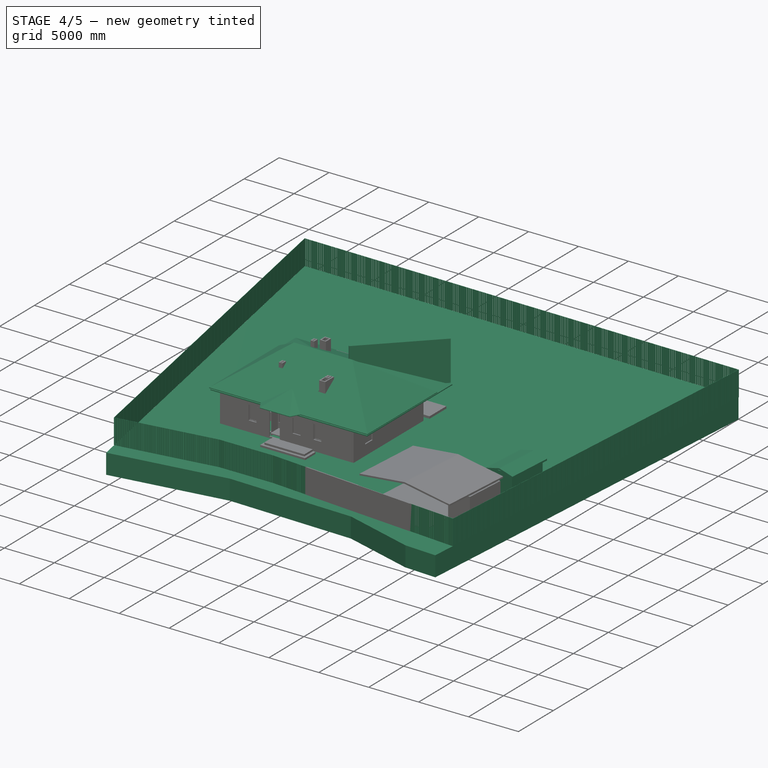
[diagram: stage 4 of 5 — iso view after this stage's code; geometry added in this stage tinted green]
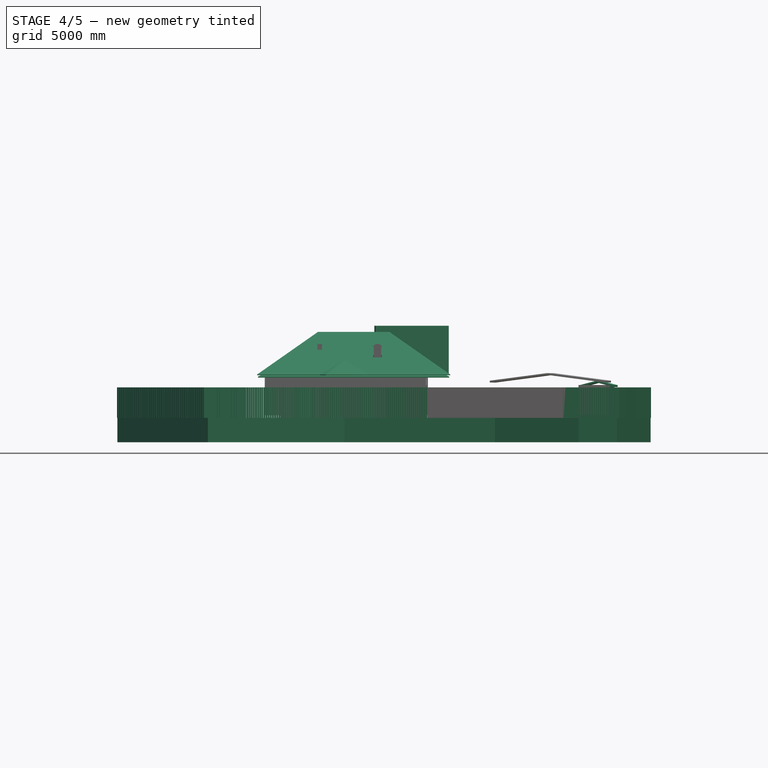
[diagram: stage 4 of 5 — front view after this stage's code; geometry added in this stage tinted green]
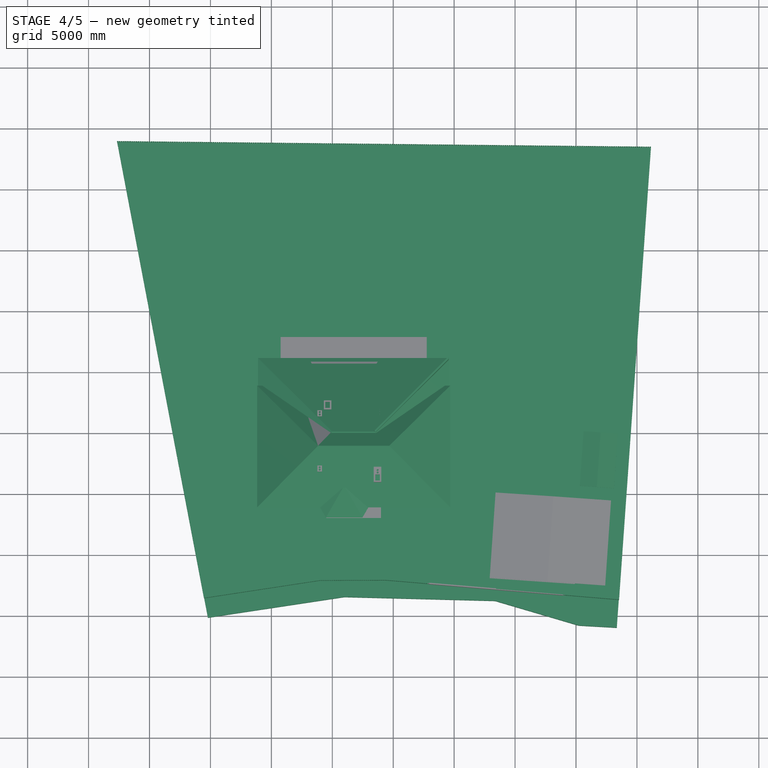
[diagram: stage 4 of 5 — top view after this stage's code; geometry added in this stage tinted green]
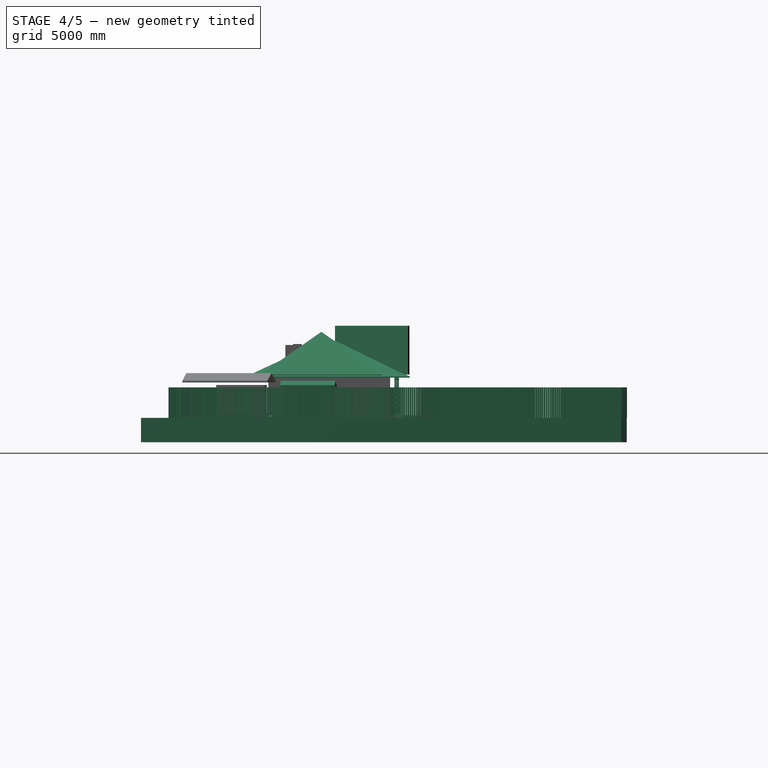
[diagram: stage 4 of 5 — right view after this stage's code; geometry added in this stage tinted green]
FEATURE [Part::Part2DObjectPython] Rectangle1992  label="проём в перекрытии 001"  # Draft 2D object (typed FeaturePython)
  ChamferSize = 0
  Columns = 1
  FilletRadius = 0
  Height = 900
  Length = 3650
  MakeFace = false
  Placement = pos=(5300,5100,0) rot=(0,0,1;0rad)
  Rows = 1
FEATURE [Part::Part2DObjectPython] Rectangle2152  label="Д90-004"  # Draft 2D object (typed FeaturePython)
  ChamferSize = 0
  Columns = 1
  FilletRadius = 0
  Height = 100
  Length = 900
  MakeFace = true
  Placement = pos=(9050,6000,0) rot=(0,0,1;0rad)
  Rows = 1
FEATURE [Part::Part2DObjectPython] Rectangle2147  label="Д90-002"  # Draft 2D object (typed FeaturePython)
  ChamferSize = 0
  Columns = 1
  FilletRadius = 0
  Height = 900
  Length = 200
  MakeFace = true
  Placement = pos=(4600,1950,0) rot=(0,0,1;0rad)
  Rows = 1
FEATURE [Part::Part2DObjectPython] Rectangle2188  label="ОК-135-037"  # Draft 2D object (typed FeaturePython)
  ChamferSize = 0
  Columns = 1
  FilletRadius = 0
  Height = 400
  Length = 1870
  MakeFace = true
  Placement = pos=(5160,8960,0) rot=(0,0,1;0rad)
  Rows = 1
FEATURE [Part::Part2DObjectPython] Rectangle2149  label="Д80-007"  # Draft 2D object (typed FeaturePython)
  ChamferSize = 0
  Columns = 1
  FilletRadius = 0
  Height = 100
  Length = 800
  MakeFace = true
  Placement = pos=(7200,3600,0) rot=(0,0,1;0rad)
  Rows = 1
FEATURE [Part::Part2DObjectPython] Rectangle2169  label="Д-100-2500-01"  # Draft 2D object (typed FeaturePython)
  ChamferSize = 0
  Columns = 1
  FilletRadius = 0
  Height = 400
  Length = 1000
  MakeFace = true
  Placement = pos=(4415,-400,0) rot=(0,0,1;0rad)
  Rows = 1
FEATURE [Part::Part2DObjectPython] Rectangle2189  label="ОК-135-057"  # Draft 2D object (typed FeaturePython)
  ChamferSize = 0
  Columns = 1
  FilletRadius = 0
  Height = 400
  Length = 1350
  MakeFace = true
  Placement = pos=(2040,8960,0) rot=(0,0,1;0rad)
  Rows = 1
FEATURE [Part::Part2DObjectPython] Rectangle2164  label="Д90-009"  # Draft 2D object (typed FeaturePython)
  ChamferSize = 0
  Columns = 1
  FilletRadius = 0
  Height = 100
  Length = 900
  MakeFace = true
  Placement = pos=(12450,6000,0) rot=(0,0,1;0rad)
  Rows = 1
FEATURE [Part::Part2DObjectPython] Rectangle2167  label="Д90-008"  # Draft 2D object (typed FeaturePython)
  ChamferSize = 0
  Columns = 1
  FilletRadius = 0
  Height = 100
  Length = 900
  MakeFace = true
  Placement = pos=(9050,3600,0) rot=(0,0,1;0rad)
  Rows = 1
FEATURE [Part::Part2DObjectPython] Rectangle2168  label="Д100-001"  # Draft 2D object (typed FeaturePython)
  ChamferSize = 0
  Columns = 1
  FilletRadius = 0
  Height = 100
  Length = 1000
  MakeFace = true
  Placement = pos=(5100,1700,0) rot=(0,0,1;0rad)
  Rows = 1
FEATURE [Part::Part2DObjectPython] Rectangle2190  label="ОК-135-058"  # Draft 2D object (typed FeaturePython)
  ChamferSize = 0
  Columns = 1
  FilletRadius = 0
  Height = 400
  Length = 1350
  MakeFace = true
  Placement = pos=(8800,8960,0) rot=(0,0,1;0rad)
  Rows = 1
FEATURE [Part::Part2DObjectPython] Rectangle2231  label="ОК-115-001"  # Draft 2D object (typed FeaturePython)
  ChamferSize = 0
  Columns = 1
  FilletRadius = 0
  Height = 400
  Length = 900
  MakeFace = true
  Placement = pos=(8755,-400,0) rot=(0,0,1;0rad)
  Rows = 1
FEATURE [Part::Part2DObjectPython] Rectangle2200  label="Контур по утеплителю"  # Draft 2D object (typed FeaturePython)
  ChamferSize = 0
  Columns = 1
  FilletRadius = 0
  Height = 9760
  Length = 13140
  MakeFace = false
  Placement = pos=(-420,-400,0) rot=(0,0,1;0rad)
  Rows = 1
FEATURE [Part::Part2DObjectPython] Rectangle2230  label="ОК-135-002"  # Draft 2D object (typed FeaturePython)
  ChamferSize = 0
  Columns = 1
  FilletRadius = 0
  Height = 400
  Length = 900
  MakeFace = true
  Placement = pos=(2255,-400,0) rot=(0,0,1;0rad)
  Rows = 1
FEATURE [App::FeaturePython] Dimension001  # Draft dimension (typed FeaturePython)
  Diameter = false
  Dimline = (15100,-1000,0)
  Direction = (0,0,0)
  Distance = 10000
  End = (13500,10000,0)
  Normal = (0,0,1)
  Start = (13500,-8.29e-14,0)
FEATURE [App::FeaturePython] Dimension  # Draft dimension (typed FeaturePython)
  Diameter = false
  Dimline = (13600,-1600,0)
  Direction = (0,0,0)
  Distance = 13500
  End = (13500,-8.29e-14,0)
  Normal = (0,0,1)
  Start = (0,0,0)
FEATURE [Part::FeaturePython] Axis  label="Оси верт."  # WARN: FeaturePython — macro-defined, semantics opaque (R4)
  Angles = [0,0,0,0]
  Distances = [0,4700,4100,4700]
  Labels = A | B | C | D
  Length = 12000
  Placement = pos=(0,-2000,0) rot=(0,0,1;0rad)
FEATURE [Part::FeaturePython] Axis001  label="Оси гор."  # WARN: FeaturePython — macro-defined, semantics opaque (R4)
  Angles = [0,0,0,0]
  Distances = [0,3700,2300,4000]
  Labels = 1 | 2 | 3 | 4
  Length = 15500
  Placement = pos=(14000,7.96e-13,0) rot=(0,0,1;1.5708rad)
FEATURE [App::FeaturePython] AxisSystem  label="Axis System"  # WARN: FeaturePython — macro-defined, semantics opaque (R4)
  Axes = -> [Axis,Axis001]
FEATURE [Part::Part2DObjectPython] Rectangle2234  # Draft 2D object (typed FeaturePython)
  ChamferSize = 0
  Columns = 1
  FilletRadius = 0
  Height = 1500
  Length = 4500
  MakeFace = false
  Placement = pos=(4500,-1975,0) rot=(0,0,1;0rad)
  Rows = 1
FEATURE [Part::Part2DObjectPython] Wire  # Draft 2D object (typed FeaturePython)
  ChamferSize = 0
  Closed = true
  End = (-1170,8830,0)
  FilletRadius = 0
  Length = 51700
  MakeFace = false
  Placement = pos=(-1170,-1170,0) rot=(0,0,1;0rad)
  Points = (4) [(0,0,0),(15850,-1.81899e-12,0),(15850,10000,0),(0,10000,0)]
  Start = (-1170,-1170,0)
  Subdivisions = 0
FEATURE [Part::Part2DObjectPython] Wire413  # Draft 2D object (typed FeaturePython)
  ChamferSize = 0
  Closed = true
  End = (4050,9820,0)
  FilletRadius = 0
  Length = 1520
  MakeFace = true
  Placement = pos=(3694.42,9968.26,0) rot=(0,0,1;0rad)
  Points = (4) [(-24.4187,-148.256,0),(-24.4187,231.744,0),(355.581,231.744,0),(355.581,-148.256,0)]
  Start = (3670,9820,0)
  Subdivisions = 0
FEATURE [Part::Part2DObjectPython] Wire414  # Draft 2D object (typed FeaturePython)
  ChamferSize = 0
  Closed = true
  End = (9840,9820,0)
  FilletRadius = 0
  Length = 1520
  MakeFace = true
  Placement = pos=(9484.42,9968.26,0) rot=(0,0,1;0rad)
  Points = (4) [(-24.4187,-148.256,0),(-24.4187,231.744,0),(355.581,231.744,0),(355.581,-148.256,0)]
  Start = (9460,9820,0)
  Subdivisions = 0
FEATURE [Part::Part2DObjectPython] Rectangle2237  # Draft 2D object (typed FeaturePython)
  ChamferSize = 0
  Columns = 1
  FilletRadius = 0
  Height = 300
  Length = 500
  MakeFace = false
  Placement = pos=(6730,10200,0) rot=(0,0,1;3.14159rad)
  Rows = 1
FEATURE [Part::Part2DObjectPython] Rectangle2238  # Draft 2D object (typed FeaturePython)
  ChamferSize = 0
  Columns = 1
  FilletRadius = 0
  Height = 300
  Length = 500
  MakeFace = false
  Placement = pos=(7330,10200,0) rot=(0,0,1;3.14159rad)
  Rows = 1
FEATURE [Part::Part2DObjectPython] Rectangle2239  # Draft 2D object (typed FeaturePython)
  ChamferSize = 0
  Columns = 1
  FilletRadius = 0
  Height = 300
  Length = 500
  MakeFace = false
  Placement = pos=(7780,9250,0) rot=(0,0,1;1.5708rad)
  Rows = 1
FEATURE [Part::Part2DObjectPython] Rectangle2240  # Draft 2D object (typed FeaturePython)
  ChamferSize = 0
  Columns = 1
  FilletRadius = 0
  Height = 300
  Length = 500
  MakeFace = false
  Placement = pos=(6080,9250,0) rot=(0,0,1;1.5708rad)
  Rows = 1
FEATURE [Part::Part2DObjectPython] Rectangle2241  # Draft 2D object (typed FeaturePython)
  ChamferSize = 0
  Columns = 1
  FilletRadius = 0
  Height = 300
  Length = 500
  MakeFace = false
  Placement = pos=(6730,9100,0) rot=(0,0,1;3.14159rad)
  Rows = 1
FEATURE [Part::Part2DObjectPython] Rectangle2242  # Draft 2D object (typed FeaturePython)
  ChamferSize = 0
  Columns = 1
  FilletRadius = 0
  Height = 300
  Length = 500
  MakeFace = false
  Placement = pos=(7330,9100,0) rot=(0,0,1;3.14159rad)
  Rows = 1
FEATURE [Part::Part2DObjectPython] Rectangle2243  # Draft 2D object (typed FeaturePython)
  ChamferSize = 0
  Columns = 1
  FilletRadius = 100
  Height = 800
  Length = 1400
  MakeFace = false
  Placement = pos=(7480,9900,0) rot=(0,0,1;3.14159rad)
  Rows = 1
FEATURE [Part::Part2DObjectPython] Wire417  # Draft 2D object (typed FeaturePython)
  ChamferSize = 0
  Closed = true
  End = (3225,10793.1,0)
  FilletRadius = 0
  Length = 27500
  MakeFace = false
  Placement = pos=(-125,6030,0) rot=(0,0,1;0rad)
  Points = (4) [(600,-9.09495e-13,0),(11600,-9.09495e-13,0),(8850,4763.14,0),(3350,4763.14,0)]
  Start = (475,6030,0)
  Subdivisions = 0
FEATURE [Part::FeaturePython] Roof003  label="Крыша терасса"  # Arch/BIM object (typed FeaturePython)
  Angles = [90,22,22,22]
  Base = -> Wire417
  BorderLength = 28218.2
  Face = 1
  Flip = false
  Heights = [0,1898.92,1898.92,1898.92]
  HorizontalArea = 3.9289e+07
  IdRel = [0,0,0,0]
  IfcRole = 111
  MoveWithHost = false
  Overhang = [0,0,0,0]
  PerimeterLength = 27572.9
  Placement = pos=(0,0,3100) rot=(0,0,1;0rad)
  RidgeLength = 11499.4
  Runs = [1000,4700,4700,4700]
  Thickness = [50,50,50,50]
  VerticalArea = 1.48692e+06
FEATURE [Part::Part2DObjectPython] Line1066  # Draft 2D object (typed FeaturePython)
  ChamferSize = 0
  Closed = false
  End = (3670,10200,0)
  FilletRadius = 0
  Length = 380
  MakeFace = false
  Placement = pos=(3670,9820,0) rot=(0,0,1;0rad)
  Points = (2) [(0,0,0),(0,380,0)]
  Start = (3670,9820,0)
  Subdivisions = 0
FEATURE [Part::Part2DObjectPython] Line1067  # Draft 2D object (typed FeaturePython)
  ChamferSize = 0
  Closed = false
  End = (4050,10200,0)
  FilletRadius = 0
  Length = 380
  MakeFace = false
  Placement = pos=(3670,10200,0) rot=(0,0,1;0rad)
  Points = (2) [(0,0,0),(380,0,0)]
  Start = (3670,10200,0)
  Subdivisions = 0
FEATURE [Part::Part2DObjectPython] Line1068  # Draft 2D object (typed FeaturePython)
  ChamferSize = 0
  Closed = false
  End = (4050,9820,0)
  FilletRadius = 0
  Length = 380
  MakeFace = false
  Placement = pos=(4050,10200,0) rot=(0,0,1;0rad)
  Points = (2) [(0,0,0),(0,-380,0)]
  Start = (4050,10200,0)
  Subdivisions = 0
FEATURE [Part::Part2DObjectPython] Line1069  # Draft 2D object (typed FeaturePython)
  ChamferSize = 0
  Closed = false
  End = (3670,9820,0)
  FilletRadius = 0
  Length = 380
  MakeFace = false
  Placement = pos=(4050,9820,0) rot=(0,0,1;0rad)
  Points = (2) [(0,0,0),(-380,0,0)]
  Start = (4050,9820,0)
  Subdivisions = 0
FEATURE [Part::FeaturePython] Wall028  label="Колонна_01_001"  # Arch/BIM object (typed FeaturePython)
  Align = 0
  Base = -> Line1066
  BlockHeight = 65
  BlockLength = 250
  CountBroken = 63
  CountEntire = 21
  Face = 0
  Height = 3140
  HorizontalArea = 45600
  IfcRole = 156
  Joint = 10
  Length = 380
  MakeBlocks = true
  MoveWithHost = false
  Normal = (0,0,0)
  OffsetFirst = 0
  OffsetSecond = 120
  PerimeterLength = 1000
  VerticalArea = 140000
  Width = 120
FEATURE [Part::FeaturePython] Wall029  label="Колонна_01_012"  # Arch/BIM object (typed FeaturePython)
  Align = 0
  Base = -> Line1069
  BlockHeight = 65
  BlockLength = 250
  CountBroken = 63
  CountEntire = 21
  Face = 0
  Height = 3140
  HorizontalArea = 45600
  IfcRole = 156
  Joint = 10
  Length = 380
  MakeBlocks = true
  MoveWithHost = false
  Normal = (0,0,0)
  OffsetFirst = 0
  OffsetSecond = 120
  PerimeterLength = 1000
  VerticalArea = 140000
  Width = 120
FEATURE [Part::FeaturePython] Wall030  label="Колонна_01_011"  # Arch/BIM object (typed FeaturePython)
  Align = 0
  Base = -> Line1067
  BlockHeight = 65
  BlockLength = 250
  CountBroken = 63
  CountEntire = 21
  Face = 0
  Height = 3140
  HorizontalArea = 45600
  IfcRole = 156
  Joint = 10
  Length = 380
  MakeBlocks = true
  MoveWithHost = false
  Normal = (0,0,0)
  OffsetFirst = 0
  OffsetSecond = 120
  PerimeterLength = 1000
  VerticalArea = 140000
  Width = 120
FEATURE [Part::FeaturePython] Wall031  label="Колонна_01_010"  # Arch/BIM object (typed FeaturePython)
  Align = 0
  Base = -> Line1068
  BlockHeight = 65
  BlockLength = 250
  CountBroken = 63
  CountEntire = 21
  Face = 0
  Height = 3140
  HorizontalArea = 45600
  IfcRole = 156
  Joint = 10
  Length = 380
  MakeBlocks = true
  MoveWithHost = false
  Normal = (0,0,0)
  OffsetFirst = 0
  OffsetSecond = 120
  PerimeterLength = 1000
  VerticalArea = 140000
  Width = 120
FEATURE [App::GeometryPython] BuildingPart008  label="Колонна_001"  # Arch/BIM object (typed FeaturePython)
  Area = 0
  Group = -> [Wall028,Wall031,Wall030,Wall029]
  Height = 0
  IfcRole = 0
  LevelOffset = 0
FEATURE [Part::Part2DObjectPython] Line1070  # Draft 2D object (typed FeaturePython)
  ChamferSize = 0
  Closed = false
  End = (9460,9820,0)
  FilletRadius = 0
  Length = 380
  MakeFace = false
  Placement = pos=(9840,9820,0) rot=(0,0,1;0rad)
  Points = (2) [(0,0,0),(-380,0,0)]
  Start = (9840,9820,0)
  Subdivisions = 0
FEATURE [Part::Part2DObjectPython] Line1071  # Draft 2D object (typed FeaturePython)
  ChamferSize = 0
  Closed = false
  End = (9840,10200,0)
  FilletRadius = 0
  Length = 380
  MakeFace = false
  Placement = pos=(9460,10200,0) rot=(0,0,1;0rad)
  Points = (2) [(0,0,0),(380,0,0)]
  Start = (9460,10200,0)
  Subdivisions = 0
FEATURE [Part::Part2DObjectPython] Line1072  # Draft 2D object (typed FeaturePython)
  ChamferSize = 0
  Closed = false
  End = (9840,9820,0)
  FilletRadius = 0
  Length = 380
  MakeFace = false
  Placement = pos=(9840,10200,0) rot=(0,0,1;0rad)
  Points = (2) [(0,0,0),(0,-380,0)]
  Start = (9840,10200,0)
  Subdivisions = 0
FEATURE [Part::FeaturePython] Wall033  label="Колонна_01_014"  # Arch/BIM object (typed FeaturePython)
  Align = 0
  Base = -> Line1072
  BlockHeight = 65
  BlockLength = 250
  CountBroken = 63
  CountEntire = 21
  Face = 0
  Height = 3140
  HorizontalArea = 45600
  IfcRole = 156
  Joint = 10
  Length = 380
  MakeBlocks = true
  MoveWithHost = false
  Normal = (0,0,0)
  OffsetFirst = 0
  OffsetSecond = 120
  PerimeterLength = 1000
  VerticalArea = 140000
  Width = 120
FEATURE [Part::FeaturePython] Wall034  label="Колонна_01_015"  # Arch/BIM object (typed FeaturePython)
  Align = 0
  Base = -> Line1071
  BlockHeight = 65
  BlockLength = 250
  CountBroken = 63
  CountEntire = 21
  Face = 0
  Height = 3140
  HorizontalArea = 45600
  IfcRole = 156
  Joint = 10
  Length = 380
  MakeBlocks = true
  MoveWithHost = false
  Normal = (0,0,0)
  OffsetFirst = 0
  OffsetSecond = 120
  PerimeterLength = 1000
  VerticalArea = 140000
  Width = 120
FEATURE [Part::Part2DObjectPython] Line1073  # Draft 2D object (typed FeaturePython)
  ChamferSize = 0
  Closed = false
  End = (9460,10200,0)
  FilletRadius = 0
  Length = 380
  MakeFace = false
  Placement = pos=(9460,9820,0) rot=(0,0,1;0rad)
  Points = (2) [(0,0,0),(0,380,0)]
  Start = (9460,9820,0)
  Subdivisions = 0
FEATURE [Part::FeaturePython] Wall032  label="Колонна_01_013"  # Arch/BIM object (typed FeaturePython)
  Align = 0
  Base = -> Line1073
  BlockHeight = 65
  BlockLength = 250
  CountBroken = 63
  CountEntire = 21
  Face = 0
  Height = 3140
  HorizontalArea = 45600
  IfcRole = 156
  Joint = 10
  Length = 380
  MakeBlocks = true
  MoveWithHost = false
  Normal = (0,0,0)
  OffsetFirst = 0
  OffsetSecond = 120
  PerimeterLength = 1000
  VerticalArea = 140000
  Width = 120
FEATURE [Part::FeaturePython] Wall035  label="Колонна_01_016"  # Arch/BIM object (typed FeaturePython)
  Align = 0
  Base = -> Line1070
  BlockHeight = 65
  BlockLength = 250
  CountBroken = 63
  CountEntire = 21
  Face = 0
  Height = 3140
  HorizontalArea = 45600
  IfcRole = 156
  Joint = 10
  Length = 380
  MakeBlocks = true
  MoveWithHost = false
  Normal = (0,0,0)
  OffsetFirst = 0
  OffsetSecond = 120
  PerimeterLength = 1000
  VerticalArea = 140000
  Width = 120
FEATURE [Part::Part2DObjectPython] Wire420  # Draft 2D object (typed FeaturePython)
  ChamferSize = 0
  Closed = true
  End = (7475,-2000,0)
  FilletRadius = 0
  Length = 15000
  MakeFace = false
  Placement = pos=(14575,598.076,0) rot=(0,0,1;3.14159rad)
  Points = (4) [(5600,-2.15568e-05,0),(11600,-9.09495e-13,0),(10100,2598.08,0),(7100,2598.08,0)]
  Start = (8975,598.076,0)
  Subdivisions = 0
FEATURE [Part::FeaturePython] Roof004  label="Крыша крыльцо"  # Arch/BIM object (typed FeaturePython)
  Angles = [90,25,25,25]
  Base = -> Wire420
  BorderLength = 15517.6
  Face = 0
  Flip = false
  Heights = [0,1189.08,1189.08,1189.08]
  HorizontalArea = 1.16873e+07
  IdRel = [0,0,0,0]
  IfcRole = 111
  MoveWithHost = false
  Overhang = [0,0,0,0]
  PerimeterLength = 15055.5
  Placement = pos=(0,0,3100) rot=(0,0,1;0rad)
  RidgeLength = 6351.04
  Runs = [250,2550,2550,2550]
  Thickness = [50,50,50,50]
  VerticalArea = 830596
FEATURE [App::GeometryPython] BuildingPart013  label="Утеплитель полки облицовки"  # Arch/BIM object (typed FeaturePython)
  Area = 0
  Group = -> [Array,Array010,Array011,Array012]
  Height = 0
  IfcRole = 0
  LevelOffset = 0
FEATURE [Part::Part2DObjectPython] Rectangle2267  label="пол по грунту контур 002"  # Draft 2D object (typed FeaturePython)
  ChamferSize = 0
  Columns = 1
  FilletRadius = 0
  Height = 8960
  Length = 4000
  MakeFace = false
  Placement = pos=(4150,-2e-15,0) rot=(0,0,1;0rad)
  Rows = 1
FEATURE [Part::Part2DObjectPython] Rectangle2268  label="пол по грунту контур 001"  # Draft 2D object (typed FeaturePython)
  ChamferSize = 0
  Columns = 1
  FilletRadius = 0
  Height = 8960
  Length = 3920
  MakeFace = false
  Placement = pos=(-20,-4e-15,0) rot=(0,0,1;0rad)
  Rows = 1
FEATURE [Part::FeaturePython] Structure034  label="пол по грунту плита 80мм 001"  # Arch/BIM object (typed FeaturePython)
  Base = -> Rectangle2267
  FaceMaker = 0
  Height = 80
  HorizontalArea = 3.584e+07
  IfcRole = 0
  Length = 0
  MoveWithHost = false
  Nodes = (2) [(6150,4480,0),(6150,4480,80)]
  NodesOffset = 0
  Normal = (0,0,1)
  PerimeterLength = 25920
  Placement = pos=(0,0,-80) rot=(0,0,1;0rad)
  VerticalArea = 2073600
  Width = 100
FEATURE [Part::FeaturePython] Structure035  label="пол по грунту плита 80мм 002"  # Arch/BIM object (typed FeaturePython)
  Base = -> Rectangle2268
  FaceMaker = 0
  Height = 80
  HorizontalArea = 35123200
  IfcRole = 0
  Length = 0
  MoveWithHost = false
  Nodes = (2) [(6040,1827.5,0),(6040,1827.5,-100)]
  NodesOffset = 0
  Normal = (0,0,1)
  PerimeterLength = 25760
  Placement = pos=(0,0,-80) rot=(0,0,1;0rad)
  VerticalArea = 2060800
  Width = 100
FEATURE [Part::FeaturePython] Structure041  label="кольцо с днищем ДК-10.9 внутр."  # Arch/BIM object (typed FeaturePython)
  Base = -> Circle072
  FaceMaker = 0
  Height = 800
  HorizontalArea = 785398
  IfcRole = 0
  Length = 0
  MoveWithHost = false
  Nodes = (2) [(8500,900,0),(8500,900,-800)]
  NodesOffset = 0
  Normal = (0,0,-1)
  PerimeterLength = 3141.59
  Placement = pos=(0,0,-300) rot=(0,0,1;0rad)
  VerticalArea = 2.51327e+06
  Width = 100
FEATURE [Part::FeaturePython] Structure040  label="кольцо с днищем ДК-10.9 габарит"  # Arch/BIM object (typed FeaturePython)
  Base = -> Circle071
  FaceMaker = 0
  Height = 900
  HorizontalArea = 1.05683e+06
  IfcRole = 0
  Length = 0
  MoveWithHost = false
  Nodes = (2) [(8500,900,0),(8500,900,-900)]
  NodesOffset = 0
  Normal = (0,0,-1)
  PerimeterLength = 3644.25
  Placement = pos=(0,0,-300) rot=(0,0,1;0rad)
  Subtractions = -> [Structure041]
  VerticalArea = 5.7931e+06
  Width = 100
FEATURE [Part::FeaturePython] Structure044  label="люк контур Д700"  # Arch/BIM object (typed FeaturePython)
  Base = -> Circle073
  FaceMaker = 0
  Height = 300
  HorizontalArea = 384845
  IfcRole = 0
  Length = 0
  MoveWithHost = false
  Nodes = (2) [(8500,1000,0),(8500,1000,-300)]
  NodesOffset = 0
  Normal = (0,0,-1)
  PerimeterLength = 2199.11
  VerticalArea = 659734
  Width = 100
FEATURE [Part::FeaturePython] Structure043  label="крышка ПП10"  # Arch/BIM object (typed FeaturePython)
  Base = -> Circle071
  FaceMaker = 0
  Height = 100
  HorizontalArea = 671987
  IfcRole = 0
  Length = 0
  MoveWithHost = false
  Nodes = (2) [(8500,900,0),(8500,900,-100)]
  NodesOffset = 0
  Normal = (0,0,-1)
  PerimeterLength = 3644.25
  Placement = pos=(0,0,-200) rot=(0,0,1;0rad)
  Subtractions = -> [Structure044]
  VerticalArea = 584336
  Width = 100
FEATURE [Part::Part2DObjectPython] Wire422  label="контур отмостки"  # Draft 2D object (typed FeaturePython)
  ChamferSize = 0
  Closed = true
  End = (-520,8180,0)
  FilletRadius = 0
  Length = 46500
  MakeFace = false
  Placement = pos=(-430,-430,0) rot=(0,0,1;0rad)
  Points = (4) [(-90,-90,0),(14460,-90,0),(14460,8610,0),(-90,8610,0)]
  Start = (-520,-520,0)
  Subdivisions = 0
FEATURE [Part::Part2DObjectPython] Line1079  # Draft 2D object (typed FeaturePython)
  ChamferSize = 0
  Closed = false
  End = (0,3830,6612.08)
  FilletRadius = 0
  Length = 6103.87
  MakeFace = false
  Placement = pos=(0,8830,3111.04) rot=(0.57735,0.57735,0.57735;2.0944rad)
  Points = (2) [(0,0,0),(-5000,3501.04,0)]
  Start = (0,8830,3111.04)
  Subdivisions = 0
FEATURE [Part::Part2DObjectPython] Line1081  # Draft 2D object (typed FeaturePython)
  ChamferSize = 0
  Closed = false
  End = (0,-1170,3111.04)
  FilletRadius = 0
  Length = 10000
  MakeFace = false
  Placement = pos=(0,8830,3111.04) rot=(0.57735,0.57735,0.57735;2.0944rad)
  Points = (2) [(0,0,0),(-10000,0,0)]
  Start = (0,8830,3111.04)
  Subdivisions = 0
FEATURE [Part::Part2DObjectPython] Rectangle2276  # Draft 2D object (typed FeaturePython)
  ChamferSize = 0
  Columns = 1
  FilletRadius = 0
  Height = 6000
  Length = 250
  MakeFace = false
  Placement = pos=(0,3830,6612.08) rot=(-0.287968,0.913318,-0.287968;1.66134rad)
  Rows = 1
FEATURE [Part::Part2DObjectPython] Line1082  # Draft 2D object (typed FeaturePython)
  ChamferSize = 0
  Closed = false
  End = (0,3830,3470)
  FilletRadius = 0
  Length = 3292.08
  MakeFace = false
  Placement = pos=(0,3830,6762.08) rot=(0.57735,0.57735,0.57735;2.0944rad)
  Points = (2) [(0,0,0),(-1.81899e-12,-3292.08,0)]
  Start = (0,3830,6762.08)
  Subdivisions = 0
FEATURE [Part::Part2DObjectPython] Rectangle2279  # Draft 2D object (typed FeaturePython)
  ChamferSize = 0
  Columns = 1
  FilletRadius = 0
  Height = 1500
  Length = 200
  MakeFace = false
  Placement = pos=(0,6100,3470) rot=(0.57735,0.57735,0.57735;2.0944rad)
  Rows = 1
FEATURE [Part::Mirroring] mirror  label="Mirror of Rectangle2279"
  Base = (0,3830,3470)
  Normal = (0,-1,6e-16)
  Source = -> Rectangle2279
FEATURE [Part::Part2DObjectPython] Rectangle2282  # Draft 2D object (typed FeaturePython)
  ChamferSize = 0
  Columns = 1
  FilletRadius = 0
  Height = 1800
  Length = 4500
  MakeFace = false
  Placement = pos=(4500,4100,5230) rot=(0,0,1;0rad)
  Rows = 1
FEATURE [Part::Part2DObjectPython] Rectangle2285  # Draft 2D object (typed FeaturePython)
  ChamferSize = 0
  Columns = 1
  FilletRadius = 0
  Height = 4540
  Length = 8960
  MakeFace = false
  Placement = pos=(1560,1560,4760) rot=(0,0,1;0rad)
  Rows = 1
FEATURE [Part::Part2DObjectPython] Rectangle2286  # Draft 2D object (typed FeaturePython)
  ChamferSize = 0
  Columns = 1
  FilletRadius = 0
  Height = 5500
  Length = 9000
  MakeFace = false
  Placement = pos=(2250,2250,3110) rot=(0,0,1;0rad)
  Rows = 1
FEATURE [Part::Loft] Loft  label="Объём в мансарде"
  Closed = false
  MaxDegree = 5
  Ruled = true
  Sections = -> [Rectangle2282,Rectangle2285,Rectangle2286]
  Solid = true
FEATURE [Part::FeaturePython] Wall060  label="Wall002"  # Arch/BIM object (typed FeaturePython)
  Align = 2
  Base = -> Line1087
  BlockHeight = 0
  BlockLength = 0
  CountBroken = 0
  CountEntire = 0
  Face = 0
  Height = 4000
  HorizontalArea = 1.27279e+06
  IfcRole = 156
  Joint = 0
  Length = 8485.28
  MakeBlocks = false
  MoveWithHost = false
  Normal = (0,0,0)
  OffsetFirst = 0
  OffsetSecond = 0
  PerimeterLength = 17270.6
  Placement = pos=(0,0,3160) rot=(0,0,1;0rad)
  VerticalArea = 6.90823e+07
  Width = 150
FEATURE [Part::FeaturePython] Wall061  label="Wall003"  # Arch/BIM object (typed FeaturePython)
  Align = 2
  Base = -> Line1085
  BlockHeight = 0
  BlockLength = 0
  CountBroken = 0
  CountEntire = 0
  Face = 0
  Height = 4000
  HorizontalArea = 1.27173e+06
  IfcRole = 156
  Joint = 0
  Length = 8478.21
  MakeBlocks = false
  MoveWithHost = false
  Normal = (0,0,0)
  OffsetFirst = 0
  OffsetSecond = 0
  PerimeterLength = 17256.4
  Placement = pos=(0,0,3160) rot=(0,0,1;0rad)
  VerticalArea = 6.90257e+07
  Width = 150
FEATURE [Part::FeaturePython] Wall063  label="Объем стоек стропильной системы"  # Arch/BIM object (typed FeaturePython)
  Align = 0
  Base = -> Rectangle2286
  BlockHeight = 0
  BlockLength = 0
  CountBroken = 0
  CountEntire = 0
  Face = 0
  Height = 1200
  HorizontalArea = 5960000
  IfcRole = 156
  Joint = 0
  Length = 29000
  MakeBlocks = false
  MoveWithHost = false
  Normal = (0,0,0)
  OffsetFirst = 0
  OffsetSecond = 0
  PerimeterLength = 30600
  Placement = pos=(0,0,50) rot=(0,0,1;0rad)
  Subtractions = -> [Structure037]
  VerticalArea = 71520000
  Width = 200
FEATURE [TechDraw::DrawSVGTemplate] Template
  EditableTexts = AUTHOR_NAME=<owner>,DN=001,DRAWING_TITLE=Планировка одноэтажного дома,FC-DATE=25/08/2020,FC-REV=REV A,FC-SC=1:50,FC-SH=1 / 1,FC-SI=A2,+2 more (map truncated)
  Height = 420
  Orientation = 1
  Width = 594
FEATURE [Part::Part2DObjectPython] Wire430  # Draft 2D object (typed FeaturePython)
  ChamferSize = 0
  Closed = true
  End = (13960,5775,0)
  FilletRadius = 0
  Length = 14260
  MakeFace = true
  Placement = pos=(10200,1755,0) rot=(0,0,1;0rad)
  Points = (6) [(3640,4020,0),(3640,8580,0),(1310,8580,0),(1310,8700,0),(3760,8700,0),(3760,4020,0)]
  Start = (13840,5775,0)
  Subdivisions = 0
FEATURE [Part::Part2DObjectPython] Wire431  # Draft 2D object (typed FeaturePython)
  ChamferSize = 0
  Closed = true
  End = (-340,8775,0)
  FilletRadius = 0
  Length = 8040
  MakeFace = true
  Placement = pos=(3170,1755,0) rot=(0,0,1;0rad)
  Points = (6) [(-3630,7020,0),(-3630,8700,0),(-1290,8700,0),(-1290,8580,0),(-3510,8580,0),(-3510,7020,0)]
  Start = (-460,8775,0)
  Subdivisions = 0
FEATURE [Part::Part2DObjectPython] Rectangle2297  # Draft 2D object (typed FeaturePython)
  ChamferSize = 0
  Columns = 1
  FilletRadius = 0
  Height = 120
  Length = 2070
  MakeFace = true
  Placement = pos=(3180,-455,0) rot=(0,0,1;0rad)
  Rows = 1
FEATURE [Part::Part2DObjectPython] Rectangle2298  # Draft 2D object (typed FeaturePython)
  ChamferSize = 0
  Columns = 1
  FilletRadius = 0
  Height = 120
  Length = 1030
  MakeFace = true
  Placement = pos=(6300,-455,0) rot=(0,0,1;0rad)
  Rows = 1
FEATURE [Part::Part2DObjectPython] Rectangle2300  # Draft 2D object (typed FeaturePython)
  ChamferSize = 0
  Columns = 1
  FilletRadius = 0
  Height = 120
  Length = 2590
  MakeFace = true
  Placement = pos=(3190,10335,0) rot=(0,0,1;0rad)
  Rows = 1
FEATURE [Part::Part2DObjectPython] Rectangle2301  # Draft 2D object (typed FeaturePython)
  ChamferSize = 0
  Columns = 1
  FilletRadius = 0
  Height = 120
  Length = 2590
  MakeFace = true
  Placement = pos=(7610,10335,0) rot=(0,0,1;0rad)
  Rows = 1
FEATURE [Part::FeaturePython] Roof006  label="Крыша терасса  объём стропильной системы"  # Arch/BIM object (typed FeaturePython)
  Angles = [90,22,22,22]
  Base = -> Wire417
  BorderLength = 28218.2
  Face = 1
  Flip = false
  Heights = [0,1898.92,1898.92,1898.92]
  HorizontalArea = 3.9289e+07
  IdRel = [0,0,0,0]
  IfcRole = 111
  MoveWithHost = false
  Overhang = [0,0,0,0]
  PerimeterLength = 27572.9
  Placement = pos=(0,0,2930) rot=(0,0,1;0rad)
  RidgeLength = 11499.4
  Runs = [1000,4700,4700,4700]
  Thickness = [150,150,150,150]
  VerticalArea = 4.46075e+06
FEATURE [Part::FeaturePython] Roof007  label="Крыша крыльцо объём стропильной системы"  # Arch/BIM object (typed FeaturePython)
  Angles = [90,25,25,25]
  Base = -> Wire420
  BorderLength = 15517.6
  Face = 0
  Flip = false
  Heights = [0,1189.08,1189.08,1189.08]
  HorizontalArea = 1.16873e+07
  IdRel = [0,0,0,0]
  IfcRole = 111
  MoveWithHost = false
  Overhang = [0,0,0,0]
  PerimeterLength = 15055.5
  Placement = pos=(0,0,2930) rot=(0,0,1;0rad)
  RidgeLength = 6351.04
  Runs = [250,2550,2550,2550]
  Thickness = [150,150,150,150]
  VerticalArea = 2.49179e+06
FEATURE [Part::Part2DObjectPython] Line1089  # Draft 2D object (typed FeaturePython)
  ChamferSize = 0
  Closed = false
  End = (2111.91,8830,0)
  FilletRadius = 0
  Length = 4720.67
  MakeFace = true
  Placement = pos=(5890.67,6176.06,0) rot=(0,0,1;0rad)
  Points = (2) [(84.3269,-59.2254,0),(-3778.77,2653.94,0)]
  Start = (5975,6116.83,0)
  Subdivisions = 0
FEATURE [Part::Part2DObjectPython] Line1090  # Draft 2D object (typed FeaturePython)
  ChamferSize = 0
  Closed = false
  End = (3225,10793.1,0)
  FilletRadius = 0
  Length = 5331.35
  MakeFace = true
  Placement = pos=(5890.67,6176.06,0) rot=(0,0,1;0rad)
  Points = (2) [(0,0,0),(-2665.67,4617.08,0)]
  Start = (5890.67,6176.06,0)
  Subdivisions = 0
FEATURE [Part::Part2DObjectPython] Line1091  # Draft 2D object (typed FeaturePython)
  ChamferSize = 0
  Closed = false
  End = (8725,10793.1,0)
  FilletRadius = 0
  Length = 5331.35
  MakeFace = true
  Placement = pos=(6059.33,6176.06,0) rot=(0,0,1;0rad)
  Points = (2) [(0,0,0),(2665.67,4617.08,0)]
  Start = (6059.33,6176.06,0)
  Subdivisions = 0
FEATURE [Part::Part2DObjectPython] Line1092  # Draft 2D object (typed FeaturePython)
  ChamferSize = 0
  Closed = false
  End = (9838.09,8830,0)
  FilletRadius = 0
  Length = 4720.67
  MakeFace = true
  Placement = pos=(6059.33,6176.06,0) rot=(0,0,1;0rad)
  Points = (2) [(-84.3269,-59.2254,0),(3778.77,2653.94,0)]
  Start = (5975,6116.83,0)
  Subdivisions = 0
FEATURE [Part::Part2DObjectPython] Line1093  # Draft 2D object (typed FeaturePython)
  ChamferSize = 0
  Closed = false
  End = (4010.33,-1170,0)
  FilletRadius = 0
  Length = 2597.23
  MakeFace = true
  Placement = pos=(5895.06,459.61,0) rot=(0,0,1;0rad)
  Points = (2) [(79.9437,69.1226,0),(-1884.72,-1629.61,0)]
  Start = (5975,528.732,0)
  Subdivisions = 0
FEATURE [Part::Part2DObjectPython] Line1094  # Draft 2D object (typed FeaturePython)
  ChamferSize = 0
  Closed = false
  End = (4475,-2000,0)
  FilletRadius = 0
  Length = 2840.11
  MakeFace = true
  Placement = pos=(5895.06,459.61,0) rot=(0,0,1;0rad)
  Points = (2) [(0,0,0),(-1420.06,-2459.61,0)]
  Start = (5895.06,459.61,0)
  Subdivisions = 0
FEATURE [Part::Part2DObjectPython] Line1095  # Draft 2D object (typed FeaturePython)
  ChamferSize = 0
  Closed = false
  End = (7475,-2000,0)
  FilletRadius = 0
  Length = 2840.11
  MakeFace = true
  Placement = pos=(6054.94,459.61,0) rot=(0,0,1;0rad)
  Points = (2) [(0,0,0),(1420.06,-2459.61,0)]
  Start = (6054.94,459.61,0)
  Subdivisions = 0
FEATURE [Part::Part2DObjectPython] Line1096  # Draft 2D object (typed FeaturePython)
  ChamferSize = 0
  Closed = false
  End = (7939.67,-1170,0)
  FilletRadius = 0
  Length = 2597.23
  MakeFace = true
  Placement = pos=(6054.94,459.61,0) rot=(0,0,1;0rad)
  Points = (2) [(-79.9436,69.1226,0),(1884.72,-1629.61,0)]
  Start = (5975,528.732,0)
  Subdivisions = 0
FEATURE [Part::FeaturePython] Wall065  label="плоскость стропил крыльца и терассы 001"  # Arch/BIM object (typed FeaturePython)
  Align = 2
  Base = -> Line1089
  BlockHeight = 0
  BlockLength = 0
  CountBroken = 0
  CountEntire = 0
  Face = 0
  Height = 3000
  HorizontalArea = 236034
  IfcRole = 156
  Joint = 0
  Length = 4720.67
  MakeBlocks = false
  MoveWithHost = false
  Normal = (0,0,0)
  OffsetFirst = 0
  OffsetSecond = 0
  PerimeterLength = 9541.35
  Placement = pos=(0,0,3150) rot=(0,0,1;0rad)
  VerticalArea = 2.8624e+07
  Width = 50
FEATURE [Part::FeaturePython] Wall066  label="плоскость стропил крыльца и терассы 026"  # Arch/BIM object (typed FeaturePython)
  Align = 2
  Base = -> Line1091
  BlockHeight = 0
  BlockLength = 0
  CountBroken = 0
  CountEntire = 0
  Face = 0
  Height = 3000
  HorizontalArea = 266567
  IfcRole = 156
  Joint = 0
  Length = 5331.35
  MakeBlocks = false
  MoveWithHost = false
  Normal = (0,0,0)
  OffsetFirst = 0
  OffsetSecond = 0
  PerimeterLength = 10762.7
  Placement = pos=(0,0,3150) rot=(0,0,1;0rad)
  VerticalArea = 3.22881e+07
  Width = 50
FEATURE [Part::FeaturePython] Wall067  label="плоскость стропил крыльца и терассы 027"  # Arch/BIM object (typed FeaturePython)
  Align = 2
  Base = -> Line1094
  BlockHeight = 0
  BlockLength = 0
  CountBroken = 0
  CountEntire = 0
  Face = 0
  Height = 3000
  HorizontalArea = 142006
  IfcRole = 156
  Joint = 0
  Length = 2840.11
  MakeBlocks = false
  MoveWithHost = false
  Normal = (0,0,0)
  OffsetFirst = 0
  OffsetSecond = 0
  PerimeterLength = 5780.23
  Placement = pos=(0,0,3150) rot=(0,0,1;0rad)
  VerticalArea = 1.73407e+07
  Width = 50
FEATURE [Part::FeaturePython] Wall068  label="плоскость стропил крыльца и терассы 028"  # Arch/BIM object (typed FeaturePython)
  Align = 2
  Base = -> Line1090
  BlockHeight = 0
  BlockLength = 0
  CountBroken = 0
  CountEntire = 0
  Face = 0
  Height = 3000
  HorizontalArea = 266567
  IfcRole = 156
  Joint = 0
  Length = 5331.35
  MakeBlocks = false
  MoveWithHost = false
  Normal = (0,0,0)
  OffsetFirst = 0
  OffsetSecond = 0
  PerimeterLength = 10762.7
  Placement = pos=(0,0,3150) rot=(0,0,1;0rad)
  VerticalArea = 3.22881e+07
  Width = 50
FEATURE [Part::FeaturePython] Wall069  label="плоскость стропил крыльца и терассы 025"  # Arch/BIM object (typed FeaturePython)
  Align = 2
  Base = -> Line1093
  BlockHeight = 0
  BlockLength = 0
  CountBroken = 0
  CountEntire = 0
  Face = 0
  Height = 3000
  HorizontalArea = 129861
  IfcRole = 156
  Joint = 0
  Length = 2597.23
  MakeBlocks = false
  MoveWithHost = false
  Normal = (0,0,0)
  OffsetFirst = 0
  OffsetSecond = 0
  PerimeterLength = 5294.46
  Placement = pos=(0,0,3150) rot=(0,0,1;0rad)
  VerticalArea = 1.58834e+07
  Width = 50
FEATURE [Part::FeaturePython] Wall070  label="плоскость стропил крыльца и терассы 022"  # Arch/BIM object (typed FeaturePython)
  Align = 2
  Base = -> Line1092
  BlockHeight = 0
  BlockLength = 0
  CountBroken = 0
  CountEntire = 0
  Face = 0
  Height = 3000
  HorizontalArea = 236034
  IfcRole = 156
  Joint = 0
  Length = 4720.67
  MakeBlocks = false
  MoveWithHost = false
  Normal = (0,0,0)
  OffsetFirst = 0
  OffsetSecond = 0
  PerimeterLength = 9541.35
  Placement = pos=(0,0,3150) rot=(0,0,1;0rad)
  VerticalArea = 2.8624e+07
  Width = 50
FEATURE [Part::FeaturePython] Wall071  label="плоскость стропил крыльца и терассы 023"  # Arch/BIM object (typed FeaturePython)
  Align = 2
  Base = -> Line1096
  BlockHeight = 0
  BlockLength = 0
  CountBroken = 0
  CountEntire = 0
  Face = 0
  Height = 3000
  HorizontalArea = 129861
  IfcRole = 156
  Joint = 0
  Length = 2597.23
  MakeBlocks = false
  MoveWithHost = false
  Normal = (0,0,0)
  OffsetFirst = 0
  OffsetSecond = 0
  PerimeterLength = 5294.46
  Placement = pos=(0,0,3150) rot=(0,0,1;0rad)
  VerticalArea = 1.58834e+07
  Width = 50
FEATURE [Part::FeaturePython] Wall072  label="плоскость стропил крыльца и терассы 024"  # Arch/BIM object (typed FeaturePython)
  Align = 2
  Base = -> Line1095
  BlockHeight = 0
  BlockLength = 0
  CountBroken = 0
  CountEntire = 0
  Face = 0
  Height = 3000
  HorizontalArea = 142006
  IfcRole = 156
  Joint = 0
  Length = 2840.11
  MakeBlocks = false
  MoveWithHost = false
  Normal = (0,0,0)
  OffsetFirst = 0
  OffsetSecond = 0
  PerimeterLength = 5780.23
  Placement = pos=(0,0,3150) rot=(0,0,1;0rad)
  VerticalArea = 1.73407e+07
  Width = 50
FEATURE [Part::MultiFuse] Fusion002
  Shapes = -> [Wall069,Wall067,Wall072,Wall071]
FEATURE [Part::MultiCommon] Common016  label="стропильная система крыльца"
  Shapes = -> [Fusion002,Roof007]
FEATURE [Part::MultiFuse] Fusion003
  Shapes = -> [Wall065,Wall068,Wall066,Wall070]
FEATURE [Part::MultiCommon] Common017  label="стропильная система терассы"
  Shapes = -> [Fusion003,Roof006]
FEATURE [Part::Part2DObjectPython] Polygon  # Draft 2D object (typed FeaturePython)
  ChamferSize = 0
  DrawMode = 0
  FacesNumber = 6
  FilletRadius = 0
  MakeFace = false
  Placement = pos=(5975,6030,0) rot=(0,0,1;0rad)
  Radius = 5500
FEATURE [Part::Part2DObjectPython] Polygon001  # Draft 2D object (typed FeaturePython)
  ChamferSize = 0
  DrawMode = 0
  FacesNumber = 6
  FilletRadius = 0
  MakeFace = false
  Placement = pos=(5975,598.076,0) rot=(0,0,1;0rad)
  Radius = 3000
FEATURE [Part::Part2DObjectPython] Line1097  # Draft 2D object (typed FeaturePython)
  ChamferSize = 0
  Closed = false
  End = (8400,3060,0)
  FilletRadius = 0
  Length = 2400
  MakeFace = false
  Placement = pos=(9800,3060,0) rot=(0,0,-1;1.5708rad)
  Points = (2) [(9.09495e-13,1000,0),(0,-1400,0)]
  Start = (10800,3060,0)
  Subdivisions = 0
FEATURE [Part::Part2DObjectPython] Rectangle2322  label="ПР120-002"  # Draft 2D object (typed FeaturePython)
  ChamferSize = 0
  Columns = 1
  FilletRadius = 0
  Height = 1200
  Length = 200
  MakeFace = true
  Placement = pos=(8700,3850,0) rot=(0,0,1;0rad)
  Rows = 1
FEATURE [Part::Part2DObjectPython] Rectangle2327  label="ПР180-001"  # Draft 2D object (typed FeaturePython)
  ChamferSize = 0
  Columns = 1
  FilletRadius = 0
  Height = 1800
  Length = 200
  MakeFace = true
  Placement = pos=(4600,7600,0) rot=(0,0,1;0rad)
  Rows = 1
FEATURE [Part::Part2DObjectPython] Line1098  # Draft 2D object (typed FeaturePython)
  ChamferSize = 0
  Closed = false
  End = (6755,-100,0)
  FilletRadius = 0
  Length = 7860
  MakeFace = false
  Placement = pos=(6755,7760,0) rot=(0,0,1;0rad)
  Points = (2) [(0,0,0),(-9.09495e-13,-7860,0)]
  Start = (6755,7760,0)
  Subdivisions = 0
FEATURE [Part::Part2DObjectPython] Rectangle2343  label="ОК-90-001"  # Draft 2D object (typed FeaturePython)
  ChamferSize = 0
  Columns = 1
  FilletRadius = 0
  Height = 400
  Length = 600
  MakeFace = true
  Placement = pos=(12320,3795,0) rot=(0,0,-1;1.5708rad)
  Rows = 1
FEATURE [Part::FeaturePython] Structure056  label="Проём-ОК-90-60-001"  # Arch/BIM object (typed FeaturePython)
  Base = -> Rectangle2343
  FaceMaker = 0
  Height = 600
  HorizontalArea = 240000
  IfcRole = 0
  Length = 0
  MoveWithHost = false
  Nodes = (2) [(1035,250,0),(1035,250,600)]
  NodesOffset = 0
  Normal = (0,0,0)
  PerimeterLength = 2000
  Placement = pos=(0,0,1720) rot=(0,0,1;0rad)
  VerticalArea = 1200000
  Width = 100
FEATURE [Part::Part2DObjectPython] Rectangle2344  label="ОК-135-01"  # Draft 2D object (typed FeaturePython)
  ChamferSize = 0
  Columns = 1
  FilletRadius = 0
  Height = 400
  Length = 900
  MakeFace = true
  Placement = pos=(6675,-400,0) rot=(0,0,1;0rad)
  Rows = 1
FEATURE [Part::FeaturePython] Structure057  label="Проём-ОК-135-150-001"  # Arch/BIM object (typed FeaturePython)
  Base = -> Rectangle2344
  FaceMaker = 0
  Height = 1500
  HorizontalArea = 360000
  IfcRole = 0
  Length = 0
  MoveWithHost = false
  Nodes = (2) [(7125,-200,0),(7125,-200,1500)]
  NodesOffset = 0
  Normal = (0,0,0)
  PerimeterLength = 2600
  Placement = pos=(0,0,820) rot=(0,0,1;0rad)
  VerticalArea = 3.9e+06
  Width = 100
FEATURE [Part::Part2DObjectPython] Wire455  # Draft 2D object (typed FeaturePython)
  ChamferSize = 0
  Closed = true
  End = (11760,-455,0)
  FilletRadius = 0
  Length = 15280
  MakeFace = true
  Placement = pos=(12470,-7035,0) rot=(0,0,1;0rad)
  Points = (6) [(-710,6700,0),(1370,6700,0),(1370,12020,0),(1490,12020,0),(1490,6580,0),(-710,6580,0)]
  Start = (11760,-335,0)
  Subdivisions = 0
FEATURE [Part::Part2DObjectPython] Wire456  # Draft 2D object (typed FeaturePython)
  ChamferSize = 0
  Closed = true
  End = (-460,965,0)
  FilletRadius = 0
  Length = 7500
  MakeFace = true
  Placement = pos=(-1950,-7035,0) rot=(0,0,1;0rad)
  Points = (6) [(1610,8000,0),(1610,6700,0),(3820,6700,0),(3820,6580,0),(1490,6580,0),(1490,8000,0)]
  Start = (-340,965,0)
  Subdivisions = 0
FEATURE [Sketcher::SketchObject] Sketch246
  Placement = pos=(7030,9360,-180) rot=(0,0.707107,0.707107;3.14159rad)
  sketch-geometry (24):
    g0: LineSegment StartX=0 StartY=5.68e-14 StartZ=0 EndX=1870 EndY=5.68e-14 EndZ=0
    g1: LineSegment StartX=1870 StartY=5.68e-14 StartZ=0 EndX=1870 EndY=2360 EndZ=0
    g2: LineSegment StartX=1870 StartY=2360 StartZ=0 EndX=0 EndY=2360 EndZ=0
    g3: LineSegment StartX=0 StartY=2360 StartZ=0 EndX=0 EndY=0 EndZ=0
    g4: LineSegment StartX=50 StartY=50 StartZ=0 EndX=1820 EndY=50 EndZ=0
    g5: LineSegment StartX=1820 StartY=50 StartZ=0 EndX=1820 EndY=2310 EndZ=0
    g6: LineSegment StartX=1820 StartY=2310 StartZ=0 EndX=50 EndY=2310 EndZ=0
    g7: LineSegment StartX=50 StartY=2310 StartZ=0 EndX=50 EndY=50 EndZ=0
    g8: LineSegment StartX=58 StartY=58 StartZ=0 EndX=931 EndY=58 EndZ=0
    g9: LineSegment StartX=931 StartY=58 StartZ=0 EndX=931 EndY=2302 EndZ=0
    g10: LineSegment StartX=931 StartY=2302 StartZ=0 EndX=58 EndY=2302 EndZ=0
    g11: LineSegment StartX=58 StartY=2302 StartZ=0 EndX=58 EndY=58 EndZ=0
    g12: LineSegment StartX=108 StartY=108 StartZ=0 EndX=881 EndY=108 EndZ=0
    g13: LineSegment StartX=881 StartY=108 StartZ=0 EndX=881 EndY=2252 EndZ=0
    g14: LineSegment StartX=881 StartY=2252 StartZ=0 EndX=108 EndY=2252 EndZ=0
    g15: LineSegment StartX=108 StartY=2252 StartZ=0 EndX=108 EndY=108 EndZ=0
    g16: LineSegment StartX=939 StartY=58 StartZ=0 EndX=1812 EndY=58 EndZ=0
    g17: LineSegment StartX=1812 StartY=58 StartZ=0 EndX=1812 EndY=2302 EndZ=0
    g18: LineSegment StartX=1812 StartY=2302 StartZ=0 EndX=939 EndY=2302 EndZ=0
    g19: LineSegment StartX=939 StartY=2302 StartZ=0 EndX=939 EndY=58 EndZ=0
    g20: LineSegment StartX=989 StartY=108 StartZ=0 EndX=1762 EndY=108 EndZ=0
    g21: LineSegment StartX=1762 StartY=108 StartZ=0 EndX=1762 EndY=2252 EndZ=0
    g22: LineSegment StartX=1762 StartY=2252 StartZ=0 EndX=989 EndY=2252 EndZ=0
    g23: LineSegment StartX=989 StartY=2252 StartZ=0 EndX=989 EndY=108 EndZ=0
  constraints (71):
    c: Coincident(g0,g1)
    c: Coincident(g1,g2)
    c: Coincident(g2,g3)
    c: Coincident(g3,g0)
    c: Horizontal(g0)
    c: Horizontal(g2)
    c: Vertical(g1)
    c: Vertical(g3)
    c: Coincident(g4,g5)
    c: Coincident(g5,g6)
    c: Coincident(g6,g7)
    c: Coincident(g7,g4)
    c: Horizontal(g4)
    c: Horizontal(g6)
    c: Vertical(g5)
    c: Vertical(g7)
    c: DistanceY(g1) = 2360  'Height'
    c: DistanceX(g0) = 1870  'Width'
    c: DistanceY(g6,g2) = 50  'Frame1'
    c: DistanceX(g2,g6) = 50  'Frame2'
    c: DistanceX(g4,g0) = 50  'Frame3'
    c: DistanceY(g0,g4) = 50  'Frame4'
    c: Coincident(g0,g-1)
    c: Coincident(g8,g9)
    c: Coincident(g9,g10)
    c: Coincident(g10,g11)
    c: Coincident(g11,g8)
    c: Horizontal(g8)
    c: Horizontal(g10)
    c: Vertical(g9)
    c: Vertical(g11)
    c: Coincident(g12,g13)
    c: Coincident(g13,g14)
    c: Coincident(g14,g15)
    c: Coincident(g15,g12)
    c: Horizontal(g12)
    c: Horizontal(g14)
    c: Vertical(g13)
    c: Vertical(g15)
    c: Coincident(g16,g17)
    c: Coincident(g17,g18)
    c: Coincident(g18,g19)
    c: Coincident(g19,g16)
    c: Horizontal(g16)
    c: Horizontal(g18)
    c: Vertical(g17)
    c: Vertical(g19)
    c: Coincident(g20,g21)
    c: Coincident(g21,g22)
    c: Coincident(g22,g23)
    c: Coincident(g23,g20)
    c: Horizontal(g20)
    c: Horizontal(g22)
    c: Vertical(g21)
    c: Vertical(g23)
    c: DistanceY(g8,g12) = 50  'Frame5'
    c: DistanceX(g8,g12) = 50  'Frame6'
    c: DistanceX(g21,g17) = 50  'Frame7'
    c: DistanceY(g21,g17) = 50  'Frame8'
    c: DistanceX(g16,g20) = 50  'Frame9'
    c: DistanceX(g14,g10) = 50  'Frame10'
    c: Equal(g22,g14)
    c: DistanceY(g8,g16) = 0
    c: DistanceY(g10,g18) = 0
    c: DistanceX(g4,g8) = 8
    c: DistanceY(g4,g8) = 8
    c: DistanceX(g6,g18) = -8
    c: DistanceY(g6,g18) = -8
    c: DistanceX(g9,g19) = 8
    c: PointOnObject(g13,g22)
    c: PointOnObject(g20,g12)
FEATURE [Part::FeaturePython] Window018  label="Д-187-001"  # Arch/BIM object (typed FeaturePython)
  Area = 4413200
  Base = -> Sketch246
  Frame = 50
  Height = 2360
  HoleDepth = 0
  HoleWire = 0
  HorizontalArea = 0
  IfcRole = 160
  LouvreSpacing = 0
  LouvreWidth = 0
  MoveWithHost = true
  Normal = (0,-1,2e-16)
  Opening = 0
  PerimeterLength = 0
  Placement = pos=(0,0,140) rot=(0,0,1;0rad)
  Preset = 3
  SymbolElevation = false
  SymbolPlan = false
  VerticalArea = 0
  Width = 1870
  WindowParts = <same value as first occurrence — deduplicated (x3 in doc)>
FEATURE [Sketcher::SketchObject] Sketch247
  Placement = pos=(12720,3195,1720) rot=(0.57735,0.57735,0.57735;2.0944rad)
  sketch-geometry (24):
    g0: LineSegment StartX=0 StartY=0 StartZ=0 EndX=600 EndY=0 EndZ=0
    g1: LineSegment StartX=600 StartY=0 StartZ=0 EndX=600 EndY=600 EndZ=0
    g2: LineSegment StartX=600 StartY=600 StartZ=0 EndX=0 EndY=600 EndZ=0
    g3: LineSegment StartX=0 StartY=600 StartZ=0 EndX=0 EndY=0 EndZ=0
    g4: LineSegment StartX=50 StartY=50 StartZ=0 EndX=550 EndY=50 EndZ=0
    g5: LineSegment StartX=550 StartY=50 StartZ=0 EndX=550 EndY=550 EndZ=0
    g6: LineSegment StartX=550 StartY=550 StartZ=0 EndX=50 EndY=550 EndZ=0
    g7: LineSegment StartX=50 StartY=550 StartZ=0 EndX=50 EndY=50 EndZ=0
    g8: LineSegment StartX=55 StartY=55 StartZ=0 EndX=297.5 EndY=55 EndZ=0
    g9: LineSegment StartX=297.5 StartY=55 StartZ=0 EndX=297.5 EndY=545 EndZ=0
    g10: LineSegment StartX=297.5 StartY=545 StartZ=0 EndX=55 EndY=545 EndZ=0
    g11: LineSegment StartX=55 StartY=545 StartZ=0 EndX=55 EndY=55 EndZ=0
    g12: LineSegment StartX=105 StartY=105 StartZ=0 EndX=247.5 EndY=105 EndZ=0
    g13: LineSegment StartX=247.5 StartY=105 StartZ=0 EndX=247.5 EndY=495 EndZ=0
    g14: LineSegment StartX=247.5 StartY=495 StartZ=0 EndX=105 EndY=495 EndZ=0
    g15: LineSegment StartX=105 StartY=495 StartZ=0 EndX=105 EndY=105 EndZ=0
    g16: LineSegment StartX=302.5 StartY=55 StartZ=0 EndX=545 EndY=55 EndZ=0
    g17: LineSegment StartX=545 StartY=55 StartZ=0 EndX=545 EndY=545 EndZ=0
    g18: LineSegment StartX=545 StartY=545 StartZ=0 EndX=302.5 EndY=545 EndZ=0
    g19: LineSegment StartX=302.5 StartY=545 StartZ=0 EndX=302.5 EndY=55 EndZ=0
    g20: LineSegment StartX=352.5 StartY=105 StartZ=0 EndX=495 EndY=105 EndZ=0
    g21: LineSegment StartX=495 StartY=105 StartZ=0 EndX=495 EndY=495 EndZ=0
    g22: LineSegment StartX=495 StartY=495 StartZ=0 EndX=352.5 EndY=495 EndZ=0
    g23: LineSegment StartX=352.5 StartY=495 StartZ=0 EndX=352.5 EndY=105 EndZ=0
  constraints (71):
    c: Coincident(g0,g1)
    c: Coincident(g1,g2)
    c: Coincident(g2,g3)
    c: Coincident(g3,g0)
    c: Horizontal(g0)
    c: Horizontal(g2)
    c: Vertical(g1)
    c: Vertical(g3)
    c: Coincident(g4,g5)
    c: Coincident(g5,g6)
    c: Coincident(g6,g7)
    c: Coincident(g7,g4)
    c: Horizontal(g4)
    c: Horizontal(g6)
    c: Vertical(g5)
    c: Vertical(g7)
    c: DistanceY(g1) = 600  'Height'
    c: DistanceX(g0) = 600  'Width'
    c: DistanceY(g6,g2) = 50  'Frame1'
    c: DistanceX(g2,g6) = 50  'Frame2'
    c: DistanceX(g4,g0) = 50  'Frame3'
    c: DistanceY(g0,g4) = 50  'Frame4'
    c: Coincident(g0,g-1)
    c: Coincident(g8,g9)
    c: Coincident(g9,g10)
    c: Coincident(g10,g11)
    c: Coincident(g11,g8)
    c: Horizontal(g8)
    c: Horizontal(g10)
    c: Vertical(g9)
    c: Vertical(g11)
    c: Coincident(g12,g13)
    c: Coincident(g13,g14)
    c: Coincident(g14,g15)
    c: Coincident(g15,g12)
    c: Horizontal(g12)
    c: Horizontal(g14)
    c: Vertical(g13)
    c: Vertical(g15)
    c: Coincident(g16,g17)
    c: Coincident(g17,g18)
    c: Coincident(g18,g19)
    c: Coincident(g19,g16)
    c: Horizontal(g16)
    c: Horizontal(g18)
    c: Vertical(g17)
    c: Vertical(g19)
    c: Coincident(g20,g21)
    c: Coincident(g21,g22)
    c: Coincident(g22,g23)
    c: Coincident(g23,g20)
    c: Horizontal(g20)
    c: Horizontal(g22)
    c: Vertical(g21)
    c: Vertical(g23)
    c: DistanceY(g8,g12) = 50  'Frame5'
    c: DistanceX(g8,g12) = 50  'Frame6'
    c: DistanceX(g21,g17) = 50  'Frame7'
    c: DistanceY(g21,g17) = 50  'Frame8'
    c: DistanceX(g16,g20) = 50  'Frame9'
    c: DistanceX(g14,g10) = 50  'Frame10'
    c: Equal(g22,g14)
    c: DistanceY(g8,g16) = 0
    c: DistanceY(g10,g18) = 0
    c: DistanceX(g4,g8) = 5
    c: DistanceY(g4,g8) = 5
    c: DistanceX(g6,g18) = -5
    c: DistanceY(g6,g18) = -5
    c: DistanceX(g9,g19) = 5
    c: PointOnObject(g13,g22)
    c: PointOnObject(g20,g12)
FEATURE [Part::FeaturePython] Window019  label="ОК-90Г-001"  # Arch/BIM object (typed FeaturePython)
  Area = 360000
  Base = -> Sketch247
  Frame = 50
  Height = 600
  HoleDepth = 0
  HoleWire = 0
  HorizontalArea = 0
  IfcRole = 160
  LouvreSpacing = 0
  LouvreWidth = 0
  MoveWithHost = true
  Normal = (-1,0,0)
  Opening = 0
  PerimeterLength = 0
  Preset = 3
  SymbolElevation = false
  SymbolPlan = false
  VerticalArea = 0
  Width = 600
  WindowParts = OuterFrame | Frame | Wire0,Wire1 | 30.0+V | 0.00+V | LeftFrame | Frame | Wire2,Wire3 | 50.0 | 0.0+V | LeftGlass | Glass panel | Wire3 | 5.0 | 25.0+V | RightFrame | Frame | Wire4,Wire5 | 50.0 | 0.0+V | RightGlass | Glass panel | Wire5 | 5.0 | 25.0+V
FEATURE [Part::FeaturePython] Structure069  label="утепление пола в проёмах 017"  # Arch/BIM object (typed FeaturePython)
  Base = -> Rectangle2169
  FaceMaker = 0
  Height = 100
  HorizontalArea = 400000
  IfcRole = 0
  Length = 0
  MoveWithHost = false
  Nodes = (2) [(4915,-200,0),(4915,-200,100)]
  NodesOffset = 0
  Normal = (0,0,1)
  PerimeterLength = 2800
  Placement = pos=(0,0,-180) rot=(0,0,1;0rad)
  VerticalArea = 280000
  Width = 100
FEATURE [Part::FeaturePython] Structure070  label="утепление пола в проёмах 018"  # Arch/BIM object (typed FeaturePython)
  Base = -> Rectangle2189
  FaceMaker = 0
  Height = 100
  HorizontalArea = 540000
  IfcRole = 0
  Length = 0
  MoveWithHost = false
  Nodes = (2) [(2715,9160,0),(2715,9160,100)]
  NodesOffset = 0
  Normal = (0,0,1)
  PerimeterLength = 3500
  Placement = pos=(0,0,-180) rot=(0,0,1;0rad)
  VerticalArea = 350000
  Width = 100
FEATURE [Part::FeaturePython] Structure071  label="утепление пола в проёмах 019"  # Arch/BIM object (typed FeaturePython)
  Base = -> Rectangle2188
  FaceMaker = 0
  Height = 100
  HorizontalArea = 748000
  IfcRole = 0
  Length = 0
  MoveWithHost = false
  Nodes = (2) [(6095,9160,0),(6095,9160,100)]
  NodesOffset = 0
  Normal = (0,0,1)
  PerimeterLength = 4540
  Placement = pos=(0,0,-180) rot=(0,0,1;0rad)
  VerticalArea = 454000
  Width = 100
FEATURE [Part::FeaturePython] Structure072  label="утепление пола в проёмах 020"  # Arch/BIM object (typed FeaturePython)
  Base = -> Rectangle2190
  FaceMaker = 0
  Height = 100
  HorizontalArea = 540000
  IfcRole = 0
  Length = 0
  MoveWithHost = false
  Nodes = (2) [(9475,9160,0),(9475,9160,100)]
  NodesOffset = 0
  Normal = (0,0,1)
  PerimeterLength = 3500
  Placement = pos=(0,0,-180) rot=(0,0,1;0rad)
  VerticalArea = 350000
  Width = 100
FEATURE [Part::Part2DObjectPython] Rectangle2356  # Draft 2D object (typed FeaturePython)
  ChamferSize = 0
  Columns = 1
  FilletRadius = 0
  Height = 8360
  Length = 14210
  MakeFace = false
  Placement = pos=(-350,8010,-980) rot=(1,0,0;3.14159rad)
  Rows = 1
FEATURE [Sketcher::SketchObject] Sketch248
  Placement = pos=(8500,5260,-180) rot=(1,0,0;1.5708rad)
  sketch-geometry (8):
    g0: LineSegment StartX=0 StartY=0 StartZ=0 EndX=900 EndY=0 EndZ=0
    g1: LineSegment StartX=900 StartY=0 StartZ=0 EndX=900 EndY=2070 EndZ=0
    g2: LineSegment StartX=900 StartY=2070 StartZ=0 EndX=0 EndY=2070 EndZ=0
    g3: LineSegment StartX=0 StartY=2070 StartZ=0 EndX=0 EndY=0 EndZ=0
    g4: LineSegment StartX=50 StartY=0 StartZ=0 EndX=850 EndY=0 EndZ=0
    g5: LineSegment StartX=850 StartY=0 StartZ=0 EndX=850 EndY=2020 EndZ=0
    g6: LineSegment StartX=850 StartY=2020 StartZ=0 EndX=50 EndY=2020 EndZ=0
    g7: LineSegment StartX=50 StartY=2020 StartZ=0 EndX=50 EndY=0 EndZ=0
  constraints (23):
    c: Coincident(g0,g1)
    c: Coincident(g1,g2)
    c: Coincident(g2,g3)
    c: Coincident(g3,g0)
    c: Horizontal(g0)
    c: Horizontal(g2)
    c: Vertical(g1)
    c: Vertical(g3)
    c: Coincident(g4,g5)
    c: Coincident(g5,g6)
    c: Coincident(g6,g7)
    c: Coincident(g7,g4)
    c: Horizontal(g4)
    c: Horizontal(g6)
    c: Vertical(g5)
    c: Vertical(g7)
    c: DistanceY(g1) = 2070  'Height'
    c: DistanceX(g0) = 900  'Width'
    c: DistanceY(g6,g2) = 50  'Frame1'
    c: DistanceX(g2,g6) = 50  'Frame2'
    c: DistanceX(g4,g0) = 50  'Frame3'
    c: DistanceY(g0,g4) = 0
    c: Coincident(g0,g-1)
FEATURE [Part::FeaturePython] Window020  label="Д-90-007"  # Arch/BIM object (typed FeaturePython)
  Area = 1863000
  Base = -> Sketch248
  Frame = 50
  Height = 2070
  HoleDepth = 0
  HoleWire = 0
  HorizontalArea = 0
  IfcRole = 42
  LouvreSpacing = 0
  LouvreWidth = 0
  MoveWithHost = true
  Normal = (0,1,-2e-16)
  Offset = 50
  Opening = 0
  PerimeterLength = 0
  Placement = pos=(0,0,180) rot=(0,0,1;0rad)
  Preset = 6
  SymbolElevation = false
  SymbolPlan = false
  VerticalArea = 0
  Width = 900
  WindowParts = OuterFrame | Frame | Wire0,Wire1 | 0.0+V | 0.00+V | Door | Solid panel | Wire1 | 50.0 | 0.0+V
FEATURE [Part::MultiCommon] Common012
  Shapes = -> [Wall060,Roof005]
FEATURE [Part::Cut] Cut005  label="Объем стоек стропильной системы 01"
  Base = -> Wall063
  Tool = -> Roof005
FEATURE [Part::MultiCommon] Common014  label="стойки стропильной системы 002"
  Shapes = -> [Cut005,Array013]
FEATURE [Part::FeaturePython] Roof008  label="Крыша основная"  # Arch/BIM object (typed FeaturePython)
  Angles = [26,26,26,26]
  Base = -> Wire459
  BorderLength = 55800
  Face = 0
  Flip = false
  Heights = [2926.4,2926.4,2926.4,2926.4]
  HorizontalArea = 191540000
  IdRel = [0,0,0,0]
  IfcRole = 111
  MoveWithHost = false
  Overhang = [100,100,100,100]
  PerimeterLength = 0
  Placement = pos=(0,0,2950) rot=(0,0,1;0rad)
  RidgeLength = 40001.3
  Runs = [6000,6000,6000,6000]
  Thickness = [80,80,80,80]
  VerticalArea = 4.96666e+06
FEATURE [Part::Part2DObjectPython] Rectangle2358  # Draft 2D object (typed FeaturePython)
  ChamferSize = 0
  Columns = 1
  FilletRadius = 0
  Height = 580
  Length = 580
  MakeFace = false
  Placement = pos=(-1100,-1100,0) rot=(0,0,1;0rad)
  Rows = 1
FEATURE [Part::Part2DObjectPython] Rectangle2359  # Draft 2D object (typed FeaturePython)
  ChamferSize = 0
  Columns = 1
  FilletRadius = 0
  Height = 580
  Length = 580
  MakeFace = false
  Placement = pos=(14030,8180,0) rot=(0,0,1;0rad)
  Rows = 1
FEATURE [Part::Part2DObjectPython] Rectangle2360  # Draft 2D object (typed FeaturePython)
  ChamferSize = 0
  Columns = 1
  FilletRadius = 0
  Height = 580
  Length = 580
  MakeFace = false
  Placement = pos=(-1100,8180,0) rot=(0,0,1;0rad)
  Rows = 1
FEATURE [Part::Part2DObjectPython] Rectangle2361  # Draft 2D object (typed FeaturePython)
  ChamferSize = 0
  Columns = 1
  FilletRadius = 0
  Height = 580
  Length = 580
  MakeFace = false
  Placement = pos=(14030,-1100,0) rot=(0,0,1;0rad)
  Rows = 1
FEATURE [Part::Part2DObjectPython] Rectangle2362  # Draft 2D object (typed FeaturePython)
  ChamferSize = 0
  Columns = 1
  FilletRadius = 0
  Height = 70
  Length = 70
  MakeFace = false
  Placement = pos=(14610,8760,0) rot=(0,0,1;0rad)
  Rows = 1
FEATURE [Part::Part2DObjectPython] Rectangle2363  # Draft 2D object (typed FeaturePython)
  ChamferSize = 0
  Columns = 1
  FilletRadius = 0
  Height = 70
  Length = 70
  MakeFace = false
  Placement = pos=(14610,-1170,0) rot=(0,0,1;0rad)
  Rows = 1
FEATURE [Part::Part2DObjectPython] Rectangle2364  # Draft 2D object (typed FeaturePython)
  ChamferSize = 0
  Columns = 1
  FilletRadius = 0
  Height = 4540
  Length = 10380
  MakeFace = false
  Placement = pos=(1570,1560,0) rot=(0,0,1;0rad)
  Rows = 1
FEATURE [Part::Part2DObjectPython] Wire460  label="границы участка"  # Draft 2D object (typed FeaturePython)
  ChamferSize = 0
  Closed = true
  End = (31124.9,28433.6,0)
  FilletRadius = 0
  Length = 156987
  MakeFace = false
  Placement = pos=(28345.4,-10972.9,0) rot=(0,0,1;0rad)
  Points = (7) [(0,0,0),(-3118.22,176.296,0),(-9989.98,2199.83,0),(-22349.9,2518.26,0),(-33551.4,825.818,0),(-40981.4,39865.2,0),(2779.54,39406.5,0)]
  Start = (28345.4,-10972.9,0)
  Subdivisions = 0
FEATURE [Part::Part2DObjectPython] Rectangle2365  label="зона парковки-навес"  # Draft 2D object (typed FeaturePython)
  ChamferSize = 0
  Columns = 1
  FilletRadius = 0
  Height = 7000
  Length = 7000
  MakeFace = false
  Placement = pos=(17916.6,-6918.81,0) rot=(0,0,-1;0.068796rad)
  Rows = 1
FEATURE [Part::Part2DObjectPython] Rectangle2368  # Draft 2D object (typed FeaturePython)
  ChamferSize = 0
  Columns = 1
  FilletRadius = 0
  Height = 2300
  Length = 4000
  MakeFace = false
  Placement = pos=(25852.9,4833.9,0) rot=(0,0,-1;1.63959rad)
  Rows = 1
FEATURE [Part::Part2DObjectPython] Wire462  label="мауэрлат002"  # Draft 2D object (typed FeaturePython)
  ChamferSize = 0
  Closed = true
  End = (25852.9,4833.9,0)
  FilletRadius = 0
  Length = 12600
  MakeFace = false
  Placement = pos=(25577.9,843.359,0) rot=(0,0,-1;1.63959rad)
  Points = (4) [(0,0,0),(0,2300,0),(-4000,2300,0),(-4000,-3.27418e-11,0)]
  Start = (25577.9,843.359,0)
  Subdivisions = 0
FEATURE [Part::FeaturePython] Roof010  label="Крыша001"  # Arch/BIM object (typed FeaturePython)
  Angles = [90,14.6,90,14.6]
  Base = -> Wire462
  BorderLength = 15096.9
  Face = 0
  Flip = false
  Heights = [0,299.553,0,299.553]
  HorizontalArea = 1.26e+07
  IdRel = [0,0,0,0]
  IfcRole = 111
  MoveWithHost = false
  Overhang = [250,250,250,250]
  PerimeterLength = 14600
  Placement = pos=(0,0,2200) rot=(0,0,1;0rad)
  RidgeLength = 7393.43
  Runs = [250,1150,250,1150]
  Thickness = [150,150,150,150]
  VerticalArea = 2.26308e+06
FEATURE [Part::Part2DObjectPython] Rectangle2370  # Draft 2D object (typed FeaturePython)
  ChamferSize = 0
  Columns = 1
  FilletRadius = 0
  Height = 500
  Length = 150
  MakeFace = true
  Placement = pos=(26037.1,962.071,0) rot=(0,0,-1;1.63959rad)
  Rows = 1
FEATURE [Part::Part2DObjectPython] Rectangle2372  # Draft 2D object (typed FeaturePython)
  ChamferSize = 0
  Columns = 1
  FilletRadius = 0
  Height = 150
  Length = 500
  MakeFace = true
  Placement = pos=(25753.2,3387.33,0) rot=(0,0,-1;1.63959rad)
  Rows = 1
FEATURE [Part::FeaturePython] Structure128  label="Structure"  # Arch/BIM object (typed FeaturePython)
  Base = -> Rectangle2372
  FaceMaker = 0
  Height = 600
  HorizontalArea = 75000
  IfcRole = 0
  Length = 0
  MoveWithHost = false
  Nodes = (2) [(1351.07,-25965.1,0),(1351.07,-25965.1,600)]
  NodesOffset = 0
  Normal = (0,0,0)
  PerimeterLength = 1300
  Placement = pos=(0,-4e-15,1240) rot=(0,0,1;0rad)
  VerticalArea = 780000
  Width = 100
FEATURE [Part::FeaturePython] Structure130  label="Structure129"  # Arch/BIM object (typed FeaturePython)
  Base = -> Rectangle2370
  FaceMaker = 0
  Height = 600
  HorizontalArea = 75000
  IfcRole = 0
  Length = 0
  MoveWithHost = false
  Nodes = (2) [(-938.622,-26279,0),(-938.622,-26279,600)]
  NodesOffset = 0
  Normal = (0,0,0)
  PerimeterLength = 1300
  Placement = pos=(0,-4e-15,1240) rot=(0,0,1;0rad)
  VerticalArea = 780000
  Width = 100
FEATURE [Part::Part2DObjectPython] Rectangle2373  # Draft 2D object (typed FeaturePython)
  ChamferSize = 0
  Columns = 1
  FilletRadius = 0
  Height = 150
  Length = 800
  MakeFace = true
  Placement = pos=(25667.3,2140.28,0) rot=(0,0,-1;1.63959rad)
  Rows = 1
FEATURE [Part::FeaturePython] Structure131  label="Structure130"  # Arch/BIM object (typed FeaturePython)
  Base = -> Rectangle2373
  FaceMaker = 0
  Height = 1800
  HorizontalArea = 120000
  IfcRole = 0
  Length = 0
  MoveWithHost = false
  Nodes = (2) [(-35.6948,-25773.1,0),(-35.6948,-25773.1,1800)]
  NodesOffset = 0
  Normal = (0,0,0)
  PerimeterLength = 1900
  VerticalArea = 3.42e+06
  Width = 100
FEATURE [Part::FeaturePython] Wall094  label="Wall005"  # Arch/BIM object (typed FeaturePython)
  Align = 1
  Base = -> Rectangle2368
  BlockHeight = 0
  BlockLength = 0
  CountBroken = 0
  CountEntire = 0
  Face = 0
  Height = 2450
  HorizontalArea = 1.95e+06
  IfcRole = 156
  Joint = 0
  Length = 12600
  MakeBlocks = false
  MoveWithHost = false
  Normal = (0,0,0)
  OffsetFirst = 0
  OffsetSecond = 0
  PerimeterLength = 12600
  Placement = pos=(0,0,-150) rot=(0,0,1;0rad)
  Subtractions = -> [Structure128,Structure130,Structure131]
  VerticalArea = 57960000
  Width = 150
FEATURE [Part::Part2DObjectPython] Wire463  label="граница по ограждению"  # Draft 2D object (typed FeaturePython)
  ChamferSize = 0
  Closed = true
  End = (9400,-7084.9,0)
  FilletRadius = 0
  Length = 153279
  MakeFace = false
  Placement = pos=(28492.8,-8682.66,0) rot=(0,0,1;0rad)
  Points = (6) [(14.0233,-1.17368,0),(2632.1,37116.3,0),(-41128.8,37575,0),(-34003,133.748,0),(-24492.8,1579.34,0),(-19092.8,1597.76,0)]
  Start = (28506.9,-8683.84,0)
  Subdivisions = 0
FEATURE [Part::FeaturePython] Structure133  label="грунт в границах участка"  # Arch/BIM object (typed FeaturePython)
  Base = -> Wire460
  FaceMaker = 0
  Height = 2000
  HorizontalArea = 1.47224e+09
  IfcRole = 0
  Length = 0
  MoveWithHost = false
  Nodes = (2) [(10380.4,10482.9,0),(10380.4,10482.9,-2000)]
  NodesOffset = 0
  Normal = (0,0,-1)
  PerimeterLength = 156987
  Placement = pos=(0,0,-400) rot=(0,0,1;0rad)
  VerticalArea = 3.13974e+08
  Width = 100
FEATURE [Part::FeaturePython] Wall096  label="Wall006"  # Arch/BIM object (typed FeaturePython)
  Align = 0
  Base = -> Rectangle2368
  BlockHeight = 0
  BlockLength = 0
  CountBroken = 0
  CountEntire = 0
  Face = 0
  Height = 500
  HorizontalArea = 1.18e+06
  IfcRole = 156
  Joint = 0
  Length = 12600
  MakeBlocks = false
  MoveWithHost = false
  Normal = (0,0,-1)
  Offset = 50
  OffsetFirst = 0
  OffsetSecond = 0
  PerimeterLength = 12200
  Placement = pos=(0,0,-150) rot=(0,0,1;0rad)
  VerticalArea = 1.18e+07
  Width = 100
FEATURE [Part::FeaturePython] Wall095  label="Ограждение"  # Arch/BIM object (typed FeaturePython)
  Align = 0
  Base = -> Wire463
  BlockHeight = 2500
  BlockLength = 150
  CountBroken = 8
  CountEntire = 837
  Face = 0
  Height = 2500
  HorizontalArea = 3.13974e+07
  IfcRole = 156
  Joint = 25
  Length = 153279
  MakeBlocks = true
  MoveWithHost = false
  Normal = (0,0,0)
  OffsetFirst = 0
  OffsetSecond = 0
  PerimeterLength = 157813
  Placement = pos=(0,0,-400) rot=(0,0,1;0rad)
  Subtractions = -> [Structure137]
  VerticalArea = 6.27949e+08
  Width = 25
FEATURE [Part::FeaturePython] Roof  label="Крыша основная_"  # Arch/BIM object (typed FeaturePython)
  Angles = [35,35,35,35]
  Base = -> Wire
  BorderLength = 56401.7
  Face = 0
  Flip = false
  Heights = [3501.04,3501.04,3501.04,3501.04]
  HorizontalArea = 1.0425e+08
  IdRel = [0,0,0,0]
  IfcRole = 111
  MoveWithHost = false
  Overhang = [0,0,0,0]
  PerimeterLength = 55842.1
  Placement = pos=(0,0,3100) rot=(0,0,1;0rad)
  RidgeLength = 37411.3
  Runs = [5000,5000,5000,5000]
  Subtractions = -> [Structure036]
  Thickness = [50,50,50,50]
  VerticalArea = 3.40657e+06
FEATURE [Part::Cut] Cut008  label="стойки стропильной системы 003"
  Base = -> Common014
  Tool = -> Structure036
FEATURE [Part::FeaturePython] Facebinder  label="Внутренняя поверхность кровли"  # WARN: FeaturePython — macro-defined, semantics opaque (R4)
  Extrusion = 0
  Faces = -> [Roof]
  RemoveSplitter = false
  Sew = false
FEATURE [Part::Extrusion] Extrude  label="Вычитаемый объём кровли"
  Base = -> Facebinder
  Dir = (0,0,1)
  DirMode = 0
  FaceMakerClass = Part::FaceMakerBullseye
  LengthFwd = 2000
  LengthRev = 0
  Reversed = true
  Solid = false
  Symmetric = false
FEATURE [Part::MultiFuse] Fusion001  label="Крыша с крыльцом и терассой 01"
  Shapes = -> [Roof003,Roof,Roof004]
FEATURE [Part::Cut] Cut009  label="Крыша с крыльцом и терассой"
  Base = -> Fusion001
  Tool = -> Extrude
FEATURE [Part::FeaturePython] Wall049  label="Утепление пола ЭППС 001"  # Arch/BIM object (typed FeaturePython)
  Align = 1
  Base = -> Line1076
  BlockHeight = 600
  BlockLength = 1200
  CountBroken = 34
  CountEntire = 33
  Face = 0
  Height = 8960
  HorizontalArea = 4.41524e+07
  IfcRole = 156
  Joint = 1
  Length = 3920
  MakeBlocks = true
  MoveWithHost = false
  Normal = (0,1,0)
  OffsetFirst = 100
  OffsetSecond = 600
  PerimeterLength = 31470
  Placement = pos=(0,0,-180) rot=(0,0,1;0rad)
  Subtractions = -> [Structure155,Structure158]
  VerticalArea = 3.147e+06
  Width = 100
FEATURE [Part::Part2DObjectPython] Rectangle2624  label="Rectangle2707"  # Draft 2D object (typed FeaturePython)
  ChamferSize = 0
  Columns = 1
  FilletRadius = 0
  Height = -300
  Length = 1600
  MakeFace = false
  Placement = pos=(8700,8060,0) rot=(0,0,-1;1.5708rad)
  Rows = 1
FEATURE [Part::Part2DObjectPython] Rectangle2630  label="Rectangle2624"  # Draft 2D object (typed FeaturePython)
  ChamferSize = 0
  Columns = 1
  FilletRadius = 0
  Height = 1500
  Length = 2100
  MakeFace = false
  Placement = pos=(10450,2200,0) rot=(0,0,-1;1.5708rad)
  Rows = 1
FEATURE [Part::Part2DObjectPython] Rectangle2632  label="Rectangle2708"  # Draft 2D object (typed FeaturePython)
  ChamferSize = 0
  Columns = 1
  FilletRadius = 50
  Height = 400
  Length = 600
  MakeFace = false
  Placement = pos=(1600,2330,0) rot=(0,0,1;0rad)
  Rows = 1
FEATURE [Part::Feature] ShapeString131  label="надпись 134"
  Placement = pos=(2798.11,2450.27,0) rot=(0,0,1;0rad)
  shape: bbox 140.3 x 188.9 x 2e-07 mm, 1 faces, 0 solids (baked)
FEATURE [Part::Part2DObjectPython] Rectangle2697  label="Rectangle2709"  # Draft 2D object (typed FeaturePython)
  ChamferSize = 0
  Columns = 1
  FilletRadius = 0
  Height = 1600
  Length = 300
  MakeFace = false
  Placement = pos=(3900,8750,0) rot=(0,0,1;3.14159rad)
  Rows = 1
FEATURE [Part::Feature] Ellipse052  label="Ellipse055"
  Placement = pos=(7950,1400,0) rot=(0,0,1;1.5708rad)
  shape: bbox 200 x 400 x 2e-07 mm, 0 faces, 0 solids (baked)
FEATURE [Part::Feature] Ellipse053  label="Ellipse056"
  Placement = pos=(1550,1930,0) rot=(0,0,1;3.14159rad)
  shape: bbox 400 x 200 x 2e-07 mm, 0 faces, 0 solids (baked)
FEATURE [Part::Part2DObjectPython] Rectangle2698  label="Rectangle2630"  # Draft 2D object (typed FeaturePython)
  ChamferSize = 0
  Columns = 1
  FilletRadius = 0
  Height = 300
  Length = 500
  MakeFace = false
  Placement = pos=(600,5150,0) rot=(0,0,-1;1.5708rad)
  Rows = 1
FEATURE [Part::Feature] Ellipse054  label="Ellipse057"
  Placement = pos=(7250,400,0) rot=(0,0,1;3.14159rad)
  shape: bbox 1400 x 600 x 2e-07 mm, 0 faces, 0 solids (baked)
FEATURE [Part::Part2DObjectPython] Rectangle2700  label="Rectangle2632"  # Draft 2D object (typed FeaturePython)
  ChamferSize = 0
  Columns = 1
  FilletRadius = 200
  Height = 1000
  Length = 1000
  MakeFace = false
  Placement = pos=(1365.69,6648.53,0) rot=(0,0,1;0rad)
  Rows = 1
FEATURE [Part::Part2DObjectPython] Wire572  # Draft 2D object (typed FeaturePython)
  ChamferSize = 0
  Closed = true
  End = (11420,2660,0)
  FilletRadius = 0
  Length = 5762.28
  MakeFace = false
  Placement = pos=(12320,3860,0) rot=(0,0,-1;1.5708rad)
  Points = (4) [(-100,9.09495e-12,0),(1200,1.81899e-12,0),(-100,-900,0),(1200,-900,0)]
  Start = (12320,3960,0)
  Subdivisions = 0
FEATURE [Part::Part2DObjectPython] Rectangle2701  label="Rectangle2635"  # Draft 2D object (typed FeaturePython)
  ChamferSize = 0
  Columns = 1
  FilletRadius = 0
  Height = 750
  Length = 450
  MakeFace = false
  Placement = pos=(5625,200,0) rot=(0,0,1;0rad)
  Rows = 1
FEATURE [Part::Feature] ShapeString133  label="надпись 136"
  Placement = pos=(3408.86,2438.13,0) rot=(0,0,1;0rad)
  shape: bbox 307.6 x 222.2 x 2e-07 mm, 2 faces, 0 solids (baked)
FEATURE [Part::Part2DObjectPython] Arc085  label="Arc086"  # Draft 2D object (typed FeaturePython)
  FirstAngle = 90
  LastAngle = 180
  MakeFace = true
  Placement = pos=(10400,4060,0) rot=(0,0,-1;1.5708rad)
  Radius = 900
FEATURE [Part::Part2DObjectPython] Rectangle2702  label="Rectangle2711"  # Draft 2D object (typed FeaturePython)
  ChamferSize = 0
  Columns = 1
  FilletRadius = 0
  Height = 1700
  Length = 2100
  MakeFace = false
  Placement = pos=(6300,8210,0) rot=(0,0,1;3.14159rad)
  Rows = 1
FEATURE [Part::Part2DObjectPython] Rectangle2652  label="Rectangle2712"  # Draft 2D object (typed FeaturePython)
  ChamferSize = 0
  Columns = 1
  FilletRadius = 0
  Height = 600
  Length = 400
  MakeFace = false
  Placement = pos=(1850,1730,0) rot=(0,0,1;1.5708rad)
  Rows = 1
FEATURE [Part::Part2DObjectPython] Rectangle2653  label="Rectangle2699"  # Draft 2D object (typed FeaturePython)
  ChamferSize = 0
  Columns = 1
  FilletRadius = 0
  Height = 1000
  Length = 400
  MakeFace = false
  Placement = pos=(7750,900,0) rot=(0,0,1;0rad)
  Rows = 1
FEATURE [Part::Part2DObjectPython] Rectangle2655  label="Rectangle2700"  # Draft 2D object (typed FeaturePython)
  ChamferSize = 0
  Columns = 1
  FilletRadius = 0
  Height = 400
  Length = 500
  MakeFace = false
  Placement = pos=(4700,6460,0) rot=(0,0,1;3.14159rad)
  Rows = 1
FEATURE [Part::Part2DObjectPython] Rectangle2656  label="ПР210-001"  # Draft 2D object (typed FeaturePython)
  ChamferSize = 0
  Columns = 1
  FilletRadius = 0
  Height = 2100
  Length = 250
  MakeFace = true
  Placement = pos=(3900,3160,0) rot=(0,0,1;0rad)
  Rows = 1
FEATURE [Part::FeaturePython] Structure059  label="Проём-ПР230-001"  # Arch/BIM object (typed FeaturePython)
  Base = -> Rectangle2656
  FaceMaker = 0
  Height = 2630
  HorizontalArea = 525000
  IfcRole = 0
  Length = 0
  MoveWithHost = false
  Nodes = (2) [(4000,4250,0),(4000,4250,2630)]
  NodesOffset = 0
  Normal = (0,0,0)
  PerimeterLength = 4700
  Placement = pos=(0,0,-180) rot=(0,0,1;0rad)
  VerticalArea = 12361000
  Width = 100
FEATURE [Part::FeaturePython] Structure062  label="пол по грунту в проёмах 012"  # Arch/BIM object (typed FeaturePython)
  Base = -> Rectangle2656
  FaceMaker = 0
  Height = 80
  HorizontalArea = 525000
  IfcRole = 0
  Length = 0
  MoveWithHost = false
  Nodes = (2) [(4000,4250,0),(4000,4250,80)]
  NodesOffset = 0
  Normal = (0,0,1)
  PerimeterLength = 4700
  Placement = pos=(0,0,-80) rot=(0,0,1;0rad)
  VerticalArea = 376000
  Width = 100
FEATURE [Part::FeaturePython] Structure066  label="утепление пола в проёмах 014"  # Arch/BIM object (typed FeaturePython)
  Base = -> Rectangle2656
  FaceMaker = 0
  Height = 100
  HorizontalArea = 525000
  IfcRole = 0
  Length = 0
  MoveWithHost = false
  Nodes = (2) [(4000,4250,0),(4000,4250,100)]
  NodesOffset = 0
  Normal = (0,0,1)
  PerimeterLength = 4700
  Placement = pos=(0,0,-180) rot=(0,0,1;0rad)
  VerticalArea = 470000
  Width = 100
FEATURE [Part::Part2DObjectPython] Rectangle2731  label="Rectangle2684"  # Draft 2D object (typed FeaturePython)
  ChamferSize = 0
  Columns = 1
  FilletRadius = 0
  Height = 1200
  Length = 100
  MakeFace = false
  Placement = pos=(8600,7860,0) rot=(0,0,1;3.14159rad)
  Rows = 1
FEATURE [Part::Part2DObjectPython] Rectangle2732  label="Rectangle2685"  # Draft 2D object (typed FeaturePython)
  ChamferSize = 0
  Columns = 1
  FilletRadius = 0
  Height = 300
  Length = 500
  MakeFace = false
  Placement = pos=(1050,5300,0) rot=(0,0,1;0rad)
  Rows = 1
FEATURE [Part::Part2DObjectPython] Rectangle2733  label="Rectangle2686"  # Draft 2D object (typed FeaturePython)
  ChamferSize = 0
  Columns = 1
  FilletRadius = 0
  Height = 300
  Length = 500
  MakeFace = false
  Placement = pos=(1650,5300,0) rot=(0,0,1;0rad)
  Rows = 1
FEATURE [Part::Part2DObjectPython] Rectangle2734  label="Rectangle2687"  # Draft 2D object (typed FeaturePython)
  ChamferSize = 0
  Columns = 1
  FilletRadius = 0
  Height = 400
  Length = 500
  MakeFace = false
  Placement = pos=(11750,5960,0) rot=(0,0,1;0rad)
  Rows = 1
FEATURE [Part::Part2DObjectPython] Rectangle2749  label="Rectangle2629"  # Draft 2D object (typed FeaturePython)
  ChamferSize = 0
  Columns = 1
  FilletRadius = 0
  Height = 600
  Length = 650
  MakeFace = false
  Placement = pos=(3250,2230,0) rot=(0,0,1;0rad)
  Rows = 1
FEATURE [Part::Feature] ShapeString144  label="надпись 147"
  Placement = pos=(1064.14,2458.49,0) rot=(0,0,1;0rad)
  shape: bbox 273.1 x 188.9 x 2e-07 mm, 2 faces, 0 solids (baked)
FEATURE [Part::Part2DObjectPython] Wire611  # Draft 2D object (typed FeaturePython)
  ChamferSize = 0
  Closed = false
  End = (4800,5360,0)
  FilletRadius = 0
  Length = 3148.53
  MakeFace = true
  Placement = pos=(4750,5960,0) rot=(0,0,1;0rad)
  Points = (6) [(550,0,0),(0,0,0),(0,-600,0),(600,0,0),(600,-600,0),(50,-600,0)]
  Start = (5300,5960,0)
  Subdivisions = 0
FEATURE [Part::Part2DObjectPython] Wire612  # Draft 2D object (typed FeaturePython)
  ChamferSize = 0
  Closed = false
  End = (6000,5360,0)
  FilletRadius = 0
  Length = 3148.53
  MakeFace = true
  Placement = pos=(5950,5960,0) rot=(0,0,1;0rad)
  Points = (6) [(550,0,0),(0,0,0),(0,-600,0),(600,0,0),(600,-600,0),(50,-600,0)]
  Start = (6500,5960,0)
  Subdivisions = 0
FEATURE [Part::Part2DObjectPython] Rectangle2768  # Draft 2D object (typed FeaturePython)
  ChamferSize = 0
  Columns = 1
  FilletRadius = 0
  Height = 2130
  Length = 3920
  MakeFace = false
  Placement = pos=(-20,-2e-15,0) rot=(0,0,1;0rad)
  Rows = 1
FEATURE [Part::Part2DObjectPython] Rectangle2769  # Draft 2D object (typed FeaturePython)
  ChamferSize = 0
  Columns = 1
  FilletRadius = 0
  Height = 6730
  Length = 3920
  MakeFace = false
  Placement = pos=(-20,2230,0) rot=(0,0,1;0rad)
  Rows = 1
FEATURE [Part::Part2DObjectPython] Rectangle2770  # Draft 2D object (typed FeaturePython)
  ChamferSize = 0
  Columns = 1
  FilletRadius = 0
  Height = 2960
  Length = 2100
  MakeFace = false
  Placement = pos=(4150,2.558e-13,0) rot=(0,0,1;0rad)
  Rows = 1
FEATURE [Part::Part2DObjectPython] Rectangle2772  # Draft 2D object (typed FeaturePython)
  ChamferSize = 0
  Columns = 1
  FilletRadius = 0
  Height = 2200
  Length = 1200
  MakeFace = false
  Placement = pos=(8400,3060,0) rot=(0,0,1;0rad)
  Rows = 1
FEATURE [Part::Part2DObjectPython] Rectangle2783  label="Д90-001"  # Draft 2D object (typed FeaturePython)
  ChamferSize = 0
  Columns = 1
  FilletRadius = 0
  Height = 100
  Length = 900
  MakeFace = true
  Placement = pos=(10400,5260,0) rot=(0,0,1;0rad)
  Rows = 1
FEATURE [Part::Part2DObjectPython] Rectangle2784  # Draft 2D object (typed FeaturePython)
  ChamferSize = 0
  Columns = 1
  FilletRadius = 0
  Height = 3600
  Length = 3920
  MakeFace = false
  Placement = pos=(8400,5360,0) rot=(0,0,1;0rad)
  Rows = 1
FEATURE [Part::Part2DObjectPython] Rectangle2785  # Draft 2D object (typed FeaturePython)
  ChamferSize = 0
  Columns = 1
  FilletRadius = 0
  Height = 2200
  Length = 4000
  MakeFace = false
  Placement = pos=(4150,3060,0) rot=(0,0,1;0rad)
  Rows = 1
FEATURE [Part::Part2DObjectPython] Rectangle2786  # Draft 2D object (typed FeaturePython)
  ChamferSize = 0
  Columns = 1
  FilletRadius = 0
  Height = 3600
  Length = 4000
  MakeFace = false
  Placement = pos=(4150,5360,0) rot=(0,0,1;0rad)
  Rows = 1
FEATURE [Part::Part2DObjectPython] Rectangle2787  # Draft 2D object (typed FeaturePython)
  ChamferSize = 0
  Columns = 1
  FilletRadius = 0
  Height = 2960
  Length = 1800
  MakeFace = false
  Placement = pos=(6350,3.908e-13,0) rot=(0,0,1;0rad)
  Rows = 1
FEATURE [Part::Part2DObjectPython] Rectangle2788  # Draft 2D object (typed FeaturePython)
  ChamferSize = 0
  Columns = 1
  FilletRadius = 0
  Height = 8960
  Length = 12340
  MakeFace = false
  Placement = pos=(-20,-1.2e-15,0) rot=(0,0,1;0rad)
  Rows = 1
FEATURE [Part::Part2DObjectPython] Rectangle2789  label="ПР120-004"  # Draft 2D object (typed FeaturePython)
  ChamferSize = 0
  Columns = 1
  FilletRadius = 0
  Height = 1200
  Length = 250
  MakeFace = true
  Placement = pos=(8150,3160,0) rot=(0,0,1;0rad)
  Rows = 1
FEATURE [Part::FeaturePython] Structure060  label="Проём-ПР120-002"  # Arch/BIM object (typed FeaturePython)
  Base = -> Rectangle2789
  FaceMaker = 0
  Height = 2250
  HorizontalArea = 300000
  IfcRole = 0
  Length = 0
  MoveWithHost = false
  Nodes = (2) [(8200,3800,0),(8200,3800,2250)]
  NodesOffset = 0
  Normal = (0,0,0)
  PerimeterLength = 2900
  Placement = pos=(0,0,-180) rot=(0,0,1;0rad)
  VerticalArea = 6.525e+06
  Width = 100
FEATURE [Part::FeaturePython] Wall074  label="Стена ГБ D600 085"  # Arch/BIM object (typed FeaturePython)
  Align = 2
  Base = -> Line1100
  BlockHeight = 250
  BlockLength = 625
  CountBroken = 35
  CountEntire = 132
  Face = 0
  Height = 2750
  HorizontalArea = 2.365e+06
  IfcRole = 156
  Joint = 0
  Length = 9460
  MakeBlocks = false
  MoveWithHost = false
  Normal = (0,0,0)
  OffsetFirst = 210
  OffsetSecond = 0
  PerimeterLength = 19420
  Placement = pos=(0,0,-180) rot=(0,0,1;0rad)
  Subtractions = -> [Structure060]
  VerticalArea = 49130000
  Width = 250
FEATURE [Part::FeaturePython] Structure064  label="пол по грунту в проёмах 010"  # Arch/BIM object (typed FeaturePython)
  Base = -> Rectangle2789
  FaceMaker = 0
  Height = 80
  HorizontalArea = 300000
  IfcRole = 0
  Length = 0
  MoveWithHost = false
  Nodes = (2) [(8200,3800,0),(8200,3800,80)]
  NodesOffset = 0
  Normal = (0,0,1)
  PerimeterLength = 2900
  Placement = pos=(0,0,-80) rot=(0,0,1;0rad)
  VerticalArea = 232000
  Width = 100
FEATURE [Part::FeaturePython] Structure068  label="утепление пола в проёмах 016"  # Arch/BIM object (typed FeaturePython)
  Base = -> Rectangle2789
  FaceMaker = 0
  Height = 100
  HorizontalArea = 300000
  IfcRole = 0
  Length = 0
  MoveWithHost = false
  Nodes = (2) [(8200,3800,0),(8200,3800,100)]
  NodesOffset = 0
  Normal = (0,0,1)
  PerimeterLength = 2900
  Placement = pos=(0,0,-180) rot=(0,0,1;0rad)
  VerticalArea = 290000
  Width = 100
FEATURE [Part::Part2DObjectPython] Line1055  # Draft 2D object (typed FeaturePython)
  ChamferSize = 0
  Closed = false
  End = (8150,2960,0)
  FilletRadius = 0
  Length = 4000
  MakeFace = false
  Placement = pos=(4150,2960,0) rot=(0,0,1;0rad)
  Points = (2) [(0,0,0),(4000,0,0)]
  Start = (4150,2960,0)
  Subdivisions = 0
  Support = -> [Structure023]
FEATURE [Part::Part2DObjectPython] Rectangle2796  label="Д90-024"  # Draft 2D object (typed FeaturePython)
  ChamferSize = 0
  Columns = 1
  FilletRadius = 0
  Height = 100
  Length = 900
  MakeFace = true
  Placement = pos=(8500,2960,0) rot=(0,0,1;0rad)
  Rows = 1
FEATURE [Part::FeaturePython] Structure025  label="Проём-Д90-001"  # Arch/BIM object (typed FeaturePython)
  Base = -> Rectangle2796
  FaceMaker = 0
  Height = 2070
  HorizontalArea = 90000
  IfcRole = 0
  Length = 0
  MoveWithHost = false
  Nodes = (2) [(8900,3050,0),(8900,3050,2180)]
  NodesOffset = 0
  Normal = (0,0,0)
  PerimeterLength = 2000
  VerticalArea = 4.14e+06
  Width = 100
FEATURE [Part::FeaturePython] Wall073  label="перегородка 037"  # Arch/BIM object (typed FeaturePython)
  Align = 1
  Base = -> Line1097
  BlockHeight = 250
  BlockLength = 625
  CountBroken = 32
  CountEntire = 19
  Face = 0
  Height = 2750
  HorizontalArea = 240000
  IfcRole = 156
  Joint = 0
  Length = 2400
  MakeBlocks = false
  MoveWithHost = false
  Normal = (0,0,0)
  OffsetFirst = 300
  OffsetSecond = 50
  PerimeterLength = 5000
  Subtractions = -> [Structure025]
  VerticalArea = 10438000
  Width = 100
FEATURE [App::GeometryPython] BuildingPart002  label="Стены несущие D600 250mm"  # Arch/BIM object (typed FeaturePython)
  Area = 0
  Group = -> [Wall006,Wall008,Wall004,Wall007,Wall005,Wall074]
  Height = 0
  IfcRole = 0
  LevelOffset = 0
FEATURE [Part::FeaturePython] Structure063  label="пол по грунту в проёмах 011"  # Arch/BIM object (typed FeaturePython)
  Base = -> Rectangle2807
  FaceMaker = 0
  Height = 80
  HorizontalArea = 225000
  IfcRole = 0
  Length = 0
  MoveWithHost = false
  Nodes = (2) [(600,-4000,0),(600,-4000,80)]
  NodesOffset = 0
  Normal = (0,0,1)
  PerimeterLength = 2300
  Placement = pos=(0,0,-80) rot=(0,0,1;0rad)
  VerticalArea = 184000
  Width = 100
FEATURE [Part::FeaturePython] Structure067  label="утепление пола в проёмах 015"  # Arch/BIM object (typed FeaturePython)
  Base = -> Rectangle2807
  FaceMaker = 0
  Height = 100
  HorizontalArea = 225000
  IfcRole = 0
  Length = 0
  MoveWithHost = false
  Nodes = (2) [(600,-4000,0),(600,-4000,100)]
  NodesOffset = 0
  Normal = (0,0,1)
  PerimeterLength = 2300
  Placement = pos=(0,0,-180) rot=(0,0,1;0rad)
  VerticalArea = 230000
  Width = 100
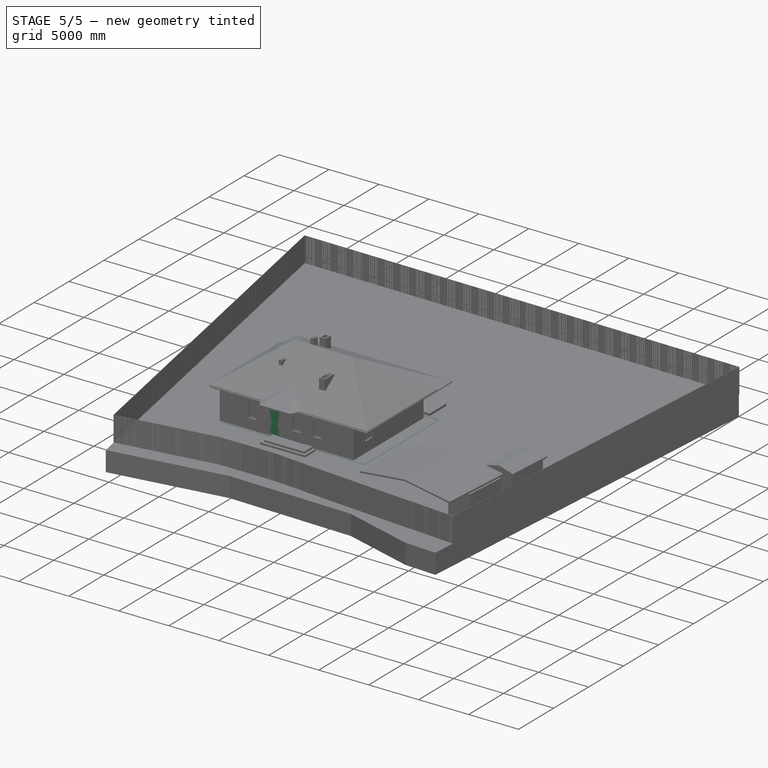
[diagram: stage 5 of 5 — iso view after this stage's code; geometry added in this stage tinted green]
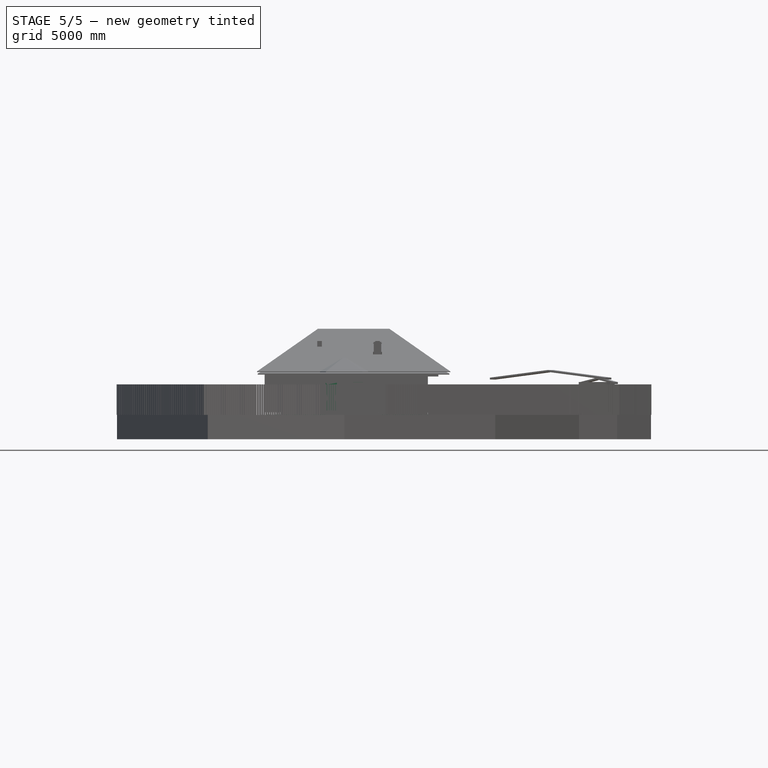
[diagram: stage 5 of 5 — front view after this stage's code; geometry added in this stage tinted green]
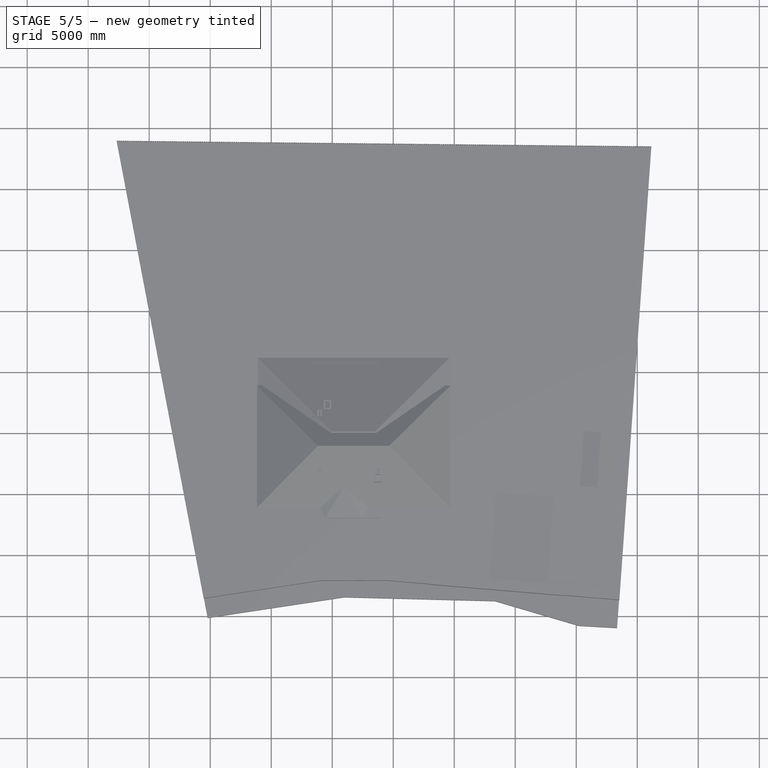
[diagram: stage 5 of 5 — top view after this stage's code; geometry added in this stage tinted green]
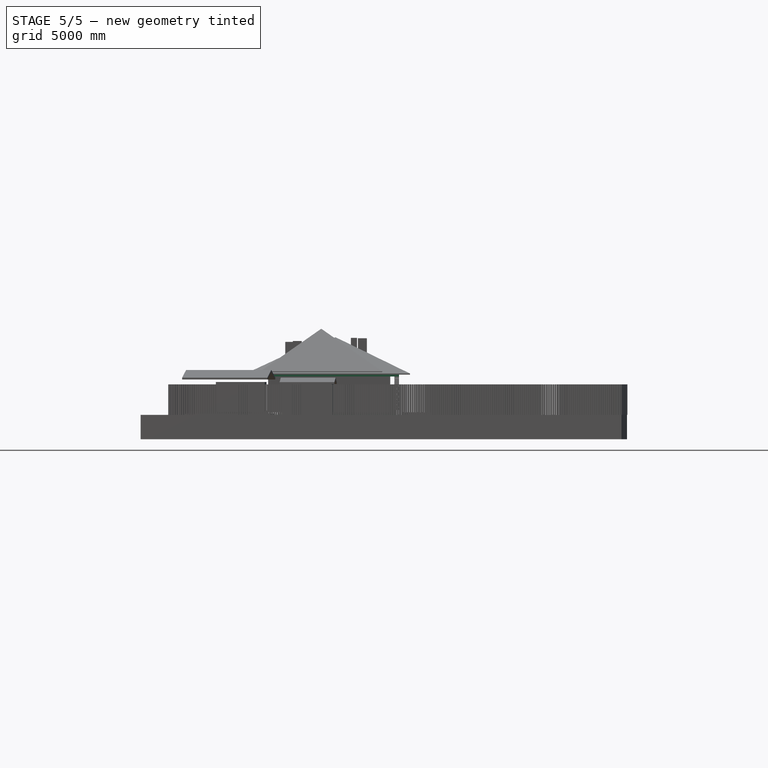
[diagram: stage 5 of 5 — right view after this stage's code; geometry added in this stage tinted green]
FEATURE [Part::Part2DObjectPython] Wire418  label="Контур по кровле"  # Draft 2D object (typed FeaturePython)
  ChamferSize = 0
  Closed = true
  End = (-1170,8830,0)
  FilletRadius = 0
  Length = 54925.2
  MakeFace = false
  Placement = pos=(-1225,-1170,0) rot=(0,0,1;0rad)
  Points = (12) [(55,-1.81899e-12,0),(6000.8,-1.81899e-12,0),(6480,-830,0),(9480,-830,0),(9959.2,-1.81899e-12,0),(15905,-1.81899e-12,0),(15905,10000,0),+5 more]
  Start = (-1170,-1170,0)
  Subdivisions = 0
FEATURE [Part::FeaturePython] Structure003  label="Проём-Д-135-250-01"  # Arch/BIM object (typed FeaturePython)
  Base = -> Rectangle2189
  FaceMaker = 0
  Height = 2500
  HorizontalArea = 540000
  IfcRole = 0
  Length = 0
  MoveWithHost = false
  Nodes = (2) [(2715,9160,0),(2715,9160,2500)]
  NodesOffset = 0
  Normal = (0,0,0)
  PerimeterLength = 3500
  Placement = pos=(0,0,-180) rot=(0,0,1;0rad)
  VerticalArea = 8750000
  Width = 100
FEATURE [Part::FeaturePython] Structure004  label="Проём-Д-135-250-02"  # Arch/BIM object (typed FeaturePython)
  Base = -> Rectangle2188
  FaceMaker = 0
  Height = 2500
  HorizontalArea = 748000
  IfcRole = 0
  Length = 0
  MoveWithHost = false
  Nodes = (2) [(6095,9160,0),(6095,9160,2500)]
  NodesOffset = 0
  Normal = (0,0,0)
  PerimeterLength = 4540
  Placement = pos=(0,0,-180) rot=(0,0,1;0rad)
  VerticalArea = 11350000
  Width = 100
FEATURE [Part::FeaturePython] Structure005  label="Проём-Д-135-250-03"  # Arch/BIM object (typed FeaturePython)
  Base = -> Rectangle2190
  FaceMaker = 0
  Height = 2500
  HorizontalArea = 540000
  IfcRole = 0
  Length = 0
  MoveWithHost = false
  Nodes = (2) [(9475,9160,0),(9475,9160,2500)]
  NodesOffset = 0
  Normal = (0,0,0)
  PerimeterLength = 3500
  Placement = pos=(0,0,-180) rot=(0,0,1;0rad)
  VerticalArea = 8750000
  Width = 100
FEATURE [Part::FeaturePython] Structure016  label="Проём-ОК-135-150-01"  # Arch/BIM object (typed FeaturePython)
  Base = -> Rectangle2230
  FaceMaker = 0
  Height = 1500
  HorizontalArea = 360000
  IfcRole = 0
  Length = 0
  MoveWithHost = false
  Nodes = (2) [(2705,-200,0),(2705,-200,1500)]
  NodesOffset = 0
  Normal = (0,0,0)
  PerimeterLength = 2600
  Placement = pos=(0,0,820) rot=(0,0,1;0rad)
  VerticalArea = 3.9e+06
  Width = 100
FEATURE [Part::FeaturePython] Structure017  label="Проём-ОК-115-150-01"  # Arch/BIM object (typed FeaturePython)
  Base = -> Rectangle2231
  FaceMaker = 0
  Height = 1500
  HorizontalArea = 360000
  IfcRole = 0
  Length = 0
  MoveWithHost = false
  Nodes = (2) [(9205,-200,0),(9205,-200,1500)]
  NodesOffset = 0
  Normal = (0,0,0)
  PerimeterLength = 2600
  Placement = pos=(0,0,820) rot=(0,0,1;0rad)
  VerticalArea = 3.9e+06
  Width = 100
FEATURE [Part::FeaturePython] Structure019  label="Проём-Д-100-250-004"  # Arch/BIM object (typed FeaturePython)
  Base = -> Rectangle2169
  FaceMaker = 0
  Height = 2500
  HorizontalArea = 400000
  IfcRole = 0
  Length = 0
  MoveWithHost = false
  Nodes = (2) [(4915,-200,0),(4915,-200,2500)]
  NodesOffset = 0
  Normal = (0,0,0)
  PerimeterLength = 2800
  Placement = pos=(0,0,-180) rot=(0,0,1;0rad)
  VerticalArea = 7e+06
  Width = 100
FEATURE [Part::Part2DObjectPython] Rectangle2256  label="Контур по ГБ"  # Draft 2D object (typed FeaturePython)
  ChamferSize = 0
  Columns = 1
  FilletRadius = 0
  Height = 8960
  Length = 12340
  MakeFace = false
  Placement = pos=(-20,-1.2e-15,0) rot=(0,0,1;0rad)
  Rows = 1
FEATURE [Part::Part2DObjectPython] Line1045  # Draft 2D object (typed FeaturePython)
  ChamferSize = 0
  Closed = false
  End = (-270,9210,0)
  FilletRadius = 0
  Length = 9460
  MakeFace = false
  Placement = pos=(-270,-150,0) rot=(0,0,1;0rad)
  Points = (2) [(2.27374e-13,-100,0),(2.27374e-13,9360,0)]
  Start = (-270,-250,0)
  Subdivisions = 0
FEATURE [Part::Part2DObjectPython] Line1046  # Draft 2D object (typed FeaturePython)
  ChamferSize = 0
  Closed = false
  End = (12570,9210,0)
  FilletRadius = 0
  Length = 12840
  MakeFace = false
  Placement = pos=(-270,9210,0) rot=(0,0,1;0rad)
  Points = (2) [(0,0,0),(12840,0,0)]
  Start = (-270,9210,0)
  Subdivisions = 0
FEATURE [Part::Part2DObjectPython] Line1047  # Draft 2D object (typed FeaturePython)
  ChamferSize = 0
  Closed = false
  End = (12570,9210,0)
  FilletRadius = 0
  Length = 9460
  MakeFace = false
  Placement = pos=(12570,9800,0) rot=(0,0,1;0rad)
  Points = (2) [(0,-10050,0),(1.81899e-12,-590,0)]
  Start = (12570,-250,0)
  Subdivisions = 0
FEATURE [Part::Part2DObjectPython] Line1048  # Draft 2D object (typed FeaturePython)
  ChamferSize = 0
  Closed = false
  End = (12570,-250,0)
  FilletRadius = 0
  Length = 12840
  MakeFace = false
  Placement = pos=(13571.8,-1937.87,0) rot=(0,0,1;0rad)
  Points = (2) [(-13841.8,1687.87,0),(-1001.83,1687.87,0)]
  Start = (-270,-250,0)
  Subdivisions = 0
FEATURE [Part::Part2DObjectPython] Line1049  # Draft 2D object (typed FeaturePython)
  ChamferSize = 0
  Closed = false
  End = (4025,9210,0)
  FilletRadius = 0
  Length = 9460
  MakeFace = false
  Placement = pos=(11605,3850,0) rot=(0,0,1;0rad)
  Points = (2) [(-7580,-4100,0),(-7580,5360,0)]
  Start = (4025,-250,0)
  Subdivisions = 0
FEATURE [Part::FeaturePython] Wall005  label="Стена ГБ D600 082"  # Arch/BIM object (typed FeaturePython)
  Align = 0
  Base = -> Line1046
  BlockHeight = 250
  BlockLength = 625
  CountBroken = 77
  CountEntire = 114
  Face = 0
  Height = 2750
  HorizontalArea = 3210000
  IfcRole = 156
  Joint = 0
  Length = 12840
  MakeBlocks = false
  MoveWithHost = false
  Normal = (0,0,0)
  OffsetFirst = 200
  OffsetSecond = 0
  PerimeterLength = 26180
  Placement = pos=(0,0,-180) rot=(0,0,1;0rad)
  Subtractions = -> [Structure003,Structure004,Structure005]
  VerticalArea = 5.2895e+07
  Width = 250
FEATURE [Part::Part2DObjectPython] Line1052  # Draft 2D object (typed FeaturePython)
  ChamferSize = 0
  Closed = false
  End = (6250,3060,0)
  FilletRadius = 0
  Length = 3060
  MakeFace = false
  Placement = pos=(6250,-40,0) rot=(0,0,1;0rad)
  Points = (2) [(0,40,0),(0,3100,0)]
  Start = (6250,3.837e-13,0)
  Subdivisions = 0
FEATURE [Part::Part2DObjectPython] Line1053  # Draft 2D object (typed FeaturePython)
  ChamferSize = 0
  Closed = false
  End = (9600,5360,0)
  FilletRadius = 0
  Length = 2400
  MakeFace = false
  Placement = pos=(9600,3360,0) rot=(0,0,1;0rad)
  Points = (2) [(0,-400,0),(0,2000,0)]
  Start = (9600,2960,0)
  Subdivisions = 0
FEATURE [Part::Part2DObjectPython] Line1054  # Draft 2D object (typed FeaturePython)
  ChamferSize = 0
  Closed = false
  End = (9600,3960,0)
  FilletRadius = 0
  Length = 2720
  MakeFace = false
  Placement = pos=(10200,3460,0) rot=(0,0,1;0rad)
  Points = (2) [(2120,500,0),(-600,500,0)]
  Start = (12320,3960,0)
  Subdivisions = 0
FEATURE [Part::FeaturePython] Wall013  label="перегородка 001"  # Arch/BIM object (typed FeaturePython)
  Align = 0
  Base = -> Line1052
  BlockHeight = 250
  BlockLength = 625
  CountBroken = 16
  CountEntire = 44
  Face = 0
  Height = 2750
  HorizontalArea = 306000
  IfcRole = 156
  Joint = 0
  Length = 3060
  MakeBlocks = false
  MoveWithHost = false
  Normal = (0,0,0)
  OffsetFirst = 0
  OffsetSecond = 300
  PerimeterLength = 6320
  VerticalArea = 1.738e+07
  Width = 100
FEATURE [Part::FeaturePython] Wall014  label="перегородка 008"  # Arch/BIM object (typed FeaturePython)
  Align = 0
  Base = -> Line1053
  BlockHeight = 250
  BlockLength = 625
  CountBroken = 16
  CountEntire = 33
  Face = 0
  Height = 2750
  HorizontalArea = 240000
  IfcRole = 156
  Joint = 0
  Length = 2400
  MakeBlocks = false
  MoveWithHost = false
  Normal = (0,0,0)
  OffsetFirst = 0
  OffsetSecond = 300
  PerimeterLength = 5000
  VerticalArea = 13750000
  Width = 100
FEATURE [Part::Part2DObjectPython] Line1056  # Draft 2D object (typed FeaturePython)
  ChamferSize = 0
  Closed = false
  End = (12300,4600,0)
  FilletRadius = 0
  Length = 1000
  MakeFace = false
  Placement = pos=(12300,2500,0) rot=(0,0,1;0rad)
  Points = (2) [(0,1100,0),(0,2100,0)]
  Start = (12300,3600,0)
  Subdivisions = 0
FEATURE [Part::Part2DObjectPython] Line1058  # Draft 2D object (typed FeaturePython)
  ChamferSize = 0
  Closed = false
  End = (3775,2130,0)
  FilletRadius = 0
  Length = 3795
  MakeFace = false
  Placement = pos=(1780,2130,0) rot=(0,0,1;0rad)
  Points = (2) [(-1800,-4.54747e-13,0),(1995,9.09495e-13,0)]
  Start = (-20,2130,0)
  Subdivisions = 0
FEATURE [Part::Part2DObjectPython] Line1059  # Draft 2D object (typed FeaturePython)
  ChamferSize = 0
  Closed = false
  End = (4150,5360,0)
  FilletRadius = 0
  Length = 4000
  MakeFace = false
  Placement = pos=(5350,5360,0) rot=(0,0,-1;1.5708rad)
  Points = (2) [(1.81899e-12,2800,0),(0,-1200,0)]
  Start = (8150,5360,0)
  Subdivisions = 0
FEATURE [Part::Part2DObjectPython] Line1061  # Draft 2D object (typed FeaturePython)
  ChamferSize = 0
  Closed = false
  End = (10700,2560,0)
  FilletRadius = 0
  Length = 500
  MakeFace = false
  Placement = pos=(10700,3160,0) rot=(0,0,1;0rad)
  Points = (2) [(0,-100,0),(0,-600,0)]
  Start = (10700,3060,0)
  Subdivisions = 0
FEATURE [Part::FeaturePython] Wall018  label="перегородка 033"  # Arch/BIM object (typed FeaturePython)
  Align = 1
  Base = -> Line1058
  BlockHeight = 250
  BlockLength = 625
  CountBroken = 22
  CountEntire = 61
  Face = 0
  Height = 2750
  HorizontalArea = 379500
  IfcRole = 156
  Joint = 0
  Length = 3795
  MakeBlocks = false
  MoveWithHost = false
  Normal = (0,0,0)
  OffsetFirst = 25
  OffsetSecond = 300
  PerimeterLength = 7790
  VerticalArea = 21422500
  Width = 100
FEATURE [Part::FeaturePython] Wall019  label="перегородка 029"  # Arch/BIM object (typed FeaturePython)
  Align = 1
  Base = -> Line1061
  BlockHeight = 250
  BlockLength = 625
  CountBroken = 1
  CountEntire = 0
  Face = 0
  Height = 2750
  HorizontalArea = 50000
  IfcRole = 156
  Joint = 0
  Length = 500
  MakeBlocks = false
  MoveWithHost = false
  Normal = (0,0,0)
  OffsetFirst = 0
  OffsetSecond = 300
  PerimeterLength = 1200
  VerticalArea = 3.3e+06
  Width = 100
FEATURE [Part::FeaturePython] Array006  # Draft array (typed FeaturePython)
  Angle = 360
  ArrayType = 0
  Axis = (0,0,1)
  Base = -> Extrude001
  Center = (0,0,0)
  Fuse = false
  IntervalAxis = (0,0,0)
  IntervalX = (0,0,0)
  IntervalY = (0,1200,0)
  IntervalZ = (0,0,1)
  NumberPolar = 1
  NumberX = 1
  NumberY = 1
  NumberZ = 1
FEATURE [Part::Part2DObjectPython] Rectangle2265  label="внутренний_контур"  # Draft 2D object (typed FeaturePython)
  ChamferSize = 0
  Columns = 1
  FilletRadius = 0
  Height = 10000
  Length = 13500
  MakeFace = false
  Placement = pos=(-9.9e-14,0,0) rot=(0,0,1;0rad)
  Rows = 1
FEATURE [Part::FeaturePython] Wall027  label="ГБ ряд под мауэрлат"  # Arch/BIM object (typed FeaturePython)
  Align = 0
  Base = -> Rectangle2265
  BlockHeight = 250
  BlockLength = 625
  CountBroken = 75
  CountEntire = 0
  Face = 0
  Height = 200
  HorizontalArea = 1984000
  IfcRole = 156
  Joint = 0
  Length = 47000
  MakeBlocks = true
  MoveWithHost = false
  Normal = (0,0,0)
  Offset = -50
  OffsetFirst = 200
  OffsetSecond = 0
  PerimeterLength = 39880
  Placement = pos=(0,0,2910) rot=(0,0,1;0rad)
  VerticalArea = 19840000
  Width = 250
FEATURE [App::GeometryPython] BuildingPart009  label="Колонна_002"  # Arch/BIM object (typed FeaturePython)
  Area = 0
  Group = -> [Wall032,Wall033,Wall034,Wall035]
  Height = 0
  IfcRole = 0
  LevelOffset = 0
FEATURE [Sketcher::SketchObject] Sketch232
  Placement = pos=(10150,9360,-180) rot=(0,0.707107,0.707107;3.14159rad)
  sketch-geometry (24):
    g0: LineSegment StartX=0 StartY=0 StartZ=0 EndX=1350 EndY=0 EndZ=0
    g1: LineSegment StartX=1350 StartY=0 StartZ=0 EndX=1350 EndY=2360 EndZ=0
    g2: LineSegment StartX=1350 StartY=2360 StartZ=0 EndX=0 EndY=2360 EndZ=0
    g3: LineSegment StartX=0 StartY=2360 StartZ=0 EndX=0 EndY=0 EndZ=0
    g4: LineSegment StartX=50 StartY=50 StartZ=0 EndX=1300 EndY=50 EndZ=0
    g5: LineSegment StartX=1300 StartY=50 StartZ=0 EndX=1300 EndY=2310 EndZ=0
    g6: LineSegment StartX=1300 StartY=2310 StartZ=0 EndX=50 EndY=2310 EndZ=0
    g7: LineSegment StartX=50 StartY=2310 StartZ=0 EndX=50 EndY=50 EndZ=0
    g8: LineSegment StartX=58 StartY=58 StartZ=0 EndX=671 EndY=58 EndZ=0
    g9: LineSegment StartX=671 StartY=58 StartZ=0 EndX=671 EndY=2302 EndZ=0
    g10: LineSegment StartX=671 StartY=2302 StartZ=0 EndX=58 EndY=2302 EndZ=0
    g11: LineSegment StartX=58 StartY=2302 StartZ=0 EndX=58 EndY=58 EndZ=0
    g12: LineSegment StartX=108 StartY=108 StartZ=0 EndX=621 EndY=108 EndZ=0
    g13: LineSegment StartX=621 StartY=108 StartZ=0 EndX=621 EndY=2252 EndZ=0
    g14: LineSegment StartX=621 StartY=2252 StartZ=0 EndX=108 EndY=2252 EndZ=0
    g15: LineSegment StartX=108 StartY=2252 StartZ=0 EndX=108 EndY=108 EndZ=0
    g16: LineSegment StartX=679 StartY=58 StartZ=0 EndX=1292 EndY=58 EndZ=0
    g17: LineSegment StartX=1292 StartY=58 StartZ=0 EndX=1292 EndY=2302 EndZ=0
    g18: LineSegment StartX=1292 StartY=2302 StartZ=0 EndX=679 EndY=2302 EndZ=0
    g19: LineSegment StartX=679 StartY=2302 StartZ=0 EndX=679 EndY=58 EndZ=0
    g20: LineSegment StartX=729 StartY=108 StartZ=0 EndX=1242 EndY=108 EndZ=0
    g21: LineSegment StartX=1242 StartY=108 StartZ=0 EndX=1242 EndY=2252 EndZ=0
    g22: LineSegment StartX=1242 StartY=2252 StartZ=0 EndX=729 EndY=2252 EndZ=0
    g23: LineSegment StartX=729 StartY=2252 StartZ=0 EndX=729 EndY=108 EndZ=0
  constraints (71):
    c: Coincident(g0,g1)
    c: Coincident(g1,g2)
    c: Coincident(g2,g3)
    c: Coincident(g3,g0)
    c: Horizontal(g0)
    c: Horizontal(g2)
    c: Vertical(g1)
    c: Vertical(g3)
    c: Coincident(g4,g5)
    c: Coincident(g5,g6)
    c: Coincident(g6,g7)
    c: Coincident(g7,g4)
    c: Horizontal(g4)
    c: Horizontal(g6)
    c: Vertical(g5)
    c: Vertical(g7)
    c: DistanceY(g1) = 2360  'Height'
    c: DistanceX(g0) = 1350  'Width'
    c: DistanceY(g6,g2) = 50  'Frame1'
    c: DistanceX(g2,g6) = 50  'Frame2'
    c: DistanceX(g4,g0) = 50  'Frame3'
    c: DistanceY(g0,g4) = 50  'Frame4'
    c: Coincident(g0,g-1)
    c: Coincident(g8,g9)
    c: Coincident(g9,g10)
    c: Coincident(g10,g11)
    c: Coincident(g11,g8)
    c: Horizontal(g8)
    c: Horizontal(g10)
    c: Vertical(g9)
    c: Vertical(g11)
    c: Coincident(g12,g13)
    c: Coincident(g13,g14)
    c: Coincident(g14,g15)
    c: Coincident(g15,g12)
    c: Horizontal(g12)
    c: Horizontal(g14)
    c: Vertical(g13)
    c: Vertical(g15)
    c: Coincident(g16,g17)
    c: Coincident(g17,g18)
    c: Coincident(g18,g19)
    c: Coincident(g19,g16)
    c: Horizontal(g16)
    c: Horizontal(g18)
    c: Vertical(g17)
    c: Vertical(g19)
    c: Coincident(g20,g21)
    c: Coincident(g21,g22)
    c: Coincident(g22,g23)
    c: Coincident(g23,g20)
    c: Horizontal(g20)
    c: Horizontal(g22)
    c: Vertical(g21)
    c: Vertical(g23)
    c: DistanceY(g8,g12) = 50  'Frame5'
    c: DistanceX(g8,g12) = 50  'Frame6'
    c: DistanceX(g21,g17) = 50  'Frame7'
    c: DistanceY(g21,g17) = 50  'Frame8'
    c: DistanceX(g16,g20) = 50  'Frame9'
    c: DistanceX(g14,g10) = 50  'Frame10'
    c: Equal(g22,g14)
    c: DistanceY(g8,g16) = 0
    c: DistanceY(g10,g18) = 0
    c: DistanceX(g4,g8) = 8
    c: DistanceY(g4,g8) = 8
    c: DistanceX(g6,g18) = -8
    c: DistanceY(g6,g18) = -8
    c: DistanceX(g9,g19) = 8
    c: PointOnObject(g13,g22)
    c: PointOnObject(g20,g12)
FEATURE [Part::FeaturePython] Window  label="Д-135-001"  # Arch/BIM object (typed FeaturePython)
  Area = 3186000
  Base = -> Sketch232
  Frame = 50
  Height = 2360
  HoleDepth = 0
  HoleWire = 0
  HorizontalArea = 0
  IfcRole = 160
  LouvreSpacing = 0
  LouvreWidth = 0
  MoveWithHost = true
  Normal = (0,-1,2e-16)
  Opening = 0
  PerimeterLength = 0
  Placement = pos=(0,0,140) rot=(0,0,1;0rad)
  Preset = 3
  SymbolElevation = false
  SymbolPlan = false
  VerticalArea = 0
  Width = 1350
  WindowParts = OuterFrame | Frame | Wire0,Wire1 | 50.0+V | 0.00+V | LeftFrame | Frame | Wire2,Wire3 | 100.0 | 80.0+V | LeftGlass | Glass panel | Wire3 | 10.0 | 130.0+V | RightFrame | Frame | Wire4,Wire5 | 100.0 | 80.0+V | RightGlass | Glass panel | Wire5 | 10.0 | 130.0+V
FEATURE [Part::FeaturePython] Window002  label="Д-135-008"  # Arch/BIM object (typed FeaturePython)
  Area = 3186000
  Base = -> Sketch232
  Frame = 50
  Height = 2360
  HoleDepth = 0
  HoleWire = 0
  HorizontalArea = 0
  IfcRole = 160
  LouvreSpacing = 0
  LouvreWidth = 0
  MoveWithHost = true
  Normal = (0,-1,2e-16)
  Opening = 0
  PerimeterLength = 0
  Placement = pos=(-6760,0,140) rot=(0,0,1;0rad)
  Preset = 3
  SymbolElevation = false
  SymbolPlan = false
  VerticalArea = 0
  Width = 1350
  WindowParts = <same value as first occurrence — deduplicated (x3 in doc)>
FEATURE [Sketcher::SketchObject] Sketch236
  Placement = pos=(4390,-520,-180) rot=(1,0,0;1.5708rad)
  sketch-geometry (16):
    g0: LineSegment StartX=0 StartY=0 StartZ=0 EndX=1050 EndY=0 EndZ=0
    g1: LineSegment StartX=1050 StartY=0 StartZ=0 EndX=1050 EndY=2335 EndZ=0
    g2: LineSegment StartX=1050 StartY=2335 StartZ=0 EndX=0 EndY=2335 EndZ=0
    g3: LineSegment StartX=0 StartY=2335 StartZ=0 EndX=0 EndY=0 EndZ=0
    g4: LineSegment StartX=50 StartY=0 StartZ=0 EndX=1000 EndY=0 EndZ=0
    g5: LineSegment StartX=1000 StartY=0 StartZ=0 EndX=1000 EndY=2285 EndZ=0
    g6: LineSegment StartX=1000 StartY=2285 StartZ=0 EndX=50 EndY=2285 EndZ=0
    g7: LineSegment StartX=50 StartY=2285 StartZ=0 EndX=50 EndY=0 EndZ=0
    g8: LineSegment StartX=55 StartY=5 StartZ=0 EndX=995 EndY=5 EndZ=0
    g9: LineSegment StartX=995 StartY=5 StartZ=0 EndX=995 EndY=2280 EndZ=0
    g10: LineSegment StartX=995 StartY=2280 StartZ=0 EndX=55 EndY=2280 EndZ=0
    g11: LineSegment StartX=55 StartY=2280 StartZ=0 EndX=55 EndY=5 EndZ=0
    g12: LineSegment StartX=205 StartY=1005 StartZ=0 EndX=845 EndY=1005 EndZ=0
    g13: LineSegment StartX=845 StartY=1005 StartZ=0 EndX=845 EndY=2130 EndZ=0
    g14: LineSegment StartX=845 StartY=2130 StartZ=0 EndX=205 EndY=2130 EndZ=0
    g15: LineSegment StartX=205 StartY=2130 StartZ=0 EndX=205 EndY=1005 EndZ=0
  constraints (47):
    c: Coincident(g0,g1)
    c: Coincident(g1,g2)
    c: Coincident(g2,g3)
    c: Coincident(g3,g0)
    c: Horizontal(g0)
    c: Horizontal(g2)
    c: Vertical(g1)
    c: Vertical(g3)
    c: Coincident(g4,g5)
    c: Coincident(g5,g6)
    c: Coincident(g6,g7)
    c: Coincident(g7,g4)
    c: Horizontal(g4)
    c: Horizontal(g6)
    c: Vertical(g5)
    c: Vertical(g7)
    c: DistanceY(g1) = 2335  'Height'
    c: DistanceX(g0) = 1050  'Width'
    c: DistanceY(g6,g2) = 50  'Frame1'
    c: DistanceX(g2,g6) = 50  'Frame2'
    c: DistanceX(g4,g0) = 50  'Frame3'
    c: DistanceY(g0,g4) = 0
    c: Coincident(g0,g-1)
    c: Coincident(g8,g9)
    c: Coincident(g9,g10)
    c: Coincident(g10,g11)
    c: Coincident(g11,g8)
    c: Horizontal(g8)
    c: Horizontal(g10)
    c: Vertical(g9)
    c: Vertical(g11)
    c: Coincident(g12,g13)
    c: Coincident(g13,g14)
    c: Coincident(g14,g15)
    c: Coincident(g15,g12)
    c: Horizontal(g12)
    c: Horizontal(g14)
    c: Vertical(g13)
    c: Vertical(g15)
    c: DistanceX(g8,g12) = 150
    c: DistanceY(g8,g12) = 1000
    c: DistanceX(g14,g10) = 150
    c: DistanceY(g14,g10) = 150
    c: DistanceX(g4,g8) = 5
    c: DistanceY(g4,g8) = 5
    c: DistanceX(g10,g6) = 5
    c: DistanceY(g10,g6) = 5
FEATURE [Part::FeaturePython] Window009  label="Д-100-001"  # Arch/BIM object (typed FeaturePython)
  Area = 2451750
  Base = -> Sketch236
  Frame = 50
  Height = 2335
  HoleDepth = 0
  HoleWire = 0
  HorizontalArea = 0
  IfcRole = 42
  LouvreSpacing = 0
  LouvreWidth = 0
  MoveWithHost = true
  Normal = (0,1,-2e-16)
  Offset = 70
  Opening = 0
  PerimeterLength = 0
  Placement = pos=(0,0,140) rot=(0,0,1;0rad)
  Preset = 7
  SymbolElevation = false
  SymbolPlan = false
  VerticalArea = 0
  Width = 1050
  WindowParts = OuterFrame | Frame | Wire0,Wire1 | 0.0+V | 0.00+V | InnerFrame | Frame | Wire2,Wire3 | 0.00+V | 0.0+V | InnerGlass | Glass panel | Wire3 | 8.0 | 40.0+V
FEATURE [Sketcher::SketchObject] Sketch238
  Placement = pos=(8500,2960,-180) rot=(1,0,0;1.5708rad)
  sketch-geometry (8):
    g0: LineSegment StartX=0 StartY=0 StartZ=0 EndX=900 EndY=0 EndZ=0
    g1: LineSegment StartX=900 StartY=0 StartZ=0 EndX=900 EndY=2070 EndZ=0
    g2: LineSegment StartX=900 StartY=2070 StartZ=0 EndX=0 EndY=2070 EndZ=0
    g3: LineSegment StartX=0 StartY=2070 StartZ=0 EndX=0 EndY=0 EndZ=0
    g4: LineSegment StartX=50 StartY=0 StartZ=0 EndX=850 EndY=0 EndZ=0
    g5: LineSegment StartX=850 StartY=0 StartZ=0 EndX=850 EndY=2020 EndZ=0
    g6: LineSegment StartX=850 StartY=2020 StartZ=0 EndX=50 EndY=2020 EndZ=0
    g7: LineSegment StartX=50 StartY=2020 StartZ=0 EndX=50 EndY=0 EndZ=0
  constraints (23):
    c: Coincident(g0,g1)
    c: Coincident(g1,g2)
    c: Coincident(g2,g3)
    c: Coincident(g3,g0)
    c: Horizontal(g0)
    c: Horizontal(g2)
    c: Vertical(g1)
    c: Vertical(g3)
    c: Coincident(g4,g5)
    c: Coincident(g5,g6)
    c: Coincident(g6,g7)
    c: Coincident(g7,g4)
    c: Horizontal(g4)
    c: Horizontal(g6)
    c: Vertical(g5)
    c: Vertical(g7)
    c: DistanceY(g1) = 2070  'Height'
    c: DistanceX(g0) = 900  'Width'
    c: DistanceY(g6,g2) = 50  'Frame1'
    c: DistanceX(g2,g6) = 50  'Frame2'
    c: DistanceX(g4,g0) = 50  'Frame3'
    c: DistanceY(g0,g4) = 0
    c: Coincident(g0,g-1)
FEATURE [Part::FeaturePython] Window011  label="Д-90-006"  # Arch/BIM object (typed FeaturePython)
  Area = 1863000
  Base = -> Sketch238
  Frame = 50
  Height = 2070
  HoleDepth = 0
  HoleWire = 0
  HorizontalArea = 0
  IfcRole = 42
  LouvreSpacing = 0
  LouvreWidth = 0
  MoveWithHost = true
  Normal = (0,1,-2e-16)
  Opening = 0
  PerimeterLength = 0
  Placement = pos=(0,0,180) rot=(0,0,1;0rad)
  Preset = 6
  SymbolElevation = false
  SymbolPlan = false
  VerticalArea = 0
  Width = 900
  WindowParts = OuterFrame | Frame | Wire0,Wire1 | 0.0+V | 0.00+V | Door | Solid panel | Wire1 | 50.0 | 0.0+V
FEATURE [Part::Part2DObjectPython] Line1074  label="ось фундамента внутр.стены"  # Draft 2D object (typed FeaturePython)
  ChamferSize = 0
  Closed = false
  End = (4700,10000,0)
  FilletRadius = 0
  Length = 10000
  MakeFace = false
  Placement = pos=(3000,2900,0) rot=(0,0,1;1.5708rad)
  Points = (2) [(-2900,-1700,0),(7100,-1700,0)]
  Start = (4700,-1.819e-12,0)
  Subdivisions = 0
FEATURE [Part::FeaturePython] Wall037  label="фундамент внутр.стена01"  # Arch/BIM object (typed FeaturePython)
  Align = 2
  Base = -> Line1074
  BlockHeight = 0
  BlockLength = 0
  CountBroken = 0
  CountEntire = 0
  Face = 0
  Height = 500
  HorizontalArea = 2e+06
  IfcRole = 156
  Joint = 0
  Length = 10000
  MakeBlocks = false
  MoveWithHost = false
  Normal = (0,0,-1)
  OffsetFirst = 0
  OffsetSecond = 0
  PerimeterLength = 20400
  Placement = pos=(0,0,-180) rot=(0,0,1;0rad)
  VerticalArea = 1.02e+07
  Width = 200
FEATURE [Part::FeaturePython] Wall038  label="фундамент внутр. стена"  # Arch/BIM object (typed FeaturePython)
  Additions = -> [Wall037]
  Align = 2
  Base = -> Line1074
  BlockHeight = 0
  BlockLength = 0
  CountBroken = 0
  CountEntire = 0
  Face = 0
  Height = 300
  HorizontalArea = 5e+06
  IfcRole = 156
  Joint = 0
  Length = 10000
  MakeBlocks = false
  MoveWithHost = false
  Normal = (0,0,-1)
  OffsetFirst = 0
  OffsetSecond = 0
  PerimeterLength = 28620
  Placement = pos=(-25,0,-680) rot=(0,0,1;0rad)
  VerticalArea = 1.65e+07
  Width = 500
FEATURE [Part::FeaturePython] Structure030  label="блок утеплителя 60*10*20 001"  # Arch/BIM object (typed FeaturePython)
  FaceMaker = 0
  Height = 200
  HorizontalArea = 60000
  IfcRole = 8
  Length = 600
  MoveWithHost = false
  Nodes = (2) [(0,0,-3.88578e-16),(0,0,600)]
  NodesOffset = 0
  Normal = (0,0,0)
  PerimeterLength = 1400
  Placement = pos=(-100,10250,-280) rot=(0,0,1;0rad)
  VerticalArea = 280000
  Width = 100
FEATURE [Part::FeaturePython] Array  label="массив утепления 001"  # Draft array (typed FeaturePython)
  Angle = 360
  ArrayType = 0
  Axis = (0,0,1)
  Base = -> Structure030
  Center = (0,0,0)
  Fuse = false
  IntervalAxis = (0,0,0)
  IntervalX = (780,0,0)
  IntervalY = (0,1,0)
  IntervalZ = (0,0,1)
  NumberPolar = 1
  NumberX = 18
  NumberY = 1
  NumberZ = 1
FEATURE [Part::FeaturePython] Structure031  label="блок утеплителя 60*10*20 002"  # Arch/BIM object (typed FeaturePython)
  FaceMaker = 0
  Height = 200
  HorizontalArea = 60000
  IfcRole = 8
  Length = 600
  MoveWithHost = false
  Nodes = (2) [(0,0,-3.88578e-16),(0,0,600)]
  NodesOffset = 0
  Normal = (0,0,0)
  PerimeterLength = 1400
  Placement = pos=(-100,-250,-280) rot=(0,0,1;0rad)
  VerticalArea = 280000
  Width = 100
FEATURE [Part::FeaturePython] Array010  label="массив утепления 010"  # Draft array (typed FeaturePython)
  Angle = 360
  ArrayType = 0
  Axis = (0,0,1)
  Base = -> Structure031
  Center = (0,0,0)
  Fuse = false
  IntervalAxis = (0,0,0)
  IntervalX = (780,0,0)
  IntervalY = (0,1,0)
  IntervalZ = (0,0,1)
  NumberPolar = 1
  NumberX = 18
  NumberY = 1
  NumberZ = 1
FEATURE [Part::FeaturePython] Structure032  label="блок утеплителя 60*10*20 003"  # Arch/BIM object (typed FeaturePython)
  FaceMaker = 0
  Height = 200
  HorizontalArea = 60000
  IfcRole = 8
  Length = 100
  MoveWithHost = false
  Nodes = (2) [(-1.94289e-16,5.68434e-15,0),(-1.94289e-16,5.68434e-15,200)]
  NodesOffset = 0
  Normal = (0,0,0)
  PerimeterLength = 1400
  Placement = pos=(-250,300,-380) rot=(0,0,1;0rad)
  VerticalArea = 280000
  Width = 600
FEATURE [Part::FeaturePython] Array011  label="массив утепления 011"  # Draft array (typed FeaturePython)
  Angle = 360
  ArrayType = 0
  Axis = (0,0,1)
  Base = -> Structure032
  Center = (0,0,0)
  Fuse = false
  IntervalAxis = (0,0,0)
  IntervalX = (0,0,0)
  IntervalY = (0,790,0)
  IntervalZ = (0,0,1)
  NumberPolar = 1
  NumberX = 1
  NumberY = 13
  NumberZ = 1
FEATURE [Part::FeaturePython] Structure033  label="блок утеплителя 60*10*20 004"  # Arch/BIM object (typed FeaturePython)
  FaceMaker = 0
  Height = 200
  HorizontalArea = 60000
  IfcRole = 8
  Length = 100
  MoveWithHost = false
  Nodes = (2) [(-1.94289e-16,5.68434e-15,0),(-1.94289e-16,5.68434e-15,200)]
  NodesOffset = 0
  Normal = (0,0,0)
  PerimeterLength = 1400
  Placement = pos=(13750,300,-380) rot=(0,0,1;0rad)
  VerticalArea = 280000
  Width = 600
FEATURE [Part::FeaturePython] Array012  label="массив утепления 012"  # Draft array (typed FeaturePython)
  Angle = 360
  ArrayType = 0
  Axis = (0,0,1)
  Base = -> Structure033
  Center = (0,0,0)
  Fuse = false
  IntervalAxis = (0,0,0)
  IntervalX = (0,0,0)
  IntervalY = (0,780,0)
  IntervalZ = (0,0,1)
  NumberPolar = 1
  NumberX = 1
  NumberY = 13
  NumberZ = 1
FEATURE [Part::Part2DObjectPython] Rectangle2270  label="перекрытие монолит.уч. контур 003"  # Draft 2D object (typed FeaturePython)
  ChamferSize = 0
  Columns = 1
  FilletRadius = 0
  Height = 900
  Length = 4000
  MakeFace = false
  Placement = pos=(4700,5100,0) rot=(0,0,1;0rad)
  Rows = 1
FEATURE [Part::FeaturePython] Structure038  label="перекрытие монолит.уч. 002"  # Arch/BIM object (typed FeaturePython)
  Base = -> Rectangle2270
  FaceMaker = 0
  Height = 160
  HorizontalArea = 540000
  IfcRole = 0
  Length = 0
  MoveWithHost = false
  Nodes = (2) [(6700,5550,0),(6700,5550,160)]
  NodesOffset = 0
  Normal = (0,0,0)
  PerimeterLength = 3000
  Placement = pos=(0,0,2750) rot=(0,0,1;0rad)
  Subtractions = -> [Structure037]
  VerticalArea = 480000
  Width = 100
FEATURE [App::GeometryPython] BuildingPart015  label="Колодец d1000 (ввод воды и канализации)"  # Arch/BIM object (typed FeaturePython)
  Area = 0
  Group = -> [Structure040,Structure043]
  Height = 0
  IfcRole = 0
  LevelOffset = 0
FEATURE [Part::Part2DObjectPython] Line1077  # Draft 2D object (typed FeaturePython)
  ChamferSize = 0
  Closed = false
  End = (50,50,0)
  FilletRadius = 0
  Length = 13400
  MakeFace = false
  Placement = pos=(12180,100,0) rot=(0,0,1;0rad)
  Points = (2) [(1270,-50,0),(-12130,-50,0)]
  Start = (13450,50,0)
  Subdivisions = 0
FEATURE [Part::Part2DObjectPython] Rectangle2272  label="Контур по плитам"  # Draft 2D object (typed FeaturePython)
  ChamferSize = 0
  Columns = 1
  FilletRadius = 0
  Height = 9990
  Length = 13680
  MakeFace = false
  Placement = pos=(-90,5,0) rot=(0,0,1;0rad)
  Rows = 1
FEATURE [Part::FeaturePython] Structure045  label="Пояс перекрытия вычит. объём"  # Arch/BIM object (typed FeaturePython)
  Base = -> Rectangle2272
  FaceMaker = 0
  Height = 160
  HorizontalArea = 1.36663e+08
  IfcRole = 0
  Length = 0
  MoveWithHost = false
  Nodes = (2) [(6040,3830,0),(6040,3830,220)]
  NodesOffset = 0
  Normal = (0,0,0)
  PerimeterLength = 47340
  Placement = pos=(0,0,2750) rot=(0,0,1;0rad)
  VerticalArea = 7.5744e+06
  Width = 100
FEATURE [Part::FeaturePython] Structure049  label="вычитаемый объём 002"  # Arch/BIM object (typed FeaturePython)
  Base = -> Wire424
  FaceMaker = 0
  Height = 4000
  HorizontalArea = 3.6e+07
  IfcRole = 0
  Length = 0
  MoveWithHost = false
  Nodes = (2) [(506.667,3830,0),(506.667,3830,4000)]
  NodesOffset = 0
  Normal = (0,0,1)
  PerimeterLength = 28970.6
  Placement = pos=(0,0,3160) rot=(0,0,1;0rad)
  VerticalArea = 1.15882e+08
  Width = 100
FEATURE [Part::FeaturePython] Structure051  label="вычитаемый объём 003"  # Arch/BIM object (typed FeaturePython)
  Base = -> Wire426
  FaceMaker = 0
  Height = 4000
  HorizontalArea = 3.6e+07
  IfcRole = 0
  Length = 0
  MoveWithHost = false
  Nodes = (2) [(12500,5000,0),(12500,5000,4000)]
  NodesOffset = 0
  Normal = (0,0,1)
  PerimeterLength = 28970.6
  Placement = pos=(0,0,3160) rot=(0,0,1;0rad)
  VerticalArea = 1.15882e+08
  Width = 100
FEATURE [Part::FeaturePython] Structure052  label="Плоскость стропила001"  # Arch/BIM object (typed FeaturePython)
  FaceMaker = 0
  Height = 5000
  HorizontalArea = 850000
  IfcRole = 8
  Length = 17000
  MoveWithHost = false
  Nodes = (2) [(0,1.81899e-16,-8.88178e-15),(0,1.81899e-16,17000)]
  NodesOffset = 0
  Normal = (0,0,0)
  PerimeterLength = 34100
  Placement = pos=(-2000,55,4500) rot=(0,0,1;0rad)
  VerticalArea = 170500000
  Width = 50
FEATURE [Part::FeaturePython] Array014  # Draft array (typed FeaturePython)
  Angle = 360
  ArrayType = 0
  Axis = (0,0,1)
  Base = -> Structure052
  Center = (0,0,0)
  Fuse = false
  IntervalAxis = (0,0,0)
  IntervalX = (1,0,0)
  IntervalY = (0,630,0)
  IntervalZ = (0,0,1)
  NumberPolar = 1
  NumberX = 1
  NumberY = 17
  NumberZ = 1
  Placement = pos=(0,-100,0) rot=(0,0,1;0rad)
FEATURE [Part::MultiCommon] Common001
  Shapes = -> [Array014,Structure049]
FEATURE [Part::MultiCommon] Common002
  Shapes = -> [Array014,Structure051]
FEATURE [Part::Part2DObjectPython] Line1083  # Draft 2D object (typed FeaturePython)
  ChamferSize = 0
  Closed = false
  End = (0,3830,6545.19)
  FilletRadius = 0
  Length = 6103.87
  MakeFace = false
  Placement = pos=(0,8830,3044.15) rot=(0.57735,0.57735,0.57735;2.0944rad)
  Points = (2) [(0,0,0),(-5000,3501.04,0)]
  Start = (0,8830,3044.15)
  Subdivisions = 0
FEATURE [Part::Part2DObjectPython] Rectangle2289  # Draft 2D object (typed FeaturePython)
  ChamferSize = 0
  Columns = 1
  FilletRadius = 0
  Height = 900
  Length = 50
  MakeFace = false
  Placement = pos=(0,8807.98,2996.65) rot=(0.690104,0.217974,0.690104;2.71236rad)
  Rows = 1
FEATURE [Part::Part2DObjectPython] Line1084  # Draft 2D object (typed FeaturePython)
  ChamferSize = 0
  Closed = false
  End = (8500,5000,0)
  FilletRadius = 0
  Length = 3500
  MakeFace = false
  Placement = pos=(3840,3830,0) rot=(0,0,1;0rad)
  Points = (2) [(1160,1170,0),(4660,1170,0)]
  Start = (5000,5000,0)
  Subdivisions = 0
FEATURE [Part::Part2DObjectPython] Line1085  # Draft 2D object (typed FeaturePython)
  ChamferSize = 0
  Closed = false
  End = (14500,11000,0)
  FilletRadius = 0
  Length = 8478.21
  MakeFace = false
  Placement = pos=(9680,3830,0) rot=(0,0,1;0rad)
  Points = (2) [(-1175,1175,0),(4820,7170,0)]
  Start = (8505,5005,0)
  Subdivisions = 0
FEATURE [Part::Part2DObjectPython] Line1086  # Draft 2D object (typed FeaturePython)
  ChamferSize = 0
  Closed = false
  End = (-1000,11000,0)
  FilletRadius = 0
  Length = 8485.28
  MakeFace = false
  Placement = pos=(3840,3830,0) rot=(0,0,1;0rad)
  Points = (2) [(1160,1170,0),(-4840,7170,0)]
  Start = (5000,5000,0)
  Subdivisions = 0
FEATURE [Part::Part2DObjectPython] Line1087  # Draft 2D object (typed FeaturePython)
  ChamferSize = 0
  Closed = false
  End = (-1000,-1000,0)
  FilletRadius = 0
  Length = 8485.28
  MakeFace = false
  Placement = pos=(3840,3830,0) rot=(0,0,1;0rad)
  Points = (2) [(1160,1170,0),(-4840,-4830,0)]
  Start = (5000,5000,0)
  Subdivisions = 0
FEATURE [Part::Part2DObjectPython] Line1088  # Draft 2D object (typed FeaturePython)
  ChamferSize = 0
  Closed = false
  End = (14500,-1000,0)
  FilletRadius = 0
  Length = 8485.28
  MakeFace = false
  Placement = pos=(9680,3830,0) rot=(0,0,1;0rad)
  Points = (2) [(-1180,1170,0),(4820,-4830,0)]
  Start = (8500,5000,0)
  Subdivisions = 0
FEATURE [Part::FeaturePython] Wall058  label="Wall"  # Arch/BIM object (typed FeaturePython)
  Align = 2
  Base = -> Line1086
  BlockHeight = 0
  BlockLength = 0
  CountBroken = 0
  CountEntire = 0
  Face = 0
  Height = 4000
  HorizontalArea = 1.27279e+06
  IfcRole = 156
  Joint = 0
  Length = 8485.28
  MakeBlocks = false
  MoveWithHost = false
  Normal = (0,0,0)
  OffsetFirst = 0
  OffsetSecond = 0
  PerimeterLength = 17270.6
  Placement = pos=(0,0,3160) rot=(0,0,1;0rad)
  VerticalArea = 6.90823e+07
  Width = 150
FEATURE [Part::FeaturePython] Wall059  label="Wall001"  # Arch/BIM object (typed FeaturePython)
  Align = 2
  Base = -> Line1084
  BlockHeight = 0
  BlockLength = 0
  CountBroken = 0
  CountEntire = 0
  Face = 0
  Height = 4000
  HorizontalArea = 525000
  IfcRole = 156
  Joint = 0
  Length = 3500
  MakeBlocks = false
  MoveWithHost = false
  Normal = (0,0,0)
  OffsetFirst = 0
  OffsetSecond = 0
  PerimeterLength = 7300
  Placement = pos=(0,0,3160) rot=(0,0,1;0rad)
  VerticalArea = 2.92e+07
  Width = 150
FEATURE [Part::FeaturePython] Wall062  label="Wall004"  # Arch/BIM object (typed FeaturePython)
  Align = 2
  Base = -> Line1088
  BlockHeight = 0
  BlockLength = 0
  CountBroken = 0
  CountEntire = 0
  Face = 0
  Height = 4000
  HorizontalArea = 1.27279e+06
  IfcRole = 156
  Joint = 0
  Length = 8485.28
  MakeBlocks = false
  MoveWithHost = false
  Normal = (0,0,0)
  OffsetFirst = 0
  OffsetSecond = 0
  PerimeterLength = 17270.6
  Placement = pos=(0,0,3160) rot=(0,0,1;0rad)
  VerticalArea = 6.90823e+07
  Width = 150
FEATURE [Part::FeaturePython] Structure053  label="Объём затяжек"  # Arch/BIM object (typed FeaturePython)
  Base = -> Rectangle2282
  FaceMaker = 0
  Height = 200
  HorizontalArea = 8100000
  IfcRole = 0
  Length = 0
  MoveWithHost = false
  Nodes = (2) [(6750,5000,5230),(6750,5000,5430)]
  NodesOffset = 0
  Normal = (0,0,0)
  PerimeterLength = 12600
  VerticalArea = 2520000
  Width = 100
FEATURE [Part::FeaturePython] Array015  # Draft array (typed FeaturePython)
  Angle = 360
  ArrayType = 0
  Axis = (0,0,1)
  Base = -> Structure047
  Center = (0,0,0)
  Fuse = false
  IntervalAxis = (0,0,0)
  IntervalX = (630,0,0)
  IntervalY = (0,1,0)
  IntervalZ = (0,0,1)
  NumberPolar = 1
  NumberX = 10
  NumberY = 1
  NumberZ = 1
  Placement = pos=(3780,0,0) rot=(0,0,1;0rad)
FEATURE [Part::FeaturePython] Wall006  label="Стена ГБ D600 001"  # Arch/BIM object (typed FeaturePython)
  Align = 1
  Base = -> Line1048
  BlockHeight = 250
  BlockLength = 625
  CountBroken = 72
  CountEntire = 148
  Face = 0
  Height = 2750
  HorizontalArea = 3.14e+06
  IfcRole = 156
  Joint = 0
  Length = 12840
  MakeBlocks = false
  MoveWithHost = false
  Normal = (0,0,0)
  OffsetFirst = 0
  OffsetSecond = 200
  PerimeterLength = 25660
  Placement = pos=(0,0,-180) rot=(0,0,1;0rad)
  Subtractions = -> [Structure019,Structure016,Structure017,Structure057]
  VerticalArea = 68700000
  Width = 250
FEATURE [Sketcher::SketchObject] Sketch249  label="Профиль ПНО 100-6"
  Placement = pos=(0,0,0) rot=(1,0,0;1.5708rad)
  sketch-geometry (15):
    g0: LineSegment StartX=0 StartY=0 StartZ=0 EndX=990 EndY=0 EndZ=0
    g1: LineSegment StartX=990 StartY=0 StartZ=0 EndX=990 EndY=160 EndZ=0
    g2: LineSegment StartX=990 StartY=160 StartZ=0 EndX=0 EndY=160 EndZ=0
    g3: LineSegment StartX=0 StartY=160 StartZ=0 EndX=0 EndY=0 EndZ=0
    g4: Circle CenterX=145 CenterY=80 CenterZ=0 NormalX=0 NormalY=0 NormalZ=1 AngleXU=0 Radius=50
    g5: Circle CenterX=285 CenterY=80 CenterZ=0 NormalX=0 NormalY=0 NormalZ=1 AngleXU=0 Radius=50
    g6: LineSegment [constr] StartX=145 StartY=80 StartZ=0 EndX=285 EndY=80 EndZ=0
    g7: Circle CenterX=425 CenterY=80 CenterZ=0 NormalX=0 NormalY=0 NormalZ=1 AngleXU=0 Radius=50
    g8: LineSegment [constr] StartX=285 StartY=80 StartZ=0 EndX=425 EndY=80 EndZ=0
    g9: Circle CenterX=565 CenterY=80 CenterZ=0 NormalX=0 NormalY=0 NormalZ=1 AngleXU=0 Radius=50
    g10: LineSegment [constr] StartX=425 StartY=80 StartZ=0 EndX=565 EndY=80 EndZ=0
    g11: Circle CenterX=705 CenterY=80 CenterZ=0 NormalX=0 NormalY=0 NormalZ=1 AngleXU=0 Radius=50
    g12: LineSegment [constr] StartX=565 StartY=80 StartZ=0 EndX=705 EndY=80 EndZ=0
    g13: Circle CenterX=845 CenterY=80 CenterZ=0 NormalX=0 NormalY=0 NormalZ=1 AngleXU=0 Radius=50
    g14: LineSegment [constr] StartX=705 StartY=80 StartZ=0 EndX=845 EndY=80 EndZ=0
  constraints (39):
    c: Coincident(g0,g1)
    c: Coincident(g1,g2)
    c: Coincident(g2,g3)
    c: Coincident(g3,g0)
    c: Horizontal(g0)
    c: Horizontal(g2)
    c: Vertical(g1)
    c: Vertical(g3)
    c: Coincident(g0,g-1)
    c: DistanceY(g3,g3) = 160
    c: DistanceX(g2,g2) = 990
    c: Diameter(g4) = 100
    c: DistanceY(g4,g2) = 80
    c: Diameter(g5) = 100
    c: Coincident(g4,g6)
    c: Coincident(g5,g6)
    c: Distance(g6) = 140
    c: Angle(g6) = 0
    c: Diameter(g7) = 100
    c: Coincident(g5,g8)
    c: Coincident(g7,g8)
    c: Equal(g6,g8)
    c: Parallel(g8,g6)
    c: Diameter(g9) = 100
    c: Coincident(g7,g10)
    c: Coincident(g9,g10)
    c: Equal(g6,g10)
    c: Parallel(g10,g6)
    c: Diameter(g11) = 100
    c: Coincident(g9,g12)
    c: Coincident(g11,g12)
    c: Equal(g6,g12)
    c: Parallel(g12,g6)
    c: Diameter(g13) = 100
    c: Coincident(g11,g14)
    c: Coincident(g13,g14)
    c: Equal(g6,g14)
    c: Parallel(g14,g6)
    c: DistanceX(g2,g4) = 145
FEATURE [Part::Part2DObjectPython] Rectangle2357  label="контур_обвязке_плит_перекрытия"  # Draft 2D object (typed FeaturePython)
  ChamferSize = 0
  Columns = 1
  FilletRadius = 0
  Height = 10400
  Length = 13900
  MakeFace = false
  Placement = pos=(-200,-200,0) rot=(0,0,1;0rad)
  Rows = 1
FEATURE [Part::FeaturePython] Structure046  label="Пояс перекрытия"  # Arch/BIM object (typed FeaturePython)
  Base = -> Rectangle2357
  FaceMaker = 0
  Height = 160
  HorizontalArea = 7.8968e+06
  IfcRole = 0
  Length = 0
  MoveWithHost = false
  Nodes = (2) [(6755,3830,0),(6755,3830,160)]
  NodesOffset = 0
  Normal = (0,0,0)
  PerimeterLength = 48600
  Placement = pos=(0,0,2750) rot=(0,0,1;0rad)
  Subtractions = -> [Structure045]
  VerticalArea = 15350400
  Width = 100
FEATURE [Part::MultiCommon] Common006
  Shapes = -> [Roof005,Common002]
FEATURE [Part::MultiCommon] Common007
  Shapes = -> [Roof005,Common001]
FEATURE [Part::Cut] Cut  label="стропильная система 001"
  Base = -> Common007
  Tool = -> Wall057
FEATURE [Part::Cut] Cut002  label="стропильная система 010"
  Base = -> Common006
  Tool = -> Wall057
FEATURE [Part::MultiCommon] Common008
  Shapes = -> [Wall058,Roof005]
FEATURE [Part::MultiCommon] Common009
  Shapes = -> [Wall059,Roof005]
FEATURE [Part::MultiCommon] Common010
  Shapes = -> [Wall062,Roof005]
FEATURE [Part::MultiCommon] Common011
  Shapes = -> [Wall061,Roof005]
FEATURE [Part::MultiFuse] Fusion  label="диагональные стропила"
  Shapes = -> [Common008,Common009,Common010,Common011,Common012]
FEATURE [Part::MultiCommon] Common013  label="стойки стропильной системы 001"
  Shapes = -> [Cut005,Array014]
FEATURE [Part::Cut] Cut006  label="Объём затяжек 01"
  Base = -> Structure053
  Tool = -> Roof005
FEATURE [Part::MultiCommon] Common015  label="Затяжки стропил"
  Shapes = -> [Cut006,Array015]
FEATURE [Part::Cut] Cut007  label="диагональные стропила 001"
  Base = -> Fusion
  Tool = -> Wall057
FEATURE [App::FeaturePython] Dimension004  # Draft dimension (typed FeaturePython)
  Diameter = false
  Dimline = (-1200,-1000,0)
  Direction = (0,0,0)
  Distance = 3700
  End = (-1500,3700,0)
  Normal = (0,0,1)
  Start = (-1500,-4.3295e-12,0)
FEATURE [App::FeaturePython] Dimension005  # Draft dimension (typed FeaturePython)
  Diameter = false
  Dimline = (-1200,3700,0)
  Direction = (0,0,0)
  Distance = 2300
  End = (-1500,6000,0)
  Normal = (0,0,1)
  Start = (-1500,3700,0)
FEATURE [App::FeaturePython] Dimension006  # Draft dimension (typed FeaturePython)
  Diameter = false
  Dimline = (-1200,6000,0)
  Direction = (0,0,0)
  Distance = 4000
  End = (-1500,10000,0)
  Normal = (0,0,1)
  Start = (-1500,6000,0)
FEATURE [App::FeaturePython] Dimension007  # Draft dimension (typed FeaturePython)
  Diameter = false
  Dimline = (-1000,11200,0)
  Direction = (0,0,0)
  Distance = 4700
  End = (4700,10000,0)
  Normal = (0,0,1)
  Start = (-6.123e-13,10000,0)
FEATURE [App::FeaturePython] Dimension008  # Draft dimension (typed FeaturePython)
  Diameter = false
  Dimline = (6500,11200,0)
  Direction = (0,0,0)
  Distance = 4100
  End = (8800,11000,0)
  Normal = (0,0,1)
  Start = (4700,11000,0)
FEATURE [App::FeaturePython] Dimension009  # Draft dimension (typed FeaturePython)
  Diameter = false
  Dimline = (8800,11200,0)
  Direction = (0,0,0)
  Distance = 4700
  End = (13500,10000,0)
  Normal = (0,0,1)
  Start = (8800,10000,0)
FEATURE [App::DocumentObjectGroup] Group  label="Размеры"
  Group = -> [Dimension001,Dimension,Dimension002,Dimension003,Dimension004,Dimension009,Dimension007,Dimension008,Dimension005,Dimension006,AxisSystem]
FEATURE [Part::Feature] Ellipse047  label="Ellipse050"
  Placement = pos=(11500,4900,0) rot=(0,0,1;1.5708rad)
  shape: bbox 200 x 400 x 2e-07 mm, 0 faces, 0 solids (baked)
FEATURE [Part::Feature] ShapeString108  label="надпись 110"
  Placement = pos=(8231.88,3214.32,0) rot=(0,0,1;0rad)
  shape: bbox 283.8 x 188.9 x 2e-07 mm, 2 faces, 0 solids (baked)
FEATURE [Part::Feature] ShapeString109  label="надпись 111"
  Placement = pos=(8028.16,1260.42,0) rot=(0,0,1;0rad)
  shape: bbox 390.5 x 188.9 x 2e-07 mm, 3 faces, 0 solids (baked)
FEATURE [Part::Feature] ShapeString110  label="надпись 112"
  Placement = pos=(6725.82,6322.98,0) rot=(0,0,1;0rad)
  shape: bbox 273.1 x 188.9 x 2e-07 mm, 2 faces, 0 solids (baked)
FEATURE [Part::Part2DObjectPython] Rectangle2388  # Draft 2D object (typed FeaturePython)
  ChamferSize = 0
  Columns = 1
  FilletRadius = 0
  Height = 300
  Length = 500
  MakeFace = false
  Placement = pos=(6645,9100,0) rot=(0,0,1;3.14159rad)
  Rows = 1
FEATURE [Part::Part2DObjectPython] Rectangle2389  # Draft 2D object (typed FeaturePython)
  ChamferSize = 0
  Columns = 1
  FilletRadius = 100
  Height = 800
  Length = 1400
  MakeFace = false
  Placement = pos=(7395,8800,0) rot=(0,0,1;3.14159rad)
  Rows = 1
FEATURE [Part::Part2DObjectPython] Rectangle2390  # Draft 2D object (typed FeaturePython)
  ChamferSize = 0
  Columns = 1
  FilletRadius = 0
  Height = 300
  Length = 500
  MakeFace = false
  Placement = pos=(7245,9100,0) rot=(0,0,1;3.14159rad)
  Rows = 1
FEATURE [Part::Part2DObjectPython] Rectangle2391  label="Д90-010"  # Draft 2D object (typed FeaturePython)
  ChamferSize = 0
  Columns = 1
  FilletRadius = 0
  Height = 100
  Length = 900
  MakeFace = true
  Placement = pos=(9050,6000,0) rot=(0,0,1;0rad)
  Rows = 1
FEATURE [Part::Part2DObjectPython] Rectangle2392  # Draft 2D object (typed FeaturePython)
  ChamferSize = 0
  Columns = 1
  FilletRadius = 50
  Height = 400
  Length = 600
  MakeFace = false
  Placement = pos=(1540,2330,0) rot=(0,0,1;0rad)
  Rows = 1
FEATURE [Part::Part2DObjectPython] Circle076  # Draft 2D object (typed FeaturePython)
  FirstAngle = 0
  LastAngle = 0
  MakeFace = false
  Placement = pos=(415,3205,0) rot=(0,0,1;0rad)
  Radius = 75
FEATURE [Part::FeaturePython] Array019  # Draft array (typed FeaturePython)
  Angle = 360
  ArrayType = 0
  Axis = (0,0,1)
  Base = -> Circle076
  Center = (0,0,0)
  Fuse = false
  IntervalAxis = (0,0,0)
  IntervalX = (250,0,0)
  IntervalY = (0,250,0)
  IntervalZ = (0,0,1)
  NumberPolar = 1
  NumberX = 2
  NumberY = 2
  NumberZ = 1
  Placement = pos=(-250,0,0) rot=(0,0,1;0rad)
FEATURE [Part::Part2DObjectPython] Rectangle2393  # Draft 2D object (typed FeaturePython)
  ChamferSize = 0
  Columns = 1
  FilletRadius = 0
  Height = 300
  Length = 500
  MakeFace = false
  Placement = pos=(5995,8150,0) rot=(0,0,1;1.5708rad)
  Rows = 1
FEATURE [Part::Part2DObjectPython] Rectangle2394  # Draft 2D object (typed FeaturePython)
  ChamferSize = 0
  Columns = 1
  FilletRadius = 0
  Height = 600
  Length = 800
  MakeFace = false
  Placement = pos=(4800,6100,0) rot=(0,0,1;0rad)
  Rows = 1
FEATURE [Part::Part2DObjectPython] Rectangle2395  # Draft 2D object (typed FeaturePython)
  ChamferSize = 0
  Columns = 1
  FilletRadius = 0
  Height = 600
  Length = 600
  MakeFace = false
  Placement = pos=(8100,3000,0) rot=(0,0,1;0rad)
  Rows = 1
FEATURE [Sketcher::SketchObject] Sketch252  label="стол угловой010"
  Placement = pos=(4600,2.728e-12,0) rot=(0,0,1;1.5708rad)
  sketch-geometry (9):
    g0: LineSegment StartX=1400 StartY=0 StartZ=0 EndX=0 EndY=0 EndZ=0
    g1: LineSegment StartX=0 StartY=0 StartZ=0 EndX=0 EndY=1500 EndZ=0
    g2: LineSegment StartX=0 StartY=1500 StartZ=0 EndX=450 EndY=1500 EndZ=0
    g3: LineSegment StartX=550 StartY=1400 StartZ=0 EndX=550 EndY=850 EndZ=0
    g4: LineSegment StartX=1400 StartY=0 StartZ=0 EndX=1400 EndY=450 EndZ=0
    g5: LineSegment StartX=1300 StartY=550 StartZ=0 EndX=850 EndY=550 EndZ=0
    g6: ArcOfCircle CenterX=850 CenterY=850 CenterZ=0 NormalX=0 NormalY=0 NormalZ=1 AngleXU=0 Radius=300 StartAngle=3.14159 EndAngle=4.71239
    g7: ArcOfCircle CenterX=1300 CenterY=450 CenterZ=0 NormalX=0 NormalY=0 NormalZ=1 AngleXU=0 Radius=100 StartAngle=1e-16 EndAngle=1.5708
    g8: ArcOfCircle CenterX=450 CenterY=1400 CenterZ=0 NormalX=0 NormalY=0 NormalZ=1 AngleXU=0 Radius=100 StartAngle=0 EndAngle=1.5708
  constraints (25):
    c: Horizontal(g0)
    c: Coincident(g0,g1)
    c: Vertical(g1)
    c: Coincident(g1,g2)
    c: Horizontal(g2)
    c: Coincident(g0,g4)
    c: Horizontal(g5)
    c: Coincident(g6,g3)
    c: Coincident(g6,g5)
    c: Parallel(g3,g1)
    c: Distance(g1) = 1500
    c: Distance(g0) = 1400
    c: Vertical(g4)
    c: Coincident(g0,g-1)
    c: Radius(g6) = 300
    c: DistanceY(g5,g6) = 300
    c: DistanceY(g6,g3) = 0
    c: Tangent(g5,g7) = -1.5708
    c: Tangent(g4,g7) = -1.5708
    c: Radius(g7) = 100
    c: DistanceY(g0,g5) = 550
    c: Tangent(g2,g8) = 1.5708
    c: Tangent(g3,g8) = 1.5708
    c: Radius(g8) = 100
    c: DistanceX(g1,g3) = 550
FEATURE [Part::Part2DObjectPython] Rectangle2396  # Draft 2D object (typed FeaturePython)
  ChamferSize = 0
  Columns = 1
  FilletRadius = 0
  Height = 600
  Length = 600
  MakeFace = false
  Placement = pos=(8100,2400,0) rot=(0,0,1;0rad)
  Rows = 1
FEATURE [Part::Part2DObjectPython] Rectangle2397  # Draft 2D object (typed FeaturePython)
  ChamferSize = 0
  Columns = 1
  FilletRadius = 0
  Height = 500
  Length = 600
  MakeFace = false
  Placement = pos=(8475,1050,0) rot=(0,0,1;1.5708rad)
  Rows = 1
FEATURE [Part::Part2DObjectPython] Rectangle2398  # Draft 2D object (typed FeaturePython)
  ChamferSize = 0
  Columns = 1
  FilletRadius = 0
  Height = -300
  Length = 1600
  MakeFace = false
  Placement = pos=(9200,9000,0) rot=(0,0,-1;1.5708rad)
  Rows = 1
FEATURE [Part::Part2DObjectPython] Rectangle2399  # Draft 2D object (typed FeaturePython)
  ChamferSize = 0
  Columns = 1
  FilletRadius = 0
  Height = 1700
  Length = 2100
  MakeFace = false
  Placement = pos=(10000,7350,0) rot=(0,0,1;0rad)
  Rows = 1
FEATURE [Part::Part2DObjectPython] Rectangle2400  # Draft 2D object (typed FeaturePython)
  ChamferSize = 0
  Columns = 1
  FilletRadius = 0
  Height = 400
  Length = 500
  MakeFace = false
  Placement = pos=(11600,9100,0) rot=(0,0,1;0rad)
  Rows = 1
FEATURE [Part::Part2DObjectPython] Rectangle2401  # Draft 2D object (typed FeaturePython)
  ChamferSize = 0
  Columns = 1
  FilletRadius = 0
  Height = 400
  Length = 500
  MakeFace = false
  Placement = pos=(11600,6900,0) rot=(0,0,1;0rad)
  Rows = 1
FEATURE [Part::Part2DObjectPython] Rectangle2402  # Draft 2D object (typed FeaturePython)
  ChamferSize = 0
  Columns = 1
  FilletRadius = 0
  Height = 1500
  Length = 2100
  MakeFace = false
  Placement = pos=(2340,850,0) rot=(0,0,1;1.5708rad)
  Rows = 1
FEATURE [Part::Part2DObjectPython] Rectangle2403  # Draft 2D object (typed FeaturePython)
  ChamferSize = 0
  Columns = 1
  FilletRadius = 0
  Height = 1500
  Length = 450
  MakeFace = false
  Placement = pos=(0,450,0) rot=(0,0,-1;1.5708rad)
  Rows = 1
FEATURE [Sketcher::SketchObject] Sketch253  label="кресло 45'010"
  Placement = pos=(3797.49,752.513,0) rot=(0,0,1;0.785398rad)
  sketch-geometry (11):
    g0: LineSegment StartX=-280 StartY=-350 StartZ=0 EndX=280 EndY=-350 EndZ=0
    g1: LineSegment StartX=330 StartY=-300 StartZ=0 EndX=330 EndY=300 EndZ=0
    g2: LineSegment StartX=280 StartY=350 StartZ=0 EndX=-280 EndY=350 EndZ=0
    g3: LineSegment StartX=-330 StartY=300 StartZ=0 EndX=-330 EndY=-300 EndZ=0
    g4: ArcOfCircle CenterX=-280 CenterY=300 CenterZ=0 NormalX=0 NormalY=0 NormalZ=1 AngleXU=0 Radius=50 StartAngle=1.5708 EndAngle=3.14159
    g5: ArcOfCircle CenterX=280 CenterY=300 CenterZ=0 NormalX=0 NormalY=0 NormalZ=1 AngleXU=0 Radius=50 StartAngle=-9e-16 EndAngle=1.5708
    g6: ArcOfCircle CenterX=280 CenterY=-300 CenterZ=0 NormalX=0 NormalY=0 NormalZ=1 AngleXU=0 Radius=50 StartAngle=4.71239 EndAngle=6.28319
    g7: ArcOfCircle CenterX=-280 CenterY=-300 CenterZ=0 NormalX=0 NormalY=0 NormalZ=1 AngleXU=0 Radius=50 StartAngle=3.14159 EndAngle=4.71239
    g8: LineSegment StartX=-330 StartY=200 StartZ=0 EndX=330 EndY=200 EndZ=0
    g9: LineSegment StartX=-230 StartY=200 StartZ=0 EndX=-230 EndY=-350 EndZ=0
    g10: LineSegment StartX=230 StartY=200 StartZ=0 EndX=230 EndY=-350 EndZ=0
  constraints (29):
    c: Horizontal(g0)
    c: Vertical(g1)
    c: Vertical(g3)
    c: Tangent(g2,g4) = -1.5708
    c: Tangent(g3,g4) = -1.5708
    c: Tangent(g2,g5) = -1.5708
    c: Tangent(g1,g5) = -1.5708
    c: Tangent(g0,g6) = -1.5708
    c: Tangent(g1,g6) = -1.5708
    c: Tangent(g3,g7) = -1.5708
    c: Tangent(g0,g7) = -1.5708
    c: DistanceY(g0,g2) = 700
    c: DistanceX(g3,g1) = 660
    c: Equal(g4,g5)
    c: Equal(g7,g6)
    c: Radius(g5) = 50
    c: Symmetric(g2,g2,g-2)
    c: Symmetric(g2,g0,g-1)
    c: PointOnObject(g8,g3)
    c: PointOnObject(g8,g1)
    c: Horizontal(g8)
    c: DistanceY(g8,g2) = 150
    c: PointOnObject(g9,g8)
    c: PointOnObject(g9,g0)
    c: Vertical(g9)
    c: PointOnObject(g10,g0)
    c: Vertical(g10)
    c: DistanceX(g10,g8) = 100
    c: Symmetric(g10,g9,g-2)
FEATURE [Part::Part2DObjectPython] Rectangle2404  # Draft 2D object (typed FeaturePython)
  ChamferSize = 0
  Columns = 1
  FilletRadius = 0
  Height = 1800
  Length = 900
  MakeFace = false
  Placement = pos=(2490,2050,0) rot=(0,0,1;1.5708rad)
  Rows = 1
FEATURE [Part::Part2DObjectPython] ShapeString112  label="надпись 114"  # Draft 2D object (typed FeaturePython)
  FontFile = <path>
  Placement = pos=(7525.53,2137.63,0) rot=(0,0,1;0rad)
  Size = 200
  String = 6.1 м2
  Tracking = 0
FEATURE [Part::Part2DObjectPython] ShapeString113  label="надпись 115"  # Draft 2D object (typed FeaturePython)
  FontFile = <path>
  Placement = pos=(5241.33,910.755,0) rot=(0,0,1;0rad)
  Size = 200
  String = 3.7 м2
  Tracking = 0
FEATURE [Part::Part2DObjectPython] ShapeString114  label="надпись 116"  # Draft 2D object (typed FeaturePython)
  FontFile = <path>
  Placement = pos=(5180.22,4715.98,0) rot=(0,0,1;0rad)
  Size = 200
  String = общая: 135 м2
  Tracking = 0
FEATURE [Part::Part2DObjectPython] ShapeString115  label="надпись 117"  # Draft 2D object (typed FeaturePython)
  FontFile = <path>
  Placement = pos=(2831.84,1589.42,0) rot=(0,0,1;0rad)
  Size = 200
  String = 13.8 м2
  Tracking = 0
FEATURE [Part::Part2DObjectPython] ShapeString116  label="надпись 118"  # Draft 2D object (typed FeaturePython)
  FontFile = <path>
  Placement = pos=(6223.05,7183.29,0) rot=(0,0,1;0rad)
  Size = 200
  String = 15.2 м2
  Tracking = 0
FEATURE [Part::Part2DObjectPython] ShapeString117  label="надпись 119"  # Draft 2D object (typed FeaturePython)
  FontFile = <path>
  Placement = pos=(10264.7,6711.64,0) rot=(0,0,1;0rad)
  Size = 200
  String = 17.9 м2
  Tracking = 0
FEATURE [Part::Part2DObjectPython] ShapeString118  label="надпись 120"  # Draft 2D object (typed FeaturePython)
  FontFile = <path>
  Placement = pos=(1807.44,6557.35,0) rot=(0,0,1;0rad)
  Size = 200
  String = 31.7 м2
  Tracking = 0
FEATURE [Part::Part2DObjectPython] ShapeString119  label="надпись 121"  # Draft 2D object (typed FeaturePython)
  FontFile = <path>
  Placement = pos=(10361.9,3015.45,0) rot=(0,0,1;0rad)
  Size = 200
  String = 15.6 м2
  Tracking = 0
FEATURE [Part::Part2DObjectPython] Rectangle2405  # Draft 2D object (typed FeaturePython)
  ChamferSize = 0
  Columns = 1
  FilletRadius = 0
  Height = 1200
  Length = 100
  MakeFace = false
  Placement = pos=(9100,8800,0) rot=(0,0,1;3.14159rad)
  Rows = 1
FEATURE [Part::Part2DObjectPython] Circle077  # Draft 2D object (typed FeaturePython)
  FirstAngle = 0
  LastAngle = 0
  MakeFace = false
  Placement = pos=(8391.57,677.27,0) rot=(0,0,1;0rad)
  Radius = 250
FEATURE [Part::Part2DObjectPython] Rectangle2406  # Draft 2D object (typed FeaturePython)
  ChamferSize = 0
  Columns = 1
  FilletRadius = 0
  Height = 300
  Length = 500
  MakeFace = false
  Placement = pos=(7245,8000,0) rot=(0,0,1;3.14159rad)
  Rows = 1
FEATURE [Part::Part2DObjectPython] Rectangle2407  # Draft 2D object (typed FeaturePython)
  ChamferSize = 0
  Columns = 1
  FilletRadius = 0
  Height = 300
  Length = 500
  MakeFace = false
  Placement = pos=(6645,8000,0) rot=(0,0,1;3.14159rad)
  Rows = 1
FEATURE [Part::Part2DObjectPython] Arc057  # Draft 2D object (typed FeaturePython)
  FirstAngle = 0
  LastAngle = 90
  MakeFace = false
  Placement = pos=(9050,6100,0) rot=(0,0,1;0rad)
  Radius = 900
FEATURE [Part::Part2DObjectPython] Line1125  # Draft 2D object (typed FeaturePython)
  ChamferSize = 0
  Closed = false
  End = (9050,6100,0)
  FilletRadius = 0
  Length = 900
  MakeFace = false
  Placement = pos=(9050,7150,0) rot=(0,0,1;0rad)
  Points = (2) [(0,-150,0),(0,-1050,0)]
  Start = (9050,7000,0)
  Subdivisions = 0
FEATURE [Part::Part2DObjectPython] Rectangle2409  # Draft 2D object (typed FeaturePython)
  ChamferSize = 0
  Columns = 1
  FilletRadius = 0
  Height = 300
  Length = 500
  MakeFace = false
  Placement = pos=(7695,8150,0) rot=(0,0,1;1.5708rad)
  Rows = 1
FEATURE [Part::Part2DObjectPython] ShapeString120  label="надпись 122"  # Draft 2D object (typed FeaturePython)
  FontFile = <path>
  Placement = pos=(12703.6,5304.3,0) rot=(0,0,1;0rad)
  Size = 200
  String = 3.4
  Tracking = 0
FEATURE [Part::Part2DObjectPython] ShapeString121  label="надпись 123"  # Draft 2D object (typed FeaturePython)
  FontFile = <path>
  Placement = pos=(8240.58,9616.26,0) rot=(0,0,1;0rad)
  Size = 200
  String = ДШ
  Tracking = 0
FEATURE [Part::Part2DObjectPython] ShapeString122  label="надпись 124"  # Draft 2D object (typed FeaturePython)
  FontFile = <path>
  Placement = pos=(5415.3,4080.06,0) rot=(0,0,1;0rad)
  Size = 200
  String = 9.2 м2
  Tracking = 0
FEATURE [Part::Part2DObjectPython] ShapeString123  label="надпись 125"  # Draft 2D object (typed FeaturePython)
  FontFile = <path>
  Placement = pos=(9070.12,4637.28,0) rot=(0,0,1;0rad)
  Size = 200
  String = 2.7 м2
  Tracking = 0
FEATURE [Part::Part2DObjectPython] Wire486  # Draft 2D object (typed FeaturePython)
  ChamferSize = 0
  Closed = false
  End = (12950,9400,0)
  FilletRadius = 0
  Length = 3148.53
  MakeFace = true
  Placement = pos=(12900,10000,0) rot=(0,0,1;0rad)
  Points = (6) [(550,0,0),(0,0,0),(0,-600,0),(600,0,0),(600,-600,0),(50,-600,0)]
  Start = (13450,10000,0)
  Subdivisions = 0
FEATURE [Part::Part2DObjectPython] Wire487  # Draft 2D object (typed FeaturePython)
  ChamferSize = 0
  Closed = false
  End = (12950,8800,0)
  FilletRadius = 0
  Length = 3148.53
  MakeFace = true
  Placement = pos=(12900,9400,0) rot=(0,0,1;0rad)
  Points = (6) [(550,0,0),(0,0,0),(0,-600,0),(600,0,0),(600,-600,0),(50,-600,0)]
  Start = (13450,9400,0)
  Subdivisions = 0
FEATURE [Part::Part2DObjectPython] Wire488  # Draft 2D object (typed FeaturePython)
  ChamferSize = 0
  Closed = false
  End = (12950,8200,0)
  FilletRadius = 0
  Length = 3148.53
  MakeFace = true
  Placement = pos=(12900,8800,0) rot=(0,0,1;0rad)
  Points = (6) [(550,0,0),(0,0,0),(0,-600,0),(600,0,0),(600,-600,0),(50,-600,0)]
  Start = (13450,8800,0)
  Subdivisions = 0
FEATURE [Part::Part2DObjectPython] Rectangle2443  label="Д80-001"  # Draft 2D object (typed FeaturePython)
  ChamferSize = 0
  Columns = 1
  FilletRadius = 0
  Height = 800
  Length = 100
  MakeFace = true
  Placement = pos=(10100,5050,0) rot=(0,0,1;0rad)
  Rows = 1
FEATURE [Part::Part2DObjectPython] Wire490  # Draft 2D object (typed FeaturePython)
  ChamferSize = 0
  Closed = true
  End = (13500,3700,0)
  FilletRadius = 0
  Length = 8000
  MakeFace = false
  Placement = pos=(13500,6000,0) rot=(0,0,1;0rad)
  Points = (6) [(0,0,0),(-1700,3.63798e-12,0),(-1700,-1400,0),(-1200,-1400,0),(-1200,-2300,0),(0,-2300,0)]
  Start = (13500,6000,0)
  Subdivisions = 0
FEATURE [Part::Part2DObjectPython] Rectangle2445  # Draft 2D object (typed FeaturePython)
  ChamferSize = 0
  Columns = 1
  FilletRadius = 0
  Height = 800
  Length = 1800
  MakeFace = false
  Placement = pos=(10200,3700,0) rot=(0,0,1;0rad)
  Rows = 1
FEATURE [Part::Part2DObjectPython] Wire491  # Draft 2D object (typed FeaturePython)
  ChamferSize = 0
  Closed = true
  End = (10200,6000,0)
  FilletRadius = 0
  Length = 8200
  MakeFace = false
  Placement = pos=(11400,6000,0) rot=(0,0,1;0rad)
  Points = (7) [(300,3.63798e-12,0),(300,-1500,0),(600,-1500,0),(600,-2300,0),(-1200,-2300,0),(-1200,0,0),(-1200,0,0)]
  Start = (11700,6000,0)
  Subdivisions = 0
FEATURE [Part::Part2DObjectPython] Line1143  label="Line1144"  # Draft 2D object (typed FeaturePython)
  ChamferSize = 0
  Closed = false
  End = (13350,7000,0)
  FilletRadius = 0
  Length = 900
  MakeFace = true
  Placement = pos=(13350,6100,0) rot=(0,0,1;0rad)
  Points = (2) [(0,0,0),(0,900,0)]
  Start = (13350,6100,0)
  Subdivisions = 0
FEATURE [Part::Part2DObjectPython] Arc069  label="Arc070"  # Draft 2D object (typed FeaturePython)
  FirstAngle = 90
  LastAngle = 180
  MakeFace = true
  Placement = pos=(13350,6100,0) rot=(0,0,1;0rad)
  Radius = 900
FEATURE [Part::Part2DObjectPython] Wire492  # Draft 2D object (typed FeaturePython)
  ChamferSize = 0
  Closed = false
  End = (12950,7600,0)
  FilletRadius = 0
  Length = 3148.53
  MakeFace = true
  Placement = pos=(12900,8200,0) rot=(0,0,1;0rad)
  Points = (6) [(550,0,0),(0,0,0),(0,-600,0),(600,0,0),(600,-600,0),(50,-600,0)]
  Start = (13450,8200,0)
  Subdivisions = 0
FEATURE [Part::Part2DObjectPython] Rectangle2446  label="Коридор 01"  # Draft 2D object (typed FeaturePython)
  ChamferSize = 0
  Columns = 1
  FilletRadius = 0
  Height = 2300
  Length = 1200
  MakeFace = false
  Placement = pos=(8900,3700,0) rot=(0,0,1;0rad)
  Rows = 1
FEATURE [Part::Part2DObjectPython] Wire493  # Draft 2D object (typed FeaturePython)
  ChamferSize = 0
  Closed = true
  End = (13500,3700,0)
  FilletRadius = 0
  Length = 5400
  MakeFace = false
  Placement = pos=(12400,4600,0) rot=(0,0,1;0rad)
  Points = (4) [(-100,1.81899e-12,0),(1100,1.36424e-12,0),(-100,-900,0),(1100,-900,0)]
  Start = (12300,4600,0)
  Subdivisions = 0
FEATURE [Part::Part2DObjectPython] Line1144  label="Line1145"  # Draft 2D object (typed FeaturePython)
  ChamferSize = 0
  Closed = false
  End = (11000,5850,0)
  FilletRadius = 0
  Length = 800
  MakeFace = false
  Placement = pos=(10200,6000,0) rot=(0,0,1;0rad)
  Points = (2) [(0,-150,0),(800,-150,0)]
  Start = (10200,5850,0)
  Subdivisions = 0
FEATURE [Part::Part2DObjectPython] Arc070  label="Arc071"  # Draft 2D object (typed FeaturePython)
  FirstAngle = -90
  LastAngle = 0
  MakeFace = false
  Placement = pos=(10200,5850,0) rot=(0,0,1;0rad)
  Radius = 800
FEATURE [Part::Part2DObjectPython] Rectangle2447  # Draft 2D object (typed FeaturePython)
  ChamferSize = 0
  Columns = 1
  FilletRadius = 0
  Height = 350
  Length = 150
  MakeFace = false
  Placement = pos=(11650,5425,0) rot=(0,0,1;0rad)
  Rows = 1
FEATURE [Part::Part2DObjectPython] Rectangle2448  # Draft 2D object (typed FeaturePython)
  ChamferSize = 0
  Columns = 1
  FilletRadius = 0
  Height = 600
  Length = 400
  MakeFace = false
  Placement = pos=(11300,4600,0) rot=(0,0,1;0rad)
  Rows = 1
FEATURE [Part::Part2DObjectPython] Rectangle2449  # Draft 2D object (typed FeaturePython)
  ChamferSize = 0
  Columns = 1
  FilletRadius = 0
  Height = 400
  Length = 500
  MakeFace = false
  Placement = pos=(11650,5800,0) rot=(0,0,1;3.14159rad)
  Rows = 1
FEATURE [Part::Part2DObjectPython] Circle078  label="Circle079"  # Draft 2D object (typed FeaturePython)
  FirstAngle = 0
  LastAngle = 0
  MakeFace = false
  Placement = pos=(11350,5600,0) rot=(0,0,1;3.14159rad)
  Radius = 100
FEATURE [Part::Feature] Ellipse048  label="Ellipse051"
  Placement = pos=(12000,5700,0) rot=(0,0,1;1.5708rad)
  shape: bbox 200 x 400 x 2e-07 mm, 0 faces, 0 solids (baked)
FEATURE [Part::Part2DObjectPython] Rectangle2452  # Draft 2D object (typed FeaturePython)
  ChamferSize = 0
  Columns = 1
  FilletRadius = 0
  Height = 600
  Length = 400
  MakeFace = false
  Placement = pos=(11800,5400,0) rot=(0,0,1;0rad)
  Rows = 1
FEATURE [Part::Part2DObjectPython] Rectangle2453  # Draft 2D object (typed FeaturePython)
  ChamferSize = 0
  Columns = 1
  FilletRadius = 0
  Height = 350
  Length = 150
  MakeFace = false
  Placement = pos=(11700,4825,0) rot=(0,0,1;0rad)
  Rows = 1
FEATURE [Part::Part2DObjectPython] Rectangle2454  # Draft 2D object (typed FeaturePython)
  ChamferSize = 0
  Columns = 1
  FilletRadius = 0
  Height = 400
  Length = 500
  MakeFace = false
  Placement = pos=(11850,4800,0) rot=(0,0,1;0rad)
  Rows = 1
FEATURE [Part::Part2DObjectPython] Circle079  label="Circle080"  # Draft 2D object (typed FeaturePython)
  FirstAngle = 0
  LastAngle = 0
  MakeFace = false
  Placement = pos=(12150,5000,0) rot=(0,0,1;0rad)
  Radius = 100
FEATURE [Part::Feature] Ellipse049  label="Ellipse052"
  Placement = pos=(11100,4100,0) rot=(0,0,1;3.14159rad)
  shape: bbox 1400 x 600 x 2e-07 mm, 0 faces, 0 solids (baked)
FEATURE [Part::Part2DObjectPython] Rectangle2457  label="Спальня 02"  # Draft 2D object (typed FeaturePython)
  ChamferSize = 0
  Columns = 1
  FilletRadius = 0
  Height = 3600
  Length = 4600
  MakeFace = false
  Placement = pos=(8900,-3.1832e-12,0) rot=(0,0,1;0rad)
  Rows = 1
FEATURE [Part::Part2DObjectPython] Rectangle2459  label="Rectangle2457"  # Draft 2D object (typed FeaturePython)
  ChamferSize = 0
  Columns = 1
  FilletRadius = 0
  Height = 1200
  Length = 100
  MakeFace = false
  Placement = pos=(9100,2400,0) rot=(0,0,1;3.14159rad)
  Rows = 1
FEATURE [Part::Part2DObjectPython] Rectangle2460  label="Rectangle2458"  # Draft 2D object (typed FeaturePython)
  ChamferSize = 0
  Columns = 1
  FilletRadius = 0
  Height = 1700
  Length = 2100
  MakeFace = false
  Placement = pos=(10000,950,0) rot=(0,0,1;0rad)
  Rows = 1
FEATURE [Part::Part2DObjectPython] Rectangle2461  label="Rectangle2459"  # Draft 2D object (typed FeaturePython)
  ChamferSize = 0
  Columns = 1
  FilletRadius = 0
  Height = 400
  Length = 500
  MakeFace = false
  Placement = pos=(11600,2700,0) rot=(0,0,1;0rad)
  Rows = 1
FEATURE [Part::Part2DObjectPython] Rectangle2462  label="Rectangle2460"  # Draft 2D object (typed FeaturePython)
  ChamferSize = 0
  Columns = 1
  FilletRadius = 0
  Height = 400
  Length = 500
  MakeFace = false
  Placement = pos=(11600,500,0) rot=(0,0,1;0rad)
  Rows = 1
FEATURE [Part::Part2DObjectPython] Wire494  # Draft 2D object (typed FeaturePython)
  ChamferSize = 0
  Closed = false
  End = (12950,3000,0)
  FilletRadius = 0
  Length = 3148.53
  MakeFace = true
  Placement = pos=(12900,3600,0) rot=(0,0,1;0rad)
  Points = (6) [(550,0,0),(0,0,0),(0,-600,0),(600,0,0),(600,-600,0),(50,-600,0)]
  Start = (13450,3600,0)
  Subdivisions = 0
FEATURE [Part::Part2DObjectPython] Wire495  # Draft 2D object (typed FeaturePython)
  ChamferSize = 0
  Closed = false
  End = (12950,2400,0)
  FilletRadius = 0
  Length = 3148.53
  MakeFace = true
  Placement = pos=(12900,3000,0) rot=(0,0,1;0rad)
  Points = (6) [(550,0,0),(0,0,0),(0,-600,0),(600,0,0),(600,-600,0),(50,-600,0)]
  Start = (13450,3000,0)
  Subdivisions = 0
FEATURE [Part::Part2DObjectPython] Wire496  # Draft 2D object (typed FeaturePython)
  ChamferSize = 0
  Closed = false
  End = (12950,1800,0)
  FilletRadius = 0
  Length = 3148.53
  MakeFace = true
  Placement = pos=(12900,2400,0) rot=(0,0,1;0rad)
  Points = (6) [(550,0,0),(0,0,0),(0,-600,0),(600,0,0),(600,-600,0),(50,-600,0)]
  Start = (13450,2400,0)
  Subdivisions = 0
FEATURE [Part::Part2DObjectPython] Wire497  # Draft 2D object (typed FeaturePython)
  ChamferSize = 0
  Closed = false
  End = (12950,1200,0)
  FilletRadius = 0
  Length = 3148.53
  MakeFace = true
  Placement = pos=(12900,1800,0) rot=(0,0,1;0rad)
  Points = (6) [(550,0,0),(0,0,0),(0,-600,0),(600,0,0),(600,-600,0),(50,-600,0)]
  Start = (13450,1800,0)
  Subdivisions = 0
FEATURE [Part::Part2DObjectPython] Wire498  # Draft 2D object (typed FeaturePython)
  ChamferSize = 0
  Closed = false
  End = (12950,600,0)
  FilletRadius = 0
  Length = 3148.53
  MakeFace = true
  Placement = pos=(12900,1200,0) rot=(0,0,1;0rad)
  Points = (6) [(550,0,0),(0,0,0),(0,-600,0),(600,0,0),(600,-600,0),(50,-600,0)]
  Start = (13450,1200,0)
  Subdivisions = 0
FEATURE [Part::Part2DObjectPython] Wire499  # Draft 2D object (typed FeaturePython)
  ChamferSize = 0
  Closed = false
  End = (12950,-3.1832e-12,0)
  FilletRadius = 0
  Length = 3148.53
  MakeFace = true
  Placement = pos=(12900,600,0) rot=(0,0,1;0rad)
  Points = (6) [(550,0,0),(0,0,0),(0,-600,0),(600,0,0),(600,-600,0),(50,-600,0)]
  Start = (13450,600,0)
  Subdivisions = 0
FEATURE [Part::Part2DObjectPython] Rectangle2466  label="Д90-011"  # Draft 2D object (typed FeaturePython)
  ChamferSize = 0
  Columns = 1
  FilletRadius = 0
  Height = 100
  Length = 900
  MakeFace = true
  Placement = pos=(9050,3600,0) rot=(0,0,1;0rad)
  Rows = 1
FEATURE [Part::Part2DObjectPython] Line1145  label="Line1146"  # Draft 2D object (typed FeaturePython)
  ChamferSize = 0
  Closed = false
  End = (9050,2700,0)
  FilletRadius = 0
  Length = 900
  MakeFace = false
  Placement = pos=(9050,3600,0) rot=(0,0,1;0rad)
  Points = (2) [(0,0,0),(0,-900,0)]
  Start = (9050,3600,0)
  Subdivisions = 0
FEATURE [Part::Part2DObjectPython] Arc071  label="Arc072"  # Draft 2D object (typed FeaturePython)
  FirstAngle = 0
  LastAngle = 90
  MakeFace = false
  Placement = pos=(9050,3600,0) rot=(0,0,-1;1.5708rad)
  Radius = 900
FEATURE [Part::Part2DObjectPython] Rectangle2468  label="Внутр. контур"  # Draft 2D object (typed FeaturePython)
  ChamferSize = 0
  Columns = 1
  FilletRadius = 0
  Height = 10000
  Length = 13500
  MakeFace = false
  Placement = pos=(0,-3.638e-12,0) rot=(0,0,1;0rad)
  Rows = 1
FEATURE [Part::FeaturePython] Wall039  label="фундамент внеш.стена низ"  # Arch/BIM object (typed FeaturePython)
  Align = 1
  Base = -> Rectangle2468
  BlockHeight = 0
  BlockLength = 0
  CountBroken = 0
  CountEntire = 0
  Face = 0
  Height = 600
  HorizontalArea = 12000000
  IfcRole = 156
  Joint = 0
  Length = 47000
  MakeBlocks = false
  MoveWithHost = false
  Normal = (0,0,-1)
  OffsetFirst = 0
  OffsetSecond = 0
  PerimeterLength = 49000
  Placement = pos=(0,0,-380) rot=(0,0,1;0rad)
  VerticalArea = 57600000
  Width = 250
FEATURE [Part::FeaturePython] Wall007  label="Стена ГБ D600 083"  # Arch/BIM object (typed FeaturePython)
  Align = 0
  Base = -> Line1045
  BlockHeight = 250
  BlockLength = 625
  CountBroken = 29
  CountEntire = 138
  Face = 0
  Height = 2750
  HorizontalArea = 2.7025e+06
  IfcRole = 156
  Joint = 0
  Length = 9460
  MakeBlocks = false
  MoveWithHost = false
  Normal = (0,0,0)
  OffsetFirst = 200
  OffsetSecond = 0
  PerimeterLength = 21200
  Placement = pos=(0,0,-180) rot=(0,0,1;0rad)
  Subtractions = -> [Structure152]
  VerticalArea = 50105000
  Width = 250
FEATURE [Part::FeaturePython] Wall008  label="Стена ГБ D600 084"  # Arch/BIM object (typed FeaturePython)
  Align = 1
  Base = -> Line1047
  BlockHeight = 250
  BlockLength = 625
  CountBroken = 35
  CountEntire = 135
  Face = 0
  Height = 2750
  HorizontalArea = 2.815e+06
  IfcRole = 156
  Joint = 0
  Length = 9460
  MakeBlocks = false
  MoveWithHost = false
  Normal = (0,0,0)
  OffsetFirst = 200
  OffsetSecond = 0
  PerimeterLength = 21200
  Placement = pos=(0,0,-180) rot=(0,0,1;0rad)
  Subtractions = -> [Structure056,Structure153]
  VerticalArea = 50135000
  Width = 250
FEATURE [Part::FeaturePython] Wall010  label="Утеплитель ЭППС 130mm"  # Arch/BIM object (typed FeaturePython)
  Align = 1
  Base = -> Rectangle2200
  BlockHeight = 600
  BlockLength = 1200
  CountBroken = 138
  CountEntire = 84
  Face = 0
  Height = 3250
  HorizontalArea = 6.312e+06
  IfcRole = 156
  Joint = 10
  Length = 45800
  MakeBlocks = false
  MoveWithHost = false
  Normal = (0,0,0)
  OffsetFirst = 0
  OffsetSecond = 600
  PerimeterLength = 42680
  Placement = pos=(0,0,-180) rot=(0,0,1;0rad)
  Subtractions = -> [Structure003,Structure004,Structure005,Structure017,Structure019,Structure016,Structure056,Structure057,Structure152,Structure153]
  VerticalArea = 240480000
  Width = 150
FEATURE [Part::FeaturePython] Wall064  label="опорная доска стоек стропильной системы"  # Arch/BIM object (typed FeaturePython)
  Align = 0
  Base = -> Rectangle2286
  BlockHeight = 0
  BlockLength = 0
  CountBroken = 0
  CountEntire = 0
  Face = 0
  Height = 50
  HorizontalArea = 5874200
  IfcRole = 156
  Joint = 0
  Length = 29000
  MakeBlocks = false
  MoveWithHost = false
  Normal = (0,0,0)
  OffsetFirst = 0
  OffsetSecond = 0
  PerimeterLength = 30840
  Subtractions = -> [Structure036,Structure037]
  VerticalArea = 2992000
  Width = 200
FEATURE [Part::FeaturePython] Wall054  label="Утепление перекрытия ПСБ25"  # Arch/BIM object (typed FeaturePython)
  Align = 0
  Base = -> Line1077
  BlockHeight = 600
  BlockLength = 1200
  CountBroken = 114
  CountEntire = 103
  Face = 0
  Height = 9900
  HorizontalArea = 4.41524e+07
  IfcRole = 156
  Joint = 0
  Length = 13400
  MakeBlocks = true
  MoveWithHost = false
  Normal = (0,1,0)
  OffsetFirst = 80
  OffsetSecond = 600
  PerimeterLength = 31470
  Placement = pos=(0,0,3060) rot=(0,0,1;0rad)
  Subtractions = -> [Structure037,Wall099,Wall133,Wall134,Structure155,Structure165,Wall143]
  VerticalArea = 3.147e+06
  Width = 150
FEATURE [Part::FeaturePython] Wall036  label="фундамент МЗЛФ"  # Arch/BIM object (typed FeaturePython)
  Additions = -> [Wall039,Wall038,Wall130,Structure172,Structure175]
  Align = 1
  Base = -> Rectangle2468
  BlockHeight = 0
  BlockLength = 0
  CountBroken = 0
  CountEntire = 0
  Face = 0
  Height = 200
  HorizontalArea = 18756000
  IfcRole = 156
  Joint = 0
  Length = 47000
  MakeBlocks = false
  MoveWithHost = false
  Normal = (0,0,-1)
  OffsetFirst = 0
  OffsetSecond = 0
  PerimeterLength = 43480
  Placement = pos=(0,0,-180) rot=(0,0,1;0rad)
  Subtractions = -> [Array,Array010,Array011,Array012]
  VerticalArea = 1.6672e+07
  Width = 450
FEATURE [Part::Part2DObjectPython] Rectangle2266  label="внешн._контур"  # Draft 2D object (typed FeaturePython)
  ChamferSize = 0
  Columns = 1
  FilletRadius = 0
  Height = 10500
  Length = 14000
  MakeFace = false
  Placement = pos=(-250,-250,0) rot=(0,0,1;0rad)
  Rows = 1
  Support = -> [Wall036]
FEATURE [Part::FeaturePython] Wall046  label="утепл фунд. внешней.стены 002"  # Arch/BIM object (typed FeaturePython)
  Align = 1
  Base = -> Rectangle2266
  BlockHeight = 600
  BlockLength = 600
  CountBroken = 4
  CountEntire = 77
  Face = 0
  Height = 600
  HorizontalArea = 2.264e+06
  IfcRole = 156
  Joint = 1
  Length = 49000
  MakeBlocks = true
  MoveWithHost = false
  Normal = (0,0,-1)
  OffsetFirst = 0
  OffsetSecond = 0
  PerimeterLength = 45480
  Placement = pos=(0,0,-380) rot=(0,0,1;0rad)
  VerticalArea = 54336000
  Width = 80
FEATURE [Part::FeaturePython] Wall047  label="утепл отмостки 001"  # Arch/BIM object (typed FeaturePython)
  Align = 1
  Base = -> Rectangle2266
  BlockHeight = 600
  BlockLength = 1200
  CountBroken = 1
  CountEntire = 0
  Face = 0
  Height = 50
  HorizontalArea = 2.264e+06
  IfcRole = 156
  Joint = 1
  Length = 49000
  MakeBlocks = true
  MoveWithHost = false
  Normal = (0,0,-1)
  Offset = 80
  OffsetFirst = 0
  OffsetSecond = 0
  PerimeterLength = 45480
  Placement = pos=(0,0,-930) rot=(0,0,1;0rad)
  VerticalArea = 54336000
  Width = 600
FEATURE [App::GeometryPython] BuildingPart012  label="Фундамент МЗЛФ"  # Arch/BIM object (typed FeaturePython)
  Area = 0
  Group = -> [Wall046,Wall047,BuildingPart013,Wall036]
  Height = 0
  IfcRole = 0
  LevelOffset = 0
FEATURE [App::GeometryPython] BuildingPart010  label="Фундамент и основание"  # Arch/BIM object (typed FeaturePython)
  Area = 0
  Group = -> [BuildingPart012]
  Height = 0
  IfcRole = 15
  LevelOffset = 0
FEATURE [Part::Part2DObjectPython] Rectangle2664  # Draft 2D object (typed FeaturePython)
  ChamferSize = 0
  Columns = 1
  FilletRadius = 0
  Height = 200
  Length = 200
  MakeFace = false
  Placement = pos=(12000,4100,0) rot=(0,0,1;0rad)
  Rows = 1
FEATURE [Part::Part2DObjectPython] Rectangle2665  # Draft 2D object (typed FeaturePython)
  ChamferSize = 0
  Columns = 1
  FilletRadius = 0
  Height = 200
  Length = 200
  MakeFace = false
  Placement = pos=(12100,3800,0) rot=(0,0,1;0rad)
  Rows = 1
FEATURE [Part::Part2DObjectPython] Wire563  # Draft 2D object (typed FeaturePython)
  ChamferSize = 0
  Closed = false
  End = (3875,3100,0)
  FilletRadius = 0
  Length = 3148.53
  MakeFace = true
  Placement = pos=(3825,3700,0) rot=(0,0,1;0rad)
  Points = (6) [(550,0,0),(0,0,0),(0,-600,0),(600,0,0),(600,-600,0),(50,-600,0)]
  Start = (4375,3700,0)
  Subdivisions = 0
FEATURE [Part::Part2DObjectPython] Wire564  # Draft 2D object (typed FeaturePython)
  ChamferSize = 0
  Closed = false
  End = (3275,3100,0)
  FilletRadius = 0
  Length = 3148.53
  MakeFace = true
  Placement = pos=(3225,3700,0) rot=(0,0,1;0rad)
  Points = (6) [(550,0,0),(0,0,0),(0,-600,0),(600,0,0),(600,-600,0),(50,-600,0)]
  Start = (3775,3700,0)
  Subdivisions = 0
FEATURE [Part::Part2DObjectPython] Wire565  # Draft 2D object (typed FeaturePython)
  ChamferSize = 0
  Closed = false
  End = (2675,3100,0)
  FilletRadius = 0
  Length = 3148.53
  MakeFace = true
  Placement = pos=(2625,3700,0) rot=(0,0,1;0rad)
  Points = (6) [(550,0,0),(0,0,0),(0,-600,0),(600,0,0),(600,-600,0),(50,-600,0)]
  Start = (3175,3700,0)
  Subdivisions = 0
FEATURE [App::DocumentObjectGroup] Group117  label="Планировка _v6_135m2"
  Group = -> [Circle076,Array019,ShapeString110,Rectangle2388,Rectangle2389,Rectangle2390,Rectangle2391,Rectangle2392,Rectangle2393,Rectangle2394,Sketch252,Rectangle2398,Rectangle2399,Rectangle2400,Rectangle2401,Rectangle2402,Rectangle2403,Sketch253,Rectangle2404,Rectangle2405,Rectangle2406,Rectangle2407,Arc057,Line1125,Rectangle2409,ShapeString121,Rectangle2466,Rectangle2469,Line1145,Rectangle2442,Wire486,+154 more]
FEATURE [Part::Part2DObjectPython] Wire587  # Draft 2D object (typed FeaturePython)
  ChamferSize = 0
  Closed = false
  End = (4200,5360,0)
  FilletRadius = 0
  Length = 3148.53
  MakeFace = true
  Placement = pos=(4150,5960,0) rot=(0,0,1;0rad)
  Points = (6) [(550,0,0),(0,0,0),(0,-600,0),(600,0,0),(600,-600,0),(50,-600,0)]
  Start = (4700,5960,0)
  Subdivisions = 0
FEATURE [Part::Part2DObjectPython] Rectangle2694  label="Rectangle2706"  # Draft 2D object (typed FeaturePython)
  ChamferSize = 0
  Columns = 1
  FilletRadius = 100
  Height = 800
  Length = 1400
  MakeFace = false
  Placement = pos=(900,4500,0) rot=(0,0,1;0rad)
  Rows = 1
FEATURE [Part::Part2DObjectPython] Wire588  label="Wire589"  # Draft 2D object (typed FeaturePython)
  ChamferSize = 0
  Closed = false
  End = (9750,4660,0)
  FilletRadius = 0
  Length = 3148.53
  MakeFace = true
  Placement = pos=(9700,5260,0) rot=(0,0,1;0rad)
  Points = (6) [(550,0,0),(0,0,0),(0,-600,0),(600,0,0),(600,-600,0),(50,-600,0)]
  Start = (10250,5260,0)
  Subdivisions = 0
FEATURE [Part::Part2DObjectPython] Wire589  label="Wire590"  # Draft 2D object (typed FeaturePython)
  ChamferSize = 0
  Closed = false
  End = (9750,4060,0)
  FilletRadius = 0
  Length = 3148.53
  MakeFace = true
  Placement = pos=(9700,4660,0) rot=(0,0,1;0rad)
  Points = (6) [(550,0,0),(0,0,0),(0,-600,0),(600,0,0),(600,-600,0),(50,-600,0)]
  Start = (10250,4660,0)
  Subdivisions = 0
FEATURE [Part::Part2DObjectPython] Wire590  label="Wire591"  # Draft 2D object (typed FeaturePython)
  ChamferSize = 0
  Closed = false
  End = (11770,4660,0)
  FilletRadius = 0
  Length = 3148.53
  MakeFace = true
  Placement = pos=(11720,5260,0) rot=(0,0,1;0rad)
  Points = (6) [(550,0,0),(0,0,0),(0,-600,0),(600,0,0),(600,-600,0),(50,-600,0)]
  Start = (12270,5260,0)
  Subdivisions = 0
FEATURE [Part::Part2DObjectPython] Wire591  label="Wire566"  # Draft 2D object (typed FeaturePython)
  ChamferSize = 0
  Closed = false
  End = (11770,4060,0)
  FilletRadius = 0
  Length = 3148.53
  MakeFace = true
  Placement = pos=(11720,4660,0) rot=(0,0,1;0rad)
  Points = (6) [(550,0,0),(0,0,0),(0,-600,0),(600,0,0),(600,-600,0),(50,-600,0)]
  Start = (12270,4660,0)
  Subdivisions = 0
FEATURE [Part::Part2DObjectPython] Arc079  label="Arc081"  # Draft 2D object (typed FeaturePython)
  FirstAngle = 90
  LastAngle = 180
  MakeFace = true
  Placement = pos=(8050,5360,0) rot=(0,0,1;0rad)
  Radius = 900
FEATURE [Part::Part2DObjectPython] Line1237  label="Line1238"  # Draft 2D object (typed FeaturePython)
  ChamferSize = 0
  Closed = false
  End = (8050,6260,0)
  FilletRadius = 0
  Length = 900
  MakeFace = true
  Placement = pos=(8050,5360,0) rot=(0,0,1;0rad)
  Points = (2) [(0,0,0),(0,900,0)]
  Start = (8050,5360,0)
  Subdivisions = 0
FEATURE [Part::Part2DObjectPython] Rectangle2695  label="Д90-014"  # Draft 2D object (typed FeaturePython)
  ChamferSize = 0
  Columns = 1
  FilletRadius = 0
  Height = 100
  Length = 900
  MakeFace = true
  Placement = pos=(7150,5260,0) rot=(0,0,1;0rad)
  Rows = 1
FEATURE [Part::FeaturePython] Structure026  label="Проём-Д80-003"  # Arch/BIM object (typed FeaturePython)
  Base = -> Rectangle2695
  FaceMaker = 0
  Height = 2070
  HorizontalArea = 90000
  IfcRole = 0
  Length = 0
  MoveWithHost = false
  Nodes = (2) [(13000,6050,0),(13000,6050,2180)]
  NodesOffset = 0
  Normal = (0,0,0)
  PerimeterLength = 2000
  VerticalArea = 4.14e+06
  Width = 100
FEATURE [Part::FeaturePython] Wall020  label="перегородка 035"  # Arch/BIM object (typed FeaturePython)
  Align = 1
  Base = -> Line1059
  BlockHeight = 250
  BlockLength = 625
  CountBroken = 30
  CountEntire = 43
  Face = 0
  Height = 2750
  HorizontalArea = 400000
  IfcRole = 156
  Joint = 0
  Length = 4000
  MakeBlocks = false
  MoveWithHost = false
  Normal = (0,0,0)
  OffsetFirst = 0
  OffsetSecond = 300
  PerimeterLength = 8200
  Subtractions = -> [Structure026]
  VerticalArea = 1.9238e+07
  Width = 100
FEATURE [Part::Part2DObjectPython] Rectangle2703  label="Rectangle2643"  # Draft 2D object (typed FeaturePython)
  ChamferSize = 0
  Columns = 1
  FilletRadius = 0
  Height = 800
  Length = 1800
  MakeFace = false
  Placement = pos=(6350,0,0) rot=(0,0,1;0rad)
  Rows = 1
FEATURE [Part::Part2DObjectPython] Wire580  # Draft 2D object (typed FeaturePython)
  ChamferSize = 0
  Closed = false
  End = (5400,5360,0)
  FilletRadius = 0
  Length = 3148.53
  MakeFace = true
  Placement = pos=(5350,5960,0) rot=(0,0,1;0rad)
  Points = (6) [(550,0,0),(0,0,0),(0,-600,0),(600,0,0),(600,-600,0),(50,-600,0)]
  Start = (5900,5960,0)
  Subdivisions = 0
FEATURE [Part::Part2DObjectPython] Rectangle2705  label="Rectangle2644"  # Draft 2D object (typed FeaturePython)
  ChamferSize = 0
  Columns = 1
  FilletRadius = 0
  Height = 350
  Length = 150
  MakeFace = false
  Placement = pos=(6400,2185,0) rot=(0,0,1;3.14159rad)
  Rows = 1
FEATURE [Part::Part2DObjectPython] Rectangle2666  label="Rectangle2646"  # Draft 2D object (typed FeaturePython)
  ChamferSize = 0
  Columns = 1
  FilletRadius = 50
  Height = 900
  Length = 900
  MakeFace = false
  Placement = pos=(1000,8860,0) rot=(0,0,1;3.14159rad)
  Rows = 1
FEATURE [Part::Part2DObjectPython] Rectangle2668  label="Rectangle2713"  # Draft 2D object (typed FeaturePython)
  ChamferSize = 0
  Columns = 1
  FilletRadius = 0
  Height = 300
  Length = 500
  MakeFace = false
  Placement = pos=(1050,4200,0) rot=(0,0,1;0rad)
  Rows = 1
FEATURE [Part::Part2DObjectPython] Line1217  label="Line1218"  # Draft 2D object (typed FeaturePython)
  ChamferSize = 0
  Closed = false
  End = (4415,-1400,0)
  FilletRadius = 0
  Length = 1000
  MakeFace = false
  Placement = pos=(4415,-400,0) rot=(0,0,1;0rad)
  Points = (2) [(0,0,0),(0,-1000,0)]
  Start = (4415,-400,0)
  Subdivisions = 0
FEATURE [Part::Part2DObjectPython] Rectangle2680  label="Rectangle2656"  # Draft 2D object (typed FeaturePython)
  ChamferSize = 0
  Columns = 1
  FilletRadius = 50
  Height = 900
  Length = 900
  MakeFace = false
  Placement = pos=(1000,7960,0) rot=(0,0,1;3.14159rad)
  Rows = 1
FEATURE [Part::Part2DObjectPython] Rectangle2683  label="Rectangle2658"  # Draft 2D object (typed FeaturePython)
  ChamferSize = 0
  Columns = 1
  FilletRadius = 0
  Height = 400
  Length = 500
  MakeFace = false
  Placement = pos=(4700,8660,0) rot=(0,0,1;3.14159rad)
  Rows = 1
FEATURE [Part::Part2DObjectPython] Rectangle2684  label="Rectangle2703"  # Draft 2D object (typed FeaturePython)
  ChamferSize = 0
  Columns = 1
  FilletRadius = 0
  Height = 1800
  Length = 900
  MakeFace = false
  Placement = pos=(10300,1000,0) rot=(0,0,-1;1.5708rad)
  Rows = 1
FEATURE [Part::Part2DObjectPython] Circle082  label="Circle084"  # Draft 2D object (typed FeaturePython)
  FirstAngle = 0
  LastAngle = 0
  MakeFace = false
  Placement = pos=(6700,2010,0) rot=(0,0,1;0rad)
  Radius = 100
FEATURE [Part::Part2DObjectPython] Line1238  label="Line1239"  # Draft 2D object (typed FeaturePython)
  ChamferSize = 0
  Closed = false
  End = (10400,4960,0)
  FilletRadius = 0
  Length = 900
  MakeFace = true
  Placement = pos=(10400,4060,0) rot=(0,0,1;0rad)
  Points = (2) [(0,0,0),(0,900,0)]
  Start = (10400,4060,0)
  Subdivisions = 0
FEATURE [Sketcher::SketchObject] Sketch274  label="кресло 45'013"
  Placement = pos=(9152.51,802.513,0) rot=(0,0,-1;0.785398rad)
  sketch-geometry (11):
    g0: LineSegment StartX=-280 StartY=-350 StartZ=0 EndX=280 EndY=-350 EndZ=0
    g1: LineSegment StartX=330 StartY=-300 StartZ=0 EndX=330 EndY=300 EndZ=0
    g2: LineSegment StartX=280 StartY=350 StartZ=0 EndX=-280 EndY=350 EndZ=0
    g3: LineSegment StartX=-330 StartY=300 StartZ=0 EndX=-330 EndY=-300 EndZ=0
    g4: ArcOfCircle CenterX=-280 CenterY=300 CenterZ=0 NormalX=0 NormalY=0 NormalZ=1 AngleXU=0 Radius=50 StartAngle=1.5708 EndAngle=3.14159
    g5: ArcOfCircle CenterX=280 CenterY=300 CenterZ=0 NormalX=0 NormalY=0 NormalZ=1 AngleXU=0 Radius=50 StartAngle=-9e-16 EndAngle=1.5708
    g6: ArcOfCircle CenterX=280 CenterY=-300 CenterZ=0 NormalX=0 NormalY=0 NormalZ=1 AngleXU=0 Radius=50 StartAngle=4.71239 EndAngle=6.28319
    g7: ArcOfCircle CenterX=-280 CenterY=-300 CenterZ=0 NormalX=0 NormalY=0 NormalZ=1 AngleXU=0 Radius=50 StartAngle=3.14159 EndAngle=4.71239
    g8: LineSegment StartX=-330 StartY=200 StartZ=0 EndX=330 EndY=200 EndZ=0
    g9: LineSegment StartX=-230 StartY=200 StartZ=0 EndX=-230 EndY=-350 EndZ=0
    g10: LineSegment StartX=230 StartY=200 StartZ=0 EndX=230 EndY=-350 EndZ=0
  constraints (29):
    c: Horizontal(g0)
    c: Vertical(g1)
    c: Vertical(g3)
    c: Tangent(g2,g4) = -1.5708
    c: Tangent(g3,g4) = -1.5708
    c: Tangent(g2,g5) = -1.5708
    c: Tangent(g1,g5) = -1.5708
    c: Tangent(g0,g6) = -1.5708
    c: Tangent(g1,g6) = -1.5708
    c: Tangent(g3,g7) = -1.5708
    c: Tangent(g0,g7) = -1.5708
    c: DistanceY(g0,g2) = 700
    c: DistanceX(g3,g1) = 660
    c: Equal(g4,g5)
    c: Equal(g7,g6)
    c: Radius(g5) = 50
    c: Symmetric(g2,g2,g-2)
    c: Symmetric(g2,g0,g-1)
    c: PointOnObject(g8,g3)
    c: PointOnObject(g8,g1)
    c: Horizontal(g8)
    c: DistanceY(g8,g2) = 150
    c: PointOnObject(g9,g8)
    c: PointOnObject(g9,g0)
    c: Vertical(g9)
    c: PointOnObject(g10,g0)
    c: Vertical(g10)
    c: DistanceX(g10,g8) = 100
    c: Symmetric(g10,g9,g-2)
FEATURE [Part::Part2DObjectPython] Rectangle2708  label="Rectangle2714"  # Draft 2D object (typed FeaturePython)
  ChamferSize = 0
  Columns = 1
  FilletRadius = 0
  Height = 800
  Length = 50
  MakeFace = false
  Placement = pos=(6400,2410,0) rot=(0,0,1;3.14159rad)
  Rows = 1
FEATURE [Part::Part2DObjectPython] Rectangle2709  label="Rectangle2666"  # Draft 2D object (typed FeaturePython)
  ChamferSize = 0
  Columns = 1
  FilletRadius = 0
  Height = 400
  Length = 500
  MakeFace = false
  Placement = pos=(11750,8160,0) rot=(0,0,1;0rad)
  Rows = 1
FEATURE [Part::Part2DObjectPython] Arc086  label="Arc088"  # Draft 2D object (typed FeaturePython)
  FirstAngle = -90
  LastAngle = 0
  MakeFace = false
  Placement = pos=(4415,-400,0) rot=(0,0,1;0rad)
  Radius = 1000
FEATURE [Part::Part2DObjectPython] Rectangle2710  label="Rectangle2669"  # Draft 2D object (typed FeaturePython)
  ChamferSize = 0
  Columns = 1
  FilletRadius = 0
  Height = 300
  Length = 500
  MakeFace = false
  Placement = pos=(2300,5150,0) rot=(0,0,-1;1.5708rad)
  Rows = 1
FEATURE [Part::Part2DObjectPython] Rectangle2711  label="Rectangle2672"  # Draft 2D object (typed FeaturePython)
  ChamferSize = 0
  Columns = 1
  FilletRadius = 50
  Height = 900
  Length = 900
  MakeFace = false
  Placement = pos=(1000,7060,0) rot=(0,0,1;3.14159rad)
  Rows = 1
FEATURE [Part::Part2DObjectPython] Rectangle2712  label="Rectangle2673"  # Draft 2D object (typed FeaturePython)
  ChamferSize = 0
  Columns = 1
  FilletRadius = 0
  Height = 1400
  Length = 100
  MakeFace = false
  Placement = pos=(3800,8650,0) rot=(0,0,1;3.14159rad)
  Rows = 1
FEATURE [Part::Part2DObjectPython] Rectangle2713  label="Rectangle2674"  # Draft 2D object (typed FeaturePython)
  ChamferSize = 0
  Columns = 1
  FilletRadius = 0
  Height = 300
  Length = 500
  MakeFace = false
  Placement = pos=(1650,4200,0) rot=(0,0,1;0rad)
  Rows = 1
FEATURE [Sketcher::SketchObject] Sketch275  label="стол угловой011"
  Placement = pos=(8400,7.276e-12,0) rot=(0,0,1;0rad)
  sketch-geometry (9):
    g0: LineSegment StartX=1400 StartY=0 StartZ=0 EndX=0 EndY=0 EndZ=0
    g1: LineSegment StartX=0 StartY=0 StartZ=0 EndX=0 EndY=1500 EndZ=0
    g2: LineSegment StartX=0 StartY=1500 StartZ=0 EndX=450 EndY=1500 EndZ=0
    g3: LineSegment StartX=550 StartY=1400 StartZ=0 EndX=550 EndY=850 EndZ=0
    g4: LineSegment StartX=1400 StartY=0 StartZ=0 EndX=1400 EndY=450 EndZ=0
    g5: LineSegment StartX=1300 StartY=550 StartZ=0 EndX=850 EndY=550 EndZ=0
    g6: ArcOfCircle CenterX=850 CenterY=850 CenterZ=0 NormalX=0 NormalY=0 NormalZ=1 AngleXU=0 Radius=300 StartAngle=3.14159 EndAngle=4.71239
    g7: ArcOfCircle CenterX=1300 CenterY=450 CenterZ=0 NormalX=0 NormalY=0 NormalZ=1 AngleXU=0 Radius=100 StartAngle=1e-16 EndAngle=1.5708
    g8: ArcOfCircle CenterX=450 CenterY=1400 CenterZ=0 NormalX=0 NormalY=0 NormalZ=1 AngleXU=0 Radius=100 StartAngle=0 EndAngle=1.5708
  constraints (25):
    c: Horizontal(g0)
    c: Coincident(g0,g1)
    c: Vertical(g1)
    c: Coincident(g1,g2)
    c: Horizontal(g2)
    c: Coincident(g0,g4)
    c: Horizontal(g5)
    c: Coincident(g6,g3)
    c: Coincident(g6,g5)
    c: Parallel(g3,g1)
    c: Distance(g1) = 1500
    c: Distance(g0) = 1400
    c: Vertical(g4)
    c: Coincident(g0,g-1)
    c: Radius(g6) = 300
    c: DistanceY(g5,g6) = 300
    c: DistanceY(g6,g3) = 0
    c: Tangent(g5,g7) = -1.5708
    c: Tangent(g4,g7) = -1.5708
    c: Radius(g7) = 100
    c: DistanceY(g0,g5) = 550
    c: Tangent(g2,g8) = 1.5708
    c: Tangent(g3,g8) = 1.5708
    c: Radius(g8) = 100
    c: DistanceX(g1,g3) = 550
FEATURE [Part::Part2DObjectPython] Rectangle2714  label="Rectangle2676"  # Draft 2D object (typed FeaturePython)
  ChamferSize = 0
  Columns = 1
  FilletRadius = 50
  Height = 900
  Length = 900
  MakeFace = false
  Placement = pos=(1900,8860,0) rot=(0,0,1;3.14159rad)
  Rows = 1
FEATURE [Part::Part2DObjectPython] Rectangle2716  label="Rectangle2679"  # Draft 2D object (typed FeaturePython)
  ChamferSize = 0
  Columns = 1
  FilletRadius = 0
  Height = 1700
  Length = 2100
  MakeFace = false
  Placement = pos=(10150,6410,0) rot=(0,0,1;0rad)
  Rows = 1
FEATURE [Part::Part2DObjectPython] Rectangle2717  label="Д100-012"  # Draft 2D object (typed FeaturePython)
  ChamferSize = 0
  Columns = 1
  FilletRadius = 0
  Height = 100
  Length = 1000
  MakeFace = true
  Placement = pos=(4550,2960,0) rot=(0,0,1;0rad)
  Rows = 1
FEATURE [Part::FeaturePython] Structure024  label="Проём-Д100-002"  # Arch/BIM object (typed FeaturePython)
  Base = -> Rectangle2717
  FaceMaker = 0
  Height = 2070
  HorizontalArea = 100000
  IfcRole = 0
  Length = 0
  MoveWithHost = false
  Nodes = (2) [(5000,3050,0),(5000,3050,2180)]
  NodesOffset = 0
  Normal = (0,0,0)
  PerimeterLength = 2200
  VerticalArea = 4.554e+06
  Width = 100
FEATURE [Part::FeaturePython] Wall015  label="перегородка 007"  # Arch/BIM object (typed FeaturePython)
  Align = 0
  Base = -> Line1054
  BlockHeight = 250
  BlockLength = 625
  CountBroken = 35
  CountEntire = 16
  Face = 0
  Height = 2750
  HorizontalArea = 272000
  IfcRole = 156
  Joint = 0
  Length = 2720
  MakeBlocks = false
  MoveWithHost = false
  Normal = (0,0,0)
  OffsetFirst = 0
  OffsetSecond = 300
  PerimeterLength = 5640
  Subtractions = -> [Structure141]
  VerticalArea = 12198000
  Width = 100
FEATURE [Part::Part2DObjectPython] Line1251  label="Line1252"  # Draft 2D object (typed FeaturePython)
  ChamferSize = 0
  Closed = false
  End = (8500,2060,0)
  FilletRadius = 0
  Length = 900
  MakeFace = false
  Placement = pos=(8500,2960,0) rot=(0,0,1;0rad)
  Points = (2) [(0,0,0),(0,-900,0)]
  Start = (8500,2960,0)
  Subdivisions = 0
FEATURE [Part::Part2DObjectPython] Arc092  label="Arc095"  # Draft 2D object (typed FeaturePython)
  FirstAngle = 0
  LastAngle = 90
  MakeFace = false
  Placement = pos=(8500,2960,0) rot=(0,0,-1;1.5708rad)
  Radius = 900
FEATURE [Part::Part2DObjectPython] Rectangle2798  label="Д90-025"  # Draft 2D object (typed FeaturePython)
  ChamferSize = 0
  Columns = 1
  FilletRadius = 0
  Height = 100
  Length = 900
  MakeFace = true
  Placement = pos=(7150,2960,0) rot=(0,0,1;0rad)
  Rows = 1
FEATURE [Part::FeaturePython] Structure021  label="Проём-Д90-005"  # Arch/BIM object (typed FeaturePython)
  Base = -> Rectangle2798
  FaceMaker = 0
  Height = 2070
  HorizontalArea = 90000
  IfcRole = 0
  Length = 0
  MoveWithHost = false
  Nodes = (2) [(7500,3050,0),(7500,3050,2180)]
  NodesOffset = 0
  Normal = (0,0,0)
  PerimeterLength = 2000
  VerticalArea = 4.14e+06
  Width = 100
FEATURE [Part::FeaturePython] Wall016  label="перегородка 027"  # Arch/BIM object (typed FeaturePython)
  Align = 1
  Base = -> Line1055
  BlockHeight = 250
  BlockLength = 625
  CountBroken = 49
  CountEntire = 25
  Face = 0
  Height = 2750
  HorizontalArea = 400000
  IfcRole = 156
  Joint = 0
  Length = 4000
  MakeBlocks = false
  MoveWithHost = false
  Normal = (0,0,0)
  OffsetFirst = 300
  OffsetSecond = 100
  PerimeterLength = 8200
  Subtractions = -> [Structure024,Structure021]
  VerticalArea = 1.5512e+07
  Width = 100
FEATURE [App::GeometryPython] BuildingPart039  label="Армпояс"  # Arch/BIM object (typed FeaturePython)
  Area = 0
  Group = -> [Fusion043]
  Height = 0
  IfcRole = 0
  LevelOffset = 0
FEATURE [Part::Part2DObjectPython] Rectangle2807  label="Д80-014"  # Draft 2D object (typed FeaturePython)
  ChamferSize = 0
  Columns = 1
  FilletRadius = 0
  Height = 250
  Length = 900
  MakeFace = true
  Placement = pos=(3900,1060,0) rot=(0,0,-1;1.5708rad)
  Rows = 1
FEATURE [Part::FeaturePython] Structure020  label="Проём-Д80-004"  # Arch/BIM object (typed FeaturePython)
  Base = -> Rectangle2807
  FaceMaker = 0
  Height = 2250
  HorizontalArea = 225000
  IfcRole = 0
  Length = 0
  MoveWithHost = false
  Nodes = (2) [(650,-4000,0),(650,-4000,2250)]
  NodesOffset = 0
  Normal = (0,0,0)
  PerimeterLength = 2300
  Placement = pos=(0,0,-180) rot=(0,0,1;0rad)
  VerticalArea = 5.175e+06
  Width = 100
FEATURE [Part::FeaturePython] Wall004  label="Стена ГБ D600 081"  # Arch/BIM object (typed FeaturePython)
  Align = 2
  Base = -> Line1049
  BlockHeight = 250
  BlockLength = 625
  CountBroken = 89
  CountEntire = 45
  Face = 0
  Height = 2750
  HorizontalArea = 1696000
  IfcRole = 156
  Joint = 0
  Length = 9460
  MakeBlocks = false
  MoveWithHost = false
  Normal = (0,0,0)
  OffsetFirst = 200
  OffsetSecond = 500
  PerimeterLength = 21200
  Placement = pos=(0,0,-180) rot=(0,0,1;0rad)
  Subtractions = -> [Structure059,Structure020,Wall075,Structure158,Structure155]
  VerticalArea = 3.626e+07
  Width = 250
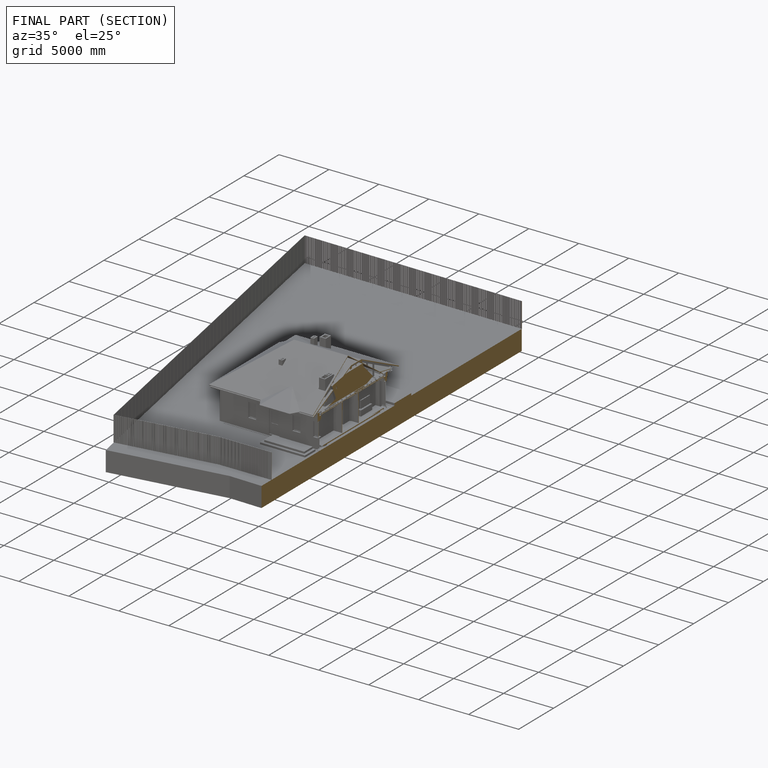
[diagram: finished part — half-section view (interior)]
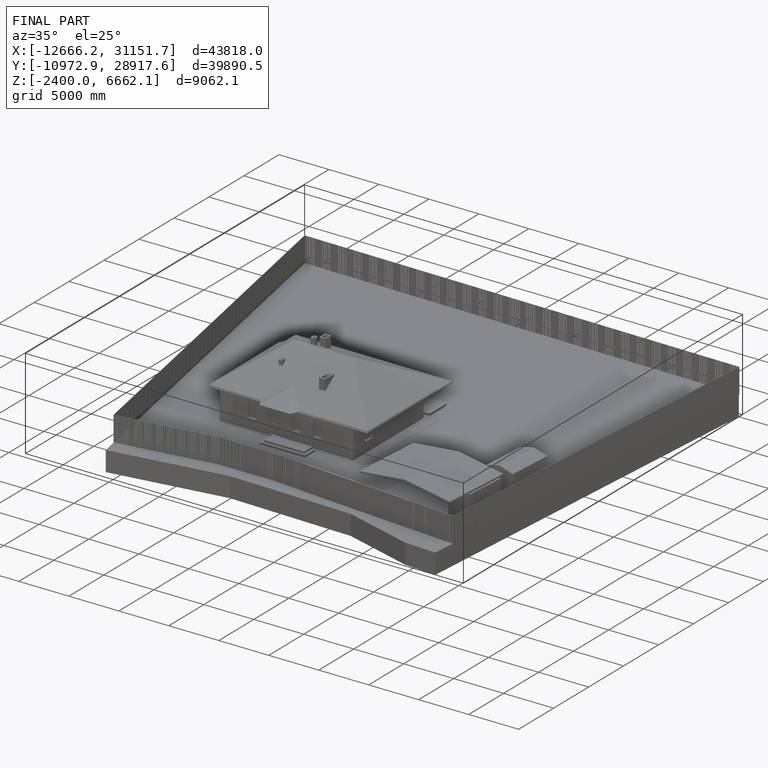
[diagram: finished part — iso view with bounding-box wireframe]
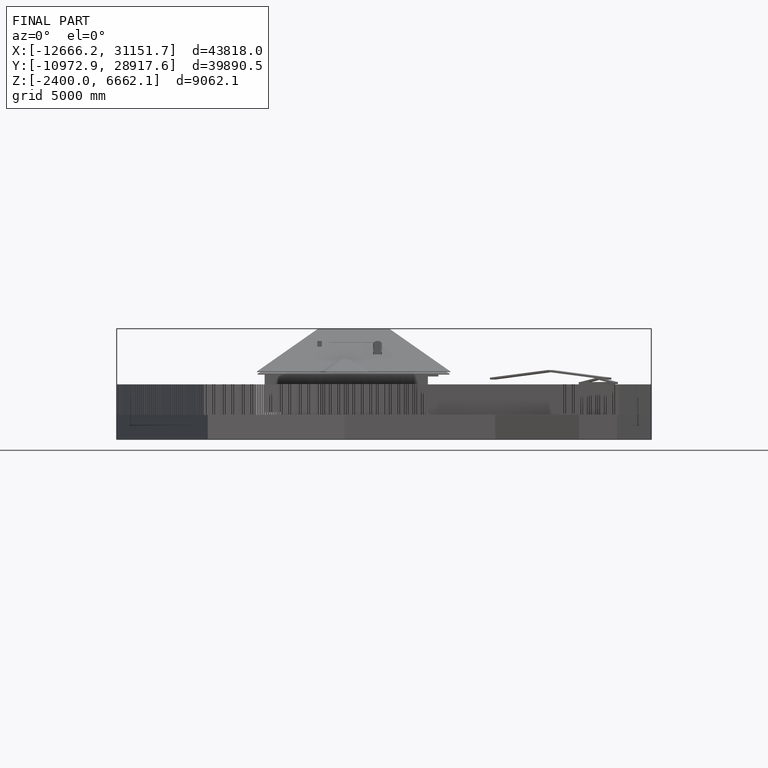
[diagram: finished part — front view with bounding-box wireframe]
